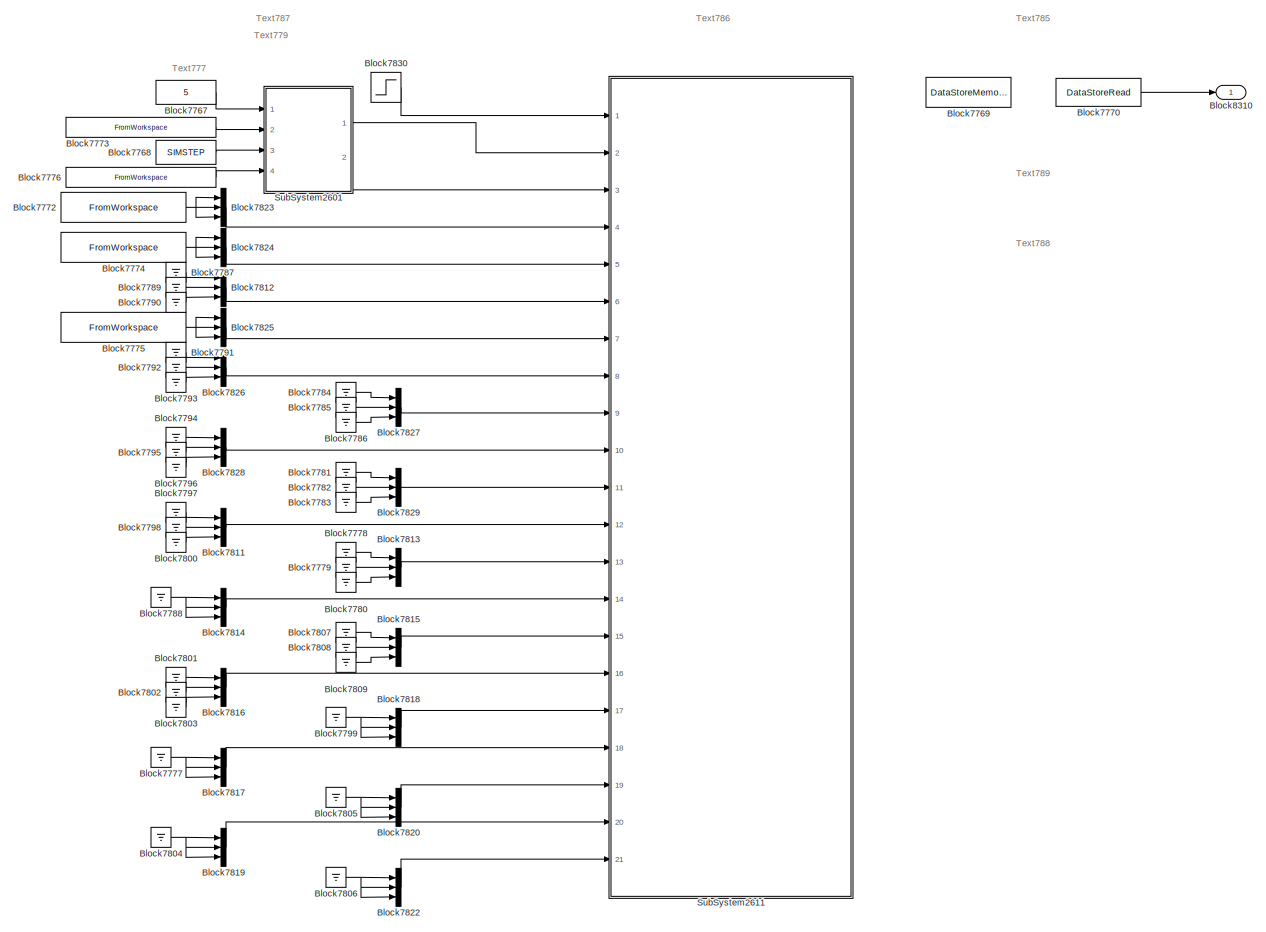
[diagram: root canvas - part 1/1, most of the canvas]
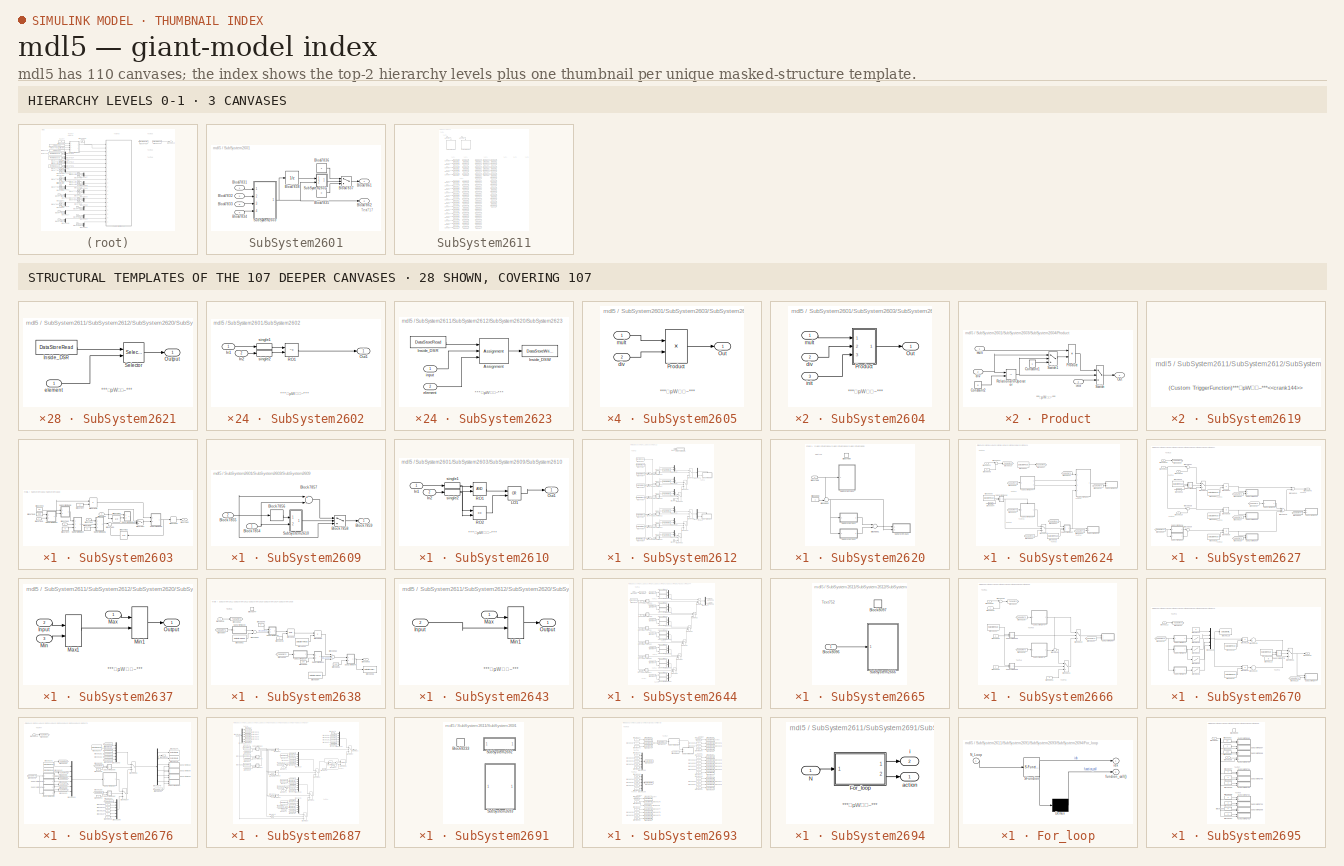
[diagram: thumbnail index - top-2 hierarchy levels (3 canvases) + 28 structural-template representatives of the remaining 107 canvases]
MODEL mdl5
KIND model
BLOCK [Constant] Block7767
  OutDataTypeStr = double
  SID = 22
  SampleTime = -1
  UserData = DataTag1
  UserDataPersistent = on
  Value = 5
BLOCK [Constant] Block7768
  OutDataTypeStr = double
  SID = 23
  SampleTime = -1
  UserData = DataTag2
  UserDataPersistent = on
  Value = SIMSTEP
BLOCK [DataStoreMemory] Block7769
  DataStoreName = DSM304
  InitialValue = [0 0 0]
  OutDataTypeStr = double
  SID = 24
BLOCK [DataStoreRead] Block7770
  DataStoreName = DSM304
  Ports = [0, 1]
  SID = 25
BLOCK [FromWorkspace] Block7772
  Interpolate = off
  OutputAfterFinalValue = Holding final value
  SID = 27
  SampleTime = SIMSTEP
  UserData = DataTag3
  UserDataPersistent = on
  VariableName = [ TIME , SimData14 ]
BLOCK [FromWorkspace] Block7773
  Interpolate = off
  OutputAfterFinalValue = Holding final value
  SID = 28
  SampleTime = SIMSTEP
  UserData = DataTag4
  UserDataPersistent = on
  VariableName = [ TIME , SimData15 ]
BLOCK [FromWorkspace] Block7774
  Interpolate = off
  OutputAfterFinalValue = Holding final value
  SID = 29
  SampleTime = SIMSTEP
  UserData = DataTag5
  UserDataPersistent = on
  VariableName = [ TIME , SimData16 ]
BLOCK [FromWorkspace] Block7775
  Interpolate = off
  OutputAfterFinalValue = Holding final value
  SID = 30
  SampleTime = SIMSTEP
  UserData = DataTag6
  UserDataPersistent = on
  VariableName = [ TIME , SimData17 ]
BLOCK [FromWorkspace] Block7776
  Interpolate = off
  OutputAfterFinalValue = Holding final value
  SID = 31
  SampleTime = SIMSTEP
  UserData = DataTag7
  UserDataPersistent = on
  VariableName = [ TIME , SimData18 ]
BLOCK [Ground] Block7777
  SID = 32
BLOCK [Ground] Block7778
  SID = 33
BLOCK [Ground] Block7779
  SID = 34
BLOCK [Ground] Block7780
  SID = 35
BLOCK [Ground] Block7781
  SID = 36
BLOCK [Ground] Block7782
  SID = 37
BLOCK [Ground] Block7783
  SID = 38
BLOCK [Ground] Block7784
  SID = 39
BLOCK [Ground] Block7785
  SID = 40
BLOCK [Ground] Block7786
  SID = 41
BLOCK [Ground] Block7787
  SID = 42
BLOCK [Ground] Block7788
  SID = 43
BLOCK [Ground] Block7789
  SID = 44
BLOCK [Ground] Block7790
  SID = 45
BLOCK [Ground] Block7791
  SID = 46
BLOCK [Ground] Block7792
  SID = 47
BLOCK [Ground] Block7793
  SID = 48
BLOCK [Ground] Block7794
  SID = 49
BLOCK [Ground] Block7795
  SID = 50
BLOCK [Ground] Block7796
  SID = 51
BLOCK [Ground] Block7797
  SID = 52
BLOCK [Ground] Block7798
  SID = 53
BLOCK [Ground] Block7799
  SID = 54
BLOCK [Ground] Block7800
  SID = 55
BLOCK [Ground] Block7801
  SID = 56
BLOCK [Ground] Block7802
  SID = 57
BLOCK [Ground] Block7803
  SID = 58
BLOCK [Ground] Block7804
  SID = 59
BLOCK [Ground] Block7805
  SID = 60
BLOCK [Ground] Block7806
  SID = 61
BLOCK [Ground] Block7807
  SID = 62
BLOCK [Ground] Block7808
  SID = 63
BLOCK [Ground] Block7809
  SID = 64
BLOCK [Mux] Block7811
  DisplayOption = bar
  Inputs = 3
  Ports = [3, 1]
  SID = 66
BLOCK [Mux] Block7812
  DisplayOption = bar
  Inputs = 3
  Ports = [3, 1]
  SID = 67
BLOCK [Mux] Block7813
  DisplayOption = bar
  Inputs = 3
  Ports = [3, 1]
  SID = 68
BLOCK [Mux] Block7814
  DisplayOption = bar
  Inputs = 3
  Ports = [3, 1]
  SID = 69
BLOCK [Mux] Block7815
  DisplayOption = bar
  Inputs = 3
  Ports = [3, 1]
  SID = 70
BLOCK [Mux] Block7816
  DisplayOption = bar
  Inputs = 3
  Ports = [3, 1]
  SID = 71
BLOCK [Mux] Block7817
  DisplayOption = bar
  Inputs = 3
  Ports = [3, 1]
  SID = 72
BLOCK [Mux] Block7818
  DisplayOption = bar
  Inputs = 3
  Ports = [3, 1]
  SID = 73
BLOCK [Mux] Block7819
  DisplayOption = bar
  Inputs = 3
  Ports = [3, 1]
  SID = 74
BLOCK [Mux] Block7820
  DisplayOption = bar
  Inputs = 3
  Ports = [3, 1]
  SID = 75
BLOCK [Mux] Block7822
  DisplayOption = bar
  Inputs = 3
  Ports = [3, 1]
  SID = 77
BLOCK [Mux] Block7823
  DisplayOption = bar
  Inputs = 3
  Ports = [3, 1]
  SID = 78
BLOCK [Mux] Block7824
  DisplayOption = bar
  Inputs = 3
  Ports = [3, 1]
  SID = 79
BLOCK [Mux] Block7825
  DisplayOption = bar
  Inputs = 3
  Ports = [3, 1]
  SID = 80
BLOCK [Mux] Block7826
  DisplayOption = bar
  Inputs = 3
  Ports = [3, 1]
  SID = 81
BLOCK [Mux] Block7827
  DisplayOption = bar
  Inputs = 3
  Ports = [3, 1]
  SID = 82
BLOCK [Mux] Block7828
  DisplayOption = bar
  Inputs = 3
  Ports = [3, 1]
  SID = 83
BLOCK [Mux] Block7829
  DisplayOption = bar
  Inputs = 3
  Ports = [3, 1]
  SID = 84
BLOCK [Step] Block7830
  SID = 85
  SampleTime = SIMSTEP
  Time = SIMSTEP
BLOCK [Outport] Block8310
  IconDisplay = Port number
  SID = 1122
  SamplingMode = Sample based
  SignalType = real
BLOCK [SubSystem] SubSystem2601
  Ports = [4, 2]
  RequestExecContextInheritance = off
  SID = 86
BLOCK [Inport] SubSystem2601/Block7831
  IconDisplay = Port number
  SID = 87
BLOCK [Inport] SubSystem2601/Block7832
  IconDisplay = Port number
  Port = 2
  SID = 88
BLOCK [Inport] SubSystem2601/Block7833
  IconDisplay = Port number
  Port = 3
  SID = 89
BLOCK [Inport] SubSystem2601/Block7834
  IconDisplay = Port number
  Port = 4
  SID = 90
BLOCK [Constant] SubSystem2601/Block7835
  OutDataTypeStr = double
  SID = 91
  SampleTime = -1
  UserData = DataTag8
  UserDataPersistent = on
  Value = 0
BLOCK [Constant] SubSystem2601/Block7836
  OutDataTypeStr = double
  SID = 92
  SampleTime = -1
  UserData = DataTag9
  UserDataPersistent = on
BLOCK [Switch] SubSystem2601/Block7837
  RndMeth = Zero
  SID = 93
  Threshold = 0.5
BLOCK [UnitDelay] SubSystem2601/Block7838
  SID = 94
  SampleTime = -1
  UserData = DataTag10
  UserDataPersistent = on
BLOCK [Outport] SubSystem2601/Block7861
  IconDisplay = Port number
  SID = 184
BLOCK [Outport] SubSystem2601/Block7862
  IconDisplay = Port number
  Port = 2
  SID = 185
BLOCK [SubSystem] SubSystem2601/SubSystem2602
  Ports = [2, 1]
  RequestExecContextInheritance = off
  SID = 95
BLOCK [Inport] SubSystem2601/SubSystem2602/In1
  IconDisplay = Port number
  SID = 96
  SamplingMode = Sample based
  SignalType = real
BLOCK [Inport] SubSystem2601/SubSystem2602/In2
  IconDisplay = Port number
  Port = 2
  SID = 97
  SamplingMode = Sample based
  SignalType = real
BLOCK [Outport] SubSystem2601/SubSystem2602/Out1
  IconDisplay = Port number
  SID = 101
  SamplingMode = Sample based
  SignalType = real
BLOCK [RelationalOperator] SubSystem2601/SubSystem2602/RO1
  Operator = ~=
  Ports = [2, 1]
  SID = 98
BLOCK [DataTypeConversion] SubSystem2601/SubSystem2602/single1
  OutDataTypeStr = single
  SID = 99
BLOCK [DataTypeConversion] SubSystem2601/SubSystem2602/single2
  OutDataTypeStr = single
  SID = 100
BLOCK [SubSystem] SubSystem2601/SubSystem2603
  Ports = [4, 1]
  RequestExecContextInheritance = off
  SID = 102
BLOCK [Inport] SubSystem2601/SubSystem2603/Block7839
  IconDisplay = Port number
  SID = 103
BLOCK [Inport] SubSystem2601/SubSystem2603/Block7840
  IconDisplay = Port number
  Port = 2
  SID = 104
  SamplingMode = Sample based
  SignalType = real
BLOCK [Inport] SubSystem2601/SubSystem2603/Block7841
  IconDisplay = Port number
  Port = 3
  SID = 105
  SamplingMode = Sample based
  SignalType = real
BLOCK [Inport] SubSystem2601/SubSystem2603/Block7842
  IconDisplay = Port number
  Port = 4
  SID = 106
  SamplingMode = Sample based
  SignalType = real
BLOCK [Constant] SubSystem2601/SubSystem2603/Block7843
  OutDataTypeStr = double
  SID = 107
  SampleTime = -1
  UserData = DataTag11
  UserDataPersistent = on
  Value = 60
BLOCK [Constant] SubSystem2601/SubSystem2603/Block7844
  OutDataTypeStr = double
  SID = 108
  SampleTime = -1
  UserData = DataTag12
  UserDataPersistent = on
  Value = 0
BLOCK [Constant] SubSystem2601/SubSystem2603/Block7845
  OutDataTypeStr = double
  SID = 109
  SampleTime = -1
  UserData = DataTag13
  UserDataPersistent = on
  Value = 360
BLOCK [Constant] SubSystem2601/SubSystem2603/Block7846
  OutDataTypeStr = double
  SID = 110
  SampleTime = -1
  UserData = DataTag14
  UserDataPersistent = on
  Value = 0
BLOCK [Constant] SubSystem2601/SubSystem2603/Block7847
  OutDataTypeStr = double
  SID = 111
  SampleTime = -1
  UserData = DataTag15
  UserDataPersistent = on
  Value = 2
BLOCK [Product] SubSystem2601/SubSystem2603/Block7848
  Inputs = **
  Ports = [2, 1]
  SID = 112
BLOCK [Rounding] SubSystem2601/SubSystem2603/Block7849
  Operator = round
  SID = 113
BLOCK [Sum] SubSystem2601/SubSystem2603/Block7850
  IconShape = round
  Inputs = |++
  OutDataTypeStr = double
  Ports = [2, 1]
  RndMeth = Zero
  SID = 114
BLOCK [Switch] SubSystem2601/SubSystem2603/Block7851
  RndMeth = Zero
  SID = 115
  Threshold = 0.5
BLOCK [UnitDelay] SubSystem2601/SubSystem2603/Block7852
  SID = 116
  SampleTime = -1
  UserData = DataTag16
  UserDataPersistent = on
BLOCK [UnitDelay] SubSystem2601/SubSystem2603/Block7853
  SID = 117
  SampleTime = -1
  UserData = DataTag17
  UserDataPersistent = on
BLOCK [Outport] SubSystem2601/SubSystem2603/Block7860
  IconDisplay = Port number
  SID = 183
  SamplingMode = Sample based
  SignalType = real
BLOCK [SubSystem] SubSystem2601/SubSystem2603/SubSystem2604
  OpenFcn = warndlg('ÏXÖ~!');
  Ports = [3, 1]
  RequestExecContextInheritance = off
  SID = 118
  TreatAsAtomicUnit = on
  UserData = DataTag18
  UserDataPersistent = on
BLOCK [Outport] SubSystem2601/SubSystem2603/SubSystem2604/Out
  IconDisplay = Port number
  SID = 133
BLOCK [SubSystem] SubSystem2601/SubSystem2603/SubSystem2604/Product
  Ports = [3, 1]
  RTWSystemCode = Inline
  RequestExecContextInheritance = off
  SID = 122
  TreatAsAtomicUnit = on
BLOCK [Constant] SubSystem2601/SubSystem2603/SubSystem2604/Product/Constant1
  OutDataTypeStr = Inherit: Inherit via back propagation
  SID = 126
BLOCK [Constant] SubSystem2601/SubSystem2603/SubSystem2604/Product/Constant2
  OutDataTypeStr = Inherit: Inherit via back propagation
  SID = 127
  Value = 0
BLOCK [Outport] SubSystem2601/SubSystem2603/SubSystem2604/Product/Out
  IconDisplay = Port number
  SID = 132
BLOCK [Product] SubSystem2601/SubSystem2603/SubSystem2604/Product/Product
  Inputs = */
  Ports = [2, 1]
  SID = 128
BLOCK [RelationalOperator] SubSystem2601/SubSystem2603/SubSystem2604/Product/Relational\nOperator
  Operator = ~=
  Ports = [2, 1]
  SID = 129
BLOCK [Switch] SubSystem2601/SubSystem2603/SubSystem2604/Product/Switch
  SID = 130
  Threshold = 0.5
BLOCK [Switch] SubSystem2601/SubSystem2603/SubSystem2604/Product/Switch1
  SID = 131
  Threshold = 0.5
BLOCK [Inport] SubSystem2601/SubSystem2603/SubSystem2604/Product/div
  IconDisplay = Port number
  Port = 2
  SID = 124
BLOCK [Inport] SubSystem2601/SubSystem2603/SubSystem2604/Product/init
  IconDisplay = Port number
  Port = 3
  SID = 125
BLOCK [Inport] SubSystem2601/SubSystem2603/SubSystem2604/Product/mult
  IconDisplay = Port number
  SID = 123
BLOCK [Inport] SubSystem2601/SubSystem2603/SubSystem2604/div
  IconDisplay = Port number
  Port = 2
  SID = 120
BLOCK [Inport] SubSystem2601/SubSystem2603/SubSystem2604/init
  IconDisplay = Port number
  Port = 3
  SID = 121
BLOCK [Inport] SubSystem2601/SubSystem2603/SubSystem2604/mult
  IconDisplay = Port number
  SID = 119
BLOCK [SubSystem] SubSystem2601/SubSystem2603/SubSystem2605
  OpenFcn = warndlg('ÏXÖ~!');
  Ports = [2, 1]
  RequestExecContextInheritance = off
  SID = 134
  TreatAsAtomicUnit = on
  UserData = DataTag19
  UserDataPersistent = on
BLOCK [Outport] SubSystem2601/SubSystem2603/SubSystem2605/Out
  IconDisplay = Port number
  SID = 138
BLOCK [Product] SubSystem2601/SubSystem2603/SubSystem2605/Product
  Inputs = */
  Ports = [2, 1]
  SID = 137
BLOCK [Inport] SubSystem2601/SubSystem2603/SubSystem2605/div
  IconDisplay = Port number
  Port = 2
  SID = 136
BLOCK [Inport] SubSystem2601/SubSystem2603/SubSystem2605/mult
  IconDisplay = Port number
  SID = 135
BLOCK [SubSystem] SubSystem2601/SubSystem2603/SubSystem2606
  OpenFcn = warndlg('ÏXÖ~!');
  Ports = [3, 1]
  RequestExecContextInheritance = off
  SID = 139
  TreatAsAtomicUnit = on
  UserData = DataTag20
  UserDataPersistent = on
BLOCK [Outport] SubSystem2601/SubSystem2603/SubSystem2606/Out
  IconDisplay = Port number
  SID = 154
BLOCK [SubSystem] SubSystem2601/SubSystem2603/SubSystem2606/Product
  Ports = [3, 1]
  RTWSystemCode = Inline
  RequestExecContextInheritance = off
  SID = 143
  TreatAsAtomicUnit = on
BLOCK [Constant] SubSystem2601/SubSystem2603/SubSystem2606/Product/Constant1
  OutDataTypeStr = Inherit: Inherit via back propagation
  SID = 147
BLOCK [Constant] SubSystem2601/SubSystem2603/SubSystem2606/Product/Constant2
  OutDataTypeStr = Inherit: Inherit via back propagation
  SID = 148
  Value = 0
BLOCK [Outport] SubSystem2601/SubSystem2603/SubSystem2606/Product/Out
  IconDisplay = Port number
  SID = 153
BLOCK [Product] SubSystem2601/SubSystem2603/SubSystem2606/Product/Product
  Inputs = */
  Ports = [2, 1]
  SID = 149
BLOCK [RelationalOperator] SubSystem2601/SubSystem2603/SubSystem2606/Product/Relational\nOperator
  Operator = ~=
  Ports = [2, 1]
  SID = 150
BLOCK [Switch] SubSystem2601/SubSystem2603/SubSystem2606/Product/Switch
  SID = 151
  Threshold = 0.5
BLOCK [Switch] SubSystem2601/SubSystem2603/SubSystem2606/Product/Switch1
  SID = 152
  Threshold = 0.5
BLOCK [Inport] SubSystem2601/SubSystem2603/SubSystem2606/Product/div
  IconDisplay = Port number
  Port = 2
  SID = 145
BLOCK [Inport] SubSystem2601/SubSystem2603/SubSystem2606/Product/init
  IconDisplay = Port number
  Port = 3
  SID = 146
BLOCK [Inport] SubSystem2601/SubSystem2603/SubSystem2606/Product/mult
  IconDisplay = Port number
  SID = 144
BLOCK [Inport] SubSystem2601/SubSystem2603/SubSystem2606/div
  IconDisplay = Port number
  Port = 2
  SID = 141
BLOCK [Inport] SubSystem2601/SubSystem2603/SubSystem2606/init
  IconDisplay = Port number
  Port = 3
  SID = 142
BLOCK [Inport] SubSystem2601/SubSystem2603/SubSystem2606/mult
  IconDisplay = Port number
  SID = 140
BLOCK [SubSystem] SubSystem2601/SubSystem2603/SubSystem2607
  OpenFcn = warndlg('ÏXÖ~!');
  Ports = [2, 1]
  RequestExecContextInheritance = off
  SID = 155
  TreatAsAtomicUnit = on
  UserData = DataTag21
  UserDataPersistent = on
BLOCK [Outport] SubSystem2601/SubSystem2603/SubSystem2607/Out
  IconDisplay = Port number
  SID = 159
BLOCK [Product] SubSystem2601/SubSystem2603/SubSystem2607/Product
  Inputs = */
  Ports = [2, 1]
  SID = 158
BLOCK [Inport] SubSystem2601/SubSystem2603/SubSystem2607/div
  IconDisplay = Port number
  Port = 2
  SID = 157
BLOCK [Inport] SubSystem2601/SubSystem2603/SubSystem2607/mult
  IconDisplay = Port number
  SID = 156
BLOCK [SubSystem] SubSystem2601/SubSystem2603/SubSystem2608
  Ports = [2, 1]
  RequestExecContextInheritance = off
  SID = 160
BLOCK [Inport] SubSystem2601/SubSystem2603/SubSystem2608/In1
  IconDisplay = Port number
  SID = 161
  SamplingMode = Sample based
  SignalType = real
BLOCK [Inport] SubSystem2601/SubSystem2603/SubSystem2608/In2
  IconDisplay = Port number
  Port = 2
  SID = 162
  SamplingMode = Sample based
  SignalType = real
BLOCK [Outport] SubSystem2601/SubSystem2603/SubSystem2608/Out1
  IconDisplay = Port number
  SID = 166
  SamplingMode = Sample based
  SignalType = real
BLOCK [RelationalOperator] SubSystem2601/SubSystem2603/SubSystem2608/RO1
  Operator = ~=
  Ports = [2, 1]
  SID = 163
BLOCK [DataTypeConversion] SubSystem2601/SubSystem2603/SubSystem2608/single1
  OutDataTypeStr = single
  SID = 164
BLOCK [DataTypeConversion] SubSystem2601/SubSystem2603/SubSystem2608/single2
  OutDataTypeStr = single
  SID = 165
BLOCK [SubSystem] SubSystem2601/SubSystem2603/SubSystem2609
  Ports = [2, 1]
  RTWSystemCode = Inline
  RequestExecContextInheritance = off
  SID = 167
BLOCK [Inport] SubSystem2601/SubSystem2603/SubSystem2609/Block7854
  IconDisplay = Port number
  SID = 168
  SamplingMode = Sample based
  SignalType = real
BLOCK [Inport] SubSystem2601/SubSystem2603/SubSystem2609/Block7855
  IconDisplay = Port number
  Port = 2
  SID = 169
  SamplingMode = Sample based
  SignalType = real
BLOCK [Rounding] SubSystem2601/SubSystem2603/SubSystem2609/Block7856
  Operator = round
  SID = 170
BLOCK [Sum] SubSystem2601/SubSystem2603/SubSystem2609/Block7857
  Inputs = +-
  OutDataTypeStr = double
  Ports = [2, 1]
  RndMeth = Zero
  SID = 171
BLOCK [Switch] SubSystem2601/SubSystem2603/SubSystem2609/Block7858
  RndMeth = Zero
  SID = 172
  Threshold = 0.5
BLOCK [Outport] SubSystem2601/SubSystem2603/SubSystem2609/Block7859
  IconDisplay = Port number
  SID = 182
  SamplingMode = Sample based
  SignalType = real
BLOCK [SubSystem] SubSystem2601/SubSystem2603/SubSystem2609/SubSystem2610
  Ports = [2, 1]
  RequestExecContextInheritance = off
  SID = 173
BLOCK [Inport] SubSystem2601/SubSystem2603/SubSystem2609/SubSystem2610/In1
  IconDisplay = Port number
  SID = 174
  SamplingMode = Sample based
  SignalType = real
BLOCK [Inport] SubSystem2601/SubSystem2603/SubSystem2609/SubSystem2610/In2
  IconDisplay = Port number
  Port = 2
  SID = 175
  SamplingMode = Sample based
  SignalType = real
BLOCK [Logic] SubSystem2601/SubSystem2603/SubSystem2609/SubSystem2610/LO1
  Operator = OR
  Ports = [2, 1]
  SID = 176
BLOCK [Outport] SubSystem2601/SubSystem2603/SubSystem2609/SubSystem2610/Out1
  IconDisplay = Port number
  SID = 181
  SamplingMode = Sample based
  SignalType = real
BLOCK [RelationalOperator] SubSystem2601/SubSystem2603/SubSystem2609/SubSystem2610/RO1
  Ports = [2, 1]
  SID = 177
BLOCK [RelationalOperator] SubSystem2601/SubSystem2603/SubSystem2609/SubSystem2610/RO2
  Operator = ==
  Ports = [2, 1]
  SID = 178
BLOCK [DataTypeConversion] SubSystem2601/SubSystem2603/SubSystem2609/SubSystem2610/single1
  OutDataTypeStr = single
  SID = 179
BLOCK [DataTypeConversion] SubSystem2601/SubSystem2603/SubSystem2609/SubSystem2610/single2
  OutDataTypeStr = single
  SID = 180
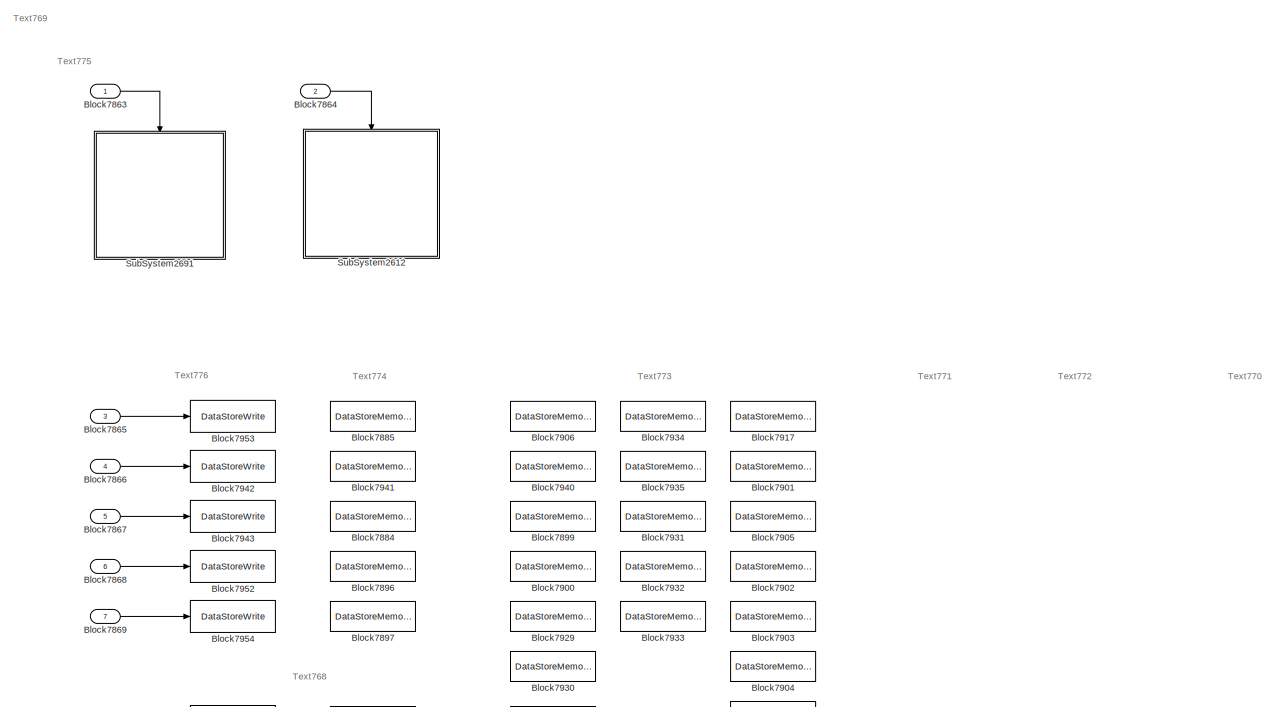
[diagram: SubSystem2611 - part 1/2, full width, top band]
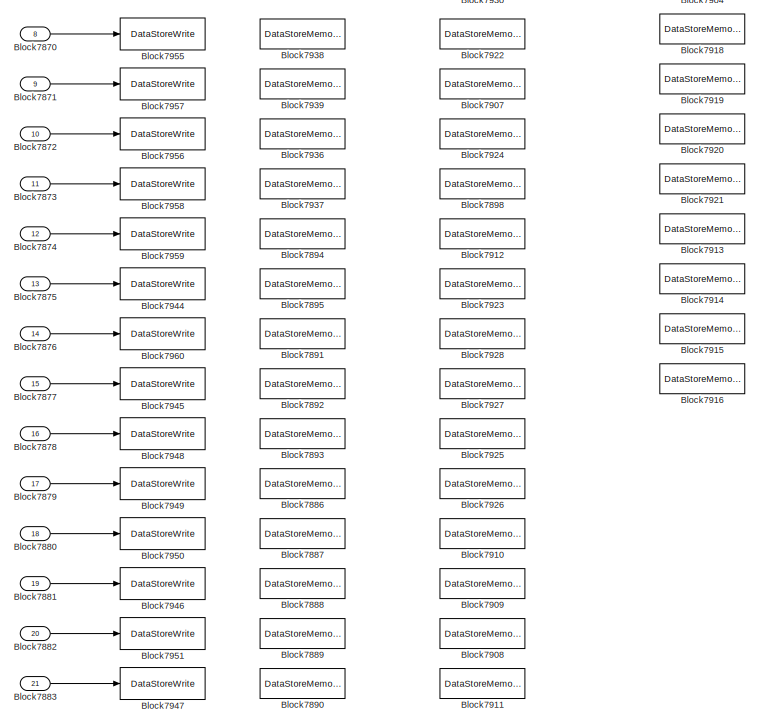
[diagram: SubSystem2611 - part 2/2, bottom center region]
BLOCK [SubSystem] SubSystem2611
  Ports = [21]
  RequestExecContextInheritance = off
  SID = 186
BLOCK [Inport] SubSystem2611/Block7863
  IconDisplay = Port number
  SID = 187
  SamplingMode = Sample based
  SignalType = real
BLOCK [Inport] SubSystem2611/Block7864
  IconDisplay = Port number
  Port = 2
  SID = 188
  SamplingMode = Sample based
  SignalType = real
BLOCK [Inport] SubSystem2611/Block7865
  IconDisplay = Port number
  Port = 3
  SID = 189
  SamplingMode = Sample based
  SignalType = real
BLOCK [Inport] SubSystem2611/Block7866
  IconDisplay = Port number
  Port = 4
  SID = 190
  SamplingMode = Sample based
  SignalType = real
BLOCK [Inport] SubSystem2611/Block7867
  IconDisplay = Port number
  Port = 5
  SID = 191
  SamplingMode = Sample based
  SignalType = real
BLOCK [Inport] SubSystem2611/Block7868
  IconDisplay = Port number
  Port = 6
  SID = 192
  SamplingMode = Sample based
  SignalType = real
BLOCK [Inport] SubSystem2611/Block7869
  IconDisplay = Port number
  Port = 7
  SID = 193
  SamplingMode = Sample based
  SignalType = real
BLOCK [Inport] SubSystem2611/Block7870
  IconDisplay = Port number
  Port = 8
  SID = 194
  SamplingMode = Sample based
  SignalType = real
BLOCK [Inport] SubSystem2611/Block7871
  IconDisplay = Port number
  Port = 9
  SID = 195
  SamplingMode = Sample based
  SignalType = real
BLOCK [Inport] SubSystem2611/Block7872
  IconDisplay = Port number
  Port = 10
  SID = 196
  SamplingMode = Sample based
  SignalType = real
BLOCK [Inport] SubSystem2611/Block7873
  IconDisplay = Port number
  Port = 11
  SID = 197
  SamplingMode = Sample based
  SignalType = real
BLOCK [Inport] SubSystem2611/Block7874
  IconDisplay = Port number
  Port = 12
  SID = 198
  SamplingMode = Sample based
  SignalType = real
BLOCK [Inport] SubSystem2611/Block7875
  IconDisplay = Port number
  Port = 13
  SID = 199
  SamplingMode = Sample based
  SignalType = real
BLOCK [Inport] SubSystem2611/Block7876
  IconDisplay = Port number
  Port = 14
  SID = 200
  SamplingMode = Sample based
  SignalType = real
BLOCK [Inport] SubSystem2611/Block7877
  IconDisplay = Port number
  Port = 15
  SID = 201
  SamplingMode = Sample based
  SignalType = real
BLOCK [Inport] SubSystem2611/Block7878
  IconDisplay = Port number
  Port = 16
  SID = 202
  SamplingMode = Sample based
  SignalType = real
BLOCK [Inport] SubSystem2611/Block7879
  IconDisplay = Port number
  Port = 17
  SID = 203
  SamplingMode = Sample based
  SignalType = real
BLOCK [Inport] SubSystem2611/Block7880
  IconDisplay = Port number
  Port = 18
  SID = 204
  SamplingMode = Sample based
  SignalType = real
BLOCK [Inport] SubSystem2611/Block7881
  IconDisplay = Port number
  Port = 19
  SID = 205
  SamplingMode = Sample based
  SignalType = real
BLOCK [Inport] SubSystem2611/Block7882
  IconDisplay = Port number
  Port = 20
  SID = 206
  SamplingMode = Sample based
  SignalType = real
BLOCK [Inport] SubSystem2611/Block7883
  IconDisplay = Port number
  Port = 21
  SID = 207
  SamplingMode = Sample based
  SignalType = real
BLOCK [DataStoreMemory] SubSystem2611/Block7884
  DataStoreName = DSM36
  InitialValue = [0 0 0]
  OutDataTypeStr = double
  SID = 208
BLOCK [DataStoreMemory] SubSystem2611/Block7885
  DataStoreName = DSM43
  OutDataTypeStr = double
  SID = 209
BLOCK [DataStoreMemory] SubSystem2611/Block7886
  DataStoreName = DSM102
  InitialValue = [0 0 0]
  OutDataTypeStr = double
  SID = 210
BLOCK [DataStoreMemory] SubSystem2611/Block7887
  DataStoreName = DSM104
  InitialValue = [0 0 0]
  OutDataTypeStr = double
  SID = 211
BLOCK [DataStoreMemory] SubSystem2611/Block7888
  DataStoreName = DSM106
  InitialValue = [0 0 0]
  OutDataTypeStr = double
  SID = 212
BLOCK [DataStoreMemory] SubSystem2611/Block7889
  DataStoreName = DSM108
  InitialValue = [0 0 0]
  OutDataTypeStr = double
  SID = 213
BLOCK [DataStoreMemory] SubSystem2611/Block7890
  DataStoreName = DSM110
  InitialValue = [0 0 0]
  OutDataTypeStr = double
  SID = 214
BLOCK [DataStoreMemory] SubSystem2611/Block7891
  DataStoreName = DSM112
  InitialValue = [0 0 0]
  OutDataTypeStr = double
  SID = 215
BLOCK [DataStoreMemory] SubSystem2611/Block7892
  DataStoreName = DSM115
  InitialValue = [0 0 0]
  OutDataTypeStr = double
  SID = 216
BLOCK [DataStoreMemory] SubSystem2611/Block7893
  DataStoreName = DSM116
  InitialValue = [0 0 0]
  OutDataTypeStr = double
  SID = 217
BLOCK [DataStoreMemory] SubSystem2611/Block7894
  DataStoreName = DSM119
  InitialValue = [0 0 0]
  OutDataTypeStr = double
  SID = 218
BLOCK [DataStoreMemory] SubSystem2611/Block7895
  DataStoreName = DSM120
  InitialValue = [0 0 0]
  OutDataTypeStr = double
  SID = 219
BLOCK [DataStoreMemory] SubSystem2611/Block7896
  DataStoreName = DSM147
  InitialValue = [0 0 0]
  OutDataTypeStr = double
  SID = 220
BLOCK [DataStoreMemory] SubSystem2611/Block7897
  DataStoreName = DSM318
  InitialValue = [0 0 0]
  OutDataTypeStr = double
  SID = 221
BLOCK [DataStoreMemory] SubSystem2611/Block7898
  DataStoreName = DSM319
  InitialValue = [0 0 0]
  OutDataTypeStr = double
  SID = 222
BLOCK [DataStoreMemory] SubSystem2611/Block7899
  DataStoreName = DSM320
  InitialValue = [0 0 0]
  OutDataTypeStr = double
  SID = 223
BLOCK [DataStoreMemory] SubSystem2611/Block7900
  DataStoreName = DSM321
  InitialValue = [0 0 0]
  OutDataTypeStr = double
  SID = 224
BLOCK [DataStoreMemory] SubSystem2611/Block7901
  DataStoreName = DSM322
  OutDataTypeStr = double
  SID = 225
BLOCK [DataStoreMemory] SubSystem2611/Block7902
  DataStoreName = DSM323
  OutDataTypeStr = double
  SID = 226
BLOCK [DataStoreMemory] SubSystem2611/Block7903
  DataStoreName = DSM324
  OutDataTypeStr = double
  SID = 227
BLOCK [DataStoreMemory] SubSystem2611/Block7904
  DataStoreName = DSM325
  OutDataTypeStr = double
  SID = 228
BLOCK [DataStoreMemory] SubSystem2611/Block7905
  DataStoreName = DSM326
  OutDataTypeStr = double
  SID = 229
BLOCK [DataStoreMemory] SubSystem2611/Block7906
  DataStoreName = DSM327
  OutDataTypeStr = double
  SID = 230
BLOCK [DataStoreMemory] SubSystem2611/Block7907
  DataStoreName = DSM328
  OutDataTypeStr = double
  SID = 231
BLOCK [DataStoreMemory] SubSystem2611/Block7908
  DataStoreName = DSM329
  OutDataTypeStr = double
  SID = 232
BLOCK [DataStoreMemory] SubSystem2611/Block7909
  DataStoreName = DSM330
  OutDataTypeStr = double
  SID = 233
BLOCK [DataStoreMemory] SubSystem2611/Block7910
  DataStoreName = DSM331
  OutDataTypeStr = double
  SID = 234
BLOCK [DataStoreMemory] SubSystem2611/Block7911
  DataStoreName = DSM332
  OutDataTypeStr = double
  SID = 235
BLOCK [DataStoreMemory] SubSystem2611/Block7912
  DataStoreName = DSM333
  InitialValue = [0 0 0]
  OutDataTypeStr = double
  SID = 236
BLOCK [DataStoreMemory] SubSystem2611/Block7913
  DataStoreName = DSM334
  InitialValue = [0 0 0]
  OutDataTypeStr = double
  SID = 237
BLOCK [DataStoreMemory] SubSystem2611/Block7914
  DataStoreName = DSM335
  InitialValue = [0 0 0]
  OutDataTypeStr = double
  SID = 238
BLOCK [DataStoreMemory] SubSystem2611/Block7915
  DataStoreName = DSM336
  InitialValue = [0 0 0]
  OutDataTypeStr = double
  SID = 239
BLOCK [DataStoreMemory] SubSystem2611/Block7916
  DataStoreName = DSM337
  InitialValue = [0 0 0]
  OutDataTypeStr = double
  SID = 240
BLOCK [DataStoreMemory] SubSystem2611/Block7917
  DataStoreName = DSM338
  OutDataTypeStr = double
  SID = 241
BLOCK [DataStoreMemory] SubSystem2611/Block7918
  DataStoreName = DSM339
  OutDataTypeStr = double
  SID = 242
BLOCK [DataStoreMemory] SubSystem2611/Block7919
  DataStoreName = DSM340
  OutDataTypeStr = double
  SID = 243
BLOCK [DataStoreMemory] SubSystem2611/Block7920
  DataStoreName = DSM341
  OutDataTypeStr = double
  SID = 244
BLOCK [DataStoreMemory] SubSystem2611/Block7921
  DataStoreName = DSM342
  OutDataTypeStr = double
  SID = 245
BLOCK [DataStoreMemory] SubSystem2611/Block7922
  DataStoreName = DSM343
  InitialValue = [ 0 0 0 0 0]
  OutDataTypeStr = double
  SID = 246
BLOCK [DataStoreMemory] SubSystem2611/Block7923
  DataStoreName = DSM344
  OutDataTypeStr = double
  SID = 247
BLOCK [DataStoreMemory] SubSystem2611/Block7924
  DataStoreName = DSM345
  OutDataTypeStr = double
  SID = 248
BLOCK [DataStoreMemory] SubSystem2611/Block7925
  DataStoreName = DSM346
  InitialValue = [0 0 0]
  OutDataTypeStr = double
  SID = 249
BLOCK [DataStoreMemory] SubSystem2611/Block7926
  DataStoreName = DSM347
  InitialValue = [0 0 0]
  OutDataTypeStr = double
  SID = 250
BLOCK [DataStoreMemory] SubSystem2611/Block7927
  DataStoreName = DSM348
  InitialValue = [0 0 0]
  OutDataTypeStr = double
  SID = 251
BLOCK [DataStoreMemory] SubSystem2611/Block7928
  DataStoreName = DSM349
  InitialValue = [0 0 0]
  OutDataTypeStr = double
  SID = 252
BLOCK [DataStoreMemory] SubSystem2611/Block7929
  DataStoreName = DSM350
  InitialValue = [ 0 0 0 0 0]
  OutDataTypeStr = double
  SID = 253
BLOCK [DataStoreMemory] SubSystem2611/Block7930
  DataStoreName = DSM351
  InitialValue = [ 0 0 0 0 0]
  OutDataTypeStr = double
  SID = 254
BLOCK [DataStoreMemory] SubSystem2611/Block7931
  DataStoreName = DSM352
  OutDataTypeStr = double
  SID = 255
BLOCK [DataStoreMemory] SubSystem2611/Block7932
  DataStoreName = DSM353
  OutDataTypeStr = double
  SID = 256
BLOCK [DataStoreMemory] SubSystem2611/Block7933
  DataStoreName = DSM354
  OutDataTypeStr = double
  SID = 257
BLOCK [DataStoreMemory] SubSystem2611/Block7934
  DataStoreName = DSM355
  OutDataTypeStr = double
  SID = 258
BLOCK [DataStoreMemory] SubSystem2611/Block7935
  DataStoreName = DSM356
  OutDataTypeStr = double
  SID = 259
BLOCK [DataStoreMemory] SubSystem2611/Block7936
  DataStoreName = DSM122
  InitialValue = [0 0 0]
  OutDataTypeStr = double
  SID = 260
BLOCK [DataStoreMemory] SubSystem2611/Block7937
  DataStoreName = DSM123
  InitialValue = [0 0 0]
  OutDataTypeStr = double
  SID = 261
BLOCK [DataStoreMemory] SubSystem2611/Block7938
  DataStoreName = DSM125
  InitialValue = [0 0 0]
  OutDataTypeStr = double
  SID = 262
BLOCK [DataStoreMemory] SubSystem2611/Block7939
  DataStoreName = DSM126
  InitialValue = [0 0 0]
  OutDataTypeStr = double
  SID = 263
BLOCK [DataStoreMemory] SubSystem2611/Block7940
  DataStoreName = DSM361
  OutDataTypeStr = double
  SID = 264
BLOCK [DataStoreMemory] SubSystem2611/Block7941
  DataStoreName = DSM97
  InitialValue = [0 0 0]
  OutDataTypeStr = double
  SID = 265
BLOCK [DataStoreWrite] SubSystem2611/Block7942
  DataStoreName = DSM97
  Ports = [1]
  Priority = 1
  SID = 266
BLOCK [DataStoreWrite] SubSystem2611/Block7943
  DataStoreName = DSM36
  Ports = [1]
  Priority = 1
  SID = 267
BLOCK [DataStoreWrite] SubSystem2611/Block7944
  DataStoreName = DSM120
  Ports = [1]
  Priority = 1
  SID = 268
BLOCK [DataStoreWrite] SubSystem2611/Block7945
  DataStoreName = DSM115
  Ports = [1]
  Priority = 1
  SID = 269
BLOCK [DataStoreWrite] SubSystem2611/Block7946
  DataStoreName = DSM106
  Ports = [1]
  Priority = 1
  SID = 270
BLOCK [DataStoreWrite] SubSystem2611/Block7947
  DataStoreName = DSM110
  Ports = [1]
  Priority = 1
  SID = 271
BLOCK [DataStoreWrite] SubSystem2611/Block7948
  DataStoreName = DSM116
  Ports = [1]
  Priority = 1
  SID = 272
BLOCK [DataStoreWrite] SubSystem2611/Block7949
  DataStoreName = DSM102
  Ports = [1]
  Priority = 1
  SID = 273
BLOCK [DataStoreWrite] SubSystem2611/Block7950
  DataStoreName = DSM104
  Ports = [1]
  Priority = 1
  SID = 274
BLOCK [DataStoreWrite] SubSystem2611/Block7951
  DataStoreName = DSM108
  Ports = [1]
  Priority = 1
  SID = 275
BLOCK [DataStoreWrite] SubSystem2611/Block7952
  DataStoreName = DSM147
  Ports = [1]
  Priority = 1
  SID = 276
BLOCK [DataStoreWrite] SubSystem2611/Block7953
  DataStoreName = DSM43
  Ports = [1]
  Priority = 1
  SID = 277
BLOCK [DataStoreWrite] SubSystem2611/Block7954
  DataStoreName = DSM318
  Ports = [1]
  Priority = 1
  SID = 278
BLOCK [DataStoreWrite] SubSystem2611/Block7955
  DataStoreName = DSM125
  Ports = [1]
  Priority = 1
  SID = 279
BLOCK [DataStoreWrite] SubSystem2611/Block7956
  DataStoreName = DSM122
  Ports = [1]
  Priority = 1
  SID = 280
BLOCK [DataStoreWrite] SubSystem2611/Block7957
  DataStoreName = DSM126
  Ports = [1]
  Priority = 1
  SID = 281
BLOCK [DataStoreWrite] SubSystem2611/Block7958
  DataStoreName = DSM123
  Ports = [1]
  Priority = 1
  SID = 282
BLOCK [DataStoreWrite] SubSystem2611/Block7959
  DataStoreName = DSM119
  Ports = [1]
  Priority = 1
  SID = 283
BLOCK [DataStoreWrite] SubSystem2611/Block7960
  DataStoreName = DSM112
  Ports = [1]
  Priority = 1
  SID = 284
BLOCK [SubSystem] SubSystem2611/SubSystem2612
  AttributesFormatString = Attribute2068
  Ports = [0, 0, 0, 1]
  Priority = 3
  RTWFcnNameOpts = Use subsystem name
  RTWSystemCode = Nonreusable function
  RequestExecContextInheritance = off
  SID = 285
  TreatAsAtomicUnit = on
BLOCK [TriggerPort] SubSystem2611/SubSystem2612/Block7961
  Ports = []
  SID = 286
  StatesWhenEnabling = held
BLOCK [Constant] SubSystem2611/SubSystem2612/Block7962
  OutDataTypeStr = double
  SID = 287
  SampleTime = -1
  UserData = DataTag22
  UserDataPersistent = on
  Value = Parameter144
BLOCK [Constant] SubSystem2611/SubSystem2612/Block7963
  OutDataTypeStr = double
  SID = 288
  SampleTime = -1
  UserData = DataTag23
  UserDataPersistent = on
  Value = Parameter53
BLOCK [Constant] SubSystem2611/SubSystem2612/Block7964
  OutDataTypeStr = double
  SID = 289
  SampleTime = -1
  UserData = DataTag24
  UserDataPersistent = on
  Value = Parameter71
BLOCK [Constant] SubSystem2611/SubSystem2612/Block7965
  OutDataTypeStr = double
  SID = 290
  SampleTime = -1
  UserData = DataTag25
  UserDataPersistent = on
  Value = Parameter93
BLOCK [Constant] SubSystem2611/SubSystem2612/Block7966
  OutDataTypeStr = double
  SID = 291
  SampleTime = -1
  UserData = DataTag26
  UserDataPersistent = on
  Value = Parameter115
BLOCK [Constant] SubSystem2611/SubSystem2612/Block7967
  OutDataTypeStr = double
  SID = 292
  SampleTime = -1
  UserData = DataTag27
  UserDataPersistent = on
  Value = Parameter70
BLOCK [Constant] SubSystem2611/SubSystem2612/Block7968
  OutDataTypeStr = double
  SID = 293
  SampleTime = -1
  UserData = DataTag28
  UserDataPersistent = on
  Value = Parameter92
BLOCK [Constant] SubSystem2611/SubSystem2612/Block7969
  OutDataTypeStr = double
  SID = 294
  SampleTime = -1
  UserData = DataTag29
  UserDataPersistent = on
  Value = Parameter114
BLOCK [Constant] SubSystem2611/SubSystem2612/Block7970
  OutDataTypeStr = double
  SID = 295
  SampleTime = -1
  UserData = DataTag30
  UserDataPersistent = on
  Value = Parameter51
BLOCK [Constant] SubSystem2611/SubSystem2612/Block7971
  OutDataTypeStr = double
  SID = 296
  SampleTime = -1
  UserData = DataTag31
  UserDataPersistent = on
  Value = Parameter52
BLOCK [Constant] SubSystem2611/SubSystem2612/Block7972
  OutDataTypeStr = double
  SID = 297
  SampleTime = -1
  UserData = DataTag32
  UserDataPersistent = on
  Value = Parameter53
BLOCK [Constant] SubSystem2611/SubSystem2612/Block7973
  OutDataTypeStr = double
  SID = 298
  SampleTime = -1
  UserData = DataTag33
  UserDataPersistent = on
  Value = Parameter51
BLOCK [Constant] SubSystem2611/SubSystem2612/Block7974
  OutDataTypeStr = double
  SID = 299
  SampleTime = -1
  UserData = DataTag34
  UserDataPersistent = on
  Value = Parameter52
BLOCK [DataStoreRead] SubSystem2611/SubSystem2612/Block7975
  DataStoreName = DSM43
  Ports = [0, 1]
  SID = 300
BLOCK [Demux] SubSystem2611/SubSystem2612/Block7976
  Outputs = 2
  Ports = [1, 2]
  SID = 301
BLOCK [Demux] SubSystem2611/SubSystem2612/Block7977
  Outputs = 2
  Ports = [1, 2]
  SID = 302
BLOCK [Ground] SubSystem2611/SubSystem2612/Block7978
  SID = 303
BLOCK [Ground] SubSystem2611/SubSystem2612/Block7979
  SID = 304
BLOCK [Mux] SubSystem2611/SubSystem2612/Block7980
  DisplayOption = bar
  Inputs = 2
  Ports = [2, 1]
  SID = 305
BLOCK [Mux] SubSystem2611/SubSystem2612/Block7981
  DisplayOption = bar
  Inputs = 2
  Ports = [2, 1]
  SID = 306
BLOCK [Mux] SubSystem2611/SubSystem2612/Block7982
  DisplayOption = bar
  Inputs = 2
  Ports = [2, 1]
  SID = 307
BLOCK [Mux] SubSystem2611/SubSystem2612/Block7983
  DisplayOption = bar
  Inputs = 2
  Ports = [2, 1]
  SID = 308
BLOCK [Mux] SubSystem2611/SubSystem2612/Block7984
  DisplayOption = bar
  Inputs = 2
  Ports = [2, 1]
  SID = 309
BLOCK [Mux] SubSystem2611/SubSystem2612/Block7985
  DisplayOption = bar
  Inputs = 2
  Ports = [2, 1]
  SID = 310
BLOCK [Sum] SubSystem2611/SubSystem2612/Block7986
  OutDataTypeStr = double
  Ports = [2, 1]
  RndMeth = Zero
  SID = 311
BLOCK [Sum] SubSystem2611/SubSystem2612/Block7987
  OutDataTypeStr = double
  Ports = [2, 1]
  RndMeth = Zero
  SID = 312
BLOCK [Sum] SubSystem2611/SubSystem2612/Block7988
  OutDataTypeStr = double
  Ports = [2, 1]
  RndMeth = Zero
  SID = 313
BLOCK [Sum] SubSystem2611/SubSystem2612/Block7989
  OutDataTypeStr = double
  Ports = [2, 1]
  RndMeth = Zero
  SID = 314
BLOCK [Sum] SubSystem2611/SubSystem2612/Block7990
  OutDataTypeStr = double
  Ports = [2, 1]
  RndMeth = Zero
  SID = 315
BLOCK [Sum] SubSystem2611/SubSystem2612/Block7991
  OutDataTypeStr = double
  Ports = [2, 1]
  RndMeth = Zero
  SID = 316
BLOCK [Switch] SubSystem2611/SubSystem2612/Block7992
  RndMeth = Zero
  SID = 317
  Threshold = 0.5
BLOCK [Switch] SubSystem2611/SubSystem2612/Block7993
  RndMeth = Zero
  SID = 318
  Threshold = 0.5
BLOCK [Switch] SubSystem2611/SubSystem2612/Block7994
  RndMeth = Zero
  SID = 319
  Threshold = 0.5
BLOCK [Switch] SubSystem2611/SubSystem2612/Block7995
  RndMeth = Zero
  SID = 320
  Threshold = 0.5
BLOCK [Switch] SubSystem2611/SubSystem2612/Block7996
  RndMeth = Zero
  SID = 321
  Threshold = 0.5
BLOCK [Switch] SubSystem2611/SubSystem2612/Block7997
  RndMeth = Zero
  SID = 322
  Threshold = 0.5
BLOCK [SubSystem] SubSystem2611/SubSystem2612/SubSystem2613
  Ports = [2, 1]
  RequestExecContextInheritance = off
  SID = 323
BLOCK [Inport] SubSystem2611/SubSystem2612/SubSystem2613/In1
  IconDisplay = Port number
  SID = 324
  SamplingMode = Sample based
  SignalType = real
BLOCK [Inport] SubSystem2611/SubSystem2612/SubSystem2613/In2
  IconDisplay = Port number
  Port = 2
  SID = 325
  SamplingMode = Sample based
  SignalType = real
BLOCK [Outport] SubSystem2611/SubSystem2612/SubSystem2613/Out1
  IconDisplay = Port number
  SID = 329
  SamplingMode = Sample based
  SignalType = real
BLOCK [RelationalOperator] SubSystem2611/SubSystem2612/SubSystem2613/RO1
  Operator = ==
  Ports = [2, 1]
  SID = 326
BLOCK [DataTypeConversion] SubSystem2611/SubSystem2612/SubSystem2613/single1
  OutDataTypeStr = single
  SID = 327
BLOCK [DataTypeConversion] SubSystem2611/SubSystem2612/SubSystem2613/single2
  OutDataTypeStr = single
  SID = 328
BLOCK [SubSystem] SubSystem2611/SubSystem2612/SubSystem2614
  Ports = [2, 1]
  RequestExecContextInheritance = off
  SID = 330
BLOCK [Inport] SubSystem2611/SubSystem2612/SubSystem2614/In1
  IconDisplay = Port number
  SID = 331
  SamplingMode = Sample based
  SignalType = real
BLOCK [Inport] SubSystem2611/SubSystem2612/SubSystem2614/In2
  IconDisplay = Port number
  Port = 2
  SID = 332
  SamplingMode = Sample based
  SignalType = real
BLOCK [Outport] SubSystem2611/SubSystem2612/SubSystem2614/Out1
  IconDisplay = Port number
  SID = 336
  SamplingMode = Sample based
  SignalType = real
BLOCK [RelationalOperator] SubSystem2611/SubSystem2612/SubSystem2614/RO1
  Operator = ==
  Ports = [2, 1]
  SID = 333
BLOCK [DataTypeConversion] SubSystem2611/SubSystem2612/SubSystem2614/single1
  OutDataTypeStr = single
  SID = 334
BLOCK [DataTypeConversion] SubSystem2611/SubSystem2612/SubSystem2614/single2
  OutDataTypeStr = single
  SID = 335
BLOCK [SubSystem] SubSystem2611/SubSystem2612/SubSystem2615
  Ports = [2, 1]
  RequestExecContextInheritance = off
  SID = 337
BLOCK [Inport] SubSystem2611/SubSystem2612/SubSystem2615/In1
  IconDisplay = Port number
  SID = 338
  SamplingMode = Sample based
  SignalType = real
BLOCK [Inport] SubSystem2611/SubSystem2612/SubSystem2615/In2
  IconDisplay = Port number
  Port = 2
  SID = 339
  SamplingMode = Sample based
  SignalType = real
BLOCK [Outport] SubSystem2611/SubSystem2612/SubSystem2615/Out1
  IconDisplay = Port number
  SID = 343
  SamplingMode = Sample based
  SignalType = real
BLOCK [RelationalOperator] SubSystem2611/SubSystem2612/SubSystem2615/RO1
  Operator = ==
  Ports = [2, 1]
  SID = 340
BLOCK [DataTypeConversion] SubSystem2611/SubSystem2612/SubSystem2615/single1
  OutDataTypeStr = single
  SID = 341
BLOCK [DataTypeConversion] SubSystem2611/SubSystem2612/SubSystem2615/single2
  OutDataTypeStr = single
  SID = 342
BLOCK [SubSystem] SubSystem2611/SubSystem2612/SubSystem2616
  Ports = [2, 1]
  RequestExecContextInheritance = off
  SID = 344
BLOCK [Inport] SubSystem2611/SubSystem2612/SubSystem2616/In1
  IconDisplay = Port number
  SID = 345
  SamplingMode = Sample based
  SignalType = real
BLOCK [Inport] SubSystem2611/SubSystem2612/SubSystem2616/In2
  IconDisplay = Port number
  Port = 2
  SID = 346
  SamplingMode = Sample based
  SignalType = real
BLOCK [Outport] SubSystem2611/SubSystem2612/SubSystem2616/Out1
  IconDisplay = Port number
  SID = 350
  SamplingMode = Sample based
  SignalType = real
BLOCK [RelationalOperator] SubSystem2611/SubSystem2612/SubSystem2616/RO1
  Operator = ==
  Ports = [2, 1]
  SID = 347
BLOCK [DataTypeConversion] SubSystem2611/SubSystem2612/SubSystem2616/single1
  OutDataTypeStr = single
  SID = 348
BLOCK [DataTypeConversion] SubSystem2611/SubSystem2612/SubSystem2616/single2
  OutDataTypeStr = single
  SID = 349
BLOCK [SubSystem] SubSystem2611/SubSystem2612/SubSystem2617
  Ports = [2, 1]
  RequestExecContextInheritance = off
  SID = 351
BLOCK [Inport] SubSystem2611/SubSystem2612/SubSystem2617/In1
  IconDisplay = Port number
  SID = 352
  SamplingMode = Sample based
  SignalType = real
BLOCK [Inport] SubSystem2611/SubSystem2612/SubSystem2617/In2
  IconDisplay = Port number
  Port = 2
  SID = 353
  SamplingMode = Sample based
  SignalType = real
BLOCK [Outport] SubSystem2611/SubSystem2612/SubSystem2617/Out1
  IconDisplay = Port number
  SID = 357
  SamplingMode = Sample based
  SignalType = real
BLOCK [RelationalOperator] SubSystem2611/SubSystem2612/SubSystem2617/RO1
  Operator = ==
  Ports = [2, 1]
  SID = 354
BLOCK [DataTypeConversion] SubSystem2611/SubSystem2612/SubSystem2617/single1
  OutDataTypeStr = single
  SID = 355
BLOCK [DataTypeConversion] SubSystem2611/SubSystem2612/SubSystem2617/single2
  OutDataTypeStr = single
  SID = 356
BLOCK [SubSystem] SubSystem2611/SubSystem2612/SubSystem2618
  Ports = [2, 1]
  RequestExecContextInheritance = off
  SID = 358
BLOCK [Inport] SubSystem2611/SubSystem2612/SubSystem2618/In1
  IconDisplay = Port number
  SID = 359
  SamplingMode = Sample based
  SignalType = real
BLOCK [Inport] SubSystem2611/SubSystem2612/SubSystem2618/In2
  IconDisplay = Port number
  Port = 2
  SID = 360
  SamplingMode = Sample based
  SignalType = real
BLOCK [Outport] SubSystem2611/SubSystem2612/SubSystem2618/Out1
  IconDisplay = Port number
  SID = 364
  SamplingMode = Sample based
  SignalType = real
BLOCK [RelationalOperator] SubSystem2611/SubSystem2612/SubSystem2618/RO1
  Operator = ==
  Ports = [2, 1]
  SID = 361
BLOCK [DataTypeConversion] SubSystem2611/SubSystem2612/SubSystem2618/single1
  OutDataTypeStr = single
  SID = 362
BLOCK [DataTypeConversion] SubSystem2611/SubSystem2612/SubSystem2618/single2
  OutDataTypeStr = single
  SID = 363
BLOCK [SubSystem] SubSystem2611/SubSystem2612/SubSystem2619
  AttributesFormatString = Attribute2082
  OpenFcn = warndlg('ÏXÖ~!');
  Ports = []
  RequestExecContextInheritance = off
  SID = 365
BLOCK [SubSystem] SubSystem2611/SubSystem2612/SubSystem2620
  Ports = [1, 0, 1]
  RequestExecContextInheritance = off
  SID = 366
  TreatAsAtomicUnit = on
BLOCK [Inport] SubSystem2611/SubSystem2612/SubSystem2620/Block7998
  IconDisplay = Port number
  SID = 367
  SamplingMode = Sample based
  SignalType = real
BLOCK [EnablePort] SubSystem2611/SubSystem2612/SubSystem2620/Block7999
  Ports = []
  SID = 368
BLOCK [Constant] SubSystem2611/SubSystem2612/SubSystem2620/Block8000
  OutDataTypeStr = double
  SID = 369
  SampleTime = -1
  UserData = DataTag35
  UserDataPersistent = on
BLOCK [Sum] SubSystem2611/SubSystem2612/SubSystem2620/Block8001
  OutDataTypeStr = double
  Ports = [2, 1]
  RndMeth = Zero
  SID = 370
BLOCK [Sum] SubSystem2611/SubSystem2612/SubSystem2620/Block8002
  IconShape = round
  Inputs = ++|
  OutDataTypeStr = double
  Ports = [2, 1]
  RndMeth = Zero
  SID = 371
BLOCK [SubSystem] SubSystem2611/SubSystem2612/SubSystem2620/SubSystem2621
  AttributesFormatString = Attribute2084
  OpenFcn = warndlg('ÏXÖ~!');
  Ports = [1, 1]
  Priority = 10
  RequestExecContextInheritance = off
  SID = 372
  TreatAsAtomicUnit = on
  UserData = DataTag36
  UserDataPersistent = on
BLOCK [DataStoreRead] SubSystem2611/SubSystem2612/SubSystem2620/SubSystem2621/Inside_DSR
  DataStoreName = DSM320
  Ports = [0, 1]
  SID = 374
BLOCK [Outport] SubSystem2611/SubSystem2612/SubSystem2620/SubSystem2621/Output
  IconDisplay = Port number
  SID = 376
BLOCK [Selector] SubSystem2611/SubSystem2612/SubSystem2620/SubSystem2621/Selector
  IndexOptions = Index vector (port)
  Indices = [1 3]
  Ports = [2, 1]
  SID = 375
BLOCK [Inport] SubSystem2611/SubSystem2612/SubSystem2620/SubSystem2621/element
  IconDisplay = Port number
  SID = 373
BLOCK [SubSystem] SubSystem2611/SubSystem2612/SubSystem2620/SubSystem2622
  AttributesFormatString = Attribute2085
  OpenFcn = warndlg('ÏXÖ~!');
  Ports = [1, 1]
  Priority = 10
  RequestExecContextInheritance = off
  SID = 377
  TreatAsAtomicUnit = on
  UserData = DataTag37
  UserDataPersistent = on
BLOCK [DataStoreRead] SubSystem2611/SubSystem2612/SubSystem2620/SubSystem2622/Inside_DSR
  DataStoreName = DSM319
  Ports = [0, 1]
  SID = 379
BLOCK [Outport] SubSystem2611/SubSystem2612/SubSystem2620/SubSystem2622/Output
  IconDisplay = Port number
  SID = 381
BLOCK [Selector] SubSystem2611/SubSystem2612/SubSystem2620/SubSystem2622/Selector
  IndexOptions = Index vector (port)
  Indices = [1 3]
  Ports = [2, 1]
  SID = 380
BLOCK [Inport] SubSystem2611/SubSystem2612/SubSystem2620/SubSystem2622/element
  IconDisplay = Port number
  SID = 378
BLOCK [SubSystem] SubSystem2611/SubSystem2612/SubSystem2620/SubSystem2623
  AttributesFormatString = Attribute2086
  OpenFcn = warndlg('ÏXÖ~!');
  Ports = [2]
  Priority = 20
  RequestExecContextInheritance = off
  SID = 382
  TreatAsAtomicUnit = on
  UserData = DataTag38
  UserDataPersistent = on
BLOCK [Assignment] SubSystem2611/SubSystem2612/SubSystem2620/SubSystem2623/Assignment
  IndexOptions = Index vector (port)
  OutputSizes = [1 1]
  Ports = [3, 1]
  SID = 385
BLOCK [DataStoreRead] SubSystem2611/SubSystem2612/SubSystem2620/SubSystem2623/Inside_DSR
  DataStoreName = DSM304
  Ports = [0, 1]
  SID = 386
BLOCK [DataStoreWrite] SubSystem2611/SubSystem2612/SubSystem2620/SubSystem2623/Inside_DSW
  DataStoreName = DSM304
  Ports = [1]
  SID = 387
BLOCK [Inport] SubSystem2611/SubSystem2612/SubSystem2620/SubSystem2623/element
  IconDisplay = Port number
  Port = 2
  SID = 384
BLOCK [Inport] SubSystem2611/SubSystem2612/SubSystem2620/SubSystem2623/input
  IconDisplay = Port number
  SID = 383
BLOCK [SubSystem] SubSystem2611/SubSystem2612/SubSystem2620/SubSystem2624
  AttributesFormatString = Attribute2087
  Ports = [1]
  Priority = 1
  RTWFcnNameOpts = Use subsystem name
  RequestExecContextInheritance = off
  SID = 388
  TreatAsAtomicUnit = on
BLOCK [Inport] SubSystem2611/SubSystem2612/SubSystem2620/SubSystem2624/Block8003
  IconDisplay = Port number
  SID = 389
  SamplingMode = Sample based
  SignalType = real
BLOCK [Constant] SubSystem2611/SubSystem2612/SubSystem2620/SubSystem2624/Block8004
  OutDataTypeStr = double
  SID = 390
  SampleTime = -1
  UserData = DataTag39
  UserDataPersistent = on
  Value = Parameter143
BLOCK [Constant] SubSystem2611/SubSystem2612/SubSystem2620/SubSystem2624/Block8005
  OutDataTypeStr = double
  SID = 391
  SampleTime = -1
  UserData = DataTag40
  UserDataPersistent = on
BLOCK [DataStoreRead] SubSystem2611/SubSystem2612/SubSystem2620/SubSystem2624/Block8006
  DataStoreName = DSM355
  Ports = [0, 1]
  SID = 392
BLOCK [DataStoreRead] SubSystem2611/SubSystem2612/SubSystem2620/SubSystem2624/Block8007
  DataStoreName = DSM344
  Ports = [0, 1]
  SID = 393
BLOCK [DataStoreRead] SubSystem2611/SubSystem2612/SubSystem2620/SubSystem2624/Block8008
  DataStoreName = DSM332
  Ports = [0, 1]
  SID = 394
BLOCK [From] SubSystem2611/SubSystem2612/SubSystem2620/SubSystem2624/Block8009
  CloseFcn = tagdialog Close
  GotoTag = TagName76
  SID = 395
BLOCK [From] SubSystem2611/SubSystem2612/SubSystem2620/SubSystem2624/Block8010
  CloseFcn = tagdialog Close
  GotoTag = TagName76
  SID = 396
BLOCK [From] SubSystem2611/SubSystem2612/SubSystem2620/SubSystem2624/Block8011
  CloseFcn = tagdialog Close
  GotoTag = TagName76
  SID = 397
BLOCK [From] SubSystem2611/SubSystem2612/SubSystem2620/SubSystem2624/Block8012
  CloseFcn = tagdialog Close
  GotoTag = TagName96
  SID = 398
BLOCK [From] SubSystem2611/SubSystem2612/SubSystem2620/SubSystem2624/Block8013
  CloseFcn = tagdialog Close
  GotoTag = TagName76
  SID = 399
BLOCK [From] SubSystem2611/SubSystem2612/SubSystem2620/SubSystem2624/Block8014
  CloseFcn = tagdialog Close
  GotoTag = TagName96
  SID = 400
BLOCK [From] SubSystem2611/SubSystem2612/SubSystem2620/SubSystem2624/Block8015
  CloseFcn = tagdialog Close
  GotoTag = TagName76
  SID = 401
BLOCK [Goto] SubSystem2611/SubSystem2612/SubSystem2620/SubSystem2624/Block8016
  GotoTag = TagName76
  SID = 402
BLOCK [Goto] SubSystem2611/SubSystem2612/SubSystem2620/SubSystem2624/Block8017
  GotoTag = TagName96
  SID = 403
BLOCK [Sum] SubSystem2611/SubSystem2612/SubSystem2620/SubSystem2624/Block8044
  IconShape = round
  Inputs = |++
  OutDataTypeStr = double
  Ports = [2, 1]
  RndMeth = Zero
  SID = 404
BLOCK [Switch] SubSystem2611/SubSystem2612/SubSystem2620/SubSystem2624/Block8045
  RndMeth = Zero
  SID = 405
  Threshold = 0.5
BLOCK [SubSystem] SubSystem2611/SubSystem2612/SubSystem2620/SubSystem2624/SubSystem2625
  OpenFcn = warndlg('ÏXÖ~!');
  Ports = [2]
  RequestExecContextInheritance = off
  SID = 406
  TreatAsAtomicUnit = on
  UserData = DataTag41
  UserDataPersistent = on
BLOCK [Assignment] SubSystem2611/SubSystem2612/SubSystem2620/SubSystem2624/SubSystem2625/Assignment
  IndexOptions = Index vector (port)
  OutputSizes = [1 1]
  Ports = [3, 1]
  SID = 409
BLOCK [DataStoreRead] SubSystem2611/SubSystem2612/SubSystem2620/SubSystem2624/SubSystem2625/Inside_DSR
  DataStoreName = DSM319
  Ports = [0, 1]
  SID = 410
BLOCK [DataStoreWrite] SubSystem2611/SubSystem2612/SubSystem2620/SubSystem2624/SubSystem2625/Inside_DSW
  DataStoreName = DSM319
  Ports = [1]
  SID = 411
BLOCK [Inport] SubSystem2611/SubSystem2612/SubSystem2620/SubSystem2624/SubSystem2625/element
  IconDisplay = Port number
  Port = 2
  SID = 408
BLOCK [Inport] SubSystem2611/SubSystem2612/SubSystem2620/SubSystem2624/SubSystem2625/input
  IconDisplay = Port number
  SID = 407
BLOCK [SubSystem] SubSystem2611/SubSystem2612/SubSystem2620/SubSystem2624/SubSystem2626
  OpenFcn = warndlg('ÏXÖ~!');
  Ports = [2]
  RequestExecContextInheritance = off
  SID = 412
  TreatAsAtomicUnit = on
  UserData = DataTag42
  UserDataPersistent = on
BLOCK [Assignment] SubSystem2611/SubSystem2612/SubSystem2620/SubSystem2624/SubSystem2626/Assignment
  IndexOptions = Index vector (port)
  OutputSizes = [1 1]
  Ports = [3, 1]
  SID = 415
BLOCK [DataStoreRead] SubSystem2611/SubSystem2612/SubSystem2620/SubSystem2624/SubSystem2626/Inside_DSR
  DataStoreName = DSM333
  Ports = [0, 1]
  SID = 416
BLOCK [DataStoreWrite] SubSystem2611/SubSystem2612/SubSystem2620/SubSystem2624/SubSystem2626/Inside_DSW
  DataStoreName = DSM333
  Ports = [1]
  SID = 417
BLOCK [Inport] SubSystem2611/SubSystem2612/SubSystem2620/SubSystem2624/SubSystem2626/element
  IconDisplay = Port number
  Port = 2
  SID = 414
BLOCK [Inport] SubSystem2611/SubSystem2612/SubSystem2620/SubSystem2624/SubSystem2626/input
  IconDisplay = Port number
  SID = 413
BLOCK [SubSystem] SubSystem2611/SubSystem2612/SubSystem2620/SubSystem2624/SubSystem2627
  Ports = [4, 1]
  RequestExecContextInheritance = off
  SID = 418
  TreatAsAtomicUnit = on
BLOCK [Inport] SubSystem2611/SubSystem2612/SubSystem2620/SubSystem2624/SubSystem2627/Block8018
  IconDisplay = Port number
  SID = 419
  SamplingMode = Sample based
  SignalType = real
BLOCK [Inport] SubSystem2611/SubSystem2612/SubSystem2620/SubSystem2624/SubSystem2627/Block8019
  IconDisplay = Port number
  Port = 2
  SID = 420
  SamplingMode = Sample based
  SignalType = real
BLOCK [Inport] SubSystem2611/SubSystem2612/SubSystem2620/SubSystem2624/SubSystem2627/Block8020
  IconDisplay = Port number
  Port = 3
  SID = 421
  SamplingMode = Sample based
  SignalType = real
BLOCK [Inport] SubSystem2611/SubSystem2612/SubSystem2620/SubSystem2624/SubSystem2627/Block8021
  IconDisplay = Port number
  Port = 4
  SID = 422
  SamplingMode = Sample based
  SignalType = real
BLOCK [Constant] SubSystem2611/SubSystem2612/SubSystem2620/SubSystem2624/SubSystem2627/Block8022
  OutDataTypeStr = double
  SID = 423
  SampleTime = -1
  UserData = DataTag43
  UserDataPersistent = on
  Value = Parameter143
BLOCK [DataStoreRead] SubSystem2611/SubSystem2612/SubSystem2620/SubSystem2624/SubSystem2627/Block8023
  DataStoreName = DSM345
  Ports = [0, 1]
  SID = 424
BLOCK [DataStoreRead] SubSystem2611/SubSystem2612/SubSystem2620/SubSystem2624/SubSystem2627/Block8024
  DataStoreName = DSM331
  Ports = [0, 1]
  SID = 425
BLOCK [DataStoreRead] SubSystem2611/SubSystem2612/SubSystem2620/SubSystem2624/SubSystem2627/Block8025
  DataStoreName = DSM330
  Ports = [0, 1]
  SID = 426
BLOCK [DataStoreRead] SubSystem2611/SubSystem2612/SubSystem2620/SubSystem2624/SubSystem2627/Block8026
  DataStoreName = DSM329
  Ports = [0, 1]
  SID = 427
BLOCK [From] SubSystem2611/SubSystem2612/SubSystem2620/SubSystem2624/SubSystem2627/Block8027
  CloseFcn = tagdialog Close
  GotoTag = TagName76
  SID = 428
BLOCK [From] SubSystem2611/SubSystem2612/SubSystem2620/SubSystem2624/SubSystem2627/Block8028
  CloseFcn = tagdialog Close
  GotoTag = TagName76
  SID = 429
BLOCK [From] SubSystem2611/SubSystem2612/SubSystem2620/SubSystem2624/SubSystem2627/Block8029
  CloseFcn = tagdialog Close
  GotoTag = TagName76
  SID = 430
BLOCK [From] SubSystem2611/SubSystem2612/SubSystem2620/SubSystem2624/SubSystem2627/Block8030
  CloseFcn = tagdialog Close
  GotoTag = TagName76
  SID = 431
BLOCK [From] SubSystem2611/SubSystem2612/SubSystem2620/SubSystem2624/SubSystem2627/Block8031
  CloseFcn = tagdialog Close
  GotoTag = TagName76
  SID = 432
BLOCK [From] SubSystem2611/SubSystem2612/SubSystem2620/SubSystem2624/SubSystem2627/Block8032
  CloseFcn = tagdialog Close
  GotoTag = TagName76
  SID = 433
BLOCK [Goto] SubSystem2611/SubSystem2612/SubSystem2620/SubSystem2624/SubSystem2627/Block8033
  GotoTag = TagName76
  SID = 434
BLOCK [Product] SubSystem2611/SubSystem2612/SubSystem2620/SubSystem2624/SubSystem2627/Block8034
  OutDataTypeStr = double
  Ports = [2, 1]
  SID = 435
BLOCK [Product] SubSystem2611/SubSystem2612/SubSystem2620/SubSystem2624/SubSystem2627/Block8035
  OutDataTypeStr = double
  Ports = [2, 1]
  SID = 436
BLOCK [Product] SubSystem2611/SubSystem2612/SubSystem2620/SubSystem2624/SubSystem2627/Block8036
  OutDataTypeStr = double
  Ports = [2, 1]
  SID = 437
BLOCK [Sum] SubSystem2611/SubSystem2612/SubSystem2620/SubSystem2624/SubSystem2627/Block8037
  IconShape = round
  Inputs = |+-
  OutDataTypeStr = double
  Ports = [2, 1]
  RndMeth = Zero
  SID = 438
BLOCK [Sum] SubSystem2611/SubSystem2612/SubSystem2620/SubSystem2624/SubSystem2627/Block8038
  IconShape = round
  Inputs = |+-
  OutDataTypeStr = double
  Ports = [2, 1]
  RndMeth = Zero
  SID = 439
BLOCK [Sum] SubSystem2611/SubSystem2612/SubSystem2620/SubSystem2624/SubSystem2627/Block8039
  IconShape = round
  Inputs = |+-
  OutDataTypeStr = double
  Ports = [2, 1]
  RndMeth = Zero
  SID = 440
BLOCK [Sum] SubSystem2611/SubSystem2612/SubSystem2620/SubSystem2624/SubSystem2627/Block8040
  Inputs = +++
  OutDataTypeStr = double
  Ports = [3, 1]
  RndMeth = Zero
  SID = 441
BLOCK [Sum] SubSystem2611/SubSystem2612/SubSystem2620/SubSystem2624/SubSystem2627/Block8041
  OutDataTypeStr = double
  Ports = [2, 1]
  RndMeth = Zero
  SID = 442
BLOCK [Switch] SubSystem2611/SubSystem2612/SubSystem2620/SubSystem2624/SubSystem2627/Block8042
  RndMeth = Zero
  SID = 443
  Threshold = 0.5
BLOCK [Outport] SubSystem2611/SubSystem2612/SubSystem2620/SubSystem2624/SubSystem2627/Block8043
  IconDisplay = Port number
  SID = 490
  SamplingMode = Sample based
  SignalType = real
BLOCK [SubSystem] SubSystem2611/SubSystem2612/SubSystem2620/SubSystem2624/SubSystem2627/SubSystem2628
  OpenFcn = warndlg('ÏXÖ~!');
  Ports = [1, 1]
  RequestExecContextInheritance = off
  SID = 444
  TreatAsAtomicUnit = on
  UserData = DataTag44
  UserDataPersistent = on
BLOCK [DataStoreRead] SubSystem2611/SubSystem2612/SubSystem2620/SubSystem2624/SubSystem2627/SubSystem2628/Inside_DSR
  DataStoreName = DSM147
  Ports = [0, 1]
  SID = 446
BLOCK [Outport] SubSystem2611/SubSystem2612/SubSystem2620/SubSystem2624/SubSystem2627/SubSystem2628/Output
  IconDisplay = Port number
  SID = 448
BLOCK [Selector] SubSystem2611/SubSystem2612/SubSystem2620/SubSystem2624/SubSystem2627/SubSystem2628/Selector
  IndexOptions = Index vector (port)
  Indices = [1 3]
  Ports = [2, 1]
  SID = 447
BLOCK [Inport] SubSystem2611/SubSystem2612/SubSystem2620/SubSystem2624/SubSystem2627/SubSystem2628/element
  IconDisplay = Port number
  SID = 445
BLOCK [SubSystem] SubSystem2611/SubSystem2612/SubSystem2620/SubSystem2624/SubSystem2627/SubSystem2629
  OpenFcn = warndlg('ÏXÖ~!');
  Ports = [1, 1]
  RequestExecContextInheritance = off
  SID = 449
  TreatAsAtomicUnit = on
  UserData = DataTag45
  UserDataPersistent = on
BLOCK [DataStoreRead] SubSystem2611/SubSystem2612/SubSystem2620/SubSystem2624/SubSystem2627/SubSystem2629/Inside_DSR
  DataStoreName = DSM304
  Ports = [0, 1]
  SID = 451
BLOCK [Outport] SubSystem2611/SubSystem2612/SubSystem2620/SubSystem2624/SubSystem2627/SubSystem2629/Output
  IconDisplay = Port number
  SID = 453
BLOCK [Selector] SubSystem2611/SubSystem2612/SubSystem2620/SubSystem2624/SubSystem2627/SubSystem2629/Selector
  IndexOptions = Index vector (port)
  Indices = [1 3]
  Ports = [2, 1]
  SID = 452
BLOCK [Inport] SubSystem2611/SubSystem2612/SubSystem2620/SubSystem2624/SubSystem2627/SubSystem2629/element
  IconDisplay = Port number
  SID = 450
BLOCK [SubSystem] SubSystem2611/SubSystem2612/SubSystem2620/SubSystem2624/SubSystem2627/SubSystem2630
  AttributesFormatString = Attribute2091
  OpenFcn = warndlg('ÏXÖ~!');
  Ports = [1, 1]
  Priority = 1
  RequestExecContextInheritance = off
  SID = 454
  TreatAsAtomicUnit = on
  UserData = DataTag46
  UserDataPersistent = on
BLOCK [DataStoreRead] SubSystem2611/SubSystem2612/SubSystem2620/SubSystem2624/SubSystem2627/SubSystem2630/Inside_DSR
  DataStoreName = DSM346
  Ports = [0, 1]
  SID = 456
BLOCK [Outport] SubSystem2611/SubSystem2612/SubSystem2620/SubSystem2624/SubSystem2627/SubSystem2630/Output
  IconDisplay = Port number
  SID = 458
BLOCK [Selector] SubSystem2611/SubSystem2612/SubSystem2620/SubSystem2624/SubSystem2627/SubSystem2630/Selector
  IndexOptions = Index vector (port)
  Indices = [1 3]
  Ports = [2, 1]
  SID = 457
BLOCK [Inport] SubSystem2611/SubSystem2612/SubSystem2620/SubSystem2624/SubSystem2627/SubSystem2630/element
  IconDisplay = Port number
  SID = 455
BLOCK [SubSystem] SubSystem2611/SubSystem2612/SubSystem2620/SubSystem2624/SubSystem2627/SubSystem2631
  AttributesFormatString = Attribute2092
  OpenFcn = warndlg('ÏXÖ~!');
  Ports = [2]
  Priority = 10
  RequestExecContextInheritance = off
  SID = 459
  TreatAsAtomicUnit = on
  UserData = DataTag47
  UserDataPersistent = on
BLOCK [Assignment] SubSystem2611/SubSystem2612/SubSystem2620/SubSystem2624/SubSystem2627/SubSystem2631/Assignment
  IndexOptions = Index vector (port)
  OutputSizes = [1 1]
  Ports = [3, 1]
  SID = 462
BLOCK [DataStoreRead] SubSystem2611/SubSystem2612/SubSystem2620/SubSystem2624/SubSystem2627/SubSystem2631/Inside_DSR
  DataStoreName = DSM346
  Ports = [0, 1]
  SID = 463
BLOCK [DataStoreWrite] SubSystem2611/SubSystem2612/SubSystem2620/SubSystem2624/SubSystem2627/SubSystem2631/Inside_DSW
  DataStoreName = DSM346
  Ports = [1]
  SID = 464
BLOCK [Inport] SubSystem2611/SubSystem2612/SubSystem2620/SubSystem2624/SubSystem2627/SubSystem2631/element
  IconDisplay = Port number
  Port = 2
  SID = 461
BLOCK [Inport] SubSystem2611/SubSystem2612/SubSystem2620/SubSystem2624/SubSystem2627/SubSystem2631/input
  IconDisplay = Port number
  SID = 460
BLOCK [SubSystem] SubSystem2611/SubSystem2612/SubSystem2620/SubSystem2624/SubSystem2627/SubSystem2632
  OpenFcn = warndlg('ÏXÖ~!');
  Ports = [2]
  RequestExecContextInheritance = off
  SID = 465
  TreatAsAtomicUnit = on
  UserData = DataTag48
  UserDataPersistent = on
BLOCK [Assignment] SubSystem2611/SubSystem2612/SubSystem2620/SubSystem2624/SubSystem2627/SubSystem2632/Assignment
  IndexOptions = Index vector (port)
  OutputSizes = [1 1]
  Ports = [3, 1]
  SID = 468
BLOCK [DataStoreRead] SubSystem2611/SubSystem2612/SubSystem2620/SubSystem2624/SubSystem2627/SubSystem2632/Inside_DSR
  DataStoreName = DSM349
  Ports = [0, 1]
  SID = 469
BLOCK [DataStoreWrite] SubSystem2611/SubSystem2612/SubSystem2620/SubSystem2624/SubSystem2627/SubSystem2632/Inside_DSW
  DataStoreName = DSM349
  Ports = [1]
  SID = 470
BLOCK [Inport] SubSystem2611/SubSystem2612/SubSystem2620/SubSystem2624/SubSystem2627/SubSystem2632/element
  IconDisplay = Port number
  Port = 2
  SID = 467
BLOCK [Inport] SubSystem2611/SubSystem2612/SubSystem2620/SubSystem2624/SubSystem2627/SubSystem2632/input
  IconDisplay = Port number
  SID = 466
BLOCK [SubSystem] SubSystem2611/SubSystem2612/SubSystem2620/SubSystem2624/SubSystem2627/SubSystem2633
  OpenFcn = warndlg('ÏXÖ~!');
  Ports = [2]
  RequestExecContextInheritance = off
  SID = 471
  TreatAsAtomicUnit = on
  UserData = DataTag49
  UserDataPersistent = on
BLOCK [Assignment] SubSystem2611/SubSystem2612/SubSystem2620/SubSystem2624/SubSystem2627/SubSystem2633/Assignment
  IndexOptions = Index vector (port)
  OutputSizes = [1 1]
  Ports = [3, 1]
  SID = 474
BLOCK [DataStoreRead] SubSystem2611/SubSystem2612/SubSystem2620/SubSystem2624/SubSystem2627/SubSystem2633/Inside_DSR
  DataStoreName = DSM348
  Ports = [0, 1]
  SID = 475
BLOCK [DataStoreWrite] SubSystem2611/SubSystem2612/SubSystem2620/SubSystem2624/SubSystem2627/SubSystem2633/Inside_DSW
  DataStoreName = DSM348
  Ports = [1]
  SID = 476
BLOCK [Inport] SubSystem2611/SubSystem2612/SubSystem2620/SubSystem2624/SubSystem2627/SubSystem2633/element
  IconDisplay = Port number
  Port = 2
  SID = 473
BLOCK [Inport] SubSystem2611/SubSystem2612/SubSystem2620/SubSystem2624/SubSystem2627/SubSystem2633/input
  IconDisplay = Port number
  SID = 472
BLOCK [SubSystem] SubSystem2611/SubSystem2612/SubSystem2620/SubSystem2624/SubSystem2627/SubSystem2634
  OpenFcn = warndlg('ÏXÖ~!');
  Ports = [2]
  RequestExecContextInheritance = off
  SID = 477
  TreatAsAtomicUnit = on
  UserData = DataTag50
  UserDataPersistent = on
BLOCK [Assignment] SubSystem2611/SubSystem2612/SubSystem2620/SubSystem2624/SubSystem2627/SubSystem2634/Assignment
  IndexOptions = Index vector (port)
  OutputSizes = [1 1]
  Ports = [3, 1]
  SID = 480
BLOCK [DataStoreRead] SubSystem2611/SubSystem2612/SubSystem2620/SubSystem2624/SubSystem2627/SubSystem2634/Inside_DSR
  DataStoreName = DSM347
  Ports = [0, 1]
  SID = 481
BLOCK [DataStoreWrite] SubSystem2611/SubSystem2612/SubSystem2620/SubSystem2624/SubSystem2627/SubSystem2634/Inside_DSW
  DataStoreName = DSM347
  Ports = [1]
  SID = 482
BLOCK [Inport] SubSystem2611/SubSystem2612/SubSystem2620/SubSystem2624/SubSystem2627/SubSystem2634/element
  IconDisplay = Port number
  Port = 2
  SID = 479
BLOCK [Inport] SubSystem2611/SubSystem2612/SubSystem2620/SubSystem2624/SubSystem2627/SubSystem2634/input
  IconDisplay = Port number
  SID = 478
BLOCK [SubSystem] SubSystem2611/SubSystem2612/SubSystem2620/SubSystem2624/SubSystem2627/SubSystem2635
  Ports = [2, 1]
  RequestExecContextInheritance = off
  SID = 483
BLOCK [Inport] SubSystem2611/SubSystem2612/SubSystem2620/SubSystem2624/SubSystem2627/SubSystem2635/In1
  IconDisplay = Port number
  SID = 484
  SamplingMode = Sample based
  SignalType = real
BLOCK [Inport] SubSystem2611/SubSystem2612/SubSystem2620/SubSystem2624/SubSystem2627/SubSystem2635/In2
  IconDisplay = Port number
  Port = 2
  SID = 485
  SamplingMode = Sample based
  SignalType = real
BLOCK [Outport] SubSystem2611/SubSystem2612/SubSystem2620/SubSystem2624/SubSystem2627/SubSystem2635/Out1
  IconDisplay = Port number
  SID = 489
  SamplingMode = Sample based
  SignalType = real
BLOCK [RelationalOperator] SubSystem2611/SubSystem2612/SubSystem2620/SubSystem2624/SubSystem2627/SubSystem2635/RO1
  Operator = ==
  Ports = [2, 1]
  SID = 486
BLOCK [DataTypeConversion] SubSystem2611/SubSystem2612/SubSystem2620/SubSystem2624/SubSystem2627/SubSystem2635/single1
  OutDataTypeStr = single
  SID = 487
BLOCK [DataTypeConversion] SubSystem2611/SubSystem2612/SubSystem2620/SubSystem2624/SubSystem2627/SubSystem2635/single2
  OutDataTypeStr = single
  SID = 488
BLOCK [SubSystem] SubSystem2611/SubSystem2612/SubSystem2620/SubSystem2624/SubSystem2636
  Ports = [2, 1]
  RequestExecContextInheritance = off
  SID = 491
BLOCK [Inport] SubSystem2611/SubSystem2612/SubSystem2620/SubSystem2624/SubSystem2636/In1
  IconDisplay = Port number
  SID = 492
  SamplingMode = Sample based
  SignalType = real
BLOCK [Inport] SubSystem2611/SubSystem2612/SubSystem2620/SubSystem2624/SubSystem2636/In2
  IconDisplay = Port number
  Port = 2
  SID = 493
  SamplingMode = Sample based
  SignalType = real
BLOCK [Outport] SubSystem2611/SubSystem2612/SubSystem2620/SubSystem2624/SubSystem2636/Out1
  IconDisplay = Port number
  SID = 497
  SamplingMode = Sample based
  SignalType = real
BLOCK [RelationalOperator] SubSystem2611/SubSystem2612/SubSystem2620/SubSystem2624/SubSystem2636/RO1
  Operator = ==
  Ports = [2, 1]
  SID = 494
BLOCK [DataTypeConversion] SubSystem2611/SubSystem2612/SubSystem2620/SubSystem2624/SubSystem2636/single1
  OutDataTypeStr = single
  SID = 495
BLOCK [DataTypeConversion] SubSystem2611/SubSystem2612/SubSystem2620/SubSystem2624/SubSystem2636/single2
  OutDataTypeStr = single
  SID = 496
BLOCK [SubSystem] SubSystem2611/SubSystem2612/SubSystem2620/SubSystem2624/SubSystem2637
  OpenFcn = warndlg('ÏXÖ~!');
  Ports = [3, 1]
  RTWSystemCode = Inline
  RequestExecContextInheritance = off
  SID = 498
  TreatAsAtomicUnit = on
  UserData = DataTag51
  UserDataPersistent = on
BLOCK [Inport] SubSystem2611/SubSystem2612/SubSystem2620/SubSystem2624/SubSystem2637/Input
  IconDisplay = Port number
  Port = 2
  SID = 500
BLOCK [Inport] SubSystem2611/SubSystem2612/SubSystem2620/SubSystem2624/SubSystem2637/Max
  IconDisplay = Port number
  SID = 499
BLOCK [MinMax] SubSystem2611/SubSystem2612/SubSystem2620/SubSystem2624/SubSystem2637/Max1
  Function = max
  Inputs = 2
  Ports = [2, 1]
  SID = 502
BLOCK [Inport] SubSystem2611/SubSystem2612/SubSystem2620/SubSystem2624/SubSystem2637/Min
  IconDisplay = Port number
  Port = 3
  SID = 501
BLOCK [MinMax] SubSystem2611/SubSystem2612/SubSystem2620/SubSystem2624/SubSystem2637/Min1
  Inputs = 2
  Ports = [2, 1]
  SID = 503
BLOCK [Outport] SubSystem2611/SubSystem2612/SubSystem2620/SubSystem2624/SubSystem2637/Output
  IconDisplay = Port number
  SID = 504
BLOCK [SubSystem] SubSystem2611/SubSystem2612/SubSystem2620/SubSystem2624/SubSystem2638
  Ports = [1, 1, 1]
  RequestExecContextInheritance = off
  SID = 505
  TreatAsAtomicUnit = on
BLOCK [Inport] SubSystem2611/SubSystem2612/SubSystem2620/SubSystem2624/SubSystem2638/Block8046
  IconDisplay = Port number
  SID = 506
  SamplingMode = Sample based
  SignalType = real
BLOCK [EnablePort] SubSystem2611/SubSystem2612/SubSystem2620/SubSystem2624/SubSystem2638/Block8047
  Ports = []
  SID = 507
BLOCK [Constant] SubSystem2611/SubSystem2612/SubSystem2620/SubSystem2624/SubSystem2638/Block8048
  OutDataTypeStr = double
  SID = 508
  SampleTime = -1
  UserData = DataTag52
  UserDataPersistent = on
  Value = 2
BLOCK [Constant] SubSystem2611/SubSystem2612/SubSystem2620/SubSystem2624/SubSystem2638/Block8049
  OutDataTypeStr = double
  SID = 509
  SampleTime = -1
  UserData = DataTag53
  UserDataPersistent = on
  Value = 0
BLOCK [Constant] SubSystem2611/SubSystem2612/SubSystem2620/SubSystem2624/SubSystem2638/Block8050
  OutDataTypeStr = double
  SID = 510
  SampleTime = -1
  UserData = DataTag54
  UserDataPersistent = on
  Value = 100
BLOCK [Constant] SubSystem2611/SubSystem2612/SubSystem2620/SubSystem2624/SubSystem2638/Block8051
  OutDataTypeStr = double
  SID = 511
  SampleTime = -1
  UserData = DataTag55
  UserDataPersistent = on
  Value = 100
BLOCK [DataStoreRead] SubSystem2611/SubSystem2612/SubSystem2620/SubSystem2624/SubSystem2638/Block8052
  DataStoreName = DSM352
  Ports = [0, 1]
  SID = 512
BLOCK [DataStoreRead] SubSystem2611/SubSystem2612/SubSystem2620/SubSystem2624/SubSystem2638/Block8053
  DataStoreName = DSM354
  Ports = [0, 1]
  SID = 513
BLOCK [DataStoreRead] SubSystem2611/SubSystem2612/SubSystem2620/SubSystem2624/SubSystem2638/Block8054
  DataStoreName = DSM353
  Ports = [0, 1]
  SID = 514
BLOCK [DataStoreWrite] SubSystem2611/SubSystem2612/SubSystem2620/SubSystem2624/SubSystem2638/Block8055
  DataStoreName = DSM356
  Ports = [1]
  SID = 515
BLOCK [From] SubSystem2611/SubSystem2612/SubSystem2620/SubSystem2624/SubSystem2638/Block8056
  CloseFcn = tagdialog Close
  GotoTag = TagName76
  SID = 516
BLOCK [From] SubSystem2611/SubSystem2612/SubSystem2620/SubSystem2624/SubSystem2638/Block8057
  CloseFcn = tagdialog Close
  GotoTag = TagName76
  SID = 517
BLOCK [Goto] SubSystem2611/SubSystem2612/SubSystem2620/SubSystem2624/SubSystem2638/Block8058
  GotoTag = TagName76
  SID = 518
BLOCK [Math] SubSystem2611/SubSystem2612/SubSystem2620/SubSystem2624/SubSystem2638/Block8059
  Operator = pow
  Ports = [2, 1]
  SID = 519
BLOCK [Product] SubSystem2611/SubSystem2612/SubSystem2620/SubSystem2624/SubSystem2638/Block8060
  OutDataTypeStr = double
  Ports = [2, 1]
  SID = 520
BLOCK [Sum] SubSystem2611/SubSystem2612/SubSystem2620/SubSystem2624/SubSystem2638/Block8061
  Inputs = +-
  OutDataTypeStr = double
  Ports = [2, 1]
  RndMeth = Zero
  SID = 521
BLOCK [Sum] SubSystem2611/SubSystem2612/SubSystem2620/SubSystem2624/SubSystem2638/Block8062
  Inputs = +++
  OutDataTypeStr = double
  Ports = [3, 1]
  RndMeth = Zero
  SID = 522
BLOCK [Outport] SubSystem2611/SubSystem2612/SubSystem2620/SubSystem2624/SubSystem2638/Block8063
  IconDisplay = Port number
  SID = 548
  SamplingMode = Sample based
  SignalType = real
BLOCK [SubSystem] SubSystem2611/SubSystem2612/SubSystem2620/SubSystem2624/SubSystem2638/SubSystem2639
  OpenFcn = warndlg('ÏXÖ~!');
  Ports = [1, 1]
  RequestExecContextInheritance = off
  SID = 523
  TreatAsAtomicUnit = on
  UserData = DataTag56
  UserDataPersistent = on
BLOCK [DataStoreRead] SubSystem2611/SubSystem2612/SubSystem2620/SubSystem2624/SubSystem2638/SubSystem2639/Inside_DSR
  DataStoreName = DSM97
  Ports = [0, 1]
  SID = 525
BLOCK [Outport] SubSystem2611/SubSystem2612/SubSystem2620/SubSystem2624/SubSystem2638/SubSystem2639/Output
  IconDisplay = Port number
  SID = 527
BLOCK [Selector] SubSystem2611/SubSystem2612/SubSystem2620/SubSystem2624/SubSystem2638/SubSystem2639/Selector
  IndexOptions = Index vector (port)
  Indices = [1 3]
  Ports = [2, 1]
  SID = 526
BLOCK [Inport] SubSystem2611/SubSystem2612/SubSystem2620/SubSystem2624/SubSystem2638/SubSystem2639/element
  IconDisplay = Port number
  SID = 524
BLOCK [SubSystem] SubSystem2611/SubSystem2612/SubSystem2620/SubSystem2624/SubSystem2638/SubSystem2640
  OpenFcn = warndlg('ÏXÖ~!');
  Ports = [1, 1]
  RequestExecContextInheritance = off
  SID = 528
  TreatAsAtomicUnit = on
  UserData = DataTag57
  UserDataPersistent = on
BLOCK [DataStoreRead] SubSystem2611/SubSystem2612/SubSystem2620/SubSystem2624/SubSystem2638/SubSystem2640/Inside_DSR
  DataStoreName = DSM318
  Ports = [0, 1]
  SID = 530
BLOCK [Outport] SubSystem2611/SubSystem2612/SubSystem2620/SubSystem2624/SubSystem2638/SubSystem2640/Output
  IconDisplay = Port number
  SID = 532
BLOCK [Selector] SubSystem2611/SubSystem2612/SubSystem2620/SubSystem2624/SubSystem2638/SubSystem2640/Selector
  IndexOptions = Index vector (port)
  Indices = [1 3]
  Ports = [2, 1]
  SID = 531
BLOCK [Inport] SubSystem2611/SubSystem2612/SubSystem2620/SubSystem2624/SubSystem2638/SubSystem2640/element
  IconDisplay = Port number
  SID = 529
BLOCK [SubSystem] SubSystem2611/SubSystem2612/SubSystem2620/SubSystem2624/SubSystem2638/SubSystem2641
  OpenFcn = warndlg('ÏXÖ~!');
  Ports = [2, 1]
  RequestExecContextInheritance = off
  SID = 533
  TreatAsAtomicUnit = on
  UserData = DataTag58
  UserDataPersistent = on
BLOCK [Outport] SubSystem2611/SubSystem2612/SubSystem2620/SubSystem2624/SubSystem2638/SubSystem2641/Out
  IconDisplay = Port number
  SID = 537
BLOCK [Product] SubSystem2611/SubSystem2612/SubSystem2620/SubSystem2624/SubSystem2638/SubSystem2641/Product
  Inputs = */
  Ports = [2, 1]
  SID = 536
BLOCK [Inport] SubSystem2611/SubSystem2612/SubSystem2620/SubSystem2624/SubSystem2638/SubSystem2641/div
  IconDisplay = Port number
  Port = 2
  SID = 535
BLOCK [Inport] SubSystem2611/SubSystem2612/SubSystem2620/SubSystem2624/SubSystem2638/SubSystem2641/mult
  IconDisplay = Port number
  SID = 534
BLOCK [SubSystem] SubSystem2611/SubSystem2612/SubSystem2620/SubSystem2624/SubSystem2638/SubSystem2642
  OpenFcn = warndlg('ÏXÖ~!');
  Ports = [2, 1]
  RequestExecContextInheritance = off
  SID = 538
  TreatAsAtomicUnit = on
  UserData = DataTag59
  UserDataPersistent = on
BLOCK [Outport] SubSystem2611/SubSystem2612/SubSystem2620/SubSystem2624/SubSystem2638/SubSystem2642/Out
  IconDisplay = Port number
  SID = 542
BLOCK [Product] SubSystem2611/SubSystem2612/SubSystem2620/SubSystem2624/SubSystem2638/SubSystem2642/Product
  Inputs = */
  Ports = [2, 1]
  SID = 541
BLOCK [Inport] SubSystem2611/SubSystem2612/SubSystem2620/SubSystem2624/SubSystem2638/SubSystem2642/div
  IconDisplay = Port number
  Port = 2
  SID = 540
BLOCK [Inport] SubSystem2611/SubSystem2612/SubSystem2620/SubSystem2624/SubSystem2638/SubSystem2642/mult
  IconDisplay = Port number
  SID = 539
BLOCK [SubSystem] SubSystem2611/SubSystem2612/SubSystem2620/SubSystem2624/SubSystem2638/SubSystem2643
  OpenFcn = warndlg('ÏXÖ~!');
  Ports = [2, 1]
  RTWSystemCode = Inline
  RequestExecContextInheritance = off
  SID = 543
  TreatAsAtomicUnit = on
  UserData = DataTag60
  UserDataPersistent = on
BLOCK [Inport] SubSystem2611/SubSystem2612/SubSystem2620/SubSystem2624/SubSystem2638/SubSystem2643/Input
  IconDisplay = Port number
  Port = 2
  SID = 545
BLOCK [Inport] SubSystem2611/SubSystem2612/SubSystem2620/SubSystem2624/SubSystem2638/SubSystem2643/Max
  IconDisplay = Port number
  SID = 544
BLOCK [MinMax] SubSystem2611/SubSystem2612/SubSystem2620/SubSystem2624/SubSystem2638/SubSystem2643/Min1
  Inputs = 2
  Ports = [2, 1]
  SID = 546
BLOCK [Outport] SubSystem2611/SubSystem2612/SubSystem2620/SubSystem2624/SubSystem2638/SubSystem2643/Output
  IconDisplay = Port number
  SID = 547
BLOCK [SubSystem] SubSystem2611/SubSystem2612/SubSystem2620/SubSystem2624/SubSystem2644
  Ports = [1, 2]
  RequestExecContextInheritance = off
  SID = 549
  TreatAsAtomicUnit = on
BLOCK [Inport] SubSystem2611/SubSystem2612/SubSystem2620/SubSystem2624/SubSystem2644/Block8064
  IconDisplay = Port number
  SID = 550
  SamplingMode = Sample based
  SignalType = real
BLOCK [Constant] SubSystem2611/SubSystem2612/SubSystem2620/SubSystem2624/SubSystem2644/Block8065
  OutDataTypeStr = double
  SID = 551
  SampleTime = -1
  UserData = DataTag61
  UserDataPersistent = on
  Value = 0
BLOCK [Constant] SubSystem2611/SubSystem2612/SubSystem2620/SubSystem2624/SubSystem2644/Block8066
  OutDataTypeStr = double
  SID = 552
  SampleTime = -1
  UserData = DataTag62
  UserDataPersistent = on
BLOCK [Constant] SubSystem2611/SubSystem2612/SubSystem2620/SubSystem2624/SubSystem2644/Block8067
  OutDataTypeStr = double
  SID = 553
  SampleTime = -1
  UserData = DataTag63
  UserDataPersistent = on
  Value = 2
BLOCK [Constant] SubSystem2611/SubSystem2612/SubSystem2620/SubSystem2624/SubSystem2644/Block8068
  OutDataTypeStr = double
  SID = 554
  SampleTime = -1
  UserData = DataTag64
  UserDataPersistent = on
  Value = 3
BLOCK [Constant] SubSystem2611/SubSystem2612/SubSystem2620/SubSystem2624/SubSystem2644/Block8069
  OutDataTypeStr = double
  SID = 555
  SampleTime = -1
  UserData = DataTag65
  UserDataPersistent = on
  Value = 4
BLOCK [Constant] SubSystem2611/SubSystem2612/SubSystem2620/SubSystem2624/SubSystem2644/Block8070
  OutDataTypeStr = double
  SID = 556
  SampleTime = -1
  UserData = DataTag66
  UserDataPersistent = on
  Value = 5
BLOCK [DataStoreRead] SubSystem2611/SubSystem2612/SubSystem2620/SubSystem2624/SubSystem2644/Block8071
  DataStoreName = DSM361
  Ports = [0, 1]
  SID = 557
BLOCK [Demux] SubSystem2611/SubSystem2612/SubSystem2620/SubSystem2624/SubSystem2644/Block8072
  Outputs = 2
  Ports = [1, 2]
  SID = 558
BLOCK [From] SubSystem2611/SubSystem2612/SubSystem2620/SubSystem2624/SubSystem2644/Block8073
  CloseFcn = tagdialog Close
  GotoTag = TagName76
  SID = 559
BLOCK [From] SubSystem2611/SubSystem2612/SubSystem2620/SubSystem2624/SubSystem2644/Block8074
  CloseFcn = tagdialog Close
  GotoTag = TagName76
  SID = 560
BLOCK [From] SubSystem2611/SubSystem2612/SubSystem2620/SubSystem2624/SubSystem2644/Block8075
  CloseFcn = tagdialog Close
  GotoTag = TagName76
  SID = 561
BLOCK [From] SubSystem2611/SubSystem2612/SubSystem2620/SubSystem2624/SubSystem2644/Block8076
  CloseFcn = tagdialog Close
  GotoTag = TagName76
  SID = 562
BLOCK [From] SubSystem2611/SubSystem2612/SubSystem2620/SubSystem2624/SubSystem2644/Block8077
  CloseFcn = tagdialog Close
  GotoTag = TagName76
  SID = 563
BLOCK [From] SubSystem2611/SubSystem2612/SubSystem2620/SubSystem2624/SubSystem2644/Block8078
  CloseFcn = tagdialog Close
  GotoTag = TagName76
  SID = 564
BLOCK [From] SubSystem2611/SubSystem2612/SubSystem2620/SubSystem2624/SubSystem2644/Block8079
  CloseFcn = tagdialog Close
  GotoTag = TagName76
  SID = 565
BLOCK [Goto] SubSystem2611/SubSystem2612/SubSystem2620/SubSystem2624/SubSystem2644/Block8080
  GotoTag = TagName76
  SID = 566
BLOCK [Mux] SubSystem2611/SubSystem2612/SubSystem2620/SubSystem2624/SubSystem2644/Block8081
  DisplayOption = bar
  Inputs = 2
  Ports = [2, 1]
  SID = 567
BLOCK [Mux] SubSystem2611/SubSystem2612/SubSystem2620/SubSystem2624/SubSystem2644/Block8082
  DisplayOption = bar
  Inputs = 2
  Ports = [2, 1]
  SID = 568
BLOCK [Mux] SubSystem2611/SubSystem2612/SubSystem2620/SubSystem2624/SubSystem2644/Block8083
  DisplayOption = bar
  Inputs = 2
  Ports = [2, 1]
  SID = 569
BLOCK [Mux] SubSystem2611/SubSystem2612/SubSystem2620/SubSystem2624/SubSystem2644/Block8084
  DisplayOption = bar
  Inputs = 2
  Ports = [2, 1]
  SID = 570
BLOCK [Mux] SubSystem2611/SubSystem2612/SubSystem2620/SubSystem2624/SubSystem2644/Block8085
  DisplayOption = bar
  Inputs = 2
  Ports = [2, 1]
  SID = 571
BLOCK [Mux] SubSystem2611/SubSystem2612/SubSystem2620/SubSystem2624/SubSystem2644/Block8086
  DisplayOption = bar
  Inputs = 2
  Ports = [2, 1]
  SID = 572
BLOCK [Mux] SubSystem2611/SubSystem2612/SubSystem2620/SubSystem2624/SubSystem2644/Block8087
  DisplayOption = bar
  Inputs = 2
  Ports = [2, 1]
  SID = 573
BLOCK [Switch] SubSystem2611/SubSystem2612/SubSystem2620/SubSystem2624/SubSystem2644/Block8088
  RndMeth = Zero
  SID = 574
  Threshold = 0.5
BLOCK [Switch] SubSystem2611/SubSystem2612/SubSystem2620/SubSystem2624/SubSystem2644/Block8089
  RndMeth = Zero
  SID = 575
  Threshold = 0.5
BLOCK [Switch] SubSystem2611/SubSystem2612/SubSystem2620/SubSystem2624/SubSystem2644/Block8090
  RndMeth = Zero
  SID = 576
  Threshold = 0.5
BLOCK [Switch] SubSystem2611/SubSystem2612/SubSystem2620/SubSystem2624/SubSystem2644/Block8091
  RndMeth = Zero
  SID = 577
  Threshold = 0.5
BLOCK [Switch] SubSystem2611/SubSystem2612/SubSystem2620/SubSystem2624/SubSystem2644/Block8092
  RndMeth = Zero
  SID = 578
  Threshold = 0.5
BLOCK [Switch] SubSystem2611/SubSystem2612/SubSystem2620/SubSystem2624/SubSystem2644/Block8093
  RndMeth = Zero
  SID = 579
  Threshold = 0.5
BLOCK [Outport] SubSystem2611/SubSystem2612/SubSystem2620/SubSystem2624/SubSystem2644/Block8094
  IconDisplay = Port number
  SID = 692
  SamplingMode = Sample based
  SignalType = real
BLOCK [Outport] SubSystem2611/SubSystem2612/SubSystem2620/SubSystem2624/SubSystem2644/Block8095
  IconDisplay = Port number
  Port = 2
  SID = 693
  SamplingMode = Sample based
  SignalType = real
BLOCK [SubSystem] SubSystem2611/SubSystem2612/SubSystem2620/SubSystem2624/SubSystem2644/SubSystem2645
  OpenFcn = warndlg('ÏXÖ~!');
  Ports = [1, 1]
  RequestExecContextInheritance = off
  SID = 580
  TreatAsAtomicUnit = on
  UserData = DataTag67
  UserDataPersistent = on
BLOCK [DataStoreRead] SubSystem2611/SubSystem2612/SubSystem2620/SubSystem2624/SubSystem2644/SubSystem2645/Inside_DSR
  DataStoreName = DSM115
  Ports = [0, 1]
  SID = 582
BLOCK [Outport] SubSystem2611/SubSystem2612/SubSystem2620/SubSystem2624/SubSystem2644/SubSystem2645/Output
  IconDisplay = Port number
  SID = 584
BLOCK [Selector] SubSystem2611/SubSystem2612/SubSystem2620/SubSystem2624/SubSystem2644/SubSystem2645/Selector
  IndexOptions = Index vector (port)
  Indices = [1 3]
  Ports = [2, 1]
  SID = 583
BLOCK [Inport] SubSystem2611/SubSystem2612/SubSystem2620/SubSystem2624/SubSystem2644/SubSystem2645/element
  IconDisplay = Port number
  SID = 581
BLOCK [SubSystem] SubSystem2611/SubSystem2612/SubSystem2620/SubSystem2624/SubSystem2644/SubSystem2646
  OpenFcn = warndlg('ÏXÖ~!');
  Ports = [1, 1]
  RequestExecContextInheritance = off
  SID = 585
  TreatAsAtomicUnit = on
  UserData = DataTag68
  UserDataPersistent = on
BLOCK [DataStoreRead] SubSystem2611/SubSystem2612/SubSystem2620/SubSystem2624/SubSystem2644/SubSystem2646/Inside_DSR
  DataStoreName = DSM119
  Ports = [0, 1]
  SID = 587
BLOCK [Outport] SubSystem2611/SubSystem2612/SubSystem2620/SubSystem2624/SubSystem2644/SubSystem2646/Output
  IconDisplay = Port number
  SID = 589
BLOCK [Selector] SubSystem2611/SubSystem2612/SubSystem2620/SubSystem2624/SubSystem2644/SubSystem2646/Selector
  IndexOptions = Index vector (port)
  Indices = [1 3]
  Ports = [2, 1]
  SID = 588
BLOCK [Inport] SubSystem2611/SubSystem2612/SubSystem2620/SubSystem2624/SubSystem2644/SubSystem2646/element
  IconDisplay = Port number
  SID = 586
BLOCK [SubSystem] SubSystem2611/SubSystem2612/SubSystem2620/SubSystem2624/SubSystem2644/SubSystem2647
  OpenFcn = warndlg('ÏXÖ~!');
  Ports = [1, 1]
  RequestExecContextInheritance = off
  SID = 590
  TreatAsAtomicUnit = on
  UserData = DataTag69
  UserDataPersistent = on
BLOCK [DataStoreRead] SubSystem2611/SubSystem2612/SubSystem2620/SubSystem2624/SubSystem2644/SubSystem2647/Inside_DSR
  DataStoreName = DSM102
  Ports = [0, 1]
  SID = 592
BLOCK [Outport] SubSystem2611/SubSystem2612/SubSystem2620/SubSystem2624/SubSystem2644/SubSystem2647/Output
  IconDisplay = Port number
  SID = 594
BLOCK [Selector] SubSystem2611/SubSystem2612/SubSystem2620/SubSystem2624/SubSystem2644/SubSystem2647/Selector
  IndexOptions = Index vector (port)
  Indices = [1 3]
  Ports = [2, 1]
  SID = 593
BLOCK [Inport] SubSystem2611/SubSystem2612/SubSystem2620/SubSystem2624/SubSystem2644/SubSystem2647/element
  IconDisplay = Port number
  SID = 591
BLOCK [SubSystem] SubSystem2611/SubSystem2612/SubSystem2620/SubSystem2624/SubSystem2644/SubSystem2648
  OpenFcn = warndlg('ÏXÖ~!');
  Ports = [1, 1]
  RequestExecContextInheritance = off
  SID = 595
  TreatAsAtomicUnit = on
  UserData = DataTag70
  UserDataPersistent = on
BLOCK [DataStoreRead] SubSystem2611/SubSystem2612/SubSystem2620/SubSystem2624/SubSystem2644/SubSystem2648/Inside_DSR
  DataStoreName = DSM104
  Ports = [0, 1]
  SID = 597
BLOCK [Outport] SubSystem2611/SubSystem2612/SubSystem2620/SubSystem2624/SubSystem2644/SubSystem2648/Output
  IconDisplay = Port number
  SID = 599
BLOCK [Selector] SubSystem2611/SubSystem2612/SubSystem2620/SubSystem2624/SubSystem2644/SubSystem2648/Selector
  IndexOptions = Index vector (port)
  Indices = [1 3]
  Ports = [2, 1]
  SID = 598
BLOCK [Inport] SubSystem2611/SubSystem2612/SubSystem2620/SubSystem2624/SubSystem2644/SubSystem2648/element
  IconDisplay = Port number
  SID = 596
BLOCK [SubSystem] SubSystem2611/SubSystem2612/SubSystem2620/SubSystem2624/SubSystem2644/SubSystem2649
  OpenFcn = warndlg('ÏXÖ~!');
  Ports = [1, 1]
  RequestExecContextInheritance = off
  SID = 600
  TreatAsAtomicUnit = on
  UserData = DataTag71
  UserDataPersistent = on
BLOCK [DataStoreRead] SubSystem2611/SubSystem2612/SubSystem2620/SubSystem2624/SubSystem2644/SubSystem2649/Inside_DSR
  DataStoreName = DSM110
  Ports = [0, 1]
  SID = 602
BLOCK [Outport] SubSystem2611/SubSystem2612/SubSystem2620/SubSystem2624/SubSystem2644/SubSystem2649/Output
  IconDisplay = Port number
  SID = 604
BLOCK [Selector] SubSystem2611/SubSystem2612/SubSystem2620/SubSystem2624/SubSystem2644/SubSystem2649/Selector
  IndexOptions = Index vector (port)
  Indices = [1 3]
  Ports = [2, 1]
  SID = 603
BLOCK [Inport] SubSystem2611/SubSystem2612/SubSystem2620/SubSystem2624/SubSystem2644/SubSystem2649/element
  IconDisplay = Port number
  SID = 601
BLOCK [SubSystem] SubSystem2611/SubSystem2612/SubSystem2620/SubSystem2624/SubSystem2644/SubSystem2650
  OpenFcn = warndlg('ÏXÖ~!');
  Ports = [1, 1]
  RequestExecContextInheritance = off
  SID = 605
  TreatAsAtomicUnit = on
  UserData = DataTag72
  UserDataPersistent = on
BLOCK [DataStoreRead] SubSystem2611/SubSystem2612/SubSystem2620/SubSystem2624/SubSystem2644/SubSystem2650/Inside_DSR
  DataStoreName = DSM112
  Ports = [0, 1]
  SID = 607
BLOCK [Outport] SubSystem2611/SubSystem2612/SubSystem2620/SubSystem2624/SubSystem2644/SubSystem2650/Output
  IconDisplay = Port number
  SID = 609
BLOCK [Selector] SubSystem2611/SubSystem2612/SubSystem2620/SubSystem2624/SubSystem2644/SubSystem2650/Selector
  IndexOptions = Index vector (port)
  Indices = [1 3]
  Ports = [2, 1]
  SID = 608
BLOCK [Inport] SubSystem2611/SubSystem2612/SubSystem2620/SubSystem2624/SubSystem2644/SubSystem2650/element
  IconDisplay = Port number
  SID = 606
BLOCK [SubSystem] SubSystem2611/SubSystem2612/SubSystem2620/SubSystem2624/SubSystem2644/SubSystem2651
  OpenFcn = warndlg('ÏXÖ~!');
  Ports = [1, 1]
  RequestExecContextInheritance = off
  SID = 610
  TreatAsAtomicUnit = on
  UserData = DataTag73
  UserDataPersistent = on
BLOCK [DataStoreRead] SubSystem2611/SubSystem2612/SubSystem2620/SubSystem2624/SubSystem2644/SubSystem2651/Inside_DSR
  DataStoreName = DSM116
  Ports = [0, 1]
  SID = 612
BLOCK [Outport] SubSystem2611/SubSystem2612/SubSystem2620/SubSystem2624/SubSystem2644/SubSystem2651/Output
  IconDisplay = Port number
  SID = 614
BLOCK [Selector] SubSystem2611/SubSystem2612/SubSystem2620/SubSystem2624/SubSystem2644/SubSystem2651/Selector
  IndexOptions = Index vector (port)
  Indices = [1 3]
  Ports = [2, 1]
  SID = 613
BLOCK [Inport] SubSystem2611/SubSystem2612/SubSystem2620/SubSystem2624/SubSystem2644/SubSystem2651/element
  IconDisplay = Port number
  SID = 611
BLOCK [SubSystem] SubSystem2611/SubSystem2612/SubSystem2620/SubSystem2624/SubSystem2644/SubSystem2652
  OpenFcn = warndlg('ÏXÖ~!');
  Ports = [1, 1]
  RequestExecContextInheritance = off
  SID = 615
  TreatAsAtomicUnit = on
  UserData = DataTag74
  UserDataPersistent = on
BLOCK [DataStoreRead] SubSystem2611/SubSystem2612/SubSystem2620/SubSystem2624/SubSystem2644/SubSystem2652/Inside_DSR
  DataStoreName = DSM120
  Ports = [0, 1]
  SID = 617
BLOCK [Outport] SubSystem2611/SubSystem2612/SubSystem2620/SubSystem2624/SubSystem2644/SubSystem2652/Output
  IconDisplay = Port number
  SID = 619
BLOCK [Selector] SubSystem2611/SubSystem2612/SubSystem2620/SubSystem2624/SubSystem2644/SubSystem2652/Selector
  IndexOptions = Index vector (port)
  Indices = [1 3]
  Ports = [2, 1]
  SID = 618
BLOCK [Inport] SubSystem2611/SubSystem2612/SubSystem2620/SubSystem2624/SubSystem2644/SubSystem2652/element
  IconDisplay = Port number
  SID = 616
BLOCK [SubSystem] SubSystem2611/SubSystem2612/SubSystem2620/SubSystem2624/SubSystem2644/SubSystem2653
  OpenFcn = warndlg('ÏXÖ~!');
  Ports = [1, 1]
  RequestExecContextInheritance = off
  SID = 620
  TreatAsAtomicUnit = on
  UserData = DataTag75
  UserDataPersistent = on
BLOCK [DataStoreRead] SubSystem2611/SubSystem2612/SubSystem2620/SubSystem2624/SubSystem2644/SubSystem2653/Inside_DSR
  DataStoreName = DSM122
  Ports = [0, 1]
  SID = 622
BLOCK [Outport] SubSystem2611/SubSystem2612/SubSystem2620/SubSystem2624/SubSystem2644/SubSystem2653/Output
  IconDisplay = Port number
  SID = 624
BLOCK [Selector] SubSystem2611/SubSystem2612/SubSystem2620/SubSystem2624/SubSystem2644/SubSystem2653/Selector
  IndexOptions = Index vector (port)
  Indices = [1 3]
  Ports = [2, 1]
  SID = 623
BLOCK [Inport] SubSystem2611/SubSystem2612/SubSystem2620/SubSystem2624/SubSystem2644/SubSystem2653/element
  IconDisplay = Port number
  SID = 621
BLOCK [SubSystem] SubSystem2611/SubSystem2612/SubSystem2620/SubSystem2624/SubSystem2644/SubSystem2654
  OpenFcn = warndlg('ÏXÖ~!');
  Ports = [1, 1]
  RequestExecContextInheritance = off
  SID = 625
  TreatAsAtomicUnit = on
  UserData = DataTag76
  UserDataPersistent = on
BLOCK [DataStoreRead] SubSystem2611/SubSystem2612/SubSystem2620/SubSystem2624/SubSystem2644/SubSystem2654/Inside_DSR
  DataStoreName = DSM125
  Ports = [0, 1]
  SID = 627
BLOCK [Outport] SubSystem2611/SubSystem2612/SubSystem2620/SubSystem2624/SubSystem2644/SubSystem2654/Output
  IconDisplay = Port number
  SID = 629
BLOCK [Selector] SubSystem2611/SubSystem2612/SubSystem2620/SubSystem2624/SubSystem2644/SubSystem2654/Selector
  IndexOptions = Index vector (port)
  Indices = [1 3]
  Ports = [2, 1]
  SID = 628
BLOCK [Inport] SubSystem2611/SubSystem2612/SubSystem2620/SubSystem2624/SubSystem2644/SubSystem2654/element
  IconDisplay = Port number
  SID = 626
BLOCK [SubSystem] SubSystem2611/SubSystem2612/SubSystem2620/SubSystem2624/SubSystem2644/SubSystem2655
  OpenFcn = warndlg('ÏXÖ~!');
  Ports = [1, 1]
  RequestExecContextInheritance = off
  SID = 630
  TreatAsAtomicUnit = on
  UserData = DataTag77
  UserDataPersistent = on
BLOCK [DataStoreRead] SubSystem2611/SubSystem2612/SubSystem2620/SubSystem2624/SubSystem2644/SubSystem2655/Inside_DSR
  DataStoreName = DSM123
  Ports = [0, 1]
  SID = 632
BLOCK [Outport] SubSystem2611/SubSystem2612/SubSystem2620/SubSystem2624/SubSystem2644/SubSystem2655/Output
  IconDisplay = Port number
  SID = 634
BLOCK [Selector] SubSystem2611/SubSystem2612/SubSystem2620/SubSystem2624/SubSystem2644/SubSystem2655/Selector
  IndexOptions = Index vector (port)
  Indices = [1 3]
  Ports = [2, 1]
  SID = 633
BLOCK [Inport] SubSystem2611/SubSystem2612/SubSystem2620/SubSystem2624/SubSystem2644/SubSystem2655/element
  IconDisplay = Port number
  SID = 631
BLOCK [SubSystem] SubSystem2611/SubSystem2612/SubSystem2620/SubSystem2624/SubSystem2644/SubSystem2656
  OpenFcn = warndlg('ÏXÖ~!');
  Ports = [1, 1]
  RequestExecContextInheritance = off
  SID = 635
  TreatAsAtomicUnit = on
  UserData = DataTag78
  UserDataPersistent = on
BLOCK [DataStoreRead] SubSystem2611/SubSystem2612/SubSystem2620/SubSystem2624/SubSystem2644/SubSystem2656/Inside_DSR
  DataStoreName = DSM126
  Ports = [0, 1]
  SID = 637
BLOCK [Outport] SubSystem2611/SubSystem2612/SubSystem2620/SubSystem2624/SubSystem2644/SubSystem2656/Output
  IconDisplay = Port number
  SID = 639
BLOCK [Selector] SubSystem2611/SubSystem2612/SubSystem2620/SubSystem2624/SubSystem2644/SubSystem2656/Selector
  IndexOptions = Index vector (port)
  Indices = [1 3]
  Ports = [2, 1]
  SID = 638
BLOCK [Inport] SubSystem2611/SubSystem2612/SubSystem2620/SubSystem2624/SubSystem2644/SubSystem2656/element
  IconDisplay = Port number
  SID = 636
BLOCK [SubSystem] SubSystem2611/SubSystem2612/SubSystem2620/SubSystem2624/SubSystem2644/SubSystem2657
  OpenFcn = warndlg('ÏXÖ~!');
  Ports = [1, 1]
  RequestExecContextInheritance = off
  SID = 640
  TreatAsAtomicUnit = on
  UserData = DataTag79
  UserDataPersistent = on
BLOCK [DataStoreRead] SubSystem2611/SubSystem2612/SubSystem2620/SubSystem2624/SubSystem2644/SubSystem2657/Inside_DSR
  DataStoreName = DSM106
  Ports = [0, 1]
  SID = 642
BLOCK [Outport] SubSystem2611/SubSystem2612/SubSystem2620/SubSystem2624/SubSystem2644/SubSystem2657/Output
  IconDisplay = Port number
  SID = 644
BLOCK [Selector] SubSystem2611/SubSystem2612/SubSystem2620/SubSystem2624/SubSystem2644/SubSystem2657/Selector
  IndexOptions = Index vector (port)
  Indices = [1 3]
  Ports = [2, 1]
  SID = 643
BLOCK [Inport] SubSystem2611/SubSystem2612/SubSystem2620/SubSystem2624/SubSystem2644/SubSystem2657/element
  IconDisplay = Port number
  SID = 641
BLOCK [SubSystem] SubSystem2611/SubSystem2612/SubSystem2620/SubSystem2624/SubSystem2644/SubSystem2658
  OpenFcn = warndlg('ÏXÖ~!');
  Ports = [1, 1]
  RequestExecContextInheritance = off
  SID = 645
  TreatAsAtomicUnit = on
  UserData = DataTag80
  UserDataPersistent = on
BLOCK [DataStoreRead] SubSystem2611/SubSystem2612/SubSystem2620/SubSystem2624/SubSystem2644/SubSystem2658/Inside_DSR
  DataStoreName = DSM108
  Ports = [0, 1]
  SID = 647
BLOCK [Outport] SubSystem2611/SubSystem2612/SubSystem2620/SubSystem2624/SubSystem2644/SubSystem2658/Output
  IconDisplay = Port number
  SID = 649
BLOCK [Selector] SubSystem2611/SubSystem2612/SubSystem2620/SubSystem2624/SubSystem2644/SubSystem2658/Selector
  IndexOptions = Index vector (port)
  Indices = [1 3]
  Ports = [2, 1]
  SID = 648
BLOCK [Inport] SubSystem2611/SubSystem2612/SubSystem2620/SubSystem2624/SubSystem2644/SubSystem2658/element
  IconDisplay = Port number
  SID = 646
BLOCK [SubSystem] SubSystem2611/SubSystem2612/SubSystem2620/SubSystem2624/SubSystem2644/SubSystem2659
  Ports = [2, 1]
  RequestExecContextInheritance = off
  SID = 650
BLOCK [Inport] SubSystem2611/SubSystem2612/SubSystem2620/SubSystem2624/SubSystem2644/SubSystem2659/In1
  IconDisplay = Port number
  SID = 651
  SamplingMode = Sample based
  SignalType = real
BLOCK [Inport] SubSystem2611/SubSystem2612/SubSystem2620/SubSystem2624/SubSystem2644/SubSystem2659/In2
  IconDisplay = Port number
  Port = 2
  SID = 652
  SamplingMode = Sample based
  SignalType = real
BLOCK [Outport] SubSystem2611/SubSystem2612/SubSystem2620/SubSystem2624/SubSystem2644/SubSystem2659/Out1
  IconDisplay = Port number
  SID = 656
  SamplingMode = Sample based
  SignalType = real
BLOCK [RelationalOperator] SubSystem2611/SubSystem2612/SubSystem2620/SubSystem2624/SubSystem2644/SubSystem2659/RO1
  Operator = ==
  Ports = [2, 1]
  SID = 653
BLOCK [DataTypeConversion] SubSystem2611/SubSystem2612/SubSystem2620/SubSystem2624/SubSystem2644/SubSystem2659/single1
  OutDataTypeStr = single
  SID = 654
BLOCK [DataTypeConversion] SubSystem2611/SubSystem2612/SubSystem2620/SubSystem2624/SubSystem2644/SubSystem2659/single2
  OutDataTypeStr = single
  SID = 655
BLOCK [SubSystem] SubSystem2611/SubSystem2612/SubSystem2620/SubSystem2624/SubSystem2644/SubSystem2660
  Ports = [2, 1]
  RequestExecContextInheritance = off
  SID = 657
BLOCK [Inport] SubSystem2611/SubSystem2612/SubSystem2620/SubSystem2624/SubSystem2644/SubSystem2660/In1
  IconDisplay = Port number
  SID = 658
  SamplingMode = Sample based
  SignalType = real
BLOCK [Inport] SubSystem2611/SubSystem2612/SubSystem2620/SubSystem2624/SubSystem2644/SubSystem2660/In2
  IconDisplay = Port number
  Port = 2
  SID = 659
  SamplingMode = Sample based
  SignalType = real
BLOCK [Outport] SubSystem2611/SubSystem2612/SubSystem2620/SubSystem2624/SubSystem2644/SubSystem2660/Out1
  IconDisplay = Port number
  SID = 663
  SamplingMode = Sample based
  SignalType = real
BLOCK [RelationalOperator] SubSystem2611/SubSystem2612/SubSystem2620/SubSystem2624/SubSystem2644/SubSystem2660/RO1
  Operator = ==
  Ports = [2, 1]
  SID = 660
BLOCK [DataTypeConversion] SubSystem2611/SubSystem2612/SubSystem2620/SubSystem2624/SubSystem2644/SubSystem2660/single1
  OutDataTypeStr = single
  SID = 661
BLOCK [DataTypeConversion] SubSystem2611/SubSystem2612/SubSystem2620/SubSystem2624/SubSystem2644/SubSystem2660/single2
  OutDataTypeStr = single
  SID = 662
BLOCK [SubSystem] SubSystem2611/SubSystem2612/SubSystem2620/SubSystem2624/SubSystem2644/SubSystem2661
  Ports = [2, 1]
  RequestExecContextInheritance = off
  SID = 664
BLOCK [Inport] SubSystem2611/SubSystem2612/SubSystem2620/SubSystem2624/SubSystem2644/SubSystem2661/In1
  IconDisplay = Port number
  SID = 665
  SamplingMode = Sample based
  SignalType = real
BLOCK [Inport] SubSystem2611/SubSystem2612/SubSystem2620/SubSystem2624/SubSystem2644/SubSystem2661/In2
  IconDisplay = Port number
  Port = 2
  SID = 666
  SamplingMode = Sample based
  SignalType = real
BLOCK [Outport] SubSystem2611/SubSystem2612/SubSystem2620/SubSystem2624/SubSystem2644/SubSystem2661/Out1
  IconDisplay = Port number
  SID = 670
  SamplingMode = Sample based
  SignalType = real
BLOCK [RelationalOperator] SubSystem2611/SubSystem2612/SubSystem2620/SubSystem2624/SubSystem2644/SubSystem2661/RO1
  Operator = ==
  Ports = [2, 1]
  SID = 667
BLOCK [DataTypeConversion] SubSystem2611/SubSystem2612/SubSystem2620/SubSystem2624/SubSystem2644/SubSystem2661/single1
  OutDataTypeStr = single
  SID = 668
BLOCK [DataTypeConversion] SubSystem2611/SubSystem2612/SubSystem2620/SubSystem2624/SubSystem2644/SubSystem2661/single2
  OutDataTypeStr = single
  SID = 669
BLOCK [SubSystem] SubSystem2611/SubSystem2612/SubSystem2620/SubSystem2624/SubSystem2644/SubSystem2662
  Ports = [2, 1]
  RequestExecContextInheritance = off
  SID = 671
BLOCK [Inport] SubSystem2611/SubSystem2612/SubSystem2620/SubSystem2624/SubSystem2644/SubSystem2662/In1
  IconDisplay = Port number
  SID = 672
  SamplingMode = Sample based
  SignalType = real
BLOCK [Inport] SubSystem2611/SubSystem2612/SubSystem2620/SubSystem2624/SubSystem2644/SubSystem2662/In2
  IconDisplay = Port number
  Port = 2
  SID = 673
  SamplingMode = Sample based
  SignalType = real
BLOCK [Outport] SubSystem2611/SubSystem2612/SubSystem2620/SubSystem2624/SubSystem2644/SubSystem2662/Out1
  IconDisplay = Port number
  SID = 677
  SamplingMode = Sample based
  SignalType = real
BLOCK [RelationalOperator] SubSystem2611/SubSystem2612/SubSystem2620/SubSystem2624/SubSystem2644/SubSystem2662/RO1
  Operator = ==
  Ports = [2, 1]
  SID = 674
BLOCK [DataTypeConversion] SubSystem2611/SubSystem2612/SubSystem2620/SubSystem2624/SubSystem2644/SubSystem2662/single1
  OutDataTypeStr = single
  SID = 675
BLOCK [DataTypeConversion] SubSystem2611/SubSystem2612/SubSystem2620/SubSystem2624/SubSystem2644/SubSystem2662/single2
  OutDataTypeStr = single
  SID = 676
BLOCK [SubSystem] SubSystem2611/SubSystem2612/SubSystem2620/SubSystem2624/SubSystem2644/SubSystem2663
  Ports = [2, 1]
  RequestExecContextInheritance = off
  SID = 678
BLOCK [Inport] SubSystem2611/SubSystem2612/SubSystem2620/SubSystem2624/SubSystem2644/SubSystem2663/In1
  IconDisplay = Port number
  SID = 679
  SamplingMode = Sample based
  SignalType = real
BLOCK [Inport] SubSystem2611/SubSystem2612/SubSystem2620/SubSystem2624/SubSystem2644/SubSystem2663/In2
  IconDisplay = Port number
  Port = 2
  SID = 680
  SamplingMode = Sample based
  SignalType = real
BLOCK [Outport] SubSystem2611/SubSystem2612/SubSystem2620/SubSystem2624/SubSystem2644/SubSystem2663/Out1
  IconDisplay = Port number
  SID = 684
  SamplingMode = Sample based
  SignalType = real
BLOCK [RelationalOperator] SubSystem2611/SubSystem2612/SubSystem2620/SubSystem2624/SubSystem2644/SubSystem2663/RO1
  Operator = ==
  Ports = [2, 1]
  SID = 681
BLOCK [DataTypeConversion] SubSystem2611/SubSystem2612/SubSystem2620/SubSystem2624/SubSystem2644/SubSystem2663/single1
  OutDataTypeStr = single
  SID = 682
BLOCK [DataTypeConversion] SubSystem2611/SubSystem2612/SubSystem2620/SubSystem2624/SubSystem2644/SubSystem2663/single2
  OutDataTypeStr = single
  SID = 683
BLOCK [SubSystem] SubSystem2611/SubSystem2612/SubSystem2620/SubSystem2624/SubSystem2644/SubSystem2664
  Ports = [2, 1]
  RequestExecContextInheritance = off
  SID = 685
BLOCK [Inport] SubSystem2611/SubSystem2612/SubSystem2620/SubSystem2624/SubSystem2644/SubSystem2664/In1
  IconDisplay = Port number
  SID = 686
  SamplingMode = Sample based
  SignalType = real
BLOCK [Inport] SubSystem2611/SubSystem2612/SubSystem2620/SubSystem2624/SubSystem2644/SubSystem2664/In2
  IconDisplay = Port number
  Port = 2
  SID = 687
  SamplingMode = Sample based
  SignalType = real
BLOCK [Outport] SubSystem2611/SubSystem2612/SubSystem2620/SubSystem2624/SubSystem2644/SubSystem2664/Out1
  IconDisplay = Port number
  SID = 691
  SamplingMode = Sample based
  SignalType = real
BLOCK [RelationalOperator] SubSystem2611/SubSystem2612/SubSystem2620/SubSystem2624/SubSystem2644/SubSystem2664/RO1
  Operator = ==
  Ports = [2, 1]
  SID = 688
BLOCK [DataTypeConversion] SubSystem2611/SubSystem2612/SubSystem2620/SubSystem2624/SubSystem2644/SubSystem2664/single1
  OutDataTypeStr = single
  SID = 689
BLOCK [DataTypeConversion] SubSystem2611/SubSystem2612/SubSystem2620/SubSystem2624/SubSystem2644/SubSystem2664/single2
  OutDataTypeStr = single
  SID = 690
BLOCK [SubSystem] SubSystem2611/SubSystem2612/SubSystem2665
  Ports = [1, 0, 1]
  RequestExecContextInheritance = off
  SID = 694
  TreatAsAtomicUnit = on
BLOCK [Inport] SubSystem2611/SubSystem2612/SubSystem2665/Block8096
  IconDisplay = Port number
  SID = 695
  SamplingMode = Sample based
  SignalType = real
BLOCK [EnablePort] SubSystem2611/SubSystem2612/SubSystem2665/Block8097
  Ports = []
  SID = 696
BLOCK [SubSystem] SubSystem2611/SubSystem2612/SubSystem2665/SubSystem2666
  AttributesFormatString = Attribute2103
  Ports = [1]
  RTWFcnNameOpts = Use subsystem name
  RequestExecContextInheritance = off
  SID = 697
  TreatAsAtomicUnit = on
BLOCK [Inport] SubSystem2611/SubSystem2612/SubSystem2665/SubSystem2666/Block8098
  IconDisplay = Port number
  SID = 698
  SamplingMode = Sample based
  SignalType = real
BLOCK [Constant] SubSystem2611/SubSystem2612/SubSystem2665/SubSystem2666/Block8099
  OutDataTypeStr = double
  SID = 699
  SampleTime = -1
  UserData = DataTag81
  UserDataPersistent = on
BLOCK [Constant] SubSystem2611/SubSystem2612/SubSystem2665/SubSystem2666/Block8100
  OutDataTypeStr = double
  SID = 700
  SampleTime = -1
  UserData = DataTag82
  UserDataPersistent = on
  Value = 2
BLOCK [Constant] SubSystem2611/SubSystem2612/SubSystem2665/SubSystem2666/Block8101
  OutDataTypeStr = double
  SID = 701
  SampleTime = -1
  UserData = DataTag83
  UserDataPersistent = on
  Value = 0
BLOCK [Constant] SubSystem2611/SubSystem2612/SubSystem2665/SubSystem2666/Block8102
  OutDataTypeStr = double
  SID = 702
  SampleTime = -1
  UserData = DataTag84
  UserDataPersistent = on
BLOCK [DataStoreRead] SubSystem2611/SubSystem2612/SubSystem2665/SubSystem2666/Block8103
  DataStoreName = DSM327
  Ports = [0, 1]
  SID = 703
BLOCK [From] SubSystem2611/SubSystem2612/SubSystem2665/SubSystem2666/Block8104
  CloseFcn = tagdialog Close
  GotoTag = TagName76
  SID = 704
BLOCK [From] SubSystem2611/SubSystem2612/SubSystem2665/SubSystem2666/Block8105
  CloseFcn = tagdialog Close
  GotoTag = TagName76
  SID = 705
BLOCK [From] SubSystem2611/SubSystem2612/SubSystem2665/SubSystem2666/Block8106
  CloseFcn = tagdialog Close
  GotoTag = TagName76
  SID = 706
BLOCK [Goto] SubSystem2611/SubSystem2612/SubSystem2665/SubSystem2666/Block8107
  GotoTag = TagName76
  SID = 707
BLOCK [Sum] SubSystem2611/SubSystem2612/SubSystem2665/SubSystem2666/Block8108
  IconShape = round
  Inputs = ++|
  OutDataTypeStr = double
  Ports = [2, 1]
  RndMeth = Zero
  SID = 708
BLOCK [Sum] SubSystem2611/SubSystem2612/SubSystem2665/SubSystem2666/Block8109
  IconShape = round
  Inputs = |++
  OutDataTypeStr = double
  Ports = [2, 1]
  RndMeth = Zero
  SID = 709
BLOCK [Switch] SubSystem2611/SubSystem2612/SubSystem2665/SubSystem2666/Block8110
  RndMeth = Zero
  SID = 710
  Threshold = 0.5
BLOCK [Switch] SubSystem2611/SubSystem2612/SubSystem2665/SubSystem2666/Block8111
  RndMeth = Zero
  SID = 711
  Threshold = 0.5
BLOCK [SubSystem] SubSystem2611/SubSystem2612/SubSystem2665/SubSystem2666/SubSystem2667
  OpenFcn = warndlg('ÏXÖ~!');
  Ports = [2]
  RequestExecContextInheritance = off
  SID = 712
  TreatAsAtomicUnit = on
  UserData = DataTag85
  UserDataPersistent = on
BLOCK [Assignment] SubSystem2611/SubSystem2612/SubSystem2665/SubSystem2666/SubSystem2667/Assignment
  IndexOptions = Index vector (port)
  OutputSizes = [1 1]
  Ports = [3, 1]
  SID = 715
BLOCK [DataStoreRead] SubSystem2611/SubSystem2612/SubSystem2665/SubSystem2666/SubSystem2667/Inside_DSR
  DataStoreName = DSM320
  Ports = [0, 1]
  SID = 716
BLOCK [DataStoreWrite] SubSystem2611/SubSystem2612/SubSystem2665/SubSystem2666/SubSystem2667/Inside_DSW
  DataStoreName = DSM320
  Ports = [1]
  SID = 717
BLOCK [Inport] SubSystem2611/SubSystem2612/SubSystem2665/SubSystem2666/SubSystem2667/element
  IconDisplay = Port number
  Port = 2
  SID = 714
BLOCK [Inport] SubSystem2611/SubSystem2612/SubSystem2665/SubSystem2666/SubSystem2667/input
  IconDisplay = Port number
  SID = 713
BLOCK [SubSystem] SubSystem2611/SubSystem2612/SubSystem2665/SubSystem2666/SubSystem2668
  Ports = [2, 1]
  RequestExecContextInheritance = off
  SID = 718
BLOCK [Inport] SubSystem2611/SubSystem2612/SubSystem2665/SubSystem2666/SubSystem2668/In1
  IconDisplay = Port number
  SID = 719
  SamplingMode = Sample based
  SignalType = real
BLOCK [Inport] SubSystem2611/SubSystem2612/SubSystem2665/SubSystem2666/SubSystem2668/In2
  IconDisplay = Port number
  Port = 2
  SID = 720
  SamplingMode = Sample based
  SignalType = real
BLOCK [Outport] SubSystem2611/SubSystem2612/SubSystem2665/SubSystem2666/SubSystem2668/Out1
  IconDisplay = Port number
  SID = 724
  SamplingMode = Sample based
  SignalType = real
BLOCK [RelationalOperator] SubSystem2611/SubSystem2612/SubSystem2665/SubSystem2666/SubSystem2668/RO1
  Operator = ==
  Ports = [2, 1]
  SID = 721
BLOCK [DataTypeConversion] SubSystem2611/SubSystem2612/SubSystem2665/SubSystem2666/SubSystem2668/single1
  OutDataTypeStr = single
  SID = 722
BLOCK [DataTypeConversion] SubSystem2611/SubSystem2612/SubSystem2665/SubSystem2666/SubSystem2668/single2
  OutDataTypeStr = single
  SID = 723
BLOCK [SubSystem] SubSystem2611/SubSystem2612/SubSystem2665/SubSystem2666/SubSystem2669
  Ports = [2, 1]
  RequestExecContextInheritance = off
  SID = 725
BLOCK [Inport] SubSystem2611/SubSystem2612/SubSystem2665/SubSystem2666/SubSystem2669/In1
  IconDisplay = Port number
  SID = 726
  SamplingMode = Sample based
  SignalType = real
BLOCK [Inport] SubSystem2611/SubSystem2612/SubSystem2665/SubSystem2666/SubSystem2669/In2
  IconDisplay = Port number
  Port = 2
  SID = 727
  SamplingMode = Sample based
  SignalType = real
BLOCK [Outport] SubSystem2611/SubSystem2612/SubSystem2665/SubSystem2666/SubSystem2669/Out1
  IconDisplay = Port number
  SID = 731
  SamplingMode = Sample based
  SignalType = real
BLOCK [RelationalOperator] SubSystem2611/SubSystem2612/SubSystem2665/SubSystem2666/SubSystem2669/RO1
  Operator = ==
  Ports = [2, 1]
  SID = 728
BLOCK [DataTypeConversion] SubSystem2611/SubSystem2612/SubSystem2665/SubSystem2666/SubSystem2669/single1
  OutDataTypeStr = single
  SID = 729
BLOCK [DataTypeConversion] SubSystem2611/SubSystem2612/SubSystem2665/SubSystem2666/SubSystem2669/single2
  OutDataTypeStr = single
  SID = 730
BLOCK [SubSystem] SubSystem2611/SubSystem2612/SubSystem2665/SubSystem2666/SubSystem2670
  AttributesFormatString = Attribute2108
  Ports = [1, 1]
  Priority = 1
  RequestExecContextInheritance = off
  SID = 732
  TreatAsAtomicUnit = on
BLOCK [Inport] SubSystem2611/SubSystem2612/SubSystem2665/SubSystem2666/SubSystem2670/Block8112
  IconDisplay = Port number
  SID = 733
  SamplingMode = Sample based
  SignalType = real
BLOCK [Constant] SubSystem2611/SubSystem2612/SubSystem2665/SubSystem2666/SubSystem2670/Block8113
  OutDataTypeStr = double
  SID = 734
  SampleTime = -1
  UserData = DataTag86
  UserDataPersistent = on
  Value = 0
BLOCK [Constant] SubSystem2611/SubSystem2612/SubSystem2665/SubSystem2666/SubSystem2670/Block8114
  OutDataTypeStr = double
  SID = 735
  SampleTime = -1
  UserData = DataTag87
  UserDataPersistent = on
BLOCK [DataStoreRead] SubSystem2611/SubSystem2612/SubSystem2665/SubSystem2666/SubSystem2670/Block8115
  DataStoreName = DSM350
  Ports = [0, 1]
  SID = 736
BLOCK [DataStoreRead] SubSystem2611/SubSystem2612/SubSystem2665/SubSystem2666/SubSystem2670/Block8116
  DataStoreName = DSM351
  Ports = [0, 1]
  SID = 737
BLOCK [DataStoreRead] SubSystem2611/SubSystem2612/SubSystem2665/SubSystem2666/SubSystem2670/Block8117
  DataStoreName = DSM328
  Ports = [0, 1]
  SID = 738
BLOCK [DataStoreWrite] SubSystem2611/SubSystem2612/SubSystem2665/SubSystem2666/SubSystem2670/Block8118
  DataStoreName = DSM343
  Ports = [1]
  SID = 739
BLOCK [From] SubSystem2611/SubSystem2612/SubSystem2665/SubSystem2666/SubSystem2670/Block8119
  CloseFcn = tagdialog Close
  GotoTag = TagName76
  SID = 740
BLOCK [From] SubSystem2611/SubSystem2612/SubSystem2665/SubSystem2666/SubSystem2670/Block8120
  CloseFcn = tagdialog Close
  GotoTag = TagName76
  SID = 741
BLOCK [Goto] SubSystem2611/SubSystem2612/SubSystem2665/SubSystem2666/SubSystem2670/Block8121
  GotoTag = TagName76
  SID = 742
BLOCK [Lookup] SubSystem2611/SubSystem2612/SubSystem2665/SubSystem2666/SubSystem2670/Block8122
  AttributesFormatString = <%<OutputValues>>\\nAttribute2111
  InputValues = map_mr4_01
  SID = 743
  Table = map_mr4_02
  UserData = DataTag88
  UserDataPersistent = on
BLOCK [Lookup] SubSystem2611/SubSystem2612/SubSystem2665/SubSystem2666/SubSystem2670/Block8123
  AttributesFormatString = <%<OutputValues>>\\nAttribute2112
  InputValues = map_mr4_03
  SID = 744
  Table = map_mr4_04
  UserData = DataTag89
  UserDataPersistent = on
BLOCK [Lookup] SubSystem2611/SubSystem2612/SubSystem2665/SubSystem2666/SubSystem2670/Block8124
  AttributesFormatString = <%<OutputValues>>\\nAttribute2113
  InputValues = map_mr4_05
  SID = 745
  Table = map_mr4_06
  UserData = DataTag90
  UserDataPersistent = on
BLOCK [Lookup] SubSystem2611/SubSystem2612/SubSystem2665/SubSystem2666/SubSystem2670/Block8125
  AttributesFormatString = <%<OutputValues>>\\nAttribute2114
  InputValues = map_mr4_07
  SID = 746
  Table = map_mr4_08
  UserData = DataTag91
  UserDataPersistent = on
BLOCK [Mux] SubSystem2611/SubSystem2612/SubSystem2665/SubSystem2666/SubSystem2670/Block8126
  DisplayOption = bar
  Inputs = 5
  Ports = [5, 1]
  SID = 747
BLOCK [Product] SubSystem2611/SubSystem2612/SubSystem2665/SubSystem2666/SubSystem2670/Block8127
  OutDataTypeStr = double
  Ports = [2, 1]
  SID = 748
BLOCK [Product] SubSystem2611/SubSystem2612/SubSystem2665/SubSystem2666/SubSystem2670/Block8128
  OutDataTypeStr = double
  Ports = [2, 1]
  SID = 749
BLOCK [Sum] SubSystem2611/SubSystem2612/SubSystem2665/SubSystem2666/SubSystem2670/Block8129
  IconShape = round
  Inputs = +
  OutDataTypeStr = double
  Ports = [1, 1]
  RndMeth = Zero
  SID = 750
BLOCK [Sum] SubSystem2611/SubSystem2612/SubSystem2665/SubSystem2666/SubSystem2670/Block8130
  IconShape = round
  Inputs = +
  OutDataTypeStr = double
  Ports = [1, 1]
  RndMeth = Zero
  SID = 751
BLOCK [Switch] SubSystem2611/SubSystem2612/SubSystem2665/SubSystem2666/SubSystem2670/Block8131
  RndMeth = Zero
  SID = 752
  Threshold = 0.5
BLOCK [Outport] SubSystem2611/SubSystem2612/SubSystem2665/SubSystem2666/SubSystem2670/Block8132
  IconDisplay = Port number
  SID = 781
  SamplingMode = Sample based
  SignalType = real
BLOCK [SubSystem] SubSystem2611/SubSystem2612/SubSystem2665/SubSystem2666/SubSystem2670/SubSystem2671
  OpenFcn = warndlg('ÏXÖ~!');
  Ports = [1, 1]
  RequestExecContextInheritance = off
  SID = 753
  TreatAsAtomicUnit = on
  UserData = DataTag92
  UserDataPersistent = on
BLOCK [DataStoreRead] SubSystem2611/SubSystem2612/SubSystem2665/SubSystem2666/SubSystem2670/SubSystem2671/Inside_DSR
  DataStoreName = DSM97
  Ports = [0, 1]
  SID = 755
BLOCK [Outport] SubSystem2611/SubSystem2612/SubSystem2665/SubSystem2666/SubSystem2670/SubSystem2671/Output
  IconDisplay = Port number
  SID = 757
BLOCK [Selector] SubSystem2611/SubSystem2612/SubSystem2665/SubSystem2666/SubSystem2670/SubSystem2671/Selector
  IndexOptions = Index vector (port)
  Indices = [1 3]
  Ports = [2, 1]
  SID = 756
BLOCK [Inport] SubSystem2611/SubSystem2612/SubSystem2665/SubSystem2666/SubSystem2670/SubSystem2671/element
  IconDisplay = Port number
  SID = 754
BLOCK [SubSystem] SubSystem2611/SubSystem2612/SubSystem2665/SubSystem2666/SubSystem2670/SubSystem2672
  OpenFcn = warndlg('ÏXÖ~!');
  Ports = [1, 1]
  RequestExecContextInheritance = off
  SID = 758
  TreatAsAtomicUnit = on
  UserData = DataTag93
  UserDataPersistent = on
BLOCK [DataStoreRead] SubSystem2611/SubSystem2612/SubSystem2665/SubSystem2666/SubSystem2670/SubSystem2672/Inside_DSR
  DataStoreName = DSM318
  Ports = [0, 1]
  SID = 760
BLOCK [Outport] SubSystem2611/SubSystem2612/SubSystem2665/SubSystem2666/SubSystem2670/SubSystem2672/Output
  IconDisplay = Port number
  SID = 762
BLOCK [Selector] SubSystem2611/SubSystem2612/SubSystem2665/SubSystem2666/SubSystem2670/SubSystem2672/Selector
  IndexOptions = Index vector (port)
  Indices = [1 3]
  Ports = [2, 1]
  SID = 761
BLOCK [Inport] SubSystem2611/SubSystem2612/SubSystem2665/SubSystem2666/SubSystem2670/SubSystem2672/element
  IconDisplay = Port number
  SID = 759
BLOCK [SubSystem] SubSystem2611/SubSystem2612/SubSystem2665/SubSystem2666/SubSystem2670/SubSystem2673
  OpenFcn = warndlg('ÏXÖ~!');
  Ports = [1, 1]
  RequestExecContextInheritance = off
  SID = 763
  TreatAsAtomicUnit = on
  UserData = DataTag94
  UserDataPersistent = on
BLOCK [DataStoreRead] SubSystem2611/SubSystem2612/SubSystem2665/SubSystem2666/SubSystem2670/SubSystem2673/Inside_DSR
  DataStoreName = DSM36
  Ports = [0, 1]
  SID = 765
BLOCK [Outport] SubSystem2611/SubSystem2612/SubSystem2665/SubSystem2666/SubSystem2670/SubSystem2673/Output
  IconDisplay = Port number
  SID = 767
BLOCK [Selector] SubSystem2611/SubSystem2612/SubSystem2665/SubSystem2666/SubSystem2670/SubSystem2673/Selector
  IndexOptions = Index vector (port)
  Indices = [1 3]
  Ports = [2, 1]
  SID = 766
BLOCK [Inport] SubSystem2611/SubSystem2612/SubSystem2665/SubSystem2666/SubSystem2670/SubSystem2673/element
  IconDisplay = Port number
  SID = 764
BLOCK [SubSystem] SubSystem2611/SubSystem2612/SubSystem2665/SubSystem2666/SubSystem2670/SubSystem2674
  OpenFcn = warndlg('ÏXÖ~!');
  Ports = [2]
  RequestExecContextInheritance = off
  SID = 768
  TreatAsAtomicUnit = on
  UserData = DataTag95
  UserDataPersistent = on
BLOCK [Assignment] SubSystem2611/SubSystem2612/SubSystem2665/SubSystem2666/SubSystem2670/SubSystem2674/Assignment
  IndexOptions = Index vector (port)
  OutputSizes = [1 1]
  Ports = [3, 1]
  SID = 771
BLOCK [DataStoreRead] SubSystem2611/SubSystem2612/SubSystem2665/SubSystem2666/SubSystem2670/SubSystem2674/Inside_DSR
  DataStoreName = DSM321
  Ports = [0, 1]
  SID = 772
BLOCK [DataStoreWrite] SubSystem2611/SubSystem2612/SubSystem2665/SubSystem2666/SubSystem2670/SubSystem2674/Inside_DSW
  DataStoreName = DSM321
  Ports = [1]
  SID = 773
BLOCK [Inport] SubSystem2611/SubSystem2612/SubSystem2665/SubSystem2666/SubSystem2670/SubSystem2674/element
  IconDisplay = Port number
  Port = 2
  SID = 770
BLOCK [Inport] SubSystem2611/SubSystem2612/SubSystem2665/SubSystem2666/SubSystem2670/SubSystem2674/input
  IconDisplay = Port number
  SID = 769
BLOCK [SubSystem] SubSystem2611/SubSystem2612/SubSystem2665/SubSystem2666/SubSystem2670/SubSystem2675
  Ports = [2, 1]
  RequestExecContextInheritance = off
  SID = 774
BLOCK [Inport] SubSystem2611/SubSystem2612/SubSystem2665/SubSystem2666/SubSystem2670/SubSystem2675/In1
  IconDisplay = Port number
  SID = 775
  SamplingMode = Sample based
  SignalType = real
BLOCK [Inport] SubSystem2611/SubSystem2612/SubSystem2665/SubSystem2666/SubSystem2670/SubSystem2675/In2
  IconDisplay = Port number
  Port = 2
  SID = 776
  SamplingMode = Sample based
  SignalType = real
BLOCK [Outport] SubSystem2611/SubSystem2612/SubSystem2665/SubSystem2666/SubSystem2670/SubSystem2675/Out1
  IconDisplay = Port number
  SID = 780
  SamplingMode = Sample based
  SignalType = real
BLOCK [RelationalOperator] SubSystem2611/SubSystem2612/SubSystem2665/SubSystem2666/SubSystem2670/SubSystem2675/RO1
  Operator = ==
  Ports = [2, 1]
  SID = 777
BLOCK [DataTypeConversion] SubSystem2611/SubSystem2612/SubSystem2665/SubSystem2666/SubSystem2670/SubSystem2675/single1
  OutDataTypeStr = single
  SID = 778
BLOCK [DataTypeConversion] SubSystem2611/SubSystem2612/SubSystem2665/SubSystem2666/SubSystem2670/SubSystem2675/single2
  OutDataTypeStr = single
  SID = 779
BLOCK [SubSystem] SubSystem2611/SubSystem2612/SubSystem2665/SubSystem2666/SubSystem2676
  AttributesFormatString = Attribute2115
  Ports = [1, 1]
  Priority = 10
  RequestExecContextInheritance = off
  SID = 782
  TreatAsAtomicUnit = on
BLOCK [Inport] SubSystem2611/SubSystem2612/SubSystem2665/SubSystem2666/SubSystem2676/Block8133
  IconDisplay = Port number
  SID = 783
  SamplingMode = Sample based
  SignalType = real
BLOCK [Constant] SubSystem2611/SubSystem2612/SubSystem2665/SubSystem2666/SubSystem2676/Block8134
  OutDataTypeStr = double
  SID = 784
  SampleTime = -1
  UserData = DataTag96
  UserDataPersistent = on
  Value = 0
BLOCK [Constant] SubSystem2611/SubSystem2612/SubSystem2665/SubSystem2666/SubSystem2676/Block8135
  OutDataTypeStr = double
  SID = 785
  SampleTime = -1
  UserData = DataTag97
  UserDataPersistent = on
BLOCK [Constant] SubSystem2611/SubSystem2612/SubSystem2665/SubSystem2666/SubSystem2676/Block8136
  OutDataTypeStr = double
  SID = 786
  SampleTime = -1
  UserData = DataTag98
  UserDataPersistent = on
  Value = 0
BLOCK [Constant] SubSystem2611/SubSystem2612/SubSystem2665/SubSystem2666/SubSystem2676/Block8137
  OutDataTypeStr = double
  SID = 787
  SampleTime = -1
  UserData = DataTag99
  UserDataPersistent = on
  Value = 0
BLOCK [Constant] SubSystem2611/SubSystem2612/SubSystem2665/SubSystem2666/SubSystem2676/Block8138
  OutDataTypeStr = double
  SID = 788
  SampleTime = -1
  UserData = DataTag100
  UserDataPersistent = on
  Value = 0
BLOCK [Constant] SubSystem2611/SubSystem2612/SubSystem2665/SubSystem2666/SubSystem2676/Block8139
  OutDataTypeStr = double
  SID = 789
  SampleTime = -1
  UserData = DataTag101
  UserDataPersistent = on
  Value = 0
BLOCK [Constant] SubSystem2611/SubSystem2612/SubSystem2665/SubSystem2666/SubSystem2676/Block8140
  OutDataTypeStr = double
  SID = 790
  SampleTime = -1
  UserData = DataTag102
  UserDataPersistent = on
  Value = 2
BLOCK [DataStoreRead] SubSystem2611/SubSystem2612/SubSystem2665/SubSystem2666/SubSystem2676/Block8141
  DataStoreName = DSM338
  Ports = [0, 1]
  SID = 791
BLOCK [DataStoreRead] SubSystem2611/SubSystem2612/SubSystem2665/SubSystem2666/SubSystem2676/Block8142
  DataStoreName = DSM322
  Ports = [0, 1]
  SID = 792
BLOCK [DataStoreRead] SubSystem2611/SubSystem2612/SubSystem2665/SubSystem2666/SubSystem2676/Block8143
  DataStoreName = DSM326
  Ports = [0, 1]
  SID = 793
BLOCK [DataStoreWrite] SubSystem2611/SubSystem2612/SubSystem2665/SubSystem2666/SubSystem2676/Block8144
  DataStoreName = DSM338
  Ports = [1]
  SID = 794
BLOCK [DataStoreWrite] SubSystem2611/SubSystem2612/SubSystem2665/SubSystem2666/SubSystem2676/Block8145
  DataStoreName = DSM322
  Ports = [1]
  SID = 795
BLOCK [Demux] SubSystem2611/SubSystem2612/SubSystem2665/SubSystem2666/SubSystem2676/Block8146
  Outputs = 6
  Ports = [1, 6]
  SID = 796
BLOCK [From] SubSystem2611/SubSystem2612/SubSystem2665/SubSystem2666/SubSystem2676/Block8147
  CloseFcn = tagdialog Close
  GotoTag = TagName84
  SID = 797
BLOCK [From] SubSystem2611/SubSystem2612/SubSystem2665/SubSystem2666/SubSystem2676/Block8148
  CloseFcn = tagdialog Close
  GotoTag = TagName76
  SID = 798
BLOCK [From] SubSystem2611/SubSystem2612/SubSystem2665/SubSystem2666/SubSystem2676/Block8149
  CloseFcn = tagdialog Close
  GotoTag = TagName84
  SID = 799
BLOCK [From] SubSystem2611/SubSystem2612/SubSystem2665/SubSystem2666/SubSystem2676/Block8150
  CloseFcn = tagdialog Close
  GotoTag = TagName80
  SID = 800
BLOCK [From] SubSystem2611/SubSystem2612/SubSystem2665/SubSystem2666/SubSystem2676/Block8151
  CloseFcn = tagdialog Close
  GotoTag = TagName81
  SID = 801
BLOCK [From] SubSystem2611/SubSystem2612/SubSystem2665/SubSystem2666/SubSystem2676/Block8152
  CloseFcn = tagdialog Close
  GotoTag = TagName82
  SID = 802
BLOCK [From] SubSystem2611/SubSystem2612/SubSystem2665/SubSystem2666/SubSystem2676/Block8153
  CloseFcn = tagdialog Close
  GotoTag = TagName83
  SID = 803
BLOCK [From] SubSystem2611/SubSystem2612/SubSystem2665/SubSystem2666/SubSystem2676/Block8154
  CloseFcn = tagdialog Close
  GotoTag = TagName76
  SID = 804
BLOCK [From] SubSystem2611/SubSystem2612/SubSystem2665/SubSystem2666/SubSystem2676/Block8155
  CloseFcn = tagdialog Close
  GotoTag = TagName84
  SID = 805
BLOCK [From] SubSystem2611/SubSystem2612/SubSystem2665/SubSystem2666/SubSystem2676/Block8156
  CloseFcn = tagdialog Close
  GotoTag = TagName84
  SID = 806
BLOCK [Goto] SubSystem2611/SubSystem2612/SubSystem2665/SubSystem2666/SubSystem2676/Block8157
  GotoTag = TagName76
  SID = 807
BLOCK [Goto] SubSystem2611/SubSystem2612/SubSystem2665/SubSystem2666/SubSystem2676/Block8158
  GotoTag = TagName80
  SID = 808
BLOCK [Goto] SubSystem2611/SubSystem2612/SubSystem2665/SubSystem2666/SubSystem2676/Block8159
  GotoTag = TagName81
  SID = 809
BLOCK [Goto] SubSystem2611/SubSystem2612/SubSystem2665/SubSystem2666/SubSystem2676/Block8160
  GotoTag = TagName82
  SID = 810
BLOCK [Goto] SubSystem2611/SubSystem2612/SubSystem2665/SubSystem2666/SubSystem2676/Block8161
  GotoTag = TagName83
  SID = 811
BLOCK [Goto] SubSystem2611/SubSystem2612/SubSystem2665/SubSystem2666/SubSystem2676/Block8162
  GotoTag = TagName84
  SID = 812
BLOCK [Mux] SubSystem2611/SubSystem2612/SubSystem2665/SubSystem2666/SubSystem2676/Block8163
  DisplayOption = bar
  Inputs = 6
  Ports = [6, 1]
  SID = 813
BLOCK [Mux] SubSystem2611/SubSystem2612/SubSystem2665/SubSystem2666/SubSystem2676/Block8164
  DisplayOption = bar
  Inputs = 6
  Ports = [6, 1]
  SID = 814
BLOCK [Mux] SubSystem2611/SubSystem2612/SubSystem2665/SubSystem2666/SubSystem2676/Block8165
  DisplayOption = bar
  Inputs = 6
  Ports = [6, 1]
  SID = 815
BLOCK [Switch] SubSystem2611/SubSystem2612/SubSystem2665/SubSystem2666/SubSystem2676/Block8166
  RndMeth = Zero
  SID = 816
  Threshold = 0.5
BLOCK [Switch] SubSystem2611/SubSystem2612/SubSystem2665/SubSystem2666/SubSystem2676/Block8167
  RndMeth = Zero
  SID = 817
  Threshold = 0.5
BLOCK [Outport] SubSystem2611/SubSystem2612/SubSystem2665/SubSystem2666/SubSystem2676/Block8232
  IconDisplay = Port number
  SID = 962
  SamplingMode = Sample based
  SignalType = real
BLOCK [SubSystem] SubSystem2611/SubSystem2612/SubSystem2665/SubSystem2666/SubSystem2676/SubSystem2677
  OpenFcn = warndlg('ÏXÖ~!');
  Ports = [1, 1]
  RequestExecContextInheritance = off
  SID = 818
  TreatAsAtomicUnit = on
  UserData = DataTag103
  UserDataPersistent = on
BLOCK [DataStoreRead] SubSystem2611/SubSystem2612/SubSystem2665/SubSystem2666/SubSystem2676/SubSystem2677/Inside_DSR
  DataStoreName = DSM334
  Ports = [0, 1]
  SID = 820
BLOCK [Outport] SubSystem2611/SubSystem2612/SubSystem2665/SubSystem2666/SubSystem2676/SubSystem2677/Output
  IconDisplay = Port number
  SID = 822
BLOCK [Selector] SubSystem2611/SubSystem2612/SubSystem2665/SubSystem2666/SubSystem2676/SubSystem2677/Selector
  IndexOptions = Index vector (port)
  Indices = [1 3]
  Ports = [2, 1]
  SID = 821
BLOCK [Inport] SubSystem2611/SubSystem2612/SubSystem2665/SubSystem2666/SubSystem2676/SubSystem2677/element
  IconDisplay = Port number
  SID = 819
BLOCK [SubSystem] SubSystem2611/SubSystem2612/SubSystem2665/SubSystem2666/SubSystem2676/SubSystem2678
  OpenFcn = warndlg('ÏXÖ~!');
  Ports = [1, 1]
  RequestExecContextInheritance = off
  SID = 823
  TreatAsAtomicUnit = on
  UserData = DataTag104
  UserDataPersistent = on
BLOCK [DataStoreRead] SubSystem2611/SubSystem2612/SubSystem2665/SubSystem2666/SubSystem2676/SubSystem2678/Inside_DSR
  DataStoreName = DSM335
  Ports = [0, 1]
  SID = 825
BLOCK [Outport] SubSystem2611/SubSystem2612/SubSystem2665/SubSystem2666/SubSystem2676/SubSystem2678/Output
  IconDisplay = Port number
  SID = 827
BLOCK [Selector] SubSystem2611/SubSystem2612/SubSystem2665/SubSystem2666/SubSystem2676/SubSystem2678/Selector
  IndexOptions = Index vector (port)
  Indices = [1 3]
  Ports = [2, 1]
  SID = 826
BLOCK [Inport] SubSystem2611/SubSystem2612/SubSystem2665/SubSystem2666/SubSystem2676/SubSystem2678/element
  IconDisplay = Port number
  SID = 824
BLOCK [SubSystem] SubSystem2611/SubSystem2612/SubSystem2665/SubSystem2666/SubSystem2676/SubSystem2679
  OpenFcn = warndlg('ÏXÖ~!');
  Ports = [1, 1]
  RequestExecContextInheritance = off
  SID = 828
  TreatAsAtomicUnit = on
  UserData = DataTag105
  UserDataPersistent = on
BLOCK [DataStoreRead] SubSystem2611/SubSystem2612/SubSystem2665/SubSystem2666/SubSystem2676/SubSystem2679/Inside_DSR
  DataStoreName = DSM336
  Ports = [0, 1]
  SID = 830
BLOCK [Outport] SubSystem2611/SubSystem2612/SubSystem2665/SubSystem2666/SubSystem2676/SubSystem2679/Output
  IconDisplay = Port number
  SID = 832
BLOCK [Selector] SubSystem2611/SubSystem2612/SubSystem2665/SubSystem2666/SubSystem2676/SubSystem2679/Selector
  IndexOptions = Index vector (port)
  Indices = [1 3]
  Ports = [2, 1]
  SID = 831
BLOCK [Inport] SubSystem2611/SubSystem2612/SubSystem2665/SubSystem2666/SubSystem2676/SubSystem2679/element
  IconDisplay = Port number
  SID = 829
BLOCK [SubSystem] SubSystem2611/SubSystem2612/SubSystem2665/SubSystem2666/SubSystem2676/SubSystem2680
  OpenFcn = warndlg('ÏXÖ~!');
  Ports = [1, 1]
  RequestExecContextInheritance = off
  SID = 833
  TreatAsAtomicUnit = on
  UserData = DataTag106
  UserDataPersistent = on
BLOCK [DataStoreRead] SubSystem2611/SubSystem2612/SubSystem2665/SubSystem2666/SubSystem2676/SubSystem2680/Inside_DSR
  DataStoreName = DSM337
  Ports = [0, 1]
  SID = 835
BLOCK [Outport] SubSystem2611/SubSystem2612/SubSystem2665/SubSystem2666/SubSystem2676/SubSystem2680/Output
  IconDisplay = Port number
  SID = 837
BLOCK [Selector] SubSystem2611/SubSystem2612/SubSystem2665/SubSystem2666/SubSystem2676/SubSystem2680/Selector
  IndexOptions = Index vector (port)
  Indices = [1 3]
  Ports = [2, 1]
  SID = 836
BLOCK [Inport] SubSystem2611/SubSystem2612/SubSystem2665/SubSystem2666/SubSystem2676/SubSystem2680/element
  IconDisplay = Port number
  SID = 834
BLOCK [SubSystem] SubSystem2611/SubSystem2612/SubSystem2665/SubSystem2666/SubSystem2676/SubSystem2681
  OpenFcn = warndlg('ÏXÖ~!');
  Ports = [2]
  RequestExecContextInheritance = off
  SID = 838
  TreatAsAtomicUnit = on
  UserData = DataTag107
  UserDataPersistent = on
BLOCK [Assignment] SubSystem2611/SubSystem2612/SubSystem2665/SubSystem2666/SubSystem2676/SubSystem2681/Assignment
  IndexOptions = Index vector (port)
  OutputSizes = [1 1]
  Ports = [3, 1]
  SID = 841
BLOCK [DataStoreRead] SubSystem2611/SubSystem2612/SubSystem2665/SubSystem2666/SubSystem2676/SubSystem2681/Inside_DSR
  DataStoreName = DSM334
  Ports = [0, 1]
  SID = 842
BLOCK [DataStoreWrite] SubSystem2611/SubSystem2612/SubSystem2665/SubSystem2666/SubSystem2676/SubSystem2681/Inside_DSW
  DataStoreName = DSM334
  Ports = [1]
  SID = 843
BLOCK [Inport] SubSystem2611/SubSystem2612/SubSystem2665/SubSystem2666/SubSystem2676/SubSystem2681/element
  IconDisplay = Port number
  Port = 2
  SID = 840
BLOCK [Inport] SubSystem2611/SubSystem2612/SubSystem2665/SubSystem2666/SubSystem2676/SubSystem2681/input
  IconDisplay = Port number
  SID = 839
BLOCK [SubSystem] SubSystem2611/SubSystem2612/SubSystem2665/SubSystem2666/SubSystem2676/SubSystem2682
  OpenFcn = warndlg('ÏXÖ~!');
  Ports = [2]
  RequestExecContextInheritance = off
  SID = 844
  TreatAsAtomicUnit = on
  UserData = DataTag108
  UserDataPersistent = on
BLOCK [Assignment] SubSystem2611/SubSystem2612/SubSystem2665/SubSystem2666/SubSystem2676/SubSystem2682/Assignment
  IndexOptions = Index vector (port)
  OutputSizes = [1 1]
  Ports = [3, 1]
  SID = 847
BLOCK [DataStoreRead] SubSystem2611/SubSystem2612/SubSystem2665/SubSystem2666/SubSystem2676/SubSystem2682/Inside_DSR
  DataStoreName = DSM335
  Ports = [0, 1]
  SID = 848
BLOCK [DataStoreWrite] SubSystem2611/SubSystem2612/SubSystem2665/SubSystem2666/SubSystem2676/SubSystem2682/Inside_DSW
  DataStoreName = DSM335
  Ports = [1]
  SID = 849
BLOCK [Inport] SubSystem2611/SubSystem2612/SubSystem2665/SubSystem2666/SubSystem2676/SubSystem2682/element
  IconDisplay = Port number
  Port = 2
  SID = 846
BLOCK [Inport] SubSystem2611/SubSystem2612/SubSystem2665/SubSystem2666/SubSystem2676/SubSystem2682/input
  IconDisplay = Port number
  SID = 845
BLOCK [SubSystem] SubSystem2611/SubSystem2612/SubSystem2665/SubSystem2666/SubSystem2676/SubSystem2683
  OpenFcn = warndlg('ÏXÖ~!');
  Ports = [2]
  RequestExecContextInheritance = off
  SID = 850
  TreatAsAtomicUnit = on
  UserData = DataTag109
  UserDataPersistent = on
BLOCK [Assignment] SubSystem2611/SubSystem2612/SubSystem2665/SubSystem2666/SubSystem2676/SubSystem2683/Assignment
  IndexOptions = Index vector (port)
  OutputSizes = [1 1]
  Ports = [3, 1]
  SID = 853
BLOCK [DataStoreRead] SubSystem2611/SubSystem2612/SubSystem2665/SubSystem2666/SubSystem2676/SubSystem2683/Inside_DSR
  DataStoreName = DSM336
  Ports = [0, 1]
  SID = 854
BLOCK [DataStoreWrite] SubSystem2611/SubSystem2612/SubSystem2665/SubSystem2666/SubSystem2676/SubSystem2683/Inside_DSW
  DataStoreName = DSM336
  Ports = [1]
  SID = 855
BLOCK [Inport] SubSystem2611/SubSystem2612/SubSystem2665/SubSystem2666/SubSystem2676/SubSystem2683/element
  IconDisplay = Port number
  Port = 2
  SID = 852
BLOCK [Inport] SubSystem2611/SubSystem2612/SubSystem2665/SubSystem2666/SubSystem2676/SubSystem2683/input
  IconDisplay = Port number
  SID = 851
BLOCK [SubSystem] SubSystem2611/SubSystem2612/SubSystem2665/SubSystem2666/SubSystem2676/SubSystem2684
  OpenFcn = warndlg('ÏXÖ~!');
  Ports = [2]
  RequestExecContextInheritance = off
  SID = 856
  TreatAsAtomicUnit = on
  UserData = DataTag110
  UserDataPersistent = on
BLOCK [Assignment] SubSystem2611/SubSystem2612/SubSystem2665/SubSystem2666/SubSystem2676/SubSystem2684/Assignment
  IndexOptions = Index vector (port)
  OutputSizes = [1 1]
  Ports = [3, 1]
  SID = 859
BLOCK [DataStoreRead] SubSystem2611/SubSystem2612/SubSystem2665/SubSystem2666/SubSystem2676/SubSystem2684/Inside_DSR
  DataStoreName = DSM337
  Ports = [0, 1]
  SID = 860
BLOCK [DataStoreWrite] SubSystem2611/SubSystem2612/SubSystem2665/SubSystem2666/SubSystem2676/SubSystem2684/Inside_DSW
  DataStoreName = DSM337
  Ports = [1]
  SID = 861
BLOCK [Inport] SubSystem2611/SubSystem2612/SubSystem2665/SubSystem2666/SubSystem2676/SubSystem2684/element
  IconDisplay = Port number
  Port = 2
  SID = 858
BLOCK [Inport] SubSystem2611/SubSystem2612/SubSystem2665/SubSystem2666/SubSystem2676/SubSystem2684/input
  IconDisplay = Port number
  SID = 857
BLOCK [SubSystem] SubSystem2611/SubSystem2612/SubSystem2665/SubSystem2666/SubSystem2676/SubSystem2685
  Ports = [2, 1]
  RequestExecContextInheritance = off
  SID = 862
BLOCK [Inport] SubSystem2611/SubSystem2612/SubSystem2665/SubSystem2666/SubSystem2676/SubSystem2685/In1
  IconDisplay = Port number
  SID = 863
  SamplingMode = Sample based
  SignalType = real
BLOCK [Inport] SubSystem2611/SubSystem2612/SubSystem2665/SubSystem2666/SubSystem2676/SubSystem2685/In2
  IconDisplay = Port number
  Port = 2
  SID = 864
  SamplingMode = Sample based
  SignalType = real
BLOCK [Outport] SubSystem2611/SubSystem2612/SubSystem2665/SubSystem2666/SubSystem2676/SubSystem2685/Out1
  IconDisplay = Port number
  SID = 868
  SamplingMode = Sample based
  SignalType = real
BLOCK [RelationalOperator] SubSystem2611/SubSystem2612/SubSystem2665/SubSystem2666/SubSystem2676/SubSystem2685/RO1
  Operator = ==
  Ports = [2, 1]
  SID = 865
BLOCK [DataTypeConversion] SubSystem2611/SubSystem2612/SubSystem2665/SubSystem2666/SubSystem2676/SubSystem2685/single1
  OutDataTypeStr = single
  SID = 866
BLOCK [DataTypeConversion] SubSystem2611/SubSystem2612/SubSystem2665/SubSystem2666/SubSystem2676/SubSystem2685/single2
  OutDataTypeStr = single
  SID = 867
BLOCK [SubSystem] SubSystem2611/SubSystem2612/SubSystem2665/SubSystem2666/SubSystem2676/SubSystem2686
  Ports = [2, 1]
  RequestExecContextInheritance = off
  SID = 869
BLOCK [Inport] SubSystem2611/SubSystem2612/SubSystem2665/SubSystem2666/SubSystem2676/SubSystem2686/In1
  IconDisplay = Port number
  SID = 870
  SamplingMode = Sample based
  SignalType = real
BLOCK [Inport] SubSystem2611/SubSystem2612/SubSystem2665/SubSystem2666/SubSystem2676/SubSystem2686/In2
  IconDisplay = Port number
  Port = 2
  SID = 871
  SamplingMode = Sample based
  SignalType = real
BLOCK [Outport] SubSystem2611/SubSystem2612/SubSystem2665/SubSystem2666/SubSystem2676/SubSystem2686/Out1
  IconDisplay = Port number
  SID = 875
  SamplingMode = Sample based
  SignalType = real
BLOCK [RelationalOperator] SubSystem2611/SubSystem2612/SubSystem2665/SubSystem2666/SubSystem2676/SubSystem2686/RO1
  Operator = ==
  Ports = [2, 1]
  SID = 872
BLOCK [DataTypeConversion] SubSystem2611/SubSystem2612/SubSystem2665/SubSystem2666/SubSystem2676/SubSystem2686/single1
  OutDataTypeStr = single
  SID = 873
BLOCK [DataTypeConversion] SubSystem2611/SubSystem2612/SubSystem2665/SubSystem2666/SubSystem2676/SubSystem2686/single2
  OutDataTypeStr = single
  SID = 874
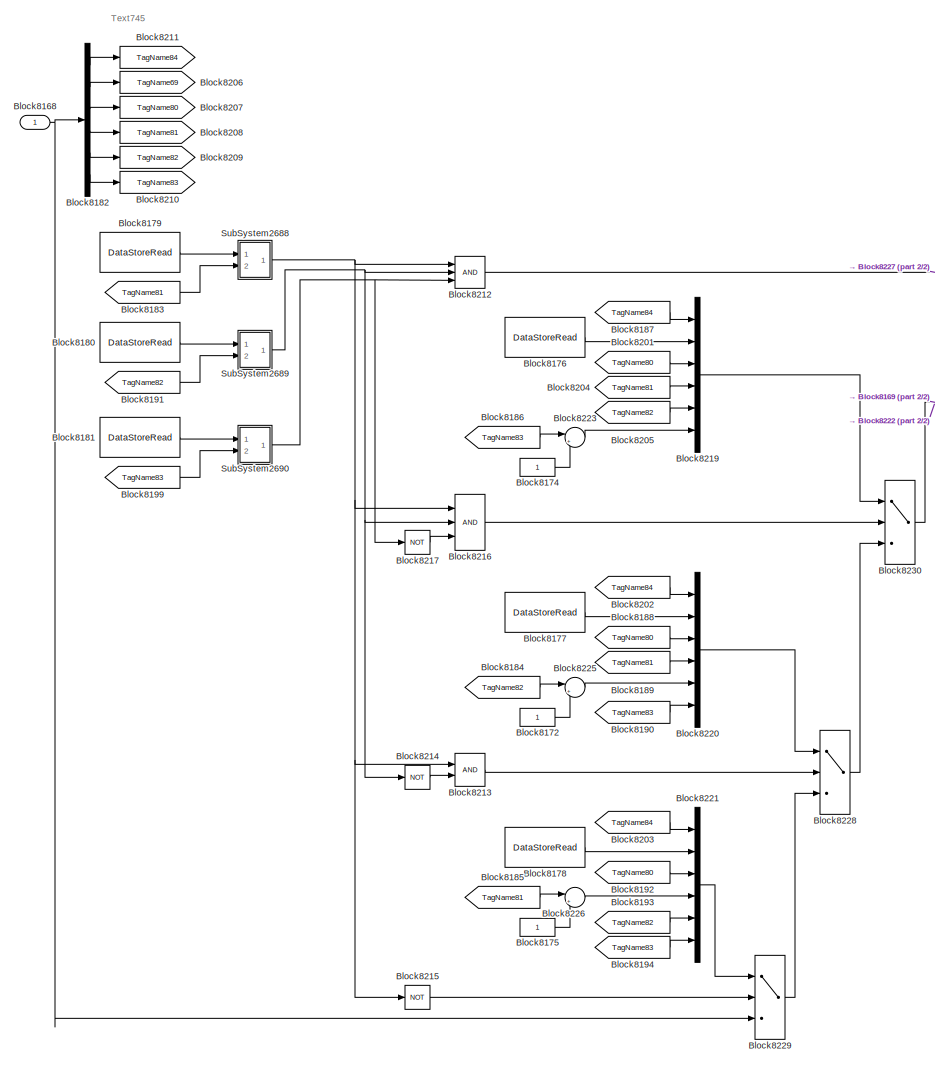
[diagram: SubSystem2611/SubSystem2612/SubSystem2665/SubSystem2666/SubSystem2676/SubSystem2687 - part 1/2, center side, full height]
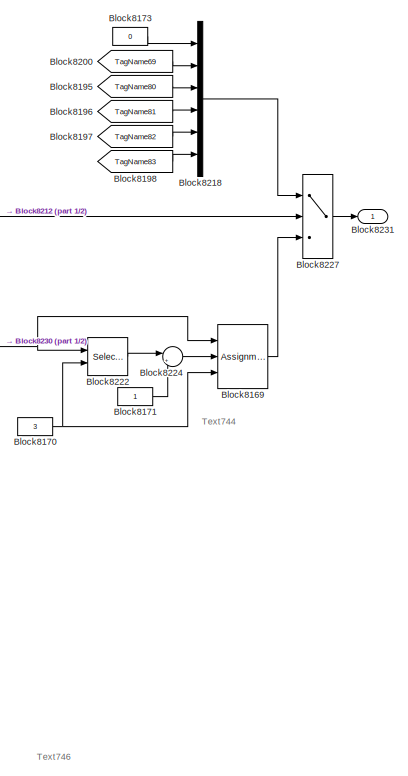
[diagram: SubSystem2611/SubSystem2612/SubSystem2665/SubSystem2666/SubSystem2676/SubSystem2687 - part 2/2, middle right region]
BLOCK [SubSystem] SubSystem2611/SubSystem2612/SubSystem2665/SubSystem2666/SubSystem2676/SubSystem2687
  Ports = [1, 1]
  RequestExecContextInheritance = off
  SID = 876
  TreatAsAtomicUnit = on
BLOCK [Inport] SubSystem2611/SubSystem2612/SubSystem2665/SubSystem2666/SubSystem2676/SubSystem2687/Block8168
  IconDisplay = Port number
  SID = 877
  SamplingMode = Sample based
  SignalType = real
BLOCK [Assignment] SubSystem2611/SubSystem2612/SubSystem2665/SubSystem2666/SubSystem2676/SubSystem2687/Block8169
  IndexOptions = Index vector (port)
  OutputSizes = [1 1]
  Ports = [3, 1]
  SID = 878
BLOCK [Constant] SubSystem2611/SubSystem2612/SubSystem2665/SubSystem2666/SubSystem2676/SubSystem2687/Block8170
  OutDataTypeStr = double
  SID = 879
  SampleTime = -1
  UserData = DataTag111
  UserDataPersistent = on
  Value = 3
BLOCK [Constant] SubSystem2611/SubSystem2612/SubSystem2665/SubSystem2666/SubSystem2676/SubSystem2687/Block8171
  OutDataTypeStr = double
  SID = 880
  SampleTime = -1
  UserData = DataTag112
  UserDataPersistent = on
BLOCK [Constant] SubSystem2611/SubSystem2612/SubSystem2665/SubSystem2666/SubSystem2676/SubSystem2687/Block8172
  OutDataTypeStr = double
  SID = 881
  SampleTime = -1
  UserData = DataTag113
  UserDataPersistent = on
BLOCK [Constant] SubSystem2611/SubSystem2612/SubSystem2665/SubSystem2666/SubSystem2676/SubSystem2687/Block8173
  OutDataTypeStr = double
  SID = 882
  SampleTime = -1
  UserData = DataTag114
  UserDataPersistent = on
  Value = 0
BLOCK [Constant] SubSystem2611/SubSystem2612/SubSystem2665/SubSystem2666/SubSystem2676/SubSystem2687/Block8174
  OutDataTypeStr = double
  SID = 883
  SampleTime = -1
  UserData = DataTag115
  UserDataPersistent = on
BLOCK [Constant] SubSystem2611/SubSystem2612/SubSystem2665/SubSystem2666/SubSystem2676/SubSystem2687/Block8175
  OutDataTypeStr = double
  SID = 884
  SampleTime = -1
  UserData = DataTag116
  UserDataPersistent = on
BLOCK [DataStoreRead] SubSystem2611/SubSystem2612/SubSystem2665/SubSystem2666/SubSystem2676/SubSystem2687/Block8176
  DataStoreName = DSM325
  Ports = [0, 1]
  SID = 885
BLOCK [DataStoreRead] SubSystem2611/SubSystem2612/SubSystem2665/SubSystem2666/SubSystem2676/SubSystem2687/Block8177
  DataStoreName = DSM324
  Ports = [0, 1]
  SID = 886
BLOCK [DataStoreRead] SubSystem2611/SubSystem2612/SubSystem2665/SubSystem2666/SubSystem2676/SubSystem2687/Block8178
  DataStoreName = DSM323
  Ports = [0, 1]
  SID = 887
BLOCK [DataStoreRead] SubSystem2611/SubSystem2612/SubSystem2665/SubSystem2666/SubSystem2676/SubSystem2687/Block8179
  DataStoreName = DSM340
  Ports = [0, 1]
  SID = 888
BLOCK [DataStoreRead] SubSystem2611/SubSystem2612/SubSystem2665/SubSystem2666/SubSystem2676/SubSystem2687/Block8180
  DataStoreName = DSM341
  Ports = [0, 1]
  SID = 889
BLOCK [DataStoreRead] SubSystem2611/SubSystem2612/SubSystem2665/SubSystem2666/SubSystem2676/SubSystem2687/Block8181
  DataStoreName = DSM342
  Ports = [0, 1]
  SID = 890
BLOCK [Demux] SubSystem2611/SubSystem2612/SubSystem2665/SubSystem2666/SubSystem2676/SubSystem2687/Block8182
  Outputs = 6
  Ports = [1, 6]
  SID = 891
BLOCK [From] SubSystem2611/SubSystem2612/SubSystem2665/SubSystem2666/SubSystem2676/SubSystem2687/Block8183
  CloseFcn = tagdialog Close
  GotoTag = TagName81
  SID = 892
BLOCK [From] SubSystem2611/SubSystem2612/SubSystem2665/SubSystem2666/SubSystem2676/SubSystem2687/Block8184
  CloseFcn = tagdialog Close
  GotoTag = TagName82
  SID = 893
BLOCK [From] SubSystem2611/SubSystem2612/SubSystem2665/SubSystem2666/SubSystem2676/SubSystem2687/Block8185
  CloseFcn = tagdialog Close
  GotoTag = TagName81
  SID = 894
BLOCK [From] SubSystem2611/SubSystem2612/SubSystem2665/SubSystem2666/SubSystem2676/SubSystem2687/Block8186
  CloseFcn = tagdialog Close
  GotoTag = TagName83
  SID = 895
BLOCK [From] SubSystem2611/SubSystem2612/SubSystem2665/SubSystem2666/SubSystem2676/SubSystem2687/Block8187
  CloseFcn = tagdialog Close
  GotoTag = TagName84
  SID = 896
BLOCK [From] SubSystem2611/SubSystem2612/SubSystem2665/SubSystem2666/SubSystem2676/SubSystem2687/Block8188
  CloseFcn = tagdialog Close
  GotoTag = TagName80
  SID = 897
BLOCK [From] SubSystem2611/SubSystem2612/SubSystem2665/SubSystem2666/SubSystem2676/SubSystem2687/Block8189
  CloseFcn = tagdialog Close
  GotoTag = TagName81
  SID = 898
BLOCK [From] SubSystem2611/SubSystem2612/SubSystem2665/SubSystem2666/SubSystem2676/SubSystem2687/Block8190
  CloseFcn = tagdialog Close
  GotoTag = TagName83
  SID = 899
BLOCK [From] SubSystem2611/SubSystem2612/SubSystem2665/SubSystem2666/SubSystem2676/SubSystem2687/Block8191
  CloseFcn = tagdialog Close
  GotoTag = TagName82
  SID = 900
BLOCK [From] SubSystem2611/SubSystem2612/SubSystem2665/SubSystem2666/SubSystem2676/SubSystem2687/Block8192
  CloseFcn = tagdialog Close
  GotoTag = TagName80
  SID = 901
BLOCK [From] SubSystem2611/SubSystem2612/SubSystem2665/SubSystem2666/SubSystem2676/SubSystem2687/Block8193
  CloseFcn = tagdialog Close
  GotoTag = TagName82
  SID = 902
BLOCK [From] SubSystem2611/SubSystem2612/SubSystem2665/SubSystem2666/SubSystem2676/SubSystem2687/Block8194
  CloseFcn = tagdialog Close
  GotoTag = TagName83
  SID = 903
BLOCK [From] SubSystem2611/SubSystem2612/SubSystem2665/SubSystem2666/SubSystem2676/SubSystem2687/Block8195
  CloseFcn = tagdialog Close
  GotoTag = TagName80
  SID = 904
BLOCK [From] SubSystem2611/SubSystem2612/SubSystem2665/SubSystem2666/SubSystem2676/SubSystem2687/Block8196
  CloseFcn = tagdialog Close
  GotoTag = TagName81
  SID = 905
BLOCK [From] SubSystem2611/SubSystem2612/SubSystem2665/SubSystem2666/SubSystem2676/SubSystem2687/Block8197
  CloseFcn = tagdialog Close
  GotoTag = TagName82
  SID = 906
BLOCK [From] SubSystem2611/SubSystem2612/SubSystem2665/SubSystem2666/SubSystem2676/SubSystem2687/Block8198
  CloseFcn = tagdialog Close
  GotoTag = TagName83
  SID = 907
BLOCK [From] SubSystem2611/SubSystem2612/SubSystem2665/SubSystem2666/SubSystem2676/SubSystem2687/Block8199
  CloseFcn = tagdialog Close
  GotoTag = TagName83
  SID = 908
BLOCK [From] SubSystem2611/SubSystem2612/SubSystem2665/SubSystem2666/SubSystem2676/SubSystem2687/Block8200
  CloseFcn = tagdialog Close
  GotoTag = TagName69
  SID = 909
BLOCK [From] SubSystem2611/SubSystem2612/SubSystem2665/SubSystem2666/SubSystem2676/SubSystem2687/Block8201
  CloseFcn = tagdialog Close
  GotoTag = TagName80
  SID = 910
BLOCK [From] SubSystem2611/SubSystem2612/SubSystem2665/SubSystem2666/SubSystem2676/SubSystem2687/Block8202
  CloseFcn = tagdialog Close
  GotoTag = TagName84
  SID = 911
BLOCK [From] SubSystem2611/SubSystem2612/SubSystem2665/SubSystem2666/SubSystem2676/SubSystem2687/Block8203
  CloseFcn = tagdialog Close
  GotoTag = TagName84
  SID = 912
BLOCK [From] SubSystem2611/SubSystem2612/SubSystem2665/SubSystem2666/SubSystem2676/SubSystem2687/Block8204
  CloseFcn = tagdialog Close
  GotoTag = TagName81
  SID = 913
BLOCK [From] SubSystem2611/SubSystem2612/SubSystem2665/SubSystem2666/SubSystem2676/SubSystem2687/Block8205
  CloseFcn = tagdialog Close
  GotoTag = TagName82
  SID = 914
BLOCK [Goto] SubSystem2611/SubSystem2612/SubSystem2665/SubSystem2666/SubSystem2676/SubSystem2687/Block8206
  GotoTag = TagName69
  SID = 915
BLOCK [Goto] SubSystem2611/SubSystem2612/SubSystem2665/SubSystem2666/SubSystem2676/SubSystem2687/Block8207
  GotoTag = TagName80
  SID = 916
BLOCK [Goto] SubSystem2611/SubSystem2612/SubSystem2665/SubSystem2666/SubSystem2676/SubSystem2687/Block8208
  GotoTag = TagName81
  SID = 917
BLOCK [Goto] SubSystem2611/SubSystem2612/SubSystem2665/SubSystem2666/SubSystem2676/SubSystem2687/Block8209
  GotoTag = TagName82
  SID = 918
BLOCK [Goto] SubSystem2611/SubSystem2612/SubSystem2665/SubSystem2666/SubSystem2676/SubSystem2687/Block8210
  GotoTag = TagName83
  SID = 919
BLOCK [Goto] SubSystem2611/SubSystem2612/SubSystem2665/SubSystem2666/SubSystem2676/SubSystem2687/Block8211
  GotoTag = TagName84
  SID = 920
BLOCK [Logic] SubSystem2611/SubSystem2612/SubSystem2665/SubSystem2666/SubSystem2676/SubSystem2687/Block8212
  Inputs = 3
  Ports = [3, 1]
  SID = 921
BLOCK [Logic] SubSystem2611/SubSystem2612/SubSystem2665/SubSystem2666/SubSystem2676/SubSystem2687/Block8213
  Ports = [2, 1]
  SID = 922
BLOCK [Logic] SubSystem2611/SubSystem2612/SubSystem2665/SubSystem2666/SubSystem2676/SubSystem2687/Block8214
  Operator = NOT
  Ports = [1, 1]
  SID = 923
BLOCK [Logic] SubSystem2611/SubSystem2612/SubSystem2665/SubSystem2666/SubSystem2676/SubSystem2687/Block8215
  Operator = NOT
  Ports = [1, 1]
  SID = 924
BLOCK [Logic] SubSystem2611/SubSystem2612/SubSystem2665/SubSystem2666/SubSystem2676/SubSystem2687/Block8216
  Inputs = 3
  Ports = [3, 1]
  SID = 925
BLOCK [Logic] SubSystem2611/SubSystem2612/SubSystem2665/SubSystem2666/SubSystem2676/SubSystem2687/Block8217
  Operator = NOT
  Ports = [1, 1]
  SID = 926
BLOCK [Mux] SubSystem2611/SubSystem2612/SubSystem2665/SubSystem2666/SubSystem2676/SubSystem2687/Block8218
  DisplayOption = bar
  Inputs = 6
  Ports = [6, 1]
  SID = 927
BLOCK [Mux] SubSystem2611/SubSystem2612/SubSystem2665/SubSystem2666/SubSystem2676/SubSystem2687/Block8219
  DisplayOption = bar
  Inputs = 6
  Ports = [6, 1]
  SID = 928
BLOCK [Mux] SubSystem2611/SubSystem2612/SubSystem2665/SubSystem2666/SubSystem2676/SubSystem2687/Block8220
  DisplayOption = bar
  Inputs = 6
  Ports = [6, 1]
  SID = 929
BLOCK [Mux] SubSystem2611/SubSystem2612/SubSystem2665/SubSystem2666/SubSystem2676/SubSystem2687/Block8221
  DisplayOption = bar
  Inputs = 6
  Ports = [6, 1]
  SID = 930
BLOCK [Selector] SubSystem2611/SubSystem2612/SubSystem2665/SubSystem2666/SubSystem2676/SubSystem2687/Block8222
  IndexOptions = Index vector (port)
  Indices = [1 3]
  Ports = [2, 1]
  SID = 931
BLOCK [Sum] SubSystem2611/SubSystem2612/SubSystem2665/SubSystem2666/SubSystem2676/SubSystem2687/Block8223
  IconShape = round
  Inputs = |++
  OutDataTypeStr = double
  Ports = [2, 1]
  RndMeth = Zero
  SID = 932
BLOCK [Sum] SubSystem2611/SubSystem2612/SubSystem2665/SubSystem2666/SubSystem2676/SubSystem2687/Block8224
  IconShape = round
  Inputs = |++
  OutDataTypeStr = double
  Ports = [2, 1]
  RndMeth = Zero
  SID = 933
BLOCK [Sum] SubSystem2611/SubSystem2612/SubSystem2665/SubSystem2666/SubSystem2676/SubSystem2687/Block8225
  IconShape = round
  Inputs = |++
  OutDataTypeStr = double
  Ports = [2, 1]
  RndMeth = Zero
  SID = 934
BLOCK [Sum] SubSystem2611/SubSystem2612/SubSystem2665/SubSystem2666/SubSystem2676/SubSystem2687/Block8226
  IconShape = round
  Inputs = |++
  OutDataTypeStr = double
  Ports = [2, 1]
  RndMeth = Zero
  SID = 935
BLOCK [Switch] SubSystem2611/SubSystem2612/SubSystem2665/SubSystem2666/SubSystem2676/SubSystem2687/Block8227
  RndMeth = Zero
  SID = 936
  Threshold = 0.5
BLOCK [Switch] SubSystem2611/SubSystem2612/SubSystem2665/SubSystem2666/SubSystem2676/SubSystem2687/Block8228
  RndMeth = Zero
  SID = 937
  Threshold = 0.5
BLOCK [Switch] SubSystem2611/SubSystem2612/SubSystem2665/SubSystem2666/SubSystem2676/SubSystem2687/Block8229
  RndMeth = Zero
  SID = 938
  Threshold = 0.5
BLOCK [Switch] SubSystem2611/SubSystem2612/SubSystem2665/SubSystem2666/SubSystem2676/SubSystem2687/Block8230
  RndMeth = Zero
  SID = 939
  Threshold = 0.5
BLOCK [Outport] SubSystem2611/SubSystem2612/SubSystem2665/SubSystem2666/SubSystem2676/SubSystem2687/Block8231
  IconDisplay = Port number
  SID = 961
BLOCK [SubSystem] SubSystem2611/SubSystem2612/SubSystem2665/SubSystem2666/SubSystem2676/SubSystem2687/SubSystem2688
  Ports = [2, 1]
  RequestExecContextInheritance = off
  SID = 940
BLOCK [Inport] SubSystem2611/SubSystem2612/SubSystem2665/SubSystem2666/SubSystem2676/SubSystem2687/SubSystem2688/In1
  IconDisplay = Port number
  SID = 941
  SamplingMode = Sample based
  SignalType = real
BLOCK [Inport] SubSystem2611/SubSystem2612/SubSystem2665/SubSystem2666/SubSystem2676/SubSystem2687/SubSystem2688/In2
  IconDisplay = Port number
  Port = 2
  SID = 942
  SamplingMode = Sample based
  SignalType = real
BLOCK [Outport] SubSystem2611/SubSystem2612/SubSystem2665/SubSystem2666/SubSystem2676/SubSystem2687/SubSystem2688/Out1
  IconDisplay = Port number
  SID = 946
  SamplingMode = Sample based
  SignalType = real
BLOCK [RelationalOperator] SubSystem2611/SubSystem2612/SubSystem2665/SubSystem2666/SubSystem2676/SubSystem2687/SubSystem2688/RO1
  Operator = ==
  Ports = [2, 1]
  SID = 943
BLOCK [DataTypeConversion] SubSystem2611/SubSystem2612/SubSystem2665/SubSystem2666/SubSystem2676/SubSystem2687/SubSystem2688/single1
  OutDataTypeStr = single
  SID = 944
BLOCK [DataTypeConversion] SubSystem2611/SubSystem2612/SubSystem2665/SubSystem2666/SubSystem2676/SubSystem2687/SubSystem2688/single2
  OutDataTypeStr = single
  SID = 945
BLOCK [SubSystem] SubSystem2611/SubSystem2612/SubSystem2665/SubSystem2666/SubSystem2676/SubSystem2687/SubSystem2689
  Ports = [2, 1]
  RequestExecContextInheritance = off
  SID = 947
BLOCK [Inport] SubSystem2611/SubSystem2612/SubSystem2665/SubSystem2666/SubSystem2676/SubSystem2687/SubSystem2689/In1
  IconDisplay = Port number
  SID = 948
  SamplingMode = Sample based
  SignalType = real
BLOCK [Inport] SubSystem2611/SubSystem2612/SubSystem2665/SubSystem2666/SubSystem2676/SubSystem2687/SubSystem2689/In2
  IconDisplay = Port number
  Port = 2
  SID = 949
  SamplingMode = Sample based
  SignalType = real
BLOCK [Outport] SubSystem2611/SubSystem2612/SubSystem2665/SubSystem2666/SubSystem2676/SubSystem2687/SubSystem2689/Out1
  IconDisplay = Port number
  SID = 953
  SamplingMode = Sample based
  SignalType = real
BLOCK [RelationalOperator] SubSystem2611/SubSystem2612/SubSystem2665/SubSystem2666/SubSystem2676/SubSystem2687/SubSystem2689/RO1
  Operator = ==
  Ports = [2, 1]
  SID = 950
BLOCK [DataTypeConversion] SubSystem2611/SubSystem2612/SubSystem2665/SubSystem2666/SubSystem2676/SubSystem2687/SubSystem2689/single1
  OutDataTypeStr = single
  SID = 951
BLOCK [DataTypeConversion] SubSystem2611/SubSystem2612/SubSystem2665/SubSystem2666/SubSystem2676/SubSystem2687/SubSystem2689/single2
  OutDataTypeStr = single
  SID = 952
BLOCK [SubSystem] SubSystem2611/SubSystem2612/SubSystem2665/SubSystem2666/SubSystem2676/SubSystem2687/SubSystem2690
  Ports = [2, 1]
  RequestExecContextInheritance = off
  SID = 954
BLOCK [Inport] SubSystem2611/SubSystem2612/SubSystem2665/SubSystem2666/SubSystem2676/SubSystem2687/SubSystem2690/In1
  IconDisplay = Port number
  SID = 955
  SamplingMode = Sample based
  SignalType = real
BLOCK [Inport] SubSystem2611/SubSystem2612/SubSystem2665/SubSystem2666/SubSystem2676/SubSystem2687/SubSystem2690/In2
  IconDisplay = Port number
  Port = 2
  SID = 956
  SamplingMode = Sample based
  SignalType = real
BLOCK [Outport] SubSystem2611/SubSystem2612/SubSystem2665/SubSystem2666/SubSystem2676/SubSystem2687/SubSystem2690/Out1
  IconDisplay = Port number
  SID = 960
  SamplingMode = Sample based
  SignalType = real
BLOCK [RelationalOperator] SubSystem2611/SubSystem2612/SubSystem2665/SubSystem2666/SubSystem2676/SubSystem2687/SubSystem2690/RO1
  Operator = ==
  Ports = [2, 1]
  SID = 957
BLOCK [DataTypeConversion] SubSystem2611/SubSystem2612/SubSystem2665/SubSystem2666/SubSystem2676/SubSystem2687/SubSystem2690/single1
  OutDataTypeStr = single
  SID = 958
BLOCK [DataTypeConversion] SubSystem2611/SubSystem2612/SubSystem2665/SubSystem2666/SubSystem2676/SubSystem2687/SubSystem2690/single2
  OutDataTypeStr = single
  SID = 959
BLOCK [SubSystem] SubSystem2611/SubSystem2691
  AttributesFormatString = Attribute2129
  Ports = [0, 0, 0, 1]
  Priority = 2
  RTWFcnNameOpts = Use subsystem name
  RTWSystemCode = Nonreusable function
  RequestExecContextInheritance = off
  SID = 963
  TreatAsAtomicUnit = on
BLOCK [TriggerPort] SubSystem2611/SubSystem2691/Block8233
  Ports = []
  SID = 964
  StatesWhenEnabling = held
BLOCK [SubSystem] SubSystem2611/SubSystem2691/SubSystem2692
  AttributesFormatString = Attribute2130
  OpenFcn = warndlg('ÏXÖ~!');
  Ports = []
  RequestExecContextInheritance = off
  SID = 965
BLOCK [SubSystem] SubSystem2611/SubSystem2691/SubSystem2693
  AttributesFormatString = Attribute2131
  Ports = []
  RTWFcnNameOpts = Use subsystem name
  RequestExecContextInheritance = off
  SID = 966
  TreatAsAtomicUnit = on
BLOCK [Constant] SubSystem2611/SubSystem2691/SubSystem2693/Block8234
  OutDataTypeStr = double
  SID = 967
  SampleTime = -1
  UserData = DataTag117
  UserDataPersistent = on
  Value = Parameter131
BLOCK [Constant] SubSystem2611/SubSystem2691/SubSystem2693/Block8235
  OutDataTypeStr = double
  SID = 968
  SampleTime = -1
  UserData = DataTag118
  UserDataPersistent = on
  Value = 65
BLOCK [Constant] SubSystem2611/SubSystem2691/SubSystem2693/Block8236
  OutDataTypeStr = double
  SID = 969
  SampleTime = -1
  UserData = DataTag119
  UserDataPersistent = on
  Value = 0
BLOCK [Constant] SubSystem2611/SubSystem2691/SubSystem2693/Block8237
  OutDataTypeStr = double
  SID = 970
  SampleTime = -1
  UserData = DataTag120
  UserDataPersistent = on
  Value = -5
BLOCK [Constant] SubSystem2611/SubSystem2691/SubSystem2693/Block8238
  OutDataTypeStr = double
  SID = 971
  SampleTime = -1
  UserData = DataTag121
  UserDataPersistent = on
  Value = 0
BLOCK [Constant] SubSystem2611/SubSystem2691/SubSystem2693/Block8239
  OutDataTypeStr = double
  SID = 972
  SampleTime = -1
  UserData = DataTag122
  UserDataPersistent = on
  Value = 10
BLOCK [Constant] SubSystem2611/SubSystem2691/SubSystem2693/Block8240
  OutDataTypeStr = double
  SID = 973
  SampleTime = -1
  UserData = DataTag123
  UserDataPersistent = on
  Value = 22.6
BLOCK [Constant] SubSystem2611/SubSystem2691/SubSystem2693/Block8241
  OutDataTypeStr = double
  SID = 974
  SampleTime = -1
  UserData = DataTag124
  UserDataPersistent = on
  Value = 0
BLOCK [Constant] SubSystem2611/SubSystem2691/SubSystem2693/Block8242
  OutDataTypeStr = double
  SID = 975
  SampleTime = -1
  UserData = DataTag125
  UserDataPersistent = on
  Value = 0
BLOCK [Constant] SubSystem2611/SubSystem2691/SubSystem2693/Block8243
  OutDataTypeStr = double
  SID = 976
  SampleTime = -1
  UserData = DataTag126
  UserDataPersistent = on
  Value = -37.5
BLOCK [Constant] SubSystem2611/SubSystem2691/SubSystem2693/Block8244
  OutDataTypeStr = double
  SID = 977
  SampleTime = -1
  UserData = DataTag127
  UserDataPersistent = on
  Value = Parameter141
BLOCK [Constant] SubSystem2611/SubSystem2691/SubSystem2693/Block8245
  OutDataTypeStr = double
  SID = 978
  SampleTime = -1
  UserData = DataTag128
  UserDataPersistent = on
  Value = -177.4
BLOCK [Constant] SubSystem2611/SubSystem2691/SubSystem2693/Block8246
  OutDataTypeStr = double
  SID = 979
  SampleTime = -1
  UserData = DataTag129
  UserDataPersistent = on
  Value = 15.9
BLOCK [Constant] SubSystem2611/SubSystem2691/SubSystem2693/Block8247
  OutDataTypeStr = double
  SID = 980
  SampleTime = -1
  UserData = DataTag130
  UserDataPersistent = on
  Value = 5.0
BLOCK [Constant] SubSystem2611/SubSystem2691/SubSystem2693/Block8248
  OutDataTypeStr = double
  SID = 981
  SampleTime = -1
  UserData = DataTag131
  UserDataPersistent = on
  Value = 28.8
BLOCK [Constant] SubSystem2611/SubSystem2691/SubSystem2693/Block8249
  OutDataTypeStr = double
  SID = 982
  SampleTime = -1
  UserData = DataTag132
  UserDataPersistent = on
  Value = -54.2
BLOCK [Constant] SubSystem2611/SubSystem2691/SubSystem2693/Block8250
  OutDataTypeStr = double
  SID = 983
  SampleTime = -1
  UserData = DataTag133
  UserDataPersistent = on
  Value = 0.05
BLOCK [Constant] SubSystem2611/SubSystem2691/SubSystem2693/Block8251
  OutDataTypeStr = double
  SID = 984
  SampleTime = -1
  UserData = DataTag134
  UserDataPersistent = on
  Value = -163.6
BLOCK [Constant] SubSystem2611/SubSystem2691/SubSystem2693/Block8252
  OutDataTypeStr = double
  SID = 985
  SampleTime = -1
  UserData = DataTag135
  UserDataPersistent = on
  Value = 20.4
BLOCK [Constant] SubSystem2611/SubSystem2691/SubSystem2693/Block8253
  OutDataTypeStr = double
  SID = 986
  SampleTime = -1
  UserData = DataTag136
  UserDataPersistent = on
  Value = 0
BLOCK [Constant] SubSystem2611/SubSystem2691/SubSystem2693/Block8254
  OutDataTypeStr = double
  SID = 987
  SampleTime = -1
  UserData = DataTag137
  UserDataPersistent = on
  Value = 0.6
BLOCK [Constant] SubSystem2611/SubSystem2691/SubSystem2693/Block8255
  OutDataTypeStr = double
  SID = 988
  SampleTime = -1
  UserData = DataTag138
  UserDataPersistent = on
  Value = Parameter143
BLOCK [Constant] SubSystem2611/SubSystem2691/SubSystem2693/Block8256
  OutDataTypeStr = double
  SID = 989
  SampleTime = -1
  UserData = DataTag139
  UserDataPersistent = on
  Value = 1.1
BLOCK [Constant] SubSystem2611/SubSystem2691/SubSystem2693/Block8257
  OutDataTypeStr = double
  SID = 990
  SampleTime = -1
  UserData = DataTag140
  UserDataPersistent = on
  Value = -10
BLOCK [Constant] SubSystem2611/SubSystem2691/SubSystem2693/Block8258
  OutDataTypeStr = double
  SID = 991
  SampleTime = -1
  UserData = DataTag141
  UserDataPersistent = on
  Value = 15
BLOCK [Constant] SubSystem2611/SubSystem2691/SubSystem2693/Block8259
  OutDataTypeStr = double
  SID = 992
  SampleTime = -1
  UserData = DataTag142
  UserDataPersistent = on
  Value = 0.05
BLOCK [Constant] SubSystem2611/SubSystem2691/SubSystem2693/Block8260
  OutDataTypeStr = double
  SID = 993
  SampleTime = -1
  UserData = DataTag143
  UserDataPersistent = on
  Value = 0.15
BLOCK [Constant] SubSystem2611/SubSystem2691/SubSystem2693/Block8261
  OutDataTypeStr = double
  SID = 994
  SampleTime = -1
  UserData = DataTag144
  UserDataPersistent = on
  Value = 10
BLOCK [Constant] SubSystem2611/SubSystem2691/SubSystem2693/Block8262
  OutDataTypeStr = double
  SID = 995
  SampleTime = -1
  UserData = DataTag145
  UserDataPersistent = on
  Value = 10
BLOCK [Constant] SubSystem2611/SubSystem2691/SubSystem2693/Block8263
  OutDataTypeStr = double
  SID = 996
  SampleTime = -1
  UserData = DataTag146
  UserDataPersistent = on
  Value = 0
BLOCK [Constant] SubSystem2611/SubSystem2691/SubSystem2693/Block8264
  OutDataTypeStr = double
  SID = 997
  SampleTime = -1
  UserData = DataTag147
  UserDataPersistent = on
  Value = 0
BLOCK [Constant] SubSystem2611/SubSystem2691/SubSystem2693/Block8265
  OutDataTypeStr = double
  SID = 998
  SampleTime = -1
  UserData = DataTag148
  UserDataPersistent = on
  Value = 0
BLOCK [Constant] SubSystem2611/SubSystem2691/SubSystem2693/Block8266
  OutDataTypeStr = double
  SID = 999
  SampleTime = -1
  UserData = DataTag149
  UserDataPersistent = on
  Value = 5
BLOCK [Constant] SubSystem2611/SubSystem2691/SubSystem2693/Block8267
  OutDataTypeStr = double
  SID = 1000
  SampleTime = -1
  UserData = DataTag150
  UserDataPersistent = on
  Value = 0
BLOCK [DataStoreWrite] SubSystem2611/SubSystem2691/SubSystem2693/Block8268
  DataStoreName = DSM355
  Ports = [1]
  SID = 1001
BLOCK [DataStoreWrite] SubSystem2611/SubSystem2691/SubSystem2693/Block8269
  DataStoreName = DSM352
  Ports = [1]
  SID = 1002
BLOCK [DataStoreWrite] SubSystem2611/SubSystem2691/SubSystem2693/Block8270
  DataStoreName = DSM325
  Ports = [1]
  SID = 1003
BLOCK [DataStoreWrite] SubSystem2611/SubSystem2691/SubSystem2693/Block8271
  DataStoreName = DSM339
  Ports = [1]
  SID = 1004
BLOCK [DataStoreWrite] SubSystem2611/SubSystem2691/SubSystem2693/Block8272
  DataStoreName = DSM340
  Ports = [1]
  SID = 1005
BLOCK [DataStoreWrite] SubSystem2611/SubSystem2691/SubSystem2693/Block8273
  DataStoreName = DSM361
  Ports = [1]
  SID = 1006
BLOCK [DataStoreWrite] SubSystem2611/SubSystem2691/SubSystem2693/Block8274
  DataStoreName = DSM328
  Ports = [1]
  SID = 1007
BLOCK [DataStoreWrite] SubSystem2611/SubSystem2691/SubSystem2693/Block8275
  DataStoreName = DSM345
  Ports = [1]
  SID = 1008
BLOCK [DataStoreWrite] SubSystem2611/SubSystem2691/SubSystem2693/Block8276
  DataStoreName = DSM344
  Ports = [1]
  SID = 1009
BLOCK [DataStoreWrite] SubSystem2611/SubSystem2691/SubSystem2693/Block8277
  DataStoreName = DSM331
  Ports = [1]
  SID = 1010
BLOCK [DataStoreWrite] SubSystem2611/SubSystem2691/SubSystem2693/Block8278
  DataStoreName = DSM330
  Ports = [1]
  SID = 1011
BLOCK [DataStoreWrite] SubSystem2611/SubSystem2691/SubSystem2693/Block8279
  DataStoreName = DSM329
  Ports = [1]
  SID = 1012
BLOCK [DataStoreWrite] SubSystem2611/SubSystem2691/SubSystem2693/Block8280
  DataStoreName = DSM353
  Ports = [1]
  SID = 1013
BLOCK [DataStoreWrite] SubSystem2611/SubSystem2691/SubSystem2693/Block8281
  DataStoreName = DSM332
  Ports = [1]
  SID = 1014
BLOCK [DataStoreWrite] SubSystem2611/SubSystem2691/SubSystem2693/Block8282
  DataStoreName = DSM341
  Ports = [1]
  SID = 1015
BLOCK [DataStoreWrite] SubSystem2611/SubSystem2691/SubSystem2693/Block8283
  DataStoreName = DSM342
  Ports = [1]
  SID = 1016
BLOCK [DataStoreWrite] SubSystem2611/SubSystem2691/SubSystem2693/Block8284
  DataStoreName = DSM350
  Ports = [1]
  SID = 1017
BLOCK [DataStoreWrite] SubSystem2611/SubSystem2691/SubSystem2693/Block8285
  DataStoreName = DSM351
  Ports = [1]
  SID = 1018
BLOCK [DataStoreWrite] SubSystem2611/SubSystem2691/SubSystem2693/Block8286
  DataStoreName = DSM354
  Ports = [1]
  SID = 1019
BLOCK [DataStoreWrite] SubSystem2611/SubSystem2691/SubSystem2693/Block8287
  DataStoreName = DSM338
  Ports = [1]
  SID = 1020
BLOCK [DataStoreWrite] SubSystem2611/SubSystem2691/SubSystem2693/Block8288
  DataStoreName = DSM322
  Ports = [1]
  SID = 1021
BLOCK [DataStoreWrite] SubSystem2611/SubSystem2691/SubSystem2693/Block8289
  DataStoreName = DSM326
  Ports = [1]
  SID = 1022
BLOCK [DataStoreWrite] SubSystem2611/SubSystem2691/SubSystem2693/Block8290
  DataStoreName = DSM323
  Ports = [1]
  SID = 1023
BLOCK [DataStoreWrite] SubSystem2611/SubSystem2691/SubSystem2693/Block8291
  DataStoreName = DSM327
  Ports = [1]
  SID = 1024
BLOCK [DataStoreWrite] SubSystem2611/SubSystem2691/SubSystem2693/Block8292
  DataStoreName = DSM324
  Ports = [1]
  SID = 1025
BLOCK [From] SubSystem2611/SubSystem2691/SubSystem2693/Block8293
  CloseFcn = tagdialog Close
  GotoTag = TagName59
  SID = 1026
BLOCK [Goto] SubSystem2611/SubSystem2691/SubSystem2693/Block8294
  GotoTag = TagName59
  SID = 1027
BLOCK [Mux] SubSystem2611/SubSystem2691/SubSystem2693/Block8295
  DisplayOption = bar
  Inputs = 5
  Ports = [5, 1]
  SID = 1028
BLOCK [Mux] SubSystem2611/SubSystem2691/SubSystem2693/Block8296
  DisplayOption = bar
  Inputs = 5
  Ports = [5, 1]
  SID = 1029
BLOCK [SubSystem] SubSystem2611/SubSystem2691/SubSystem2693/SubSystem2694
  OpenFcn = warndlg('ÏXÖ~!');
  Ports = [1, 2]
  RTWSystemCode = Inline
  RequestExecContextInheritance = off
  SID = 1030
  TreatAsAtomicUnit = on
BLOCK [SubSystem] SubSystem2611/SubSystem2691/SubSystem2693/SubSystem2694/For_loop
  ErrorFcn = Stateflow.Translate.translate
  PermitHierarchicalResolution = ExplicitOnly
  Ports = [1, 2]
  RequestExecContextInheritance = off
  SFBlockType = Chart
  SID = 1032
  TreatAsAtomicUnit = on
BLOCK [Demux] SubSystem2611/SubSystem2691/SubSystem2693/SubSystem2694/For_loop/ Demux 
  Outputs = 1
  Ports = [1, 1]
  SID = 1032::11
BLOCK [S-Function] SubSystem2611/SubSystem2691/SubSystem2693/SubSystem2694/For_loop/ SFunction 
  EnableBusSupport = on
  FunctionName = sf_sfun
  PortCounts = [1 2]
  Ports = [1, 2]
  SID = 1032::10
  Tag = Stateflow S-Function mdl5 2
BLOCK [Inport] SubSystem2611/SubSystem2691/SubSystem2693/SubSystem2694/For_loop/N_Loop
  IconDisplay = Port number
  SID = 1032::1
BLOCK [Outport] SubSystem2611/SubSystem2691/SubSystem2693/SubSystem2694/For_loop/function_call()
  IconDisplay = Port number
  Port = 2
  SID = 1032::5
BLOCK [Outport] SubSystem2611/SubSystem2691/SubSystem2693/SubSystem2694/For_loop/idx
  IconDisplay = Port number
  SID = 1032::4
BLOCK [Inport] SubSystem2611/SubSystem2691/SubSystem2693/SubSystem2694/N
  IconDisplay = Port number
  SID = 1031
  SamplingMode = Sample based
  SignalType = real
BLOCK [Outport] SubSystem2611/SubSystem2691/SubSystem2693/SubSystem2694/action
  IconDisplay = Port number
  SID = 1033
  SamplingMode = Sample based
  SignalType = real
BLOCK [Outport] SubSystem2611/SubSystem2691/SubSystem2693/SubSystem2694/i
  IconDisplay = Port number
  Port = 2
  SID = 1034
  SamplingMode = Sample based
  SignalType = real
BLOCK [SubSystem] SubSystem2611/SubSystem2691/SubSystem2693/SubSystem2695
  Ports = [2, 0, 0, 1]
  RequestExecContextInheritance = off
  SID = 1035
  TreatAsAtomicUnit = on
BLOCK [Inport] SubSystem2611/SubSystem2691/SubSystem2693/SubSystem2695/Block8297
  IconDisplay = Port number
  SID = 1036
  SamplingMode = Sample based
  SignalType = real
BLOCK [Inport] SubSystem2611/SubSystem2691/SubSystem2693/SubSystem2695/Block8298
  IconDisplay = Port number
  Port = 2
  SID = 1037
  SamplingMode = Sample based
  SignalType = real
BLOCK [TriggerPort] SubSystem2611/SubSystem2691/SubSystem2693/SubSystem2695/Block8299
  Ports = []
  SID = 1038
  StatesWhenEnabling = held
  TriggerType = function-call
BLOCK [Constant] SubSystem2611/SubSystem2691/SubSystem2693/SubSystem2695/Block8300
  OutDataTypeStr = double
  SID = 1039
  SampleTime = -1
  UserData = DataTag151
  UserDataPersistent = on
  Value = 0
BLOCK [Constant] SubSystem2611/SubSystem2691/SubSystem2693/SubSystem2695/Block8301
  OutDataTypeStr = double
  SID = 1040
  SampleTime = -1
  UserData = DataTag152
  UserDataPersistent = on
  Value = 0
BLOCK [Constant] SubSystem2611/SubSystem2691/SubSystem2693/SubSystem2695/Block8302
  OutDataTypeStr = double
  SID = 1041
  SampleTime = -1
  UserData = DataTag153
  UserDataPersistent = on
  Value = 20
BLOCK [Constant] SubSystem2611/SubSystem2691/SubSystem2693/SubSystem2695/Block8303
  OutDataTypeStr = double
  SID = 1042
  SampleTime = -1
  UserData = DataTag154
  UserDataPersistent = on
  Value = 100
BLOCK [Constant] SubSystem2611/SubSystem2691/SubSystem2693/SubSystem2695/Block8304
  OutDataTypeStr = double
  SID = 1043
  SampleTime = -1
  UserData = DataTag155
  UserDataPersistent = on
  Value = 0
BLOCK [Constant] SubSystem2611/SubSystem2691/SubSystem2693/SubSystem2695/Block8305
  OutDataTypeStr = double
  SID = 1044
  SampleTime = -1
  UserData = DataTag156
  UserDataPersistent = on
  Value = 0
BLOCK [Constant] SubSystem2611/SubSystem2691/SubSystem2693/SubSystem2695/Block8306
  OutDataTypeStr = double
  SID = 1045
  SampleTime = -1
  UserData = DataTag157
  UserDataPersistent = on
  Value = 0
BLOCK [Constant] SubSystem2611/SubSystem2691/SubSystem2693/SubSystem2695/Block8307
  OutDataTypeStr = double
  SID = 1046
  SampleTime = -1
  UserData = DataTag158
  UserDataPersistent = on
  Value = 0
BLOCK [Constant] SubSystem2611/SubSystem2691/SubSystem2693/SubSystem2695/Block8308
  OutDataTypeStr = double
  SID = 1047
  SampleTime = -1
  UserData = DataTag159
  UserDataPersistent = on
  Value = 0
BLOCK [Constant] SubSystem2611/SubSystem2691/SubSystem2693/SubSystem2695/Block8309
  OutDataTypeStr = double
  SID = 1048
  SampleTime = -1
  UserData = DataTag160
  UserDataPersistent = on
  Value = 0
BLOCK [SubSystem] SubSystem2611/SubSystem2691/SubSystem2693/SubSystem2695/SubSystem2696
  OpenFcn = warndlg('ÏXÖ~!');
  Ports = [2]
  RequestExecContextInheritance = off
  SID = 1049
  TreatAsAtomicUnit = on
  UserData = DataTag161
  UserDataPersistent = on
BLOCK [Assignment] SubSystem2611/SubSystem2691/SubSystem2693/SubSystem2695/SubSystem2696/Assignment
  IndexOptions = Index vector (port)
  OutputSizes = [1 1]
  Ports = [3, 1]
  SID = 1052
BLOCK [DataStoreRead] SubSystem2611/SubSystem2691/SubSystem2693/SubSystem2695/SubSystem2696/Inside_DSR
  DataStoreName = DSM320
  Ports = [0, 1]
  SID = 1053
BLOCK [DataStoreWrite] SubSystem2611/SubSystem2691/SubSystem2693/SubSystem2695/SubSystem2696/Inside_DSW
  DataStoreName = DSM320
  Ports = [1]
  SID = 1054
BLOCK [Inport] SubSystem2611/SubSystem2691/SubSystem2693/SubSystem2695/SubSystem2696/element
  IconDisplay = Port number
  Port = 2
  SID = 1051
BLOCK [Inport] SubSystem2611/SubSystem2691/SubSystem2693/SubSystem2695/SubSystem2696/input
  IconDisplay = Port number
  SID = 1050
BLOCK [SubSystem] SubSystem2611/SubSystem2691/SubSystem2693/SubSystem2695/SubSystem2697
  OpenFcn = warndlg('ÏXÖ~!');
  Ports = [2]
  RequestExecContextInheritance = off
  SID = 1055
  TreatAsAtomicUnit = on
  UserData = DataTag162
  UserDataPersistent = on
BLOCK [Assignment] SubSystem2611/SubSystem2691/SubSystem2693/SubSystem2695/SubSystem2697/Assignment
  IndexOptions = Index vector (port)
  OutputSizes = [1 1]
  Ports = [3, 1]
  SID = 1058
BLOCK [DataStoreRead] SubSystem2611/SubSystem2691/SubSystem2693/SubSystem2695/SubSystem2697/Inside_DSR
  DataStoreName = DSM319
  Ports = [0, 1]
  SID = 1059
BLOCK [DataStoreWrite] SubSystem2611/SubSystem2691/SubSystem2693/SubSystem2695/SubSystem2697/Inside_DSW
  DataStoreName = DSM319
  Ports = [1]
  SID = 1060
BLOCK [Inport] SubSystem2611/SubSystem2691/SubSystem2693/SubSystem2695/SubSystem2697/element
  IconDisplay = Port number
  Port = 2
  SID = 1057
BLOCK [Inport] SubSystem2611/SubSystem2691/SubSystem2693/SubSystem2695/SubSystem2697/input
  IconDisplay = Port number
  SID = 1056
BLOCK [SubSystem] SubSystem2611/SubSystem2691/SubSystem2693/SubSystem2695/SubSystem2698
  OpenFcn = warndlg('ÏXÖ~!');
  Ports = [2]
  RequestExecContextInheritance = off
  SID = 1061
  TreatAsAtomicUnit = on
  UserData = DataTag163
  UserDataPersistent = on
BLOCK [Assignment] SubSystem2611/SubSystem2691/SubSystem2693/SubSystem2695/SubSystem2698/Assignment
  IndexOptions = Index vector (port)
  OutputSizes = [1 1]
  Ports = [3, 1]
  SID = 1064
BLOCK [DataStoreRead] SubSystem2611/SubSystem2691/SubSystem2693/SubSystem2695/SubSystem2698/Inside_DSR
  DataStoreName = DSM336
  Ports = [0, 1]
  SID = 1065
BLOCK [DataStoreWrite] SubSystem2611/SubSystem2691/SubSystem2693/SubSystem2695/SubSystem2698/Inside_DSW
  DataStoreName = DSM336
  Ports = [1]
  SID = 1066
BLOCK [Inport] SubSystem2611/SubSystem2691/SubSystem2693/SubSystem2695/SubSystem2698/element
  IconDisplay = Port number
  Port = 2
  SID = 1063
BLOCK [Inport] SubSystem2611/SubSystem2691/SubSystem2693/SubSystem2695/SubSystem2698/input
  IconDisplay = Port number
  SID = 1062
BLOCK [SubSystem] SubSystem2611/SubSystem2691/SubSystem2693/SubSystem2695/SubSystem2699
  OpenFcn = warndlg('ÏXÖ~!');
  Ports = [2]
  RequestExecContextInheritance = off
  SID = 1067
  TreatAsAtomicUnit = on
  UserData = DataTag164
  UserDataPersistent = on
BLOCK [Assignment] SubSystem2611/SubSystem2691/SubSystem2693/SubSystem2695/SubSystem2699/Assignment
  IndexOptions = Index vector (port)
  OutputSizes = [1 1]
  Ports = [3, 1]
  SID = 1070
BLOCK [DataStoreRead] SubSystem2611/SubSystem2691/SubSystem2693/SubSystem2695/SubSystem2699/Inside_DSR
  DataStoreName = DSM318
  Ports = [0, 1]
  SID = 1071
BLOCK [DataStoreWrite] SubSystem2611/SubSystem2691/SubSystem2693/SubSystem2695/SubSystem2699/Inside_DSW
  DataStoreName = DSM318
  Ports = [1]
  SID = 1072
BLOCK [Inport] SubSystem2611/SubSystem2691/SubSystem2693/SubSystem2695/SubSystem2699/element
  IconDisplay = Port number
  Port = 2
  SID = 1069
BLOCK [Inport] SubSystem2611/SubSystem2691/SubSystem2693/SubSystem2695/SubSystem2699/input
  IconDisplay = Port number
  SID = 1068
BLOCK [SubSystem] SubSystem2611/SubSystem2691/SubSystem2693/SubSystem2695/SubSystem2700
  OpenFcn = warndlg('ÏXÖ~!');
  Ports = [2]
  RequestExecContextInheritance = off
  SID = 1073
  TreatAsAtomicUnit = on
  UserData = DataTag165
  UserDataPersistent = on
BLOCK [Assignment] SubSystem2611/SubSystem2691/SubSystem2693/SubSystem2695/SubSystem2700/Assignment
  IndexOptions = Index vector (port)
  OutputSizes = [1 1]
  Ports = [3, 1]
  SID = 1076
BLOCK [DataStoreRead] SubSystem2611/SubSystem2691/SubSystem2693/SubSystem2695/SubSystem2700/Inside_DSR
  DataStoreName = DSM333
  Ports = [0, 1]
  SID = 1077
BLOCK [DataStoreWrite] SubSystem2611/SubSystem2691/SubSystem2693/SubSystem2695/SubSystem2700/Inside_DSW
  DataStoreName = DSM333
  Ports = [1]
  SID = 1078
BLOCK [Inport] SubSystem2611/SubSystem2691/SubSystem2693/SubSystem2695/SubSystem2700/element
  IconDisplay = Port number
  Port = 2
  SID = 1075
BLOCK [Inport] SubSystem2611/SubSystem2691/SubSystem2693/SubSystem2695/SubSystem2700/input
  IconDisplay = Port number
  SID = 1074
BLOCK [SubSystem] SubSystem2611/SubSystem2691/SubSystem2693/SubSystem2695/SubSystem2701
  OpenFcn = warndlg('ÏXÖ~!');
  Ports = [2]
  RequestExecContextInheritance = off
  SID = 1079
  TreatAsAtomicUnit = on
  UserData = DataTag166
  UserDataPersistent = on
BLOCK [Assignment] SubSystem2611/SubSystem2691/SubSystem2693/SubSystem2695/SubSystem2701/Assignment
  IndexOptions = Index vector (port)
  OutputSizes = [1 1]
  Ports = [3, 1]
  SID = 1082
BLOCK [DataStoreRead] SubSystem2611/SubSystem2691/SubSystem2693/SubSystem2695/SubSystem2701/Inside_DSR
  DataStoreName = DSM337
  Ports = [0, 1]
  SID = 1083
BLOCK [DataStoreWrite] SubSystem2611/SubSystem2691/SubSystem2693/SubSystem2695/SubSystem2701/Inside_DSW
  DataStoreName = DSM337
  Ports = [1]
  SID = 1084
BLOCK [Inport] SubSystem2611/SubSystem2691/SubSystem2693/SubSystem2695/SubSystem2701/element
  IconDisplay = Port number
  Port = 2
  SID = 1081
BLOCK [Inport] SubSystem2611/SubSystem2691/SubSystem2693/SubSystem2695/SubSystem2701/input
  IconDisplay = Port number
  SID = 1080
BLOCK [SubSystem] SubSystem2611/SubSystem2691/SubSystem2693/SubSystem2695/SubSystem2702
  OpenFcn = warndlg('ÏXÖ~!');
  Ports = [2]
  RequestExecContextInheritance = off
  SID = 1085
  TreatAsAtomicUnit = on
  UserData = DataTag167
  UserDataPersistent = on
BLOCK [Assignment] SubSystem2611/SubSystem2691/SubSystem2693/SubSystem2695/SubSystem2702/Assignment
  IndexOptions = Index vector (port)
  OutputSizes = [1 1]
  Ports = [3, 1]
  SID = 1088
BLOCK [DataStoreRead] SubSystem2611/SubSystem2691/SubSystem2693/SubSystem2695/SubSystem2702/Inside_DSR
  DataStoreName = DSM334
  Ports = [0, 1]
  SID = 1089
BLOCK [DataStoreWrite] SubSystem2611/SubSystem2691/SubSystem2693/SubSystem2695/SubSystem2702/Inside_DSW
  DataStoreName = DSM334
  Ports = [1]
  SID = 1090
BLOCK [Inport] SubSystem2611/SubSystem2691/SubSystem2693/SubSystem2695/SubSystem2702/element
  IconDisplay = Port number
  Port = 2
  SID = 1087
BLOCK [Inport] SubSystem2611/SubSystem2691/SubSystem2693/SubSystem2695/SubSystem2702/input
  IconDisplay = Port number
  SID = 1086
BLOCK [SubSystem] SubSystem2611/SubSystem2691/SubSystem2693/SubSystem2695/SubSystem2703
  OpenFcn = warndlg('ÏXÖ~!');
  Ports = [2]
  RequestExecContextInheritance = off
  SID = 1091
  TreatAsAtomicUnit = on
  UserData = DataTag168
  UserDataPersistent = on
BLOCK [Assignment] SubSystem2611/SubSystem2691/SubSystem2693/SubSystem2695/SubSystem2703/Assignment
  IndexOptions = Index vector (port)
  OutputSizes = [1 1]
  Ports = [3, 1]
  SID = 1094
BLOCK [DataStoreRead] SubSystem2611/SubSystem2691/SubSystem2693/SubSystem2695/SubSystem2703/Inside_DSR
  DataStoreName = DSM335
  Ports = [0, 1]
  SID = 1095
BLOCK [DataStoreWrite] SubSystem2611/SubSystem2691/SubSystem2693/SubSystem2695/SubSystem2703/Inside_DSW
  DataStoreName = DSM335
  Ports = [1]
  SID = 1096
BLOCK [Inport] SubSystem2611/SubSystem2691/SubSystem2693/SubSystem2695/SubSystem2703/element
  IconDisplay = Port number
  Port = 2
  SID = 1093
BLOCK [Inport] SubSystem2611/SubSystem2691/SubSystem2693/SubSystem2695/SubSystem2703/input
  IconDisplay = Port number
  SID = 1092
BLOCK [SubSystem] SubSystem2611/SubSystem2691/SubSystem2693/SubSystem2695/SubSystem2704
  OpenFcn = warndlg('ÏXÖ~!');
  Ports = [2]
  RequestExecContextInheritance = off
  SID = 1097
  TreatAsAtomicUnit = on
  UserData = DataTag169
  UserDataPersistent = on
BLOCK [Assignment] SubSystem2611/SubSystem2691/SubSystem2693/SubSystem2695/SubSystem2704/Assignment
  IndexOptions = Index vector (port)
  OutputSizes = [1 1]
  Ports = [3, 1]
  SID = 1100
BLOCK [DataStoreRead] SubSystem2611/SubSystem2691/SubSystem2693/SubSystem2695/SubSystem2704/Inside_DSR
  DataStoreName = DSM348
  Ports = [0, 1]
  SID = 1101
BLOCK [DataStoreWrite] SubSystem2611/SubSystem2691/SubSystem2693/SubSystem2695/SubSystem2704/Inside_DSW
  DataStoreName = DSM348
  Ports = [1]
  SID = 1102
BLOCK [Inport] SubSystem2611/SubSystem2691/SubSystem2693/SubSystem2695/SubSystem2704/element
  IconDisplay = Port number
  Port = 2
  SID = 1099
BLOCK [Inport] SubSystem2611/SubSystem2691/SubSystem2693/SubSystem2695/SubSystem2704/input
  IconDisplay = Port number
  SID = 1098
BLOCK [SubSystem] SubSystem2611/SubSystem2691/SubSystem2693/SubSystem2695/SubSystem2705
  OpenFcn = warndlg('ÏXÖ~!');
  Ports = [2]
  RequestExecContextInheritance = off
  SID = 1103
  TreatAsAtomicUnit = on
  UserData = DataTag170
  UserDataPersistent = on
BLOCK [Assignment] SubSystem2611/SubSystem2691/SubSystem2693/SubSystem2695/SubSystem2705/Assignment
  IndexOptions = Index vector (port)
  OutputSizes = [1 1]
  Ports = [3, 1]
  SID = 1106
BLOCK [DataStoreRead] SubSystem2611/SubSystem2691/SubSystem2693/SubSystem2695/SubSystem2705/Inside_DSR
  DataStoreName = DSM349
  Ports = [0, 1]
  SID = 1107
BLOCK [DataStoreWrite] SubSystem2611/SubSystem2691/SubSystem2693/SubSystem2695/SubSystem2705/Inside_DSW
  DataStoreName = DSM349
  Ports = [1]
  SID = 1108
BLOCK [Inport] SubSystem2611/SubSystem2691/SubSystem2693/SubSystem2695/SubSystem2705/element
  IconDisplay = Port number
  Port = 2
  SID = 1105
BLOCK [Inport] SubSystem2611/SubSystem2691/SubSystem2693/SubSystem2695/SubSystem2705/input
  IconDisplay = Port number
  SID = 1104
BLOCK [SubSystem] SubSystem2611/SubSystem2691/SubSystem2693/SubSystem2695/SubSystem2706
  OpenFcn = warndlg('ÏXÖ~!');
  Ports = [2]
  RequestExecContextInheritance = off
  SID = 1109
  TreatAsAtomicUnit = on
  UserData = DataTag171
  UserDataPersistent = on
BLOCK [Assignment] SubSystem2611/SubSystem2691/SubSystem2693/SubSystem2695/SubSystem2706/Assignment
  IndexOptions = Index vector (port)
  OutputSizes = [1 1]
  Ports = [3, 1]
  SID = 1112
BLOCK [DataStoreRead] SubSystem2611/SubSystem2691/SubSystem2693/SubSystem2695/SubSystem2706/Inside_DSR
  DataStoreName = DSM347
  Ports = [0, 1]
  SID = 1113
BLOCK [DataStoreWrite] SubSystem2611/SubSystem2691/SubSystem2693/SubSystem2695/SubSystem2706/Inside_DSW
  DataStoreName = DSM347
  Ports = [1]
  SID = 1114
BLOCK [Inport] SubSystem2611/SubSystem2691/SubSystem2693/SubSystem2695/SubSystem2706/element
  IconDisplay = Port number
  Port = 2
  SID = 1111
BLOCK [Inport] SubSystem2611/SubSystem2691/SubSystem2693/SubSystem2695/SubSystem2706/input
  IconDisplay = Port number
  SID = 1110
ANNOTATION (root): Text777
ANNOTATION (root): Text779
ANNOTATION (root): Text785
ANNOTATION (root): Text786
ANNOTATION (root): Text787
ANNOTATION (root): Text788
ANNOTATION (root): Text789
ANNOTATION SubSystem2601: Text717
ANNOTATION SubSystem2601/SubSystem2602: ***ÒWÖ~***
ANNOTATION SubSystem2601/SubSystem2603/SubSystem2604: ***ÒWÖ~***
ANNOTATION SubSystem2601/SubSystem2603/SubSystem2604/Product: ***ÒWÖ~***
ANNOTATION SubSystem2601/SubSystem2603/SubSystem2605: ***ÒWÖ~***
ANNOTATION SubSystem2601/SubSystem2603/SubSystem2606: ***ÒWÖ~***
ANNOTATION SubSystem2601/SubSystem2603/SubSystem2606/Product: ***ÒWÖ~***
ANNOTATION SubSystem2601/SubSystem2603/SubSystem2607: ***ÒWÖ~***
ANNOTATION SubSystem2601/SubSystem2603/SubSystem2608: ***ÒWÖ~***
ANNOTATION SubSystem2601/SubSystem2603/SubSystem2609/SubSystem2610: ***ÒWÖ~***
ANNOTATION SubSystem2611: Text768
ANNOTATION SubSystem2611: Text769
ANNOTATION SubSystem2611: Text770
ANNOTATION SubSystem2611: Text771
ANNOTATION SubSystem2611: Text772
ANNOTATION SubSystem2611: Text773
ANNOTATION SubSystem2611: Text774
ANNOTATION SubSystem2611: Text775
ANNOTATION SubSystem2611: Text776
ANNOTATION SubSystem2611/SubSystem2612: Text753
ANNOTATION SubSystem2611/SubSystem2612: Text754
ANNOTATION SubSystem2611/SubSystem2612: Text755
ANNOTATION SubSystem2611/SubSystem2612/SubSystem2613: ***ÒWÖ~***
ANNOTATION SubSystem2611/SubSystem2612/SubSystem2614: ***ÒWÖ~***
ANNOTATION SubSystem2611/SubSystem2612/SubSystem2615: ***ÒWÖ~***
ANNOTATION SubSystem2611/SubSystem2612/SubSystem2616: ***ÒWÖ~***
ANNOTATION SubSystem2611/SubSystem2612/SubSystem2617: ***ÒWÖ~***
ANNOTATION SubSystem2611/SubSystem2612/SubSystem2618: ***ÒWÖ~***
ANNOTATION SubSystem2611/SubSystem2612/SubSystem2619: (Custom TriggerFunction)***ÒWÖ~*** >
ANNOTATION SubSystem2611/SubSystem2612/SubSystem2620: Text741
ANNOTATION SubSystem2611/SubSystem2612/SubSystem2620/SubSystem2621: ***ÒWÖ~***
ANNOTATION SubSystem2611/SubSystem2612/SubSystem2620/SubSystem2622: ***ÒWÖ~***
ANNOTATION SubSystem2611/SubSystem2612/SubSystem2620/SubSystem2623: ***ÒWÖ~***
ANNOTATION SubSystem2611/SubSystem2612/SubSystem2620/SubSystem2624: Text734
ANNOTATION SubSystem2611/SubSystem2612/SubSystem2620/SubSystem2624: Text735
ANNOTATION SubSystem2611/SubSystem2612/SubSystem2620/SubSystem2624: Text736
ANNOTATION SubSystem2611/SubSystem2612/SubSystem2620/SubSystem2624: Text737
ANNOTATION SubSystem2611/SubSystem2612/SubSystem2620/SubSystem2624: Text738
ANNOTATION SubSystem2611/SubSystem2612/SubSystem2620/SubSystem2624: Text739
ANNOTATION SubSystem2611/SubSystem2612/SubSystem2620/SubSystem2624: Text740
ANNOTATION SubSystem2611/SubSystem2612/SubSystem2620/SubSystem2624/SubSystem2625: ***ÒWÖ~***
ANNOTATION SubSystem2611/SubSystem2612/SubSystem2620/SubSystem2624/SubSystem2626: ***ÒWÖ~***
ANNOTATION SubSystem2611/SubSystem2612/SubSystem2620/SubSystem2624/SubSystem2627: Text718
ANNOTATION SubSystem2611/SubSystem2612/SubSystem2620/SubSystem2624/SubSystem2627: Text719
ANNOTATION SubSystem2611/SubSystem2612/SubSystem2620/SubSystem2624/SubSystem2627: Text720
ANNOTATION SubSystem2611/SubSystem2612/SubSystem2620/SubSystem2624/SubSystem2627: Text721
ANNOTATION SubSystem2611/SubSystem2612/SubSystem2620/SubSystem2624/SubSystem2627: Text722
ANNOTATION SubSystem2611/SubSystem2612/SubSystem2620/SubSystem2624/SubSystem2627: Text723
ANNOTATION SubSystem2611/SubSystem2612/SubSystem2620/SubSystem2624/SubSystem2627: Text724
ANNOTATION SubSystem2611/SubSystem2612/SubSystem2620/SubSystem2624/SubSystem2627/SubSystem2628: ***ÒWÖ~***
ANNOTATION SubSystem2611/SubSystem2612/SubSystem2620/SubSystem2624/SubSystem2627/SubSystem2629: ***ÒWÖ~***
ANNOTATION SubSystem2611/SubSystem2612/SubSystem2620/SubSystem2624/SubSystem2627/SubSystem2630: ***ÒWÖ~***
ANNOTATION SubSystem2611/SubSystem2612/SubSystem2620/SubSystem2624/SubSystem2627/SubSystem2631: ***ÒWÖ~***
ANNOTATION SubSystem2611/SubSystem2612/SubSystem2620/SubSystem2624/SubSystem2627/SubSystem2632: ***ÒWÖ~***
ANNOTATION SubSystem2611/SubSystem2612/SubSystem2620/SubSystem2624/SubSystem2627/SubSystem2633: ***ÒWÖ~***
ANNOTATION SubSystem2611/SubSystem2612/SubSystem2620/SubSystem2624/SubSystem2627/SubSystem2634: ***ÒWÖ~***
ANNOTATION SubSystem2611/SubSystem2612/SubSystem2620/SubSystem2624/SubSystem2627/SubSystem2635: ***ÒWÖ~***
ANNOTATION SubSystem2611/SubSystem2612/SubSystem2620/SubSystem2624/SubSystem2636: ***ÒWÖ~***
ANNOTATION SubSystem2611/SubSystem2612/SubSystem2620/SubSystem2624/SubSystem2637: ***ÒWÖ~***
ANNOTATION SubSystem2611/SubSystem2612/SubSystem2620/SubSystem2624/SubSystem2638: Text725
ANNOTATION SubSystem2611/SubSystem2612/SubSystem2620/SubSystem2624/SubSystem2638/SubSystem2639: ***ÒWÖ~***
ANNOTATION SubSystem2611/SubSystem2612/SubSystem2620/SubSystem2624/SubSystem2638/SubSystem2640: ***ÒWÖ~***
ANNOTATION SubSystem2611/SubSystem2612/SubSystem2620/SubSystem2624/SubSystem2638/SubSystem2641: ***ÒWÖ~***
ANNOTATION SubSystem2611/SubSystem2612/SubSystem2620/SubSystem2624/SubSystem2638/SubSystem2642: ***ÒWÖ~***
ANNOTATION SubSystem2611/SubSystem2612/SubSystem2620/SubSystem2624/SubSystem2638/SubSystem2643: ***ÒWÖ~***
ANNOTATION SubSystem2611/SubSystem2612/SubSystem2620/SubSystem2624/SubSystem2644: Text726
ANNOTATION SubSystem2611/SubSystem2612/SubSystem2620/SubSystem2624/SubSystem2644: Text727
ANNOTATION SubSystem2611/SubSystem2612/SubSystem2620/SubSystem2624/SubSystem2644: Text728
ANNOTATION SubSystem2611/SubSystem2612/SubSystem2620/SubSystem2624/SubSystem2644: Text729
ANNOTATION SubSystem2611/SubSystem2612/SubSystem2620/SubSystem2624/SubSystem2644: Text730
ANNOTATION SubSystem2611/SubSystem2612/SubSystem2620/SubSystem2624/SubSystem2644: Text731
ANNOTATION SubSystem2611/SubSystem2612/SubSystem2620/SubSystem2624/SubSystem2644: Text732
ANNOTATION SubSystem2611/SubSystem2612/SubSystem2620/SubSystem2624/SubSystem2644: Text733
ANNOTATION SubSystem2611/SubSystem2612/SubSystem2620/SubSystem2624/SubSystem2644/SubSystem2645: ***ÒWÖ~***
ANNOTATION SubSystem2611/SubSystem2612/SubSystem2620/SubSystem2624/SubSystem2644/SubSystem2646: ***ÒWÖ~***
ANNOTATION SubSystem2611/SubSystem2612/SubSystem2620/SubSystem2624/SubSystem2644/SubSystem2647: ***ÒWÖ~***
ANNOTATION SubSystem2611/SubSystem2612/SubSystem2620/SubSystem2624/SubSystem2644/SubSystem2648: ***ÒWÖ~***
ANNOTATION SubSystem2611/SubSystem2612/SubSystem2620/SubSystem2624/SubSystem2644/SubSystem2649: ***ÒWÖ~***
ANNOTATION SubSystem2611/SubSystem2612/SubSystem2620/SubSystem2624/SubSystem2644/SubSystem2650: ***ÒWÖ~***
ANNOTATION SubSystem2611/SubSystem2612/SubSystem2620/SubSystem2624/SubSystem2644/SubSystem2651: ***ÒWÖ~***
ANNOTATION SubSystem2611/SubSystem2612/SubSystem2620/SubSystem2624/SubSystem2644/SubSystem2652: ***ÒWÖ~***
ANNOTATION SubSystem2611/SubSystem2612/SubSystem2620/SubSystem2624/SubSystem2644/SubSystem2653: ***ÒWÖ~***
ANNOTATION SubSystem2611/SubSystem2612/SubSystem2620/SubSystem2624/SubSystem2644/SubSystem2654: ***ÒWÖ~***
ANNOTATION SubSystem2611/SubSystem2612/SubSystem2620/SubSystem2624/SubSystem2644/SubSystem2655: ***ÒWÖ~***
ANNOTATION SubSystem2611/SubSystem2612/SubSystem2620/SubSystem2624/SubSystem2644/SubSystem2656: ***ÒWÖ~***
ANNOTATION SubSystem2611/SubSystem2612/SubSystem2620/SubSystem2624/SubSystem2644/SubSystem2657: ***ÒWÖ~***
ANNOTATION SubSystem2611/SubSystem2612/SubSystem2620/SubSystem2624/SubSystem2644/SubSystem2658: ***ÒWÖ~***
ANNOTATION SubSystem2611/SubSystem2612/SubSystem2620/SubSystem2624/SubSystem2644/SubSystem2659: ***ÒWÖ~***
ANNOTATION SubSystem2611/SubSystem2612/SubSystem2620/SubSystem2624/SubSystem2644/SubSystem2660: ***ÒWÖ~***
ANNOTATION SubSystem2611/SubSystem2612/SubSystem2620/SubSystem2624/SubSystem2644/SubSystem2661: ***ÒWÖ~***
ANNOTATION SubSystem2611/SubSystem2612/SubSystem2620/SubSystem2624/SubSystem2644/SubSystem2662: ***ÒWÖ~***
ANNOTATION SubSystem2611/SubSystem2612/SubSystem2620/SubSystem2624/SubSystem2644/SubSystem2663: ***ÒWÖ~***
ANNOTATION SubSystem2611/SubSystem2612/SubSystem2620/SubSystem2624/SubSystem2644/SubSystem2664: ***ÒWÖ~***
ANNOTATION SubSystem2611/SubSystem2612/SubSystem2665: Text752
ANNOTATION SubSystem2611/SubSystem2612/SubSystem2665/SubSystem2666: Text748
ANNOTATION SubSystem2611/SubSystem2612/SubSystem2665/SubSystem2666: Text749
ANNOTATION SubSystem2611/SubSystem2612/SubSystem2665/SubSystem2666: Text750
ANNOTATION SubSystem2611/SubSystem2612/SubSystem2665/SubSystem2666: Text751
ANNOTATION SubSystem2611/SubSystem2612/SubSystem2665/SubSystem2666/SubSystem2667: ***ÒWÖ~***
ANNOTATION SubSystem2611/SubSystem2612/SubSystem2665/SubSystem2666/SubSystem2668: ***ÒWÖ~***
ANNOTATION SubSystem2611/SubSystem2612/SubSystem2665/SubSystem2666/SubSystem2669: ***ÒWÖ~***
ANNOTATION SubSystem2611/SubSystem2612/SubSystem2665/SubSystem2666/SubSystem2670: Text742
ANNOTATION SubSystem2611/SubSystem2612/SubSystem2665/SubSystem2666/SubSystem2670: Text743
ANNOTATION SubSystem2611/SubSystem2612/SubSystem2665/SubSystem2666/SubSystem2670/SubSystem2671: ***ÒWÖ~***
ANNOTATION SubSystem2611/SubSystem2612/SubSystem2665/SubSystem2666/SubSystem2670/SubSystem2672: ***ÒWÖ~***
ANNOTATION SubSystem2611/SubSystem2612/SubSystem2665/SubSystem2666/SubSystem2670/SubSystem2673: ***ÒWÖ~***
ANNOTATION SubSystem2611/SubSystem2612/SubSystem2665/SubSystem2666/SubSystem2670/SubSystem2674: ***ÒWÖ~***
ANNOTATION SubSystem2611/SubSystem2612/SubSystem2665/SubSystem2666/SubSystem2670/SubSystem2675: ***ÒWÖ~***
ANNOTATION SubSystem2611/SubSystem2612/SubSystem2665/SubSystem2666/SubSystem2676: Text747
ANNOTATION SubSystem2611/SubSystem2612/SubSystem2665/SubSystem2666/SubSystem2676/SubSystem2677: ***ÒWÖ~***
ANNOTATION SubSystem2611/SubSystem2612/SubSystem2665/SubSystem2666/SubSystem2676/SubSystem2678: ***ÒWÖ~***
ANNOTATION SubSystem2611/SubSystem2612/SubSystem2665/SubSystem2666/SubSystem2676/SubSystem2679: ***ÒWÖ~***
ANNOTATION SubSystem2611/SubSystem2612/SubSystem2665/SubSystem2666/SubSystem2676/SubSystem2680: ***ÒWÖ~***
ANNOTATION SubSystem2611/SubSystem2612/SubSystem2665/SubSystem2666/SubSystem2676/SubSystem2681: ***ÒWÖ~***
ANNOTATION SubSystem2611/SubSystem2612/SubSystem2665/SubSystem2666/SubSystem2676/SubSystem2682: ***ÒWÖ~***
ANNOTATION SubSystem2611/SubSystem2612/SubSystem2665/SubSystem2666/SubSystem2676/SubSystem2683: ***ÒWÖ~***
ANNOTATION SubSystem2611/SubSystem2612/SubSystem2665/SubSystem2666/SubSystem2676/SubSystem2684: ***ÒWÖ~***
ANNOTATION SubSystem2611/SubSystem2612/SubSystem2665/SubSystem2666/SubSystem2676/SubSystem2685: ***ÒWÖ~***
ANNOTATION SubSystem2611/SubSystem2612/SubSystem2665/SubSystem2666/SubSystem2676/SubSystem2686: ***ÒWÖ~***
ANNOTATION SubSystem2611/SubSystem2612/SubSystem2665/SubSystem2666/SubSystem2676/SubSystem2687: Text744
ANNOTATION SubSystem2611/SubSystem2612/SubSystem2665/SubSystem2666/SubSystem2676/SubSystem2687: Text745
ANNOTATION SubSystem2611/SubSystem2612/SubSystem2665/SubSystem2666/SubSystem2676/SubSystem2687: Text746
ANNOTATION SubSystem2611/SubSystem2612/SubSystem2665/SubSystem2666/SubSystem2676/SubSystem2687/SubSystem2688: ***ÒWÖ~***
ANNOTATION SubSystem2611/SubSystem2612/SubSystem2665/SubSystem2666/SubSystem2676/SubSystem2687/SubSystem2689: ***ÒWÖ~***
ANNOTATION SubSystem2611/SubSystem2612/SubSystem2665/SubSystem2666/SubSystem2676/SubSystem2687/SubSystem2690: ***ÒWÖ~***
ANNOTATION SubSystem2611/SubSystem2691/SubSystem2692: (Custom TriggerFunction)***ÒWÖ~*** >
ANNOTATION SubSystem2611/SubSystem2691/SubSystem2693: Text758
ANNOTATION SubSystem2611/SubSystem2691/SubSystem2693: Text759
ANNOTATION SubSystem2611/SubSystem2691/SubSystem2693: Text760
ANNOTATION SubSystem2611/SubSystem2691/SubSystem2693: Text761
ANNOTATION SubSystem2611/SubSystem2691/SubSystem2693: Text762
ANNOTATION SubSystem2611/SubSystem2691/SubSystem2693: Text763
ANNOTATION SubSystem2611/SubSystem2691/SubSystem2693: Text764
ANNOTATION SubSystem2611/SubSystem2691/SubSystem2693: Text765
ANNOTATION SubSystem2611/SubSystem2691/SubSystem2693: Text766
ANNOTATION SubSystem2611/SubSystem2691/SubSystem2693: Text767
ANNOTATION SubSystem2611/SubSystem2691/SubSystem2693/SubSystem2694: ***ÒWÖ~***
ANNOTATION SubSystem2611/SubSystem2691/SubSystem2693/SubSystem2695: Text756
ANNOTATION SubSystem2611/SubSystem2691/SubSystem2693/SubSystem2695: Text757
ANNOTATION SubSystem2611/SubSystem2691/SubSystem2693/SubSystem2695/SubSystem2696: ***ÒWÖ~***
ANNOTATION SubSystem2611/SubSystem2691/SubSystem2693/SubSystem2695/SubSystem2697: ***ÒWÖ~***
ANNOTATION SubSystem2611/SubSystem2691/SubSystem2693/SubSystem2695/SubSystem2698: ***ÒWÖ~***
ANNOTATION SubSystem2611/SubSystem2691/SubSystem2693/SubSystem2695/SubSystem2699: ***ÒWÖ~***
ANNOTATION SubSystem2611/SubSystem2691/SubSystem2693/SubSystem2695/SubSystem2700: ***ÒWÖ~***
ANNOTATION SubSystem2611/SubSystem2691/SubSystem2693/SubSystem2695/SubSystem2701: ***ÒWÖ~***
ANNOTATION SubSystem2611/SubSystem2691/SubSystem2693/SubSystem2695/SubSystem2702: ***ÒWÖ~***
ANNOTATION SubSystem2611/SubSystem2691/SubSystem2693/SubSystem2695/SubSystem2703: ***ÒWÖ~***
ANNOTATION SubSystem2611/SubSystem2691/SubSystem2693/SubSystem2695/SubSystem2704: ***ÒWÖ~***
ANNOTATION SubSystem2611/SubSystem2691/SubSystem2693/SubSystem2695/SubSystem2705: ***ÒWÖ~***
ANNOTATION SubSystem2611/SubSystem2691/SubSystem2693/SubSystem2695/SubSystem2706: ***ÒWÖ~***
LINE Block7767:1 -> SubSystem2601:1
LINE Block7768:1 -> SubSystem2601:3
LINE Block7770:1 -> Block8310:1
NET Block7772:1 -> Block7823:1, Block7823:2, Block7823:3
LINE Block7773:1 -> SubSystem2601:2
NET Block7774:1 -> Block7824:1, Block7824:2, Block7824:3
NET Block7775:1 -> Block7825:1, Block7825:2, Block7825:3
LINE Block7776:1 -> SubSystem2601:4
NET Block7777:1 -> Block7817:1, Block7817:2, Block7817:3
LINE Block7778:1 -> Block7813:1
LINE Block7779:1 -> Block7813:2
LINE Block7780:1 -> Block7813:3
LINE Block7781:1 -> Block7829:1
LINE Block7782:1 -> Block7829:2
LINE Block7783:1 -> Block7829:3
LINE Block7784:1 -> Block7827:1
LINE Block7785:1 -> Block7827:2
LINE Block7786:1 -> Block7827:3
LINE Block7787:1 -> Block7812:1
NET Block7788:1 -> Block7814:1, Block7814:2, Block7814:3
LINE Block7789:1 -> Block7812:2
LINE Block7790:1 -> Block7812:3
LINE Block7791:1 -> Block7826:1
LINE Block7792:1 -> Block7826:2
LINE Block7793:1 -> Block7826:3
LINE Block7794:1 -> Block7828:1
LINE Block7795:1 -> Block7828:2
LINE Block7796:1 -> Block7828:3
LINE Block7797:1 -> Block7811:1
LINE Block7798:1 -> Block7811:2
NET Block7799:1 -> Block7818:1, Block7818:2, Block7818:3
LINE Block7800:1 -> Block7811:3
LINE Block7801:1 -> Block7816:1
LINE Block7802:1 -> Block7816:2
LINE Block7803:1 -> Block7816:3
NET Block7804:1 -> Block7819:1, Block7819:2, Block7819:3
NET Block7805:1 -> Block7820:1, Block7820:2, Block7820:3
NET Block7806:1 -> Block7822:1, Block7822:2, Block7822:3
LINE Block7807:1 -> Block7815:1
LINE Block7808:1 -> Block7815:2
LINE Block7809:1 -> Block7815:3
LINE Block7811:1 -> SubSystem2611:12
LINE Block7812:1 -> SubSystem2611:6
LINE Block7813:1 -> SubSystem2611:13
LINE Block7814:1 -> SubSystem2611:14
LINE Block7815:1 -> SubSystem2611:15
LINE Block7816:1 -> SubSystem2611:16
LINE Block7817:1 -> SubSystem2611:18
LINE Block7818:1 -> SubSystem2611:17
LINE Block7819:1 -> SubSystem2611:20
LINE Block7820:1 -> SubSystem2611:19
LINE Block7822:1 -> SubSystem2611:21
LINE Block7823:1 -> SubSystem2611:4
LINE Block7824:1 -> SubSystem2611:5
LINE Block7825:1 -> SubSystem2611:7
LINE Block7826:1 -> SubSystem2611:8
LINE Block7827:1 -> SubSystem2611:9
LINE Block7828:1 -> SubSystem2611:10
LINE Block7829:1 -> SubSystem2611:11
LINE Block7830:1 -> SubSystem2611:1
LINE SubSystem2601/Block7831:1 -> SubSystem2601/SubSystem2603:1
LINE SubSystem2601/Block7832:1 -> SubSystem2601/SubSystem2603:2
LINE SubSystem2601/Block7833:1 -> SubSystem2601/SubSystem2603:3
LINE SubSystem2601/Block7834:1 -> SubSystem2601/SubSystem2603:4
LINE SubSystem2601/Block7835:1 -> SubSystem2601/Block7837:3
LINE SubSystem2601/Block7836:1 -> SubSystem2601/Block7837:1
LINE SubSystem2601/Block7837:1 -> SubSystem2601/Block7861:1
LINE SubSystem2601/Block7838:1 -> SubSystem2601/SubSystem2602:1
LINE SubSystem2601/SubSystem2602/In1:1 -> SubSystem2601/SubSystem2602/single1:1
LINE SubSystem2601/SubSystem2602/In2:1 -> SubSystem2601/SubSystem2602/single2:1
LINE SubSystem2601/SubSystem2602/RO1:1 -> SubSystem2601/SubSystem2602/Out1:1
LINE SubSystem2601/SubSystem2602/single1:1 -> SubSystem2601/SubSystem2602/RO1:1
LINE SubSystem2601/SubSystem2602/single2:1 -> SubSystem2601/SubSystem2602/RO1:2
LINE SubSystem2601/SubSystem2602:1 -> SubSystem2601/Block7837:2
LINE SubSystem2601/SubSystem2603/Block7839:1 -> SubSystem2601/SubSystem2603/SubSystem2607:2
LINE SubSystem2601/SubSystem2603/Block7840:1 -> SubSystem2601/SubSystem2603/SubSystem2604:2
LINE SubSystem2601/SubSystem2603/Block7841:1 -> SubSystem2601/SubSystem2603/SubSystem2606:1
NET SubSystem2601/SubSystem2603/Block7842:1 -> SubSystem2601/SubSystem2603/Block7851:1, SubSystem2601/SubSystem2603/Block7853:1, SubSystem2601/SubSystem2603/SubSystem2608:1
LINE SubSystem2601/SubSystem2603/Block7843:1 -> SubSystem2601/SubSystem2603/SubSystem2605:1
LINE SubSystem2601/SubSystem2603/Block7844:1 -> SubSystem2601/SubSystem2603/SubSystem2604:3
LINE SubSystem2601/SubSystem2603/Block7845:1 -> SubSystem2601/SubSystem2603/SubSystem2607:1
LINE SubSystem2601/SubSystem2603/Block7846:1 -> SubSystem2601/SubSystem2603/SubSystem2606:3
LINE SubSystem2601/SubSystem2603/Block7847:1 -> SubSystem2601/SubSystem2603/Block7848:2
LINE SubSystem2601/SubSystem2603/Block7848:1 -> SubSystem2601/SubSystem2603/SubSystem2609:1
LINE SubSystem2601/SubSystem2603/Block7849:1 -> SubSystem2601/SubSystem2603/Block7860:1
LINE SubSystem2601/SubSystem2603/Block7850:1 -> SubSystem2601/SubSystem2603/Block7851:3
LINE SubSystem2601/SubSystem2603/Block7851:1 -> SubSystem2601/SubSystem2603/SubSystem2609:2
LINE SubSystem2601/SubSystem2603/Block7852:1 -> SubSystem2601/SubSystem2603/Block7850:2
LINE SubSystem2601/SubSystem2603/Block7853:1 -> SubSystem2601/SubSystem2603/SubSystem2608:2
LINE SubSystem2601/SubSystem2603/SubSystem2604/Product/Constant1:1 -> SubSystem2601/SubSystem2603/SubSystem2604/Product/Switch1:3
LINE SubSystem2601/SubSystem2603/SubSystem2604/Product/Constant2:1 -> SubSystem2601/SubSystem2603/SubSystem2604/Product/Relational\nOperator:2
LINE SubSystem2601/SubSystem2603/SubSystem2604/Product/Product:1 -> SubSystem2601/SubSystem2603/SubSystem2604/Product/Switch:1
NET SubSystem2601/SubSystem2603/SubSystem2604/Product/Relational\nOperator:1 -> SubSystem2601/SubSystem2603/SubSystem2604/Product/Switch1:2, SubSystem2601/SubSystem2603/SubSystem2604/Product/Switch:2
LINE SubSystem2601/SubSystem2603/SubSystem2604/Product/Switch1:1 -> SubSystem2601/SubSystem2603/SubSystem2604/Product/Product:2
LINE SubSystem2601/SubSystem2603/SubSystem2604/Product/Switch:1 -> SubSystem2601/SubSystem2603/SubSystem2604/Product/Out:1
NET SubSystem2601/SubSystem2603/SubSystem2604/Product/div:1 -> SubSystem2601/SubSystem2603/SubSystem2604/Product/Relational\nOperator:1, SubSystem2601/SubSystem2603/SubSystem2604/Product/Switch1:1
LINE SubSystem2601/SubSystem2603/SubSystem2604/Product/init:1 -> SubSystem2601/SubSystem2603/SubSystem2604/Product/Switch:3
LINE SubSystem2601/SubSystem2603/SubSystem2604/Product/mult:1 -> SubSystem2601/SubSystem2603/SubSystem2604/Product/Product:1
LINE SubSystem2601/SubSystem2603/SubSystem2604/Product:1 -> SubSystem2601/SubSystem2603/SubSystem2604/Out:1
LINE SubSystem2601/SubSystem2603/SubSystem2604/div:1 -> SubSystem2601/SubSystem2603/SubSystem2604/Product:2
LINE SubSystem2601/SubSystem2603/SubSystem2604/init:1 -> SubSystem2601/SubSystem2603/SubSystem2604/Product:3
LINE SubSystem2601/SubSystem2603/SubSystem2604/mult:1 -> SubSystem2601/SubSystem2603/SubSystem2604/Product:1
LINE SubSystem2601/SubSystem2603/SubSystem2604:1 -> SubSystem2601/SubSystem2603/SubSystem2606:2
LINE SubSystem2601/SubSystem2603/SubSystem2605/Product:1 -> SubSystem2601/SubSystem2603/SubSystem2605/Out:1
LINE SubSystem2601/SubSystem2603/SubSystem2605/div:1 -> SubSystem2601/SubSystem2603/SubSystem2605/Product:2
LINE SubSystem2601/SubSystem2603/SubSystem2605/mult:1 -> SubSystem2601/SubSystem2603/SubSystem2605/Product:1
LINE SubSystem2601/SubSystem2603/SubSystem2605:1 -> SubSystem2601/SubSystem2603/SubSystem2604:1
LINE SubSystem2601/SubSystem2603/SubSystem2606/Product/Constant1:1 -> SubSystem2601/SubSystem2603/SubSystem2606/Product/Switch1:3
LINE SubSystem2601/SubSystem2603/SubSystem2606/Product/Constant2:1 -> SubSystem2601/SubSystem2603/SubSystem2606/Product/Relational\nOperator:2
LINE SubSystem2601/SubSystem2603/SubSystem2606/Product/Product:1 -> SubSystem2601/SubSystem2603/SubSystem2606/Product/Switch:1
NET SubSystem2601/SubSystem2603/SubSystem2606/Product/Relational\nOperator:1 -> SubSystem2601/SubSystem2603/SubSystem2606/Product/Switch1:2, SubSystem2601/SubSystem2603/SubSystem2606/Product/Switch:2
LINE SubSystem2601/SubSystem2603/SubSystem2606/Product/Switch1:1 -> SubSystem2601/SubSystem2603/SubSystem2606/Product/Product:2
LINE SubSystem2601/SubSystem2603/SubSystem2606/Product/Switch:1 -> SubSystem2601/SubSystem2603/SubSystem2606/Product/Out:1
NET SubSystem2601/SubSystem2603/SubSystem2606/Product/div:1 -> SubSystem2601/SubSystem2603/SubSystem2606/Product/Relational\nOperator:1, SubSystem2601/SubSystem2603/SubSystem2606/Product/Switch1:1
LINE SubSystem2601/SubSystem2603/SubSystem2606/Product/init:1 -> SubSystem2601/SubSystem2603/SubSystem2606/Product/Switch:3
LINE SubSystem2601/SubSystem2603/SubSystem2606/Product/mult:1 -> SubSystem2601/SubSystem2603/SubSystem2606/Product/Product:1
LINE SubSystem2601/SubSystem2603/SubSystem2606/Product:1 -> SubSystem2601/SubSystem2603/SubSystem2606/Out:1
LINE SubSystem2601/SubSystem2603/SubSystem2606/div:1 -> SubSystem2601/SubSystem2603/SubSystem2606/Product:2
LINE SubSystem2601/SubSystem2603/SubSystem2606/init:1 -> SubSystem2601/SubSystem2603/SubSystem2606/Product:3
LINE SubSystem2601/SubSystem2603/SubSystem2606/mult:1 -> SubSystem2601/SubSystem2603/SubSystem2606/Product:1
LINE SubSystem2601/SubSystem2603/SubSystem2606:1 -> SubSystem2601/SubSystem2603/Block7850:1
LINE SubSystem2601/SubSystem2603/SubSystem2607/Product:1 -> SubSystem2601/SubSystem2603/SubSystem2607/Out:1
LINE SubSystem2601/SubSystem2603/SubSystem2607/div:1 -> SubSystem2601/SubSystem2603/SubSystem2607/Product:2
LINE SubSystem2601/SubSystem2603/SubSystem2607/mult:1 -> SubSystem2601/SubSystem2603/SubSystem2607/Product:1
NET SubSystem2601/SubSystem2603/SubSystem2607:1 -> SubSystem2601/SubSystem2603/Block7848:1, SubSystem2601/SubSystem2603/SubSystem2605:2
LINE SubSystem2601/SubSystem2603/SubSystem2608/In1:1 -> SubSystem2601/SubSystem2603/SubSystem2608/single1:1
LINE SubSystem2601/SubSystem2603/SubSystem2608/In2:1 -> SubSystem2601/SubSystem2603/SubSystem2608/single2:1
LINE SubSystem2601/SubSystem2603/SubSystem2608/RO1:1 -> SubSystem2601/SubSystem2603/SubSystem2608/Out1:1
LINE SubSystem2601/SubSystem2603/SubSystem2608/single1:1 -> SubSystem2601/SubSystem2603/SubSystem2608/RO1:1
LINE SubSystem2601/SubSystem2603/SubSystem2608/single2:1 -> SubSystem2601/SubSystem2603/SubSystem2608/RO1:2
LINE SubSystem2601/SubSystem2603/SubSystem2608:1 -> SubSystem2601/SubSystem2603/Block7851:2
NET SubSystem2601/SubSystem2603/SubSystem2609/Block7854:1 -> SubSystem2601/SubSystem2603/SubSystem2609/Block7857:2, SubSystem2601/SubSystem2603/SubSystem2609/SubSystem2610:2
NET SubSystem2601/SubSystem2603/SubSystem2609/Block7855:1 -> SubSystem2601/SubSystem2603/SubSystem2609/Block7856:1, SubSystem2601/SubSystem2603/SubSystem2609/Block7857:1, SubSystem2601/SubSystem2603/SubSystem2609/Block7858:3
LINE SubSystem2601/SubSystem2603/SubSystem2609/Block7856:1 -> SubSystem2601/SubSystem2603/SubSystem2609/SubSystem2610:1
LINE SubSystem2601/SubSystem2603/SubSystem2609/Block7857:1 -> SubSystem2601/SubSystem2603/SubSystem2609/Block7858:1
LINE SubSystem2601/SubSystem2603/SubSystem2609/Block7858:1 -> SubSystem2601/SubSystem2603/SubSystem2609/Block7859:1
LINE SubSystem2601/SubSystem2603/SubSystem2609/SubSystem2610/In1:1 -> SubSystem2601/SubSystem2603/SubSystem2609/SubSystem2610/single1:1
LINE SubSystem2601/SubSystem2603/SubSystem2609/SubSystem2610/In2:1 -> SubSystem2601/SubSystem2603/SubSystem2609/SubSystem2610/single2:1
LINE SubSystem2601/SubSystem2603/SubSystem2609/SubSystem2610/LO1:1 -> SubSystem2601/SubSystem2603/SubSystem2609/SubSystem2610/Out1:1
LINE SubSystem2601/SubSystem2603/SubSystem2609/SubSystem2610/RO1:1 -> SubSystem2601/SubSystem2603/SubSystem2609/SubSystem2610/LO1:1
LINE SubSystem2601/SubSystem2603/SubSystem2609/SubSystem2610/RO2:1 -> SubSystem2601/SubSystem2603/SubSystem2609/SubSystem2610/LO1:2
NET SubSystem2601/SubSystem2603/SubSystem2609/SubSystem2610/single1:1 -> SubSystem2601/SubSystem2603/SubSystem2609/SubSystem2610/RO1:1, SubSystem2601/SubSystem2603/SubSystem2609/SubSystem2610/RO2:1
NET SubSystem2601/SubSystem2603/SubSystem2609/SubSystem2610/single2:1 -> SubSystem2601/SubSystem2603/SubSystem2609/SubSystem2610/RO1:2, SubSystem2601/SubSystem2603/SubSystem2609/SubSystem2610/RO2:2
LINE SubSystem2601/SubSystem2603/SubSystem2609/SubSystem2610:1 -> SubSystem2601/SubSystem2603/SubSystem2609/Block7858:2
NET SubSystem2601/SubSystem2603/SubSystem2609:1 -> SubSystem2601/SubSystem2603/Block7849:1, SubSystem2601/SubSystem2603/Block7852:1
NET SubSystem2601/SubSystem2603:1 -> SubSystem2601/Block7838:1, SubSystem2601/Block7862:1, SubSystem2601/SubSystem2602:2
LINE SubSystem2601:1 -> SubSystem2611:2
LINE SubSystem2601:2 -> SubSystem2611:3
LINE SubSystem2611/Block7863:1 -> SubSystem2611/SubSystem2691:trigger
LINE SubSystem2611/Block7864:1 -> SubSystem2611/SubSystem2612:trigger
LINE SubSystem2611/Block7865:1 -> SubSystem2611/Block7953:1
LINE SubSystem2611/Block7866:1 -> SubSystem2611/Block7942:1
LINE SubSystem2611/Block7867:1 -> SubSystem2611/Block7943:1
LINE SubSystem2611/Block7868:1 -> SubSystem2611/Block7952:1
LINE SubSystem2611/Block7869:1 -> SubSystem2611/Block7954:1
LINE SubSystem2611/Block7870:1 -> SubSystem2611/Block7955:1
LINE SubSystem2611/Block7871:1 -> SubSystem2611/Block7957:1
LINE SubSystem2611/Block7872:1 -> SubSystem2611/Block7956:1
LINE SubSystem2611/Block7873:1 -> SubSystem2611/Block7958:1
LINE SubSystem2611/Block7874:1 -> SubSystem2611/Block7959:1
LINE SubSystem2611/Block7875:1 -> SubSystem2611/Block7944:1
LINE SubSystem2611/Block7876:1 -> SubSystem2611/Block7960:1
LINE SubSystem2611/Block7877:1 -> SubSystem2611/Block7945:1
LINE SubSystem2611/Block7878:1 -> SubSystem2611/Block7948:1
LINE SubSystem2611/Block7879:1 -> SubSystem2611/Block7949:1
LINE SubSystem2611/Block7880:1 -> SubSystem2611/Block7950:1
LINE SubSystem2611/Block7881:1 -> SubSystem2611/Block7946:1
LINE SubSystem2611/Block7882:1 -> SubSystem2611/Block7951:1
LINE SubSystem2611/Block7883:1 -> SubSystem2611/Block7947:1
NET SubSystem2611/SubSystem2612/Block7962:1 -> SubSystem2611/SubSystem2612/Block7986:1, SubSystem2611/SubSystem2612/Block7987:1, SubSystem2611/SubSystem2612/Block7988:1, SubSystem2611/SubSystem2612/Block7989:1, SubSystem2611/SubSystem2612/Block7990:1, SubSystem2611/SubSystem2612/Block7991:1
LINE SubSystem2611/SubSystem2612/Block7963:1 -> SubSystem2611/SubSystem2612/Block7985:2
LINE SubSystem2611/SubSystem2612/Block7964:1 -> SubSystem2611/SubSystem2612/Block7988:2
LINE SubSystem2611/SubSystem2612/Block7965:1 -> SubSystem2611/SubSystem2612/Block7989:2
LINE SubSystem2611/SubSystem2612/Block7966:1 -> SubSystem2611/SubSystem2612/Block7986:2
LINE SubSystem2611/SubSystem2612/Block7967:1 -> SubSystem2611/SubSystem2612/Block7990:2
LINE SubSystem2611/SubSystem2612/Block7968:1 -> SubSystem2611/SubSystem2612/Block7991:2
LINE SubSystem2611/SubSystem2612/Block7969:1 -> SubSystem2611/SubSystem2612/Block7987:2
LINE SubSystem2611/SubSystem2612/Block7970:1 -> SubSystem2611/SubSystem2612/Block7980:2
LINE SubSystem2611/SubSystem2612/Block7971:1 -> SubSystem2611/SubSystem2612/Block7981:2
LINE SubSystem2611/SubSystem2612/Block7972:1 -> SubSystem2611/SubSystem2612/Block7982:2
LINE SubSystem2611/SubSystem2612/Block7973:1 -> SubSystem2611/SubSystem2612/Block7983:2
LINE SubSystem2611/SubSystem2612/Block7974:1 -> SubSystem2611/SubSystem2612/Block7984:2
NET SubSystem2611/SubSystem2612/Block7975:1 -> SubSystem2611/SubSystem2612/SubSystem2613:1, SubSystem2611/SubSystem2612/SubSystem2614:1, SubSystem2611/SubSystem2612/SubSystem2615:1, SubSystem2611/SubSystem2612/SubSystem2616:1, SubSystem2611/SubSystem2612/SubSystem2617:1, SubSystem2611/SubSystem2612/SubSystem2618:1
LINE SubSystem2611/SubSystem2612/Block7976:1 -> SubSystem2611/SubSystem2612/SubSystem2665:enable
LINE SubSystem2611/SubSystem2612/Block7976:2 -> SubSystem2611/SubSystem2612/SubSystem2665:1
LINE SubSystem2611/SubSystem2612/Block7977:1 -> SubSystem2611/SubSystem2612/SubSystem2620:enable
LINE SubSystem2611/SubSystem2612/Block7977:2 -> SubSystem2611/SubSystem2612/SubSystem2620:1
LINE SubSystem2611/SubSystem2612/Block7978:1 -> SubSystem2611/SubSystem2612/Block7996:3
LINE SubSystem2611/SubSystem2612/Block7979:1 -> SubSystem2611/SubSystem2612/Block7993:3
LINE SubSystem2611/SubSystem2612/Block7980:1 -> SubSystem2611/SubSystem2612/Block7992:1
LINE SubSystem2611/SubSystem2612/Block7981:1 -> SubSystem2611/SubSystem2612/Block7994:1
LINE SubSystem2611/SubSystem2612/Block7982:1 -> SubSystem2611/SubSystem2612/Block7993:1
LINE SubSystem2611/SubSystem2612/Block7983:1 -> SubSystem2611/SubSystem2612/Block7995:1
LINE SubSystem2611/SubSystem2612/Block7984:1 -> SubSystem2611/SubSystem2612/Block7997:1
LINE SubSystem2611/SubSystem2612/Block7985:1 -> SubSystem2611/SubSystem2612/Block7996:1
LINE SubSystem2611/SubSystem2612/Block7986:1 -> SubSystem2611/SubSystem2612/SubSystem2615:2
LINE SubSystem2611/SubSystem2612/Block7987:1 -> SubSystem2611/SubSystem2612/SubSystem2618:2
LINE SubSystem2611/SubSystem2612/Block7988:1 -> SubSystem2611/SubSystem2612/SubSystem2613:2
LINE SubSystem2611/SubSystem2612/Block7989:1 -> SubSystem2611/SubSystem2612/SubSystem2614:2
LINE SubSystem2611/SubSystem2612/Block7990:1 -> SubSystem2611/SubSystem2612/SubSystem2616:2
LINE SubSystem2611/SubSystem2612/Block7991:1 -> SubSystem2611/SubSystem2612/SubSystem2617:2
LINE SubSystem2611/SubSystem2612/Block7992:1 -> SubSystem2611/SubSystem2612/Block7976:1
LINE SubSystem2611/SubSystem2612/Block7993:1 -> SubSystem2611/SubSystem2612/Block7994:3
LINE SubSystem2611/SubSystem2612/Block7994:1 -> SubSystem2611/SubSystem2612/Block7992:3
LINE SubSystem2611/SubSystem2612/Block7995:1 -> SubSystem2611/SubSystem2612/Block7977:1
LINE SubSystem2611/SubSystem2612/Block7996:1 -> SubSystem2611/SubSystem2612/Block7997:3
LINE SubSystem2611/SubSystem2612/Block7997:1 -> SubSystem2611/SubSystem2612/Block7995:3
LINE SubSystem2611/SubSystem2612/SubSystem2613/In1:1 -> SubSystem2611/SubSystem2612/SubSystem2613/single1:1
LINE SubSystem2611/SubSystem2612/SubSystem2613/In2:1 -> SubSystem2611/SubSystem2612/SubSystem2613/single2:1
LINE SubSystem2611/SubSystem2612/SubSystem2613/RO1:1 -> SubSystem2611/SubSystem2612/SubSystem2613/Out1:1
LINE SubSystem2611/SubSystem2612/SubSystem2613/single1:1 -> SubSystem2611/SubSystem2612/SubSystem2613/RO1:1
LINE SubSystem2611/SubSystem2612/SubSystem2613/single2:1 -> SubSystem2611/SubSystem2612/SubSystem2613/RO1:2
NET SubSystem2611/SubSystem2612/SubSystem2613:1 -> SubSystem2611/SubSystem2612/Block7983:1, SubSystem2611/SubSystem2612/Block7995:2
LINE SubSystem2611/SubSystem2612/SubSystem2614/In1:1 -> SubSystem2611/SubSystem2612/SubSystem2614/single1:1
LINE SubSystem2611/SubSystem2612/SubSystem2614/In2:1 -> SubSystem2611/SubSystem2612/SubSystem2614/single2:1
LINE SubSystem2611/SubSystem2612/SubSystem2614/RO1:1 -> SubSystem2611/SubSystem2612/SubSystem2614/Out1:1
LINE SubSystem2611/SubSystem2612/SubSystem2614/single1:1 -> SubSystem2611/SubSystem2612/SubSystem2614/RO1:1
LINE SubSystem2611/SubSystem2612/SubSystem2614/single2:1 -> SubSystem2611/SubSystem2612/SubSystem2614/RO1:2
NET SubSystem2611/SubSystem2612/SubSystem2614:1 -> SubSystem2611/SubSystem2612/Block7984:1, SubSystem2611/SubSystem2612/Block7997:2
LINE SubSystem2611/SubSystem2612/SubSystem2615/In1:1 -> SubSystem2611/SubSystem2612/SubSystem2615/single1:1
LINE SubSystem2611/SubSystem2612/SubSystem2615/In2:1 -> SubSystem2611/SubSystem2612/SubSystem2615/single2:1
LINE SubSystem2611/SubSystem2612/SubSystem2615/RO1:1 -> SubSystem2611/SubSystem2612/SubSystem2615/Out1:1
LINE SubSystem2611/SubSystem2612/SubSystem2615/single1:1 -> SubSystem2611/SubSystem2612/SubSystem2615/RO1:1
LINE SubSystem2611/SubSystem2612/SubSystem2615/single2:1 -> SubSystem2611/SubSystem2612/SubSystem2615/RO1:2
NET SubSystem2611/SubSystem2612/SubSystem2615:1 -> SubSystem2611/SubSystem2612/Block7985:1, SubSystem2611/SubSystem2612/Block7996:2
LINE SubSystem2611/SubSystem2612/SubSystem2616/In1:1 -> SubSystem2611/SubSystem2612/SubSystem2616/single1:1
LINE SubSystem2611/SubSystem2612/SubSystem2616/In2:1 -> SubSystem2611/SubSystem2612/SubSystem2616/single2:1
LINE SubSystem2611/SubSystem2612/SubSystem2616/RO1:1 -> SubSystem2611/SubSystem2612/SubSystem2616/Out1:1
LINE SubSystem2611/SubSystem2612/SubSystem2616/single1:1 -> SubSystem2611/SubSystem2612/SubSystem2616/RO1:1
LINE SubSystem2611/SubSystem2612/SubSystem2616/single2:1 -> SubSystem2611/SubSystem2612/SubSystem2616/RO1:2
NET SubSystem2611/SubSystem2612/SubSystem2616:1 -> SubSystem2611/SubSystem2612/Block7980:1, SubSystem2611/SubSystem2612/Block7992:2
LINE SubSystem2611/SubSystem2612/SubSystem2617/In1:1 -> SubSystem2611/SubSystem2612/SubSystem2617/single1:1
LINE SubSystem2611/SubSystem2612/SubSystem2617/In2:1 -> SubSystem2611/SubSystem2612/SubSystem2617/single2:1
LINE SubSystem2611/SubSystem2612/SubSystem2617/RO1:1 -> SubSystem2611/SubSystem2612/SubSystem2617/Out1:1
LINE SubSystem2611/SubSystem2612/SubSystem2617/single1:1 -> SubSystem2611/SubSystem2612/SubSystem2617/RO1:1
LINE SubSystem2611/SubSystem2612/SubSystem2617/single2:1 -> SubSystem2611/SubSystem2612/SubSystem2617/RO1:2
NET SubSystem2611/SubSystem2612/SubSystem2617:1 -> SubSystem2611/SubSystem2612/Block7981:1, SubSystem2611/SubSystem2612/Block7994:2
LINE SubSystem2611/SubSystem2612/SubSystem2618/In1:1 -> SubSystem2611/SubSystem2612/SubSystem2618/single1:1
LINE SubSystem2611/SubSystem2612/SubSystem2618/In2:1 -> SubSystem2611/SubSystem2612/SubSystem2618/single2:1
LINE SubSystem2611/SubSystem2612/SubSystem2618/RO1:1 -> SubSystem2611/SubSystem2612/SubSystem2618/Out1:1
LINE SubSystem2611/SubSystem2612/SubSystem2618/single1:1 -> SubSystem2611/SubSystem2612/SubSystem2618/RO1:1
LINE SubSystem2611/SubSystem2612/SubSystem2618/single2:1 -> SubSystem2611/SubSystem2612/SubSystem2618/RO1:2
NET SubSystem2611/SubSystem2612/SubSystem2618:1 -> SubSystem2611/SubSystem2612/Block7982:1, SubSystem2611/SubSystem2612/Block7993:2
NET SubSystem2611/SubSystem2612/SubSystem2620/Block7998:1 -> SubSystem2611/SubSystem2612/SubSystem2620/Block8002:1, SubSystem2611/SubSystem2612/SubSystem2620/SubSystem2624:1
LINE SubSystem2611/SubSystem2612/SubSystem2620/Block8000:1 -> SubSystem2611/SubSystem2612/SubSystem2620/Block8002:2
LINE SubSystem2611/SubSystem2612/SubSystem2620/Block8001:1 -> SubSystem2611/SubSystem2612/SubSystem2620/SubSystem2623:1
NET SubSystem2611/SubSystem2612/SubSystem2620/Block8002:1 -> SubSystem2611/SubSystem2612/SubSystem2620/SubSystem2621:1, SubSystem2611/SubSystem2612/SubSystem2620/SubSystem2622:1, SubSystem2611/SubSystem2612/SubSystem2620/SubSystem2623:2
LINE SubSystem2611/SubSystem2612/SubSystem2620/SubSystem2621/Inside_DSR:1 -> SubSystem2611/SubSystem2612/SubSystem2620/SubSystem2621/Selector:1
LINE SubSystem2611/SubSystem2612/SubSystem2620/SubSystem2621/Selector:1 -> SubSystem2611/SubSystem2612/SubSystem2620/SubSystem2621/Output:1
LINE SubSystem2611/SubSystem2612/SubSystem2620/SubSystem2621/element:1 -> SubSystem2611/SubSystem2612/SubSystem2620/SubSystem2621/Selector:2
LINE SubSystem2611/SubSystem2612/SubSystem2620/SubSystem2621:1 -> SubSystem2611/SubSystem2612/SubSystem2620/Block8001:1
LINE SubSystem2611/SubSystem2612/SubSystem2620/SubSystem2622/Inside_DSR:1 -> SubSystem2611/SubSystem2612/SubSystem2620/SubSystem2622/Selector:1
LINE SubSystem2611/SubSystem2612/SubSystem2620/SubSystem2622/Selector:1 -> SubSystem2611/SubSystem2612/SubSystem2620/SubSystem2622/Output:1
LINE SubSystem2611/SubSystem2612/SubSystem2620/SubSystem2622/element:1 -> SubSystem2611/SubSystem2612/SubSystem2620/SubSystem2622/Selector:2
LINE SubSystem2611/SubSystem2612/SubSystem2620/SubSystem2622:1 -> SubSystem2611/SubSystem2612/SubSystem2620/Block8001:2
LINE SubSystem2611/SubSystem2612/SubSystem2620/SubSystem2623/Assignment:1 -> SubSystem2611/SubSystem2612/SubSystem2620/SubSystem2623/Inside_DSW:1
LINE SubSystem2611/SubSystem2612/SubSystem2620/SubSystem2623/Inside_DSR:1 -> SubSystem2611/SubSystem2612/SubSystem2620/SubSystem2623/Assignment:1
LINE SubSystem2611/SubSystem2612/SubSystem2620/SubSystem2623/element:1 -> SubSystem2611/SubSystem2612/SubSystem2620/SubSystem2623/Assignment:3
LINE SubSystem2611/SubSystem2612/SubSystem2620/SubSystem2623/input:1 -> SubSystem2611/SubSystem2612/SubSystem2620/SubSystem2623/Assignment:2
LINE SubSystem2611/SubSystem2612/SubSystem2620/SubSystem2624/Block8003:1 -> SubSystem2611/SubSystem2612/SubSystem2620/SubSystem2624/Block8044:1
LINE SubSystem2611/SubSystem2612/SubSystem2620/SubSystem2624/Block8004:1 -> SubSystem2611/SubSystem2612/SubSystem2620/SubSystem2624/SubSystem2636:2
LINE SubSystem2611/SubSystem2612/SubSystem2620/SubSystem2624/Block8005:1 -> SubSystem2611/SubSystem2612/SubSystem2620/SubSystem2624/Block8044:2
LINE SubSystem2611/SubSystem2612/SubSystem2620/SubSystem2624/Block8006:1 -> SubSystem2611/SubSystem2612/SubSystem2620/SubSystem2624/SubSystem2636:1
LINE SubSystem2611/SubSystem2612/SubSystem2620/SubSystem2624/Block8007:1 -> SubSystem2611/SubSystem2612/SubSystem2620/SubSystem2624/Block8017:1
LINE SubSystem2611/SubSystem2612/SubSystem2620/SubSystem2624/Block8008:1 -> SubSystem2611/SubSystem2612/SubSystem2620/SubSystem2624/SubSystem2637:3
LINE SubSystem2611/SubSystem2612/SubSystem2620/SubSystem2624/Block8009:1 -> SubSystem2611/SubSystem2612/SubSystem2620/SubSystem2624/SubSystem2644:1
LINE SubSystem2611/SubSystem2612/SubSystem2620/SubSystem2624/Block8010:1 -> SubSystem2611/SubSystem2612/SubSystem2620/SubSystem2624/SubSystem2638:1
LINE SubSystem2611/SubSystem2612/SubSystem2620/SubSystem2624/Block8011:1 -> SubSystem2611/SubSystem2612/SubSystem2620/SubSystem2624/SubSystem2626:2
LINE SubSystem2611/SubSystem2612/SubSystem2620/SubSystem2624/Block8012:1 -> SubSystem2611/SubSystem2612/SubSystem2620/SubSystem2624/Block8045:3
LINE SubSystem2611/SubSystem2612/SubSystem2620/SubSystem2624/Block8013:1 -> SubSystem2611/SubSystem2612/SubSystem2620/SubSystem2624/SubSystem2627:1
LINE SubSystem2611/SubSystem2612/SubSystem2620/SubSystem2624/Block8014:1 -> SubSystem2611/SubSystem2612/SubSystem2620/SubSystem2624/SubSystem2637:1
LINE SubSystem2611/SubSystem2612/SubSystem2620/SubSystem2624/Block8015:1 -> SubSystem2611/SubSystem2612/SubSystem2620/SubSystem2624/SubSystem2625:2
LINE SubSystem2611/SubSystem2612/SubSystem2620/SubSystem2624/Block8044:1 -> SubSystem2611/SubSystem2612/SubSystem2620/SubSystem2624/Block8016:1
LINE SubSystem2611/SubSystem2612/SubSystem2620/SubSystem2624/Block8045:1 -> SubSystem2611/SubSystem2612/SubSystem2620/SubSystem2624/SubSystem2637:2
LINE SubSystem2611/SubSystem2612/SubSystem2620/SubSystem2624/SubSystem2625/Assignment:1 -> SubSystem2611/SubSystem2612/SubSystem2620/SubSystem2624/SubSystem2625/Inside_DSW:1
LINE SubSystem2611/SubSystem2612/SubSystem2620/SubSystem2624/SubSystem2625/Inside_DSR:1 -> SubSystem2611/SubSystem2612/SubSystem2620/SubSystem2624/SubSystem2625/Assignment:1
LINE SubSystem2611/SubSystem2612/SubSystem2620/SubSystem2624/SubSystem2625/element:1 -> SubSystem2611/SubSystem2612/SubSystem2620/SubSystem2624/SubSystem2625/Assignment:3
LINE SubSystem2611/SubSystem2612/SubSystem2620/SubSystem2624/SubSystem2625/input:1 -> SubSystem2611/SubSystem2612/SubSystem2620/SubSystem2624/SubSystem2625/Assignment:2
LINE SubSystem2611/SubSystem2612/SubSystem2620/SubSystem2624/SubSystem2626/Assignment:1 -> SubSystem2611/SubSystem2612/SubSystem2620/SubSystem2624/SubSystem2626/Inside_DSW:1
LINE SubSystem2611/SubSystem2612/SubSystem2620/SubSystem2624/SubSystem2626/Inside_DSR:1 -> SubSystem2611/SubSystem2612/SubSystem2620/SubSystem2624/SubSystem2626/Assignment:1
LINE SubSystem2611/SubSystem2612/SubSystem2620/SubSystem2624/SubSystem2626/element:1 -> SubSystem2611/SubSystem2612/SubSystem2620/SubSystem2624/SubSystem2626/Assignment:3
LINE SubSystem2611/SubSystem2612/SubSystem2620/SubSystem2624/SubSystem2626/input:1 -> SubSystem2611/SubSystem2612/SubSystem2620/SubSystem2624/SubSystem2626/Assignment:2
LINE SubSystem2611/SubSystem2612/SubSystem2620/SubSystem2624/SubSystem2627/Block8018:1 -> SubSystem2611/SubSystem2612/SubSystem2620/SubSystem2624/SubSystem2627/Block8033:1
LINE SubSystem2611/SubSystem2612/SubSystem2620/SubSystem2624/SubSystem2627/Block8019:1 -> SubSystem2611/SubSystem2612/SubSystem2620/SubSystem2624/SubSystem2627/Block8038:2
LINE SubSystem2611/SubSystem2612/SubSystem2620/SubSystem2624/SubSystem2627/Block8020:1 -> SubSystem2611/SubSystem2612/SubSystem2620/SubSystem2624/SubSystem2627/Block8037:2
NET SubSystem2611/SubSystem2612/SubSystem2620/SubSystem2624/SubSystem2627/Block8021:1 -> SubSystem2611/SubSystem2612/SubSystem2620/SubSystem2624/SubSystem2627/Block8037:1, SubSystem2611/SubSystem2612/SubSystem2620/SubSystem2624/SubSystem2627/Block8038:1
LINE SubSystem2611/SubSystem2612/SubSystem2620/SubSystem2624/SubSystem2627/Block8022:1 -> SubSystem2611/SubSystem2612/SubSystem2620/SubSystem2624/SubSystem2627/SubSystem2635:2
LINE SubSystem2611/SubSystem2612/SubSystem2620/SubSystem2624/SubSystem2627/Block8023:1 -> SubSystem2611/SubSystem2612/SubSystem2620/SubSystem2624/SubSystem2627/SubSystem2635:1
LINE SubSystem2611/SubSystem2612/SubSystem2620/SubSystem2624/SubSystem2627/Block8024:1 -> SubSystem2611/SubSystem2612/SubSystem2620/SubSystem2624/SubSystem2627/Block8034:2
LINE SubSystem2611/SubSystem2612/SubSystem2620/SubSystem2624/SubSystem2627/Block8025:1 -> SubSystem2611/SubSystem2612/SubSystem2620/SubSystem2624/SubSystem2627/Block8035:2
LINE SubSystem2611/SubSystem2612/SubSystem2620/SubSystem2624/SubSystem2627/Block8026:1 -> SubSystem2611/SubSystem2612/SubSystem2620/SubSystem2624/SubSystem2627/Block8036:2
LINE SubSystem2611/SubSystem2612/SubSystem2620/SubSystem2624/SubSystem2627/Block8027:1 -> SubSystem2611/SubSystem2612/SubSystem2620/SubSystem2624/SubSystem2627/SubSystem2633:2
LINE SubSystem2611/SubSystem2612/SubSystem2620/SubSystem2624/SubSystem2627/Block8028:1 -> SubSystem2611/SubSystem2612/SubSystem2620/SubSystem2624/SubSystem2627/SubSystem2634:2
NET SubSystem2611/SubSystem2612/SubSystem2620/SubSystem2624/SubSystem2627/Block8029:1 -> SubSystem2611/SubSystem2612/SubSystem2620/SubSystem2624/SubSystem2627/SubSystem2628:1, SubSystem2611/SubSystem2612/SubSystem2620/SubSystem2624/SubSystem2627/SubSystem2629:1
LINE SubSystem2611/SubSystem2612/SubSystem2620/SubSystem2624/SubSystem2627/Block8030:1 -> SubSystem2611/SubSystem2612/SubSystem2620/SubSystem2624/SubSystem2627/SubSystem2630:1
LINE SubSystem2611/SubSystem2612/SubSystem2620/SubSystem2624/SubSystem2627/Block8031:1 -> SubSystem2611/SubSystem2612/SubSystem2620/SubSystem2624/SubSystem2627/SubSystem2631:2
LINE SubSystem2611/SubSystem2612/SubSystem2620/SubSystem2624/SubSystem2627/Block8032:1 -> SubSystem2611/SubSystem2612/SubSystem2620/SubSystem2624/SubSystem2627/SubSystem2632:2
NET SubSystem2611/SubSystem2612/SubSystem2620/SubSystem2624/SubSystem2627/Block8034:1 -> SubSystem2611/SubSystem2612/SubSystem2620/SubSystem2624/SubSystem2627/Block8041:1, SubSystem2611/SubSystem2612/SubSystem2620/SubSystem2624/SubSystem2627/SubSystem2632:1
NET SubSystem2611/SubSystem2612/SubSystem2620/SubSystem2624/SubSystem2627/Block8035:1 -> SubSystem2611/SubSystem2612/SubSystem2620/SubSystem2624/SubSystem2627/Block8040:2, SubSystem2611/SubSystem2612/SubSystem2620/SubSystem2624/SubSystem2627/SubSystem2633:1
NET SubSystem2611/SubSystem2612/SubSystem2620/SubSystem2624/SubSystem2627/Block8036:1 -> SubSystem2611/SubSystem2612/SubSystem2620/SubSystem2624/SubSystem2627/Block8040:3, SubSystem2611/SubSystem2612/SubSystem2620/SubSystem2624/SubSystem2627/SubSystem2634:1
LINE SubSystem2611/SubSystem2612/SubSystem2620/SubSystem2624/SubSystem2627/Block8037:1 -> SubSystem2611/SubSystem2612/SubSystem2620/SubSystem2624/SubSystem2627/Block8042:1
NET SubSystem2611/SubSystem2612/SubSystem2620/SubSystem2624/SubSystem2627/Block8038:1 -> SubSystem2611/SubSystem2612/SubSystem2620/SubSystem2624/SubSystem2627/Block8035:1, SubSystem2611/SubSystem2612/SubSystem2620/SubSystem2624/SubSystem2627/Block8042:3
LINE SubSystem2611/SubSystem2612/SubSystem2620/SubSystem2624/SubSystem2627/Block8039:1 -> SubSystem2611/SubSystem2612/SubSystem2620/SubSystem2624/SubSystem2627/Block8036:1
NET SubSystem2611/SubSystem2612/SubSystem2620/SubSystem2624/SubSystem2627/Block8040:1 -> SubSystem2611/SubSystem2612/SubSystem2620/SubSystem2624/SubSystem2627/Block8041:2, SubSystem2611/SubSystem2612/SubSystem2620/SubSystem2624/SubSystem2627/SubSystem2631:1
LINE SubSystem2611/SubSystem2612/SubSystem2620/SubSystem2624/SubSystem2627/Block8041:1 -> SubSystem2611/SubSystem2612/SubSystem2620/SubSystem2624/SubSystem2627/Block8043:1
LINE SubSystem2611/SubSystem2612/SubSystem2620/SubSystem2624/SubSystem2627/Block8042:1 -> SubSystem2611/SubSystem2612/SubSystem2620/SubSystem2624/SubSystem2627/Block8034:1
LINE SubSystem2611/SubSystem2612/SubSystem2620/SubSystem2624/SubSystem2627/SubSystem2628/Inside_DSR:1 -> SubSystem2611/SubSystem2612/SubSystem2620/SubSystem2624/SubSystem2627/SubSystem2628/Selector:1
LINE SubSystem2611/SubSystem2612/SubSystem2620/SubSystem2624/SubSystem2627/SubSystem2628/Selector:1 -> SubSystem2611/SubSystem2612/SubSystem2620/SubSystem2624/SubSystem2627/SubSystem2628/Output:1
LINE SubSystem2611/SubSystem2612/SubSystem2620/SubSystem2624/SubSystem2627/SubSystem2628/element:1 -> SubSystem2611/SubSystem2612/SubSystem2620/SubSystem2624/SubSystem2627/SubSystem2628/Selector:2
LINE SubSystem2611/SubSystem2612/SubSystem2620/SubSystem2624/SubSystem2627/SubSystem2628:1 -> SubSystem2611/SubSystem2612/SubSystem2620/SubSystem2624/SubSystem2627/Block8039:1
LINE SubSystem2611/SubSystem2612/SubSystem2620/SubSystem2624/SubSystem2627/SubSystem2629/Inside_DSR:1 -> SubSystem2611/SubSystem2612/SubSystem2620/SubSystem2624/SubSystem2627/SubSystem2629/Selector:1
LINE SubSystem2611/SubSystem2612/SubSystem2620/SubSystem2624/SubSystem2627/SubSystem2629/Selector:1 -> SubSystem2611/SubSystem2612/SubSystem2620/SubSystem2624/SubSystem2627/SubSystem2629/Output:1
LINE SubSystem2611/SubSystem2612/SubSystem2620/SubSystem2624/SubSystem2627/SubSystem2629/element:1 -> SubSystem2611/SubSystem2612/SubSystem2620/SubSystem2624/SubSystem2627/SubSystem2629/Selector:2
LINE SubSystem2611/SubSystem2612/SubSystem2620/SubSystem2624/SubSystem2627/SubSystem2629:1 -> SubSystem2611/SubSystem2612/SubSystem2620/SubSystem2624/SubSystem2627/Block8039:2
LINE SubSystem2611/SubSystem2612/SubSystem2620/SubSystem2624/SubSystem2627/SubSystem2630/Inside_DSR:1 -> SubSystem2611/SubSystem2612/SubSystem2620/SubSystem2624/SubSystem2627/SubSystem2630/Selector:1
LINE SubSystem2611/SubSystem2612/SubSystem2620/SubSystem2624/SubSystem2627/SubSystem2630/Selector:1 -> SubSystem2611/SubSystem2612/SubSystem2620/SubSystem2624/SubSystem2627/SubSystem2630/Output:1
LINE SubSystem2611/SubSystem2612/SubSystem2620/SubSystem2624/SubSystem2627/SubSystem2630/element:1 -> SubSystem2611/SubSystem2612/SubSystem2620/SubSystem2624/SubSystem2627/SubSystem2630/Selector:2
LINE SubSystem2611/SubSystem2612/SubSystem2620/SubSystem2624/SubSystem2627/SubSystem2630:1 -> SubSystem2611/SubSystem2612/SubSystem2620/SubSystem2624/SubSystem2627/Block8040:1
LINE SubSystem2611/SubSystem2612/SubSystem2620/SubSystem2624/SubSystem2627/SubSystem2631/Assignment:1 -> SubSystem2611/SubSystem2612/SubSystem2620/SubSystem2624/SubSystem2627/SubSystem2631/Inside_DSW:1
LINE SubSystem2611/SubSystem2612/SubSystem2620/SubSystem2624/SubSystem2627/SubSystem2631/Inside_DSR:1 -> SubSystem2611/SubSystem2612/SubSystem2620/SubSystem2624/SubSystem2627/SubSystem2631/Assignment:1
LINE SubSystem2611/SubSystem2612/SubSystem2620/SubSystem2624/SubSystem2627/SubSystem2631/element:1 -> SubSystem2611/SubSystem2612/SubSystem2620/SubSystem2624/SubSystem2627/SubSystem2631/Assignment:3
LINE SubSystem2611/SubSystem2612/SubSystem2620/SubSystem2624/SubSystem2627/SubSystem2631/input:1 -> SubSystem2611/SubSystem2612/SubSystem2620/SubSystem2624/SubSystem2627/SubSystem2631/Assignment:2
LINE SubSystem2611/SubSystem2612/SubSystem2620/SubSystem2624/SubSystem2627/SubSystem2632/Assignment:1 -> SubSystem2611/SubSystem2612/SubSystem2620/SubSystem2624/SubSystem2627/SubSystem2632/Inside_DSW:1
LINE SubSystem2611/SubSystem2612/SubSystem2620/SubSystem2624/SubSystem2627/SubSystem2632/Inside_DSR:1 -> SubSystem2611/SubSystem2612/SubSystem2620/SubSystem2624/SubSystem2627/SubSystem2632/Assignment:1
LINE SubSystem2611/SubSystem2612/SubSystem2620/SubSystem2624/SubSystem2627/SubSystem2632/element:1 -> SubSystem2611/SubSystem2612/SubSystem2620/SubSystem2624/SubSystem2627/SubSystem2632/Assignment:3
LINE SubSystem2611/SubSystem2612/SubSystem2620/SubSystem2624/SubSystem2627/SubSystem2632/input:1 -> SubSystem2611/SubSystem2612/SubSystem2620/SubSystem2624/SubSystem2627/SubSystem2632/Assignment:2
LINE SubSystem2611/SubSystem2612/SubSystem2620/SubSystem2624/SubSystem2627/SubSystem2633/Assignment:1 -> SubSystem2611/SubSystem2612/SubSystem2620/SubSystem2624/SubSystem2627/SubSystem2633/Inside_DSW:1
LINE SubSystem2611/SubSystem2612/SubSystem2620/SubSystem2624/SubSystem2627/SubSystem2633/Inside_DSR:1 -> SubSystem2611/SubSystem2612/SubSystem2620/SubSystem2624/SubSystem2627/SubSystem2633/Assignment:1
LINE SubSystem2611/SubSystem2612/SubSystem2620/SubSystem2624/SubSystem2627/SubSystem2633/element:1 -> SubSystem2611/SubSystem2612/SubSystem2620/SubSystem2624/SubSystem2627/SubSystem2633/Assignment:3
LINE SubSystem2611/SubSystem2612/SubSystem2620/SubSystem2624/SubSystem2627/SubSystem2633/input:1 -> SubSystem2611/SubSystem2612/SubSystem2620/SubSystem2624/SubSystem2627/SubSystem2633/Assignment:2
LINE SubSystem2611/SubSystem2612/SubSystem2620/SubSystem2624/SubSystem2627/SubSystem2634/Assignment:1 -> SubSystem2611/SubSystem2612/SubSystem2620/SubSystem2624/SubSystem2627/SubSystem2634/Inside_DSW:1
LINE SubSystem2611/SubSystem2612/SubSystem2620/SubSystem2624/SubSystem2627/SubSystem2634/Inside_DSR:1 -> SubSystem2611/SubSystem2612/SubSystem2620/SubSystem2624/SubSystem2627/SubSystem2634/Assignment:1
LINE SubSystem2611/SubSystem2612/SubSystem2620/SubSystem2624/SubSystem2627/SubSystem2634/element:1 -> SubSystem2611/SubSystem2612/SubSystem2620/SubSystem2624/SubSystem2627/SubSystem2634/Assignment:3
LINE SubSystem2611/SubSystem2612/SubSystem2620/SubSystem2624/SubSystem2627/SubSystem2634/input:1 -> SubSystem2611/SubSystem2612/SubSystem2620/SubSystem2624/SubSystem2627/SubSystem2634/Assignment:2
LINE SubSystem2611/SubSystem2612/SubSystem2620/SubSystem2624/SubSystem2627/SubSystem2635/In1:1 -> SubSystem2611/SubSystem2612/SubSystem2620/SubSystem2624/SubSystem2627/SubSystem2635/single1:1
LINE SubSystem2611/SubSystem2612/SubSystem2620/SubSystem2624/SubSystem2627/SubSystem2635/In2:1 -> SubSystem2611/SubSystem2612/SubSystem2620/SubSystem2624/SubSystem2627/SubSystem2635/single2:1
LINE SubSystem2611/SubSystem2612/SubSystem2620/SubSystem2624/SubSystem2627/SubSystem2635/RO1:1 -> SubSystem2611/SubSystem2612/SubSystem2620/SubSystem2624/SubSystem2627/SubSystem2635/Out1:1
LINE SubSystem2611/SubSystem2612/SubSystem2620/SubSystem2624/SubSystem2627/SubSystem2635/single1:1 -> SubSystem2611/SubSystem2612/SubSystem2620/SubSystem2624/SubSystem2627/SubSystem2635/RO1:1
LINE SubSystem2611/SubSystem2612/SubSystem2620/SubSystem2624/SubSystem2627/SubSystem2635/single2:1 -> SubSystem2611/SubSystem2612/SubSystem2620/SubSystem2624/SubSystem2627/SubSystem2635/RO1:2
LINE SubSystem2611/SubSystem2612/SubSystem2620/SubSystem2624/SubSystem2627/SubSystem2635:1 -> SubSystem2611/SubSystem2612/SubSystem2620/SubSystem2624/SubSystem2627/Block8042:2
LINE SubSystem2611/SubSystem2612/SubSystem2620/SubSystem2624/SubSystem2627:1 -> SubSystem2611/SubSystem2612/SubSystem2620/SubSystem2624/SubSystem2625:1
LINE SubSystem2611/SubSystem2612/SubSystem2620/SubSystem2624/SubSystem2636/In1:1 -> SubSystem2611/SubSystem2612/SubSystem2620/SubSystem2624/SubSystem2636/single1:1
LINE SubSystem2611/SubSystem2612/SubSystem2620/SubSystem2624/SubSystem2636/In2:1 -> SubSystem2611/SubSystem2612/SubSystem2620/SubSystem2624/SubSystem2636/single2:1
LINE SubSystem2611/SubSystem2612/SubSystem2620/SubSystem2624/SubSystem2636/RO1:1 -> SubSystem2611/SubSystem2612/SubSystem2620/SubSystem2624/SubSystem2636/Out1:1
LINE SubSystem2611/SubSystem2612/SubSystem2620/SubSystem2624/SubSystem2636/single1:1 -> SubSystem2611/SubSystem2612/SubSystem2620/SubSystem2624/SubSystem2636/RO1:1
LINE SubSystem2611/SubSystem2612/SubSystem2620/SubSystem2624/SubSystem2636/single2:1 -> SubSystem2611/SubSystem2612/SubSystem2620/SubSystem2624/SubSystem2636/RO1:2
NET SubSystem2611/SubSystem2612/SubSystem2620/SubSystem2624/SubSystem2636:1 -> SubSystem2611/SubSystem2612/SubSystem2620/SubSystem2624/Block8045:2, SubSystem2611/SubSystem2612/SubSystem2620/SubSystem2624/SubSystem2638:enable
LINE SubSystem2611/SubSystem2612/SubSystem2620/SubSystem2624/SubSystem2637/Input:1 -> SubSystem2611/SubSystem2612/SubSystem2620/SubSystem2624/SubSystem2637/Max1:1
LINE SubSystem2611/SubSystem2612/SubSystem2620/SubSystem2624/SubSystem2637/Max1:1 -> SubSystem2611/SubSystem2612/SubSystem2620/SubSystem2624/SubSystem2637/Min1:2
LINE SubSystem2611/SubSystem2612/SubSystem2620/SubSystem2624/SubSystem2637/Max:1 -> SubSystem2611/SubSystem2612/SubSystem2620/SubSystem2624/SubSystem2637/Min1:1
LINE SubSystem2611/SubSystem2612/SubSystem2620/SubSystem2624/SubSystem2637/Min1:1 -> SubSystem2611/SubSystem2612/SubSystem2620/SubSystem2624/SubSystem2637/Output:1
LINE SubSystem2611/SubSystem2612/SubSystem2620/SubSystem2624/SubSystem2637/Min:1 -> SubSystem2611/SubSystem2612/SubSystem2620/SubSystem2624/SubSystem2637/Max1:2
NET SubSystem2611/SubSystem2612/SubSystem2620/SubSystem2624/SubSystem2637:1 -> SubSystem2611/SubSystem2612/SubSystem2620/SubSystem2624/SubSystem2626:1, SubSystem2611/SubSystem2612/SubSystem2620/SubSystem2624/SubSystem2627:4
LINE SubSystem2611/SubSystem2612/SubSystem2620/SubSystem2624/SubSystem2638/Block8046:1 -> SubSystem2611/SubSystem2612/SubSystem2620/SubSystem2624/SubSystem2638/Block8058:1
LINE SubSystem2611/SubSystem2612/SubSystem2620/SubSystem2624/SubSystem2638/Block8048:1 -> SubSystem2611/SubSystem2612/SubSystem2620/SubSystem2624/SubSystem2638/Block8059:2
LINE SubSystem2611/SubSystem2612/SubSystem2620/SubSystem2624/SubSystem2638/Block8049:1 -> SubSystem2611/SubSystem2612/SubSystem2620/SubSystem2624/SubSystem2638/SubSystem2643:1
LINE SubSystem2611/SubSystem2612/SubSystem2620/SubSystem2624/SubSystem2638/Block8050:1 -> SubSystem2611/SubSystem2612/SubSystem2620/SubSystem2624/SubSystem2638/SubSystem2641:2
LINE SubSystem2611/SubSystem2612/SubSystem2620/SubSystem2624/SubSystem2638/Block8051:1 -> SubSystem2611/SubSystem2612/SubSystem2620/SubSystem2624/SubSystem2638/SubSystem2642:2
LINE SubSystem2611/SubSystem2612/SubSystem2620/SubSystem2624/SubSystem2638/Block8052:1 -> SubSystem2611/SubSystem2612/SubSystem2620/SubSystem2624/SubSystem2638/Block8061:2
LINE SubSystem2611/SubSystem2612/SubSystem2620/SubSystem2624/SubSystem2638/Block8053:1 -> SubSystem2611/SubSystem2612/SubSystem2620/SubSystem2624/SubSystem2638/Block8060:2
LINE SubSystem2611/SubSystem2612/SubSystem2620/SubSystem2624/SubSystem2638/Block8054:1 -> SubSystem2611/SubSystem2612/SubSystem2620/SubSystem2624/SubSystem2638/Block8062:3
LINE SubSystem2611/SubSystem2612/SubSystem2620/SubSystem2624/SubSystem2638/Block8056:1 -> SubSystem2611/SubSystem2612/SubSystem2620/SubSystem2624/SubSystem2638/SubSystem2639:1
LINE SubSystem2611/SubSystem2612/SubSystem2620/SubSystem2624/SubSystem2638/Block8057:1 -> SubSystem2611/SubSystem2612/SubSystem2620/SubSystem2624/SubSystem2638/SubSystem2640:1
LINE SubSystem2611/SubSystem2612/SubSystem2620/SubSystem2624/SubSystem2638/Block8059:1 -> SubSystem2611/SubSystem2612/SubSystem2620/SubSystem2624/SubSystem2638/Block8060:1
LINE SubSystem2611/SubSystem2612/SubSystem2620/SubSystem2624/SubSystem2638/Block8060:1 -> SubSystem2611/SubSystem2612/SubSystem2620/SubSystem2624/SubSystem2638/Block8062:1
LINE SubSystem2611/SubSystem2612/SubSystem2620/SubSystem2624/SubSystem2638/Block8061:1 -> SubSystem2611/SubSystem2612/SubSystem2620/SubSystem2624/SubSystem2638/SubSystem2643:2
LINE SubSystem2611/SubSystem2612/SubSystem2620/SubSystem2624/SubSystem2638/Block8062:1 -> SubSystem2611/SubSystem2612/SubSystem2620/SubSystem2624/SubSystem2638/SubSystem2642:1
LINE SubSystem2611/SubSystem2612/SubSystem2620/SubSystem2624/SubSystem2638/SubSystem2639/Inside_DSR:1 -> SubSystem2611/SubSystem2612/SubSystem2620/SubSystem2624/SubSystem2638/SubSystem2639/Selector:1
LINE SubSystem2611/SubSystem2612/SubSystem2620/SubSystem2624/SubSystem2638/SubSystem2639/Selector:1 -> SubSystem2611/SubSystem2612/SubSystem2620/SubSystem2624/SubSystem2638/SubSystem2639/Output:1
LINE SubSystem2611/SubSystem2612/SubSystem2620/SubSystem2624/SubSystem2638/SubSystem2639/element:1 -> SubSystem2611/SubSystem2612/SubSystem2620/SubSystem2624/SubSystem2638/SubSystem2639/Selector:2
LINE SubSystem2611/SubSystem2612/SubSystem2620/SubSystem2624/SubSystem2638/SubSystem2639:1 -> SubSystem2611/SubSystem2612/SubSystem2620/SubSystem2624/SubSystem2638/SubSystem2641:1
LINE SubSystem2611/SubSystem2612/SubSystem2620/SubSystem2624/SubSystem2638/SubSystem2640/Inside_DSR:1 -> SubSystem2611/SubSystem2612/SubSystem2620/SubSystem2624/SubSystem2638/SubSystem2640/Selector:1
LINE SubSystem2611/SubSystem2612/SubSystem2620/SubSystem2624/SubSystem2638/SubSystem2640/Selector:1 -> SubSystem2611/SubSystem2612/SubSystem2620/SubSystem2624/SubSystem2638/SubSystem2640/Output:1
LINE SubSystem2611/SubSystem2612/SubSystem2620/SubSystem2624/SubSystem2638/SubSystem2640/element:1 -> SubSystem2611/SubSystem2612/SubSystem2620/SubSystem2624/SubSystem2638/SubSystem2640/Selector:2
LINE SubSystem2611/SubSystem2612/SubSystem2620/SubSystem2624/SubSystem2638/SubSystem2640:1 -> SubSystem2611/SubSystem2612/SubSystem2620/SubSystem2624/SubSystem2638/Block8061:1
LINE SubSystem2611/SubSystem2612/SubSystem2620/SubSystem2624/SubSystem2638/SubSystem2641/Product:1 -> SubSystem2611/SubSystem2612/SubSystem2620/SubSystem2624/SubSystem2638/SubSystem2641/Out:1
LINE SubSystem2611/SubSystem2612/SubSystem2620/SubSystem2624/SubSystem2638/SubSystem2641/div:1 -> SubSystem2611/SubSystem2612/SubSystem2620/SubSystem2624/SubSystem2638/SubSystem2641/Product:2
LINE SubSystem2611/SubSystem2612/SubSystem2620/SubSystem2624/SubSystem2638/SubSystem2641/mult:1 -> SubSystem2611/SubSystem2612/SubSystem2620/SubSystem2624/SubSystem2638/SubSystem2641/Product:1
LINE SubSystem2611/SubSystem2612/SubSystem2620/SubSystem2624/SubSystem2638/SubSystem2641:1 -> SubSystem2611/SubSystem2612/SubSystem2620/SubSystem2624/SubSystem2638/Block8062:2
LINE SubSystem2611/SubSystem2612/SubSystem2620/SubSystem2624/SubSystem2638/SubSystem2642/Product:1 -> SubSystem2611/SubSystem2612/SubSystem2620/SubSystem2624/SubSystem2638/SubSystem2642/Out:1
LINE SubSystem2611/SubSystem2612/SubSystem2620/SubSystem2624/SubSystem2638/SubSystem2642/div:1 -> SubSystem2611/SubSystem2612/SubSystem2620/SubSystem2624/SubSystem2638/SubSystem2642/Product:2
LINE SubSystem2611/SubSystem2612/SubSystem2620/SubSystem2624/SubSystem2638/SubSystem2642/mult:1 -> SubSystem2611/SubSystem2612/SubSystem2620/SubSystem2624/SubSystem2638/SubSystem2642/Product:1
NET SubSystem2611/SubSystem2612/SubSystem2620/SubSystem2624/SubSystem2638/SubSystem2642:1 -> SubSystem2611/SubSystem2612/SubSystem2620/SubSystem2624/SubSystem2638/Block8055:1, SubSystem2611/SubSystem2612/SubSystem2620/SubSystem2624/SubSystem2638/Block8063:1
LINE SubSystem2611/SubSystem2612/SubSystem2620/SubSystem2624/SubSystem2638/SubSystem2643/Input:1 -> SubSystem2611/SubSystem2612/SubSystem2620/SubSystem2624/SubSystem2638/SubSystem2643/Min1:2
LINE SubSystem2611/SubSystem2612/SubSystem2620/SubSystem2624/SubSystem2638/SubSystem2643/Max:1 -> SubSystem2611/SubSystem2612/SubSystem2620/SubSystem2624/SubSystem2638/SubSystem2643/Min1:1
LINE SubSystem2611/SubSystem2612/SubSystem2620/SubSystem2624/SubSystem2638/SubSystem2643/Min1:1 -> SubSystem2611/SubSystem2612/SubSystem2620/SubSystem2624/SubSystem2638/SubSystem2643/Output:1
LINE SubSystem2611/SubSystem2612/SubSystem2620/SubSystem2624/SubSystem2638/SubSystem2643:1 -> SubSystem2611/SubSystem2612/SubSystem2620/SubSystem2624/SubSystem2638/Block8059:1
LINE SubSystem2611/SubSystem2612/SubSystem2620/SubSystem2624/SubSystem2638:1 -> SubSystem2611/SubSystem2612/SubSystem2620/SubSystem2624/Block8045:1
LINE SubSystem2611/SubSystem2612/SubSystem2620/SubSystem2624/SubSystem2644/Block8064:1 -> SubSystem2611/SubSystem2612/SubSystem2620/SubSystem2624/SubSystem2644/Block8080:1
LINE SubSystem2611/SubSystem2612/SubSystem2620/SubSystem2624/SubSystem2644/Block8065:1 -> SubSystem2611/SubSystem2612/SubSystem2620/SubSystem2624/SubSystem2644/SubSystem2664:2
LINE SubSystem2611/SubSystem2612/SubSystem2620/SubSystem2624/SubSystem2644/Block8066:1 -> SubSystem2611/SubSystem2612/SubSystem2620/SubSystem2624/SubSystem2644/SubSystem2659:2
LINE SubSystem2611/SubSystem2612/SubSystem2620/SubSystem2624/SubSystem2644/Block8067:1 -> SubSystem2611/SubSystem2612/SubSystem2620/SubSystem2624/SubSystem2644/SubSystem2661:2
LINE SubSystem2611/SubSystem2612/SubSystem2620/SubSystem2624/SubSystem2644/Block8068:1 -> SubSystem2611/SubSystem2612/SubSystem2620/SubSystem2624/SubSystem2644/SubSystem2660:2
LINE SubSystem2611/SubSystem2612/SubSystem2620/SubSystem2624/SubSystem2644/Block8069:1 -> SubSystem2611/SubSystem2612/SubSystem2620/SubSystem2624/SubSystem2644/SubSystem2662:2
LINE SubSystem2611/SubSystem2612/SubSystem2620/SubSystem2624/SubSystem2644/Block8070:1 -> SubSystem2611/SubSystem2612/SubSystem2620/SubSystem2624/SubSystem2644/SubSystem2663:2
NET SubSystem2611/SubSystem2612/SubSystem2620/SubSystem2624/SubSystem2644/Block8071:1 -> SubSystem2611/SubSystem2612/SubSystem2620/SubSystem2624/SubSystem2644/SubSystem2659:1, SubSystem2611/SubSystem2612/SubSystem2620/SubSystem2624/SubSystem2644/SubSystem2660:1, SubSystem2611/SubSystem2612/SubSystem2620/SubSystem2624/SubSystem2644/SubSystem2661:1, SubSystem2611/SubSystem2612/SubSystem2620/SubSystem2624/SubSystem2644/SubSystem2662:1, SubSystem2611/SubSystem2612/SubSystem2620/SubSystem2624/SubSystem2644/SubSystem2663:1, SubSystem2611/SubSystem2612/SubSystem2620/SubSystem2624/SubSystem2644/SubSystem2664:1
LINE SubSystem2611/SubSystem2612/SubSystem2620/SubSystem2624/SubSystem2644/Block8072:1 -> SubSystem2611/SubSystem2612/SubSystem2620/SubSystem2624/SubSystem2644/Block8094:1
LINE SubSystem2611/SubSystem2612/SubSystem2620/SubSystem2624/SubSystem2644/Block8072:2 -> SubSystem2611/SubSystem2612/SubSystem2620/SubSystem2624/SubSystem2644/Block8095:1
NET SubSystem2611/SubSystem2612/SubSystem2620/SubSystem2624/SubSystem2644/Block8073:1 -> SubSystem2611/SubSystem2612/SubSystem2620/SubSystem2624/SubSystem2644/SubSystem2651:1, SubSystem2611/SubSystem2612/SubSystem2620/SubSystem2624/SubSystem2644/SubSystem2652:1
NET SubSystem2611/SubSystem2612/SubSystem2620/SubSystem2624/SubSystem2644/Block8074:1 -> SubSystem2611/SubSystem2612/SubSystem2620/SubSystem2624/SubSystem2644/SubSystem2655:1, SubSystem2611/SubSystem2612/SubSystem2620/SubSystem2624/SubSystem2644/SubSystem2656:1
NET SubSystem2611/SubSystem2612/SubSystem2620/SubSystem2624/SubSystem2644/Block8075:1 -> SubSystem2611/SubSystem2612/SubSystem2620/SubSystem2624/SubSystem2644/SubSystem2645:1, SubSystem2611/SubSystem2612/SubSystem2620/SubSystem2624/SubSystem2644/SubSystem2646:1
NET SubSystem2611/SubSystem2612/SubSystem2620/SubSystem2624/SubSystem2644/Block8076:1 -> SubSystem2611/SubSystem2612/SubSystem2620/SubSystem2624/SubSystem2644/SubSystem2653:1, SubSystem2611/SubSystem2612/SubSystem2620/SubSystem2624/SubSystem2644/SubSystem2654:1
NET SubSystem2611/SubSystem2612/SubSystem2620/SubSystem2624/SubSystem2644/Block8077:1 -> SubSystem2611/SubSystem2612/SubSystem2620/SubSystem2624/SubSystem2644/SubSystem2657:1, SubSystem2611/SubSystem2612/SubSystem2620/SubSystem2624/SubSystem2644/SubSystem2658:1
NET SubSystem2611/SubSystem2612/SubSystem2620/SubSystem2624/SubSystem2644/Block8078:1 -> SubSystem2611/SubSystem2612/SubSystem2620/SubSystem2624/SubSystem2644/SubSystem2649:1, SubSystem2611/SubSystem2612/SubSystem2620/SubSystem2624/SubSystem2644/SubSystem2650:1
NET SubSystem2611/SubSystem2612/SubSystem2620/SubSystem2624/SubSystem2644/Block8079:1 -> SubSystem2611/SubSystem2612/SubSystem2620/SubSystem2624/SubSystem2644/SubSystem2647:1, SubSystem2611/SubSystem2612/SubSystem2620/SubSystem2624/SubSystem2644/SubSystem2648:1
LINE SubSystem2611/SubSystem2612/SubSystem2620/SubSystem2624/SubSystem2644/Block8081:1 -> SubSystem2611/SubSystem2612/SubSystem2620/SubSystem2624/SubSystem2644/Block8088:1
LINE SubSystem2611/SubSystem2612/SubSystem2620/SubSystem2624/SubSystem2644/Block8082:1 -> SubSystem2611/SubSystem2612/SubSystem2620/SubSystem2624/SubSystem2644/Block8089:1
LINE SubSystem2611/SubSystem2612/SubSystem2620/SubSystem2624/SubSystem2644/Block8083:1 -> SubSystem2611/SubSystem2612/SubSystem2620/SubSystem2624/SubSystem2644/Block8090:1
LINE SubSystem2611/SubSystem2612/SubSystem2620/SubSystem2624/SubSystem2644/Block8084:1 -> SubSystem2611/SubSystem2612/SubSystem2620/SubSystem2624/SubSystem2644/Block8091:1
LINE SubSystem2611/SubSystem2612/SubSystem2620/SubSystem2624/SubSystem2644/Block8085:1 -> SubSystem2611/SubSystem2612/SubSystem2620/SubSystem2624/SubSystem2644/Block8092:1
LINE SubSystem2611/SubSystem2612/SubSystem2620/SubSystem2624/SubSystem2644/Block8086:1 -> SubSystem2611/SubSystem2612/SubSystem2620/SubSystem2624/SubSystem2644/Block8093:1
LINE SubSystem2611/SubSystem2612/SubSystem2620/SubSystem2624/SubSystem2644/Block8087:1 -> SubSystem2611/SubSystem2612/SubSystem2620/SubSystem2624/SubSystem2644/Block8093:3
LINE SubSystem2611/SubSystem2612/SubSystem2620/SubSystem2624/SubSystem2644/Block8088:1 -> SubSystem2611/SubSystem2612/SubSystem2620/SubSystem2624/SubSystem2644/Block8072:1
LINE SubSystem2611/SubSystem2612/SubSystem2620/SubSystem2624/SubSystem2644/Block8089:1 -> SubSystem2611/SubSystem2612/SubSystem2620/SubSystem2624/SubSystem2644/Block8088:3
LINE SubSystem2611/SubSystem2612/SubSystem2620/SubSystem2624/SubSystem2644/Block8090:1 -> SubSystem2611/SubSystem2612/SubSystem2620/SubSystem2624/SubSystem2644/Block8089:3
LINE SubSystem2611/SubSystem2612/SubSystem2620/SubSystem2624/SubSystem2644/Block8091:1 -> SubSystem2611/SubSystem2612/SubSystem2620/SubSystem2624/SubSystem2644/Block8090:3
LINE SubSystem2611/SubSystem2612/SubSystem2620/SubSystem2624/SubSystem2644/Block8092:1 -> SubSystem2611/SubSystem2612/SubSystem2620/SubSystem2624/SubSystem2644/Block8091:3
LINE SubSystem2611/SubSystem2612/SubSystem2620/SubSystem2624/SubSystem2644/Block8093:1 -> SubSystem2611/SubSystem2612/SubSystem2620/SubSystem2624/SubSystem2644/Block8092:3
LINE SubSystem2611/SubSystem2612/SubSystem2620/SubSystem2624/SubSystem2644/SubSystem2645/Inside_DSR:1 -> SubSystem2611/SubSystem2612/SubSystem2620/SubSystem2624/SubSystem2644/SubSystem2645/Selector:1
LINE SubSystem2611/SubSystem2612/SubSystem2620/SubSystem2624/SubSystem2644/SubSystem2645/Selector:1 -> SubSystem2611/SubSystem2612/SubSystem2620/SubSystem2624/SubSystem2644/SubSystem2645/Output:1
LINE SubSystem2611/SubSystem2612/SubSystem2620/SubSystem2624/SubSystem2644/SubSystem2645/element:1 -> SubSystem2611/SubSystem2612/SubSystem2620/SubSystem2624/SubSystem2644/SubSystem2645/Selector:2
LINE SubSystem2611/SubSystem2612/SubSystem2620/SubSystem2624/SubSystem2644/SubSystem2645:1 -> SubSystem2611/SubSystem2612/SubSystem2620/SubSystem2624/SubSystem2644/Block8081:1
LINE SubSystem2611/SubSystem2612/SubSystem2620/SubSystem2624/SubSystem2644/SubSystem2646/Inside_DSR:1 -> SubSystem2611/SubSystem2612/SubSystem2620/SubSystem2624/SubSystem2644/SubSystem2646/Selector:1
LINE SubSystem2611/SubSystem2612/SubSystem2620/SubSystem2624/SubSystem2644/SubSystem2646/Selector:1 -> SubSystem2611/SubSystem2612/SubSystem2620/SubSystem2624/SubSystem2644/SubSystem2646/Output:1
LINE SubSystem2611/SubSystem2612/SubSystem2620/SubSystem2624/SubSystem2644/SubSystem2646/element:1 -> SubSystem2611/SubSystem2612/SubSystem2620/SubSystem2624/SubSystem2644/SubSystem2646/Selector:2
LINE SubSystem2611/SubSystem2612/SubSystem2620/SubSystem2624/SubSystem2644/SubSystem2646:1 -> SubSystem2611/SubSystem2612/SubSystem2620/SubSystem2624/SubSystem2644/Block8081:2
LINE SubSystem2611/SubSystem2612/SubSystem2620/SubSystem2624/SubSystem2644/SubSystem2647/Inside_DSR:1 -> SubSystem2611/SubSystem2612/SubSystem2620/SubSystem2624/SubSystem2644/SubSystem2647/Selector:1
LINE SubSystem2611/SubSystem2612/SubSystem2620/SubSystem2624/SubSystem2644/SubSystem2647/Selector:1 -> SubSystem2611/SubSystem2612/SubSystem2620/SubSystem2624/SubSystem2644/SubSystem2647/Output:1
LINE SubSystem2611/SubSystem2612/SubSystem2620/SubSystem2624/SubSystem2644/SubSystem2647/element:1 -> SubSystem2611/SubSystem2612/SubSystem2620/SubSystem2624/SubSystem2644/SubSystem2647/Selector:2
LINE SubSystem2611/SubSystem2612/SubSystem2620/SubSystem2624/SubSystem2644/SubSystem2647:1 -> SubSystem2611/SubSystem2612/SubSystem2620/SubSystem2624/SubSystem2644/Block8086:1
LINE SubSystem2611/SubSystem2612/SubSystem2620/SubSystem2624/SubSystem2644/SubSystem2648/Inside_DSR:1 -> SubSystem2611/SubSystem2612/SubSystem2620/SubSystem2624/SubSystem2644/SubSystem2648/Selector:1
LINE SubSystem2611/SubSystem2612/SubSystem2620/SubSystem2624/SubSystem2644/SubSystem2648/Selector:1 -> SubSystem2611/SubSystem2612/SubSystem2620/SubSystem2624/SubSystem2644/SubSystem2648/Output:1
LINE SubSystem2611/SubSystem2612/SubSystem2620/SubSystem2624/SubSystem2644/SubSystem2648/element:1 -> SubSystem2611/SubSystem2612/SubSystem2620/SubSystem2624/SubSystem2644/SubSystem2648/Selector:2
LINE SubSystem2611/SubSystem2612/SubSystem2620/SubSystem2624/SubSystem2644/SubSystem2648:1 -> SubSystem2611/SubSystem2612/SubSystem2620/SubSystem2624/SubSystem2644/Block8086:2
LINE SubSystem2611/SubSystem2612/SubSystem2620/SubSystem2624/SubSystem2644/SubSystem2649/Inside_DSR:1 -> SubSystem2611/SubSystem2612/SubSystem2620/SubSystem2624/SubSystem2644/SubSystem2649/Selector:1
LINE SubSystem2611/SubSystem2612/SubSystem2620/SubSystem2624/SubSystem2644/SubSystem2649/Selector:1 -> SubSystem2611/SubSystem2612/SubSystem2620/SubSystem2624/SubSystem2644/SubSystem2649/Output:1
LINE SubSystem2611/SubSystem2612/SubSystem2620/SubSystem2624/SubSystem2644/SubSystem2649/element:1 -> SubSystem2611/SubSystem2612/SubSystem2620/SubSystem2624/SubSystem2644/SubSystem2649/Selector:2
LINE SubSystem2611/SubSystem2612/SubSystem2620/SubSystem2624/SubSystem2644/SubSystem2649:1 -> SubSystem2611/SubSystem2612/SubSystem2620/SubSystem2624/SubSystem2644/Block8087:1
LINE SubSystem2611/SubSystem2612/SubSystem2620/SubSystem2624/SubSystem2644/SubSystem2650/Inside_DSR:1 -> SubSystem2611/SubSystem2612/SubSystem2620/SubSystem2624/SubSystem2644/SubSystem2650/Selector:1
LINE SubSystem2611/SubSystem2612/SubSystem2620/SubSystem2624/SubSystem2644/SubSystem2650/Selector:1 -> SubSystem2611/SubSystem2612/SubSystem2620/SubSystem2624/SubSystem2644/SubSystem2650/Output:1
LINE SubSystem2611/SubSystem2612/SubSystem2620/SubSystem2624/SubSystem2644/SubSystem2650/element:1 -> SubSystem2611/SubSystem2612/SubSystem2620/SubSystem2624/SubSystem2644/SubSystem2650/Selector:2
LINE SubSystem2611/SubSystem2612/SubSystem2620/SubSystem2624/SubSystem2644/SubSystem2650:1 -> SubSystem2611/SubSystem2612/SubSystem2620/SubSystem2624/SubSystem2644/Block8087:2
LINE SubSystem2611/SubSystem2612/SubSystem2620/SubSystem2624/SubSystem2644/SubSystem2651/Inside_DSR:1 -> SubSystem2611/SubSystem2612/SubSystem2620/SubSystem2624/SubSystem2644/SubSystem2651/Selector:1
LINE SubSystem2611/SubSystem2612/SubSystem2620/SubSystem2624/SubSystem2644/SubSystem2651/Selector:1 -> SubSystem2611/SubSystem2612/SubSystem2620/SubSystem2624/SubSystem2644/SubSystem2651/Output:1
LINE SubSystem2611/SubSystem2612/SubSystem2620/SubSystem2624/SubSystem2644/SubSystem2651/element:1 -> SubSystem2611/SubSystem2612/SubSystem2620/SubSystem2624/SubSystem2644/SubSystem2651/Selector:2
LINE SubSystem2611/SubSystem2612/SubSystem2620/SubSystem2624/SubSystem2644/SubSystem2651:1 -> SubSystem2611/SubSystem2612/SubSystem2620/SubSystem2624/SubSystem2644/Block8082:1
LINE SubSystem2611/SubSystem2612/SubSystem2620/SubSystem2624/SubSystem2644/SubSystem2652/Inside_DSR:1 -> SubSystem2611/SubSystem2612/SubSystem2620/SubSystem2624/SubSystem2644/SubSystem2652/Selector:1
LINE SubSystem2611/SubSystem2612/SubSystem2620/SubSystem2624/SubSystem2644/SubSystem2652/Selector:1 -> SubSystem2611/SubSystem2612/SubSystem2620/SubSystem2624/SubSystem2644/SubSystem2652/Output:1
LINE SubSystem2611/SubSystem2612/SubSystem2620/SubSystem2624/SubSystem2644/SubSystem2652/element:1 -> SubSystem2611/SubSystem2612/SubSystem2620/SubSystem2624/SubSystem2644/SubSystem2652/Selector:2
LINE SubSystem2611/SubSystem2612/SubSystem2620/SubSystem2624/SubSystem2644/SubSystem2652:1 -> SubSystem2611/SubSystem2612/SubSystem2620/SubSystem2624/SubSystem2644/Block8082:2
LINE SubSystem2611/SubSystem2612/SubSystem2620/SubSystem2624/SubSystem2644/SubSystem2653/Inside_DSR:1 -> SubSystem2611/SubSystem2612/SubSystem2620/SubSystem2624/SubSystem2644/SubSystem2653/Selector:1
LINE SubSystem2611/SubSystem2612/SubSystem2620/SubSystem2624/SubSystem2644/SubSystem2653/Selector:1 -> SubSystem2611/SubSystem2612/SubSystem2620/SubSystem2624/SubSystem2644/SubSystem2653/Output:1
LINE SubSystem2611/SubSystem2612/SubSystem2620/SubSystem2624/SubSystem2644/SubSystem2653/element:1 -> SubSystem2611/SubSystem2612/SubSystem2620/SubSystem2624/SubSystem2644/SubSystem2653/Selector:2
LINE SubSystem2611/SubSystem2612/SubSystem2620/SubSystem2624/SubSystem2644/SubSystem2653:1 -> SubSystem2611/SubSystem2612/SubSystem2620/SubSystem2624/SubSystem2644/Block8083:1
LINE SubSystem2611/SubSystem2612/SubSystem2620/SubSystem2624/SubSystem2644/SubSystem2654/Inside_DSR:1 -> SubSystem2611/SubSystem2612/SubSystem2620/SubSystem2624/SubSystem2644/SubSystem2654/Selector:1
LINE SubSystem2611/SubSystem2612/SubSystem2620/SubSystem2624/SubSystem2644/SubSystem2654/Selector:1 -> SubSystem2611/SubSystem2612/SubSystem2620/SubSystem2624/SubSystem2644/SubSystem2654/Output:1
LINE SubSystem2611/SubSystem2612/SubSystem2620/SubSystem2624/SubSystem2644/SubSystem2654/element:1 -> SubSystem2611/SubSystem2612/SubSystem2620/SubSystem2624/SubSystem2644/SubSystem2654/Selector:2
LINE SubSystem2611/SubSystem2612/SubSystem2620/SubSystem2624/SubSystem2644/SubSystem2654:1 -> SubSystem2611/SubSystem2612/SubSystem2620/SubSystem2624/SubSystem2644/Block8083:2
LINE SubSystem2611/SubSystem2612/SubSystem2620/SubSystem2624/SubSystem2644/SubSystem2655/Inside_DSR:1 -> SubSystem2611/SubSystem2612/SubSystem2620/SubSystem2624/SubSystem2644/SubSystem2655/Selector:1
LINE SubSystem2611/SubSystem2612/SubSystem2620/SubSystem2624/SubSystem2644/SubSystem2655/Selector:1 -> SubSystem2611/SubSystem2612/SubSystem2620/SubSystem2624/SubSystem2644/SubSystem2655/Output:1
LINE SubSystem2611/SubSystem2612/SubSystem2620/SubSystem2624/SubSystem2644/SubSystem2655/element:1 -> SubSystem2611/SubSystem2612/SubSystem2620/SubSystem2624/SubSystem2644/SubSystem2655/Selector:2
LINE SubSystem2611/SubSystem2612/SubSystem2620/SubSystem2624/SubSystem2644/SubSystem2655:1 -> SubSystem2611/SubSystem2612/SubSystem2620/SubSystem2624/SubSystem2644/Block8084:1
LINE SubSystem2611/SubSystem2612/SubSystem2620/SubSystem2624/SubSystem2644/SubSystem2656/Inside_DSR:1 -> SubSystem2611/SubSystem2612/SubSystem2620/SubSystem2624/SubSystem2644/SubSystem2656/Selector:1
LINE SubSystem2611/SubSystem2612/SubSystem2620/SubSystem2624/SubSystem2644/SubSystem2656/Selector:1 -> SubSystem2611/SubSystem2612/SubSystem2620/SubSystem2624/SubSystem2644/SubSystem2656/Output:1
LINE SubSystem2611/SubSystem2612/SubSystem2620/SubSystem2624/SubSystem2644/SubSystem2656/element:1 -> SubSystem2611/SubSystem2612/SubSystem2620/SubSystem2624/SubSystem2644/SubSystem2656/Selector:2
LINE SubSystem2611/SubSystem2612/SubSystem2620/SubSystem2624/SubSystem2644/SubSystem2656:1 -> SubSystem2611/SubSystem2612/SubSystem2620/SubSystem2624/SubSystem2644/Block8084:2
LINE SubSystem2611/SubSystem2612/SubSystem2620/SubSystem2624/SubSystem2644/SubSystem2657/Inside_DSR:1 -> SubSystem2611/SubSystem2612/SubSystem2620/SubSystem2624/SubSystem2644/SubSystem2657/Selector:1
LINE SubSystem2611/SubSystem2612/SubSystem2620/SubSystem2624/SubSystem2644/SubSystem2657/Selector:1 -> SubSystem2611/SubSystem2612/SubSystem2620/SubSystem2624/SubSystem2644/SubSystem2657/Output:1
LINE SubSystem2611/SubSystem2612/SubSystem2620/SubSystem2624/SubSystem2644/SubSystem2657/element:1 -> SubSystem2611/SubSystem2612/SubSystem2620/SubSystem2624/SubSystem2644/SubSystem2657/Selector:2
LINE SubSystem2611/SubSystem2612/SubSystem2620/SubSystem2624/SubSystem2644/SubSystem2657:1 -> SubSystem2611/SubSystem2612/SubSystem2620/SubSystem2624/SubSystem2644/Block8085:1
LINE SubSystem2611/SubSystem2612/SubSystem2620/SubSystem2624/SubSystem2644/SubSystem2658/Inside_DSR:1 -> SubSystem2611/SubSystem2612/SubSystem2620/SubSystem2624/SubSystem2644/SubSystem2658/Selector:1
LINE SubSystem2611/SubSystem2612/SubSystem2620/SubSystem2624/SubSystem2644/SubSystem2658/Selector:1 -> SubSystem2611/SubSystem2612/SubSystem2620/SubSystem2624/SubSystem2644/SubSystem2658/Output:1
LINE SubSystem2611/SubSystem2612/SubSystem2620/SubSystem2624/SubSystem2644/SubSystem2658/element:1 -> SubSystem2611/SubSystem2612/SubSystem2620/SubSystem2624/SubSystem2644/SubSystem2658/Selector:2
LINE SubSystem2611/SubSystem2612/SubSystem2620/SubSystem2624/SubSystem2644/SubSystem2658:1 -> SubSystem2611/SubSystem2612/SubSystem2620/SubSystem2624/SubSystem2644/Block8085:2
LINE SubSystem2611/SubSystem2612/SubSystem2620/SubSystem2624/SubSystem2644/SubSystem2659/In1:1 -> SubSystem2611/SubSystem2612/SubSystem2620/SubSystem2624/SubSystem2644/SubSystem2659/single1:1
LINE SubSystem2611/SubSystem2612/SubSystem2620/SubSystem2624/SubSystem2644/SubSystem2659/In2:1 -> SubSystem2611/SubSystem2612/SubSystem2620/SubSystem2624/SubSystem2644/SubSystem2659/single2:1
LINE SubSystem2611/SubSystem2612/SubSystem2620/SubSystem2624/SubSystem2644/SubSystem2659/RO1:1 -> SubSystem2611/SubSystem2612/SubSystem2620/SubSystem2624/SubSystem2644/SubSystem2659/Out1:1
LINE SubSystem2611/SubSystem2612/SubSystem2620/SubSystem2624/SubSystem2644/SubSystem2659/single1:1 -> SubSystem2611/SubSystem2612/SubSystem2620/SubSystem2624/SubSystem2644/SubSystem2659/RO1:1
LINE SubSystem2611/SubSystem2612/SubSystem2620/SubSystem2624/SubSystem2644/SubSystem2659/single2:1 -> SubSystem2611/SubSystem2612/SubSystem2620/SubSystem2624/SubSystem2644/SubSystem2659/RO1:2
LINE SubSystem2611/SubSystem2612/SubSystem2620/SubSystem2624/SubSystem2644/SubSystem2659:1 -> SubSystem2611/SubSystem2612/SubSystem2620/SubSystem2624/SubSystem2644/Block8089:2
LINE SubSystem2611/SubSystem2612/SubSystem2620/SubSystem2624/SubSystem2644/SubSystem2660/In1:1 -> SubSystem2611/SubSystem2612/SubSystem2620/SubSystem2624/SubSystem2644/SubSystem2660/single1:1
LINE SubSystem2611/SubSystem2612/SubSystem2620/SubSystem2624/SubSystem2644/SubSystem2660/In2:1 -> SubSystem2611/SubSystem2612/SubSystem2620/SubSystem2624/SubSystem2644/SubSystem2660/single2:1
LINE SubSystem2611/SubSystem2612/SubSystem2620/SubSystem2624/SubSystem2644/SubSystem2660/RO1:1 -> SubSystem2611/SubSystem2612/SubSystem2620/SubSystem2624/SubSystem2644/SubSystem2660/Out1:1
LINE SubSystem2611/SubSystem2612/SubSystem2620/SubSystem2624/SubSystem2644/SubSystem2660/single1:1 -> SubSystem2611/SubSystem2612/SubSystem2620/SubSystem2624/SubSystem2644/SubSystem2660/RO1:1
LINE SubSystem2611/SubSystem2612/SubSystem2620/SubSystem2624/SubSystem2644/SubSystem2660/single2:1 -> SubSystem2611/SubSystem2612/SubSystem2620/SubSystem2624/SubSystem2644/SubSystem2660/RO1:2
LINE SubSystem2611/SubSystem2612/SubSystem2620/SubSystem2624/SubSystem2644/SubSystem2660:1 -> SubSystem2611/SubSystem2612/SubSystem2620/SubSystem2624/SubSystem2644/Block8091:2
LINE SubSystem2611/SubSystem2612/SubSystem2620/SubSystem2624/SubSystem2644/SubSystem2661/In1:1 -> SubSystem2611/SubSystem2612/SubSystem2620/SubSystem2624/SubSystem2644/SubSystem2661/single1:1
LINE SubSystem2611/SubSystem2612/SubSystem2620/SubSystem2624/SubSystem2644/SubSystem2661/In2:1 -> SubSystem2611/SubSystem2612/SubSystem2620/SubSystem2624/SubSystem2644/SubSystem2661/single2:1
LINE SubSystem2611/SubSystem2612/SubSystem2620/SubSystem2624/SubSystem2644/SubSystem2661/RO1:1 -> SubSystem2611/SubSystem2612/SubSystem2620/SubSystem2624/SubSystem2644/SubSystem2661/Out1:1
LINE SubSystem2611/SubSystem2612/SubSystem2620/SubSystem2624/SubSystem2644/SubSystem2661/single1:1 -> SubSystem2611/SubSystem2612/SubSystem2620/SubSystem2624/SubSystem2644/SubSystem2661/RO1:1
LINE SubSystem2611/SubSystem2612/SubSystem2620/SubSystem2624/SubSystem2644/SubSystem2661/single2:1 -> SubSystem2611/SubSystem2612/SubSystem2620/SubSystem2624/SubSystem2644/SubSystem2661/RO1:2
LINE SubSystem2611/SubSystem2612/SubSystem2620/SubSystem2624/SubSystem2644/SubSystem2661:1 -> SubSystem2611/SubSystem2612/SubSystem2620/SubSystem2624/SubSystem2644/Block8090:2
LINE SubSystem2611/SubSystem2612/SubSystem2620/SubSystem2624/SubSystem2644/SubSystem2662/In1:1 -> SubSystem2611/SubSystem2612/SubSystem2620/SubSystem2624/SubSystem2644/SubSystem2662/single1:1
LINE SubSystem2611/SubSystem2612/SubSystem2620/SubSystem2624/SubSystem2644/SubSystem2662/In2:1 -> SubSystem2611/SubSystem2612/SubSystem2620/SubSystem2624/SubSystem2644/SubSystem2662/single2:1
LINE SubSystem2611/SubSystem2612/SubSystem2620/SubSystem2624/SubSystem2644/SubSystem2662/RO1:1 -> SubSystem2611/SubSystem2612/SubSystem2620/SubSystem2624/SubSystem2644/SubSystem2662/Out1:1
LINE SubSystem2611/SubSystem2612/SubSystem2620/SubSystem2624/SubSystem2644/SubSystem2662/single1:1 -> SubSystem2611/SubSystem2612/SubSystem2620/SubSystem2624/SubSystem2644/SubSystem2662/RO1:1
LINE SubSystem2611/SubSystem2612/SubSystem2620/SubSystem2624/SubSystem2644/SubSystem2662/single2:1 -> SubSystem2611/SubSystem2612/SubSystem2620/SubSystem2624/SubSystem2644/SubSystem2662/RO1:2
LINE SubSystem2611/SubSystem2612/SubSystem2620/SubSystem2624/SubSystem2644/SubSystem2662:1 -> SubSystem2611/SubSystem2612/SubSystem2620/SubSystem2624/SubSystem2644/Block8092:2
LINE SubSystem2611/SubSystem2612/SubSystem2620/SubSystem2624/SubSystem2644/SubSystem2663/In1:1 -> SubSystem2611/SubSystem2612/SubSystem2620/SubSystem2624/SubSystem2644/SubSystem2663/single1:1
LINE SubSystem2611/SubSystem2612/SubSystem2620/SubSystem2624/SubSystem2644/SubSystem2663/In2:1 -> SubSystem2611/SubSystem2612/SubSystem2620/SubSystem2624/SubSystem2644/SubSystem2663/single2:1
LINE SubSystem2611/SubSystem2612/SubSystem2620/SubSystem2624/SubSystem2644/SubSystem2663/RO1:1 -> SubSystem2611/SubSystem2612/SubSystem2620/SubSystem2624/SubSystem2644/SubSystem2663/Out1:1
LINE SubSystem2611/SubSystem2612/SubSystem2620/SubSystem2624/SubSystem2644/SubSystem2663/single1:1 -> SubSystem2611/SubSystem2612/SubSystem2620/SubSystem2624/SubSystem2644/SubSystem2663/RO1:1
LINE SubSystem2611/SubSystem2612/SubSystem2620/SubSystem2624/SubSystem2644/SubSystem2663/single2:1 -> SubSystem2611/SubSystem2612/SubSystem2620/SubSystem2624/SubSystem2644/SubSystem2663/RO1:2
LINE SubSystem2611/SubSystem2612/SubSystem2620/SubSystem2624/SubSystem2644/SubSystem2663:1 -> SubSystem2611/SubSystem2612/SubSystem2620/SubSystem2624/SubSystem2644/Block8093:2
LINE SubSystem2611/SubSystem2612/SubSystem2620/SubSystem2624/SubSystem2644/SubSystem2664/In1:1 -> SubSystem2611/SubSystem2612/SubSystem2620/SubSystem2624/SubSystem2644/SubSystem2664/single1:1
LINE SubSystem2611/SubSystem2612/SubSystem2620/SubSystem2624/SubSystem2644/SubSystem2664/In2:1 -> SubSystem2611/SubSystem2612/SubSystem2620/SubSystem2624/SubSystem2644/SubSystem2664/single2:1
LINE SubSystem2611/SubSystem2612/SubSystem2620/SubSystem2624/SubSystem2644/SubSystem2664/RO1:1 -> SubSystem2611/SubSystem2612/SubSystem2620/SubSystem2624/SubSystem2644/SubSystem2664/Out1:1
LINE SubSystem2611/SubSystem2612/SubSystem2620/SubSystem2624/SubSystem2644/SubSystem2664/single1:1 -> SubSystem2611/SubSystem2612/SubSystem2620/SubSystem2624/SubSystem2644/SubSystem2664/RO1:1
LINE SubSystem2611/SubSystem2612/SubSystem2620/SubSystem2624/SubSystem2644/SubSystem2664/single2:1 -> SubSystem2611/SubSystem2612/SubSystem2620/SubSystem2624/SubSystem2644/SubSystem2664/RO1:2
LINE SubSystem2611/SubSystem2612/SubSystem2620/SubSystem2624/SubSystem2644/SubSystem2664:1 -> SubSystem2611/SubSystem2612/SubSystem2620/SubSystem2624/SubSystem2644/Block8088:2
LINE SubSystem2611/SubSystem2612/SubSystem2620/SubSystem2624/SubSystem2644:1 -> SubSystem2611/SubSystem2612/SubSystem2620/SubSystem2624/SubSystem2627:2
LINE SubSystem2611/SubSystem2612/SubSystem2620/SubSystem2624/SubSystem2644:2 -> SubSystem2611/SubSystem2612/SubSystem2620/SubSystem2624/SubSystem2627:3
LINE SubSystem2611/SubSystem2612/SubSystem2665/Block8096:1 -> SubSystem2611/SubSystem2612/SubSystem2665/SubSystem2666:1
LINE SubSystem2611/SubSystem2612/SubSystem2665/SubSystem2666/Block8098:1 -> SubSystem2611/SubSystem2612/SubSystem2665/SubSystem2666/Block8109:1
LINE SubSystem2611/SubSystem2612/SubSystem2665/SubSystem2666/Block8099:1 -> SubSystem2611/SubSystem2612/SubSystem2665/SubSystem2666/SubSystem2669:2
LINE SubSystem2611/SubSystem2612/SubSystem2665/SubSystem2666/Block8100:1 -> SubSystem2611/SubSystem2612/SubSystem2665/SubSystem2666/SubSystem2668:2
LINE SubSystem2611/SubSystem2612/SubSystem2665/SubSystem2666/Block8101:1 -> SubSystem2611/SubSystem2612/SubSystem2665/SubSystem2666/Block8111:3
LINE SubSystem2611/SubSystem2612/SubSystem2665/SubSystem2666/Block8102:1 -> SubSystem2611/SubSystem2612/SubSystem2665/SubSystem2666/Block8109:2
NET SubSystem2611/SubSystem2612/SubSystem2665/SubSystem2666/Block8103:1 -> SubSystem2611/SubSystem2612/SubSystem2665/SubSystem2666/SubSystem2668:1, SubSystem2611/SubSystem2612/SubSystem2665/SubSystem2666/SubSystem2669:1
LINE SubSystem2611/SubSystem2612/SubSystem2665/SubSystem2666/Block8104:1 -> SubSystem2611/SubSystem2612/SubSystem2665/SubSystem2666/SubSystem2667:2
LINE SubSystem2611/SubSystem2612/SubSystem2665/SubSystem2666/Block8105:1 -> SubSystem2611/SubSystem2612/SubSystem2665/SubSystem2666/SubSystem2670:1
LINE SubSystem2611/SubSystem2612/SubSystem2665/SubSystem2666/Block8106:1 -> SubSystem2611/SubSystem2612/SubSystem2665/SubSystem2666/SubSystem2676:1
LINE SubSystem2611/SubSystem2612/SubSystem2665/SubSystem2666/Block8108:1 -> SubSystem2611/SubSystem2612/SubSystem2665/SubSystem2666/Block8111:1
LINE SubSystem2611/SubSystem2612/SubSystem2665/SubSystem2666/Block8109:1 -> SubSystem2611/SubSystem2612/SubSystem2665/SubSystem2666/Block8107:1
LINE SubSystem2611/SubSystem2612/SubSystem2665/SubSystem2666/Block8110:1 -> SubSystem2611/SubSystem2612/SubSystem2665/SubSystem2666/SubSystem2667:1
LINE SubSystem2611/SubSystem2612/SubSystem2665/SubSystem2666/Block8111:1 -> SubSystem2611/SubSystem2612/SubSystem2665/SubSystem2666/Block8110:3
LINE SubSystem2611/SubSystem2612/SubSystem2665/SubSystem2666/SubSystem2667/Assignment:1 -> SubSystem2611/SubSystem2612/SubSystem2665/SubSystem2666/SubSystem2667/Inside_DSW:1
LINE SubSystem2611/SubSystem2612/SubSystem2665/SubSystem2666/SubSystem2667/Inside_DSR:1 -> SubSystem2611/SubSystem2612/SubSystem2665/SubSystem2666/SubSystem2667/Assignment:1
LINE SubSystem2611/SubSystem2612/SubSystem2665/SubSystem2666/SubSystem2667/element:1 -> SubSystem2611/SubSystem2612/SubSystem2665/SubSystem2666/SubSystem2667/Assignment:3
LINE SubSystem2611/SubSystem2612/SubSystem2665/SubSystem2666/SubSystem2667/input:1 -> SubSystem2611/SubSystem2612/SubSystem2665/SubSystem2666/SubSystem2667/Assignment:2
LINE SubSystem2611/SubSystem2612/SubSystem2665/SubSystem2666/SubSystem2668/In1:1 -> SubSystem2611/SubSystem2612/SubSystem2665/SubSystem2666/SubSystem2668/single1:1
LINE SubSystem2611/SubSystem2612/SubSystem2665/SubSystem2666/SubSystem2668/In2:1 -> SubSystem2611/SubSystem2612/SubSystem2665/SubSystem2666/SubSystem2668/single2:1
LINE SubSystem2611/SubSystem2612/SubSystem2665/SubSystem2666/SubSystem2668/RO1:1 -> SubSystem2611/SubSystem2612/SubSystem2665/SubSystem2666/SubSystem2668/Out1:1
LINE SubSystem2611/SubSystem2612/SubSystem2665/SubSystem2666/SubSystem2668/single1:1 -> SubSystem2611/SubSystem2612/SubSystem2665/SubSystem2666/SubSystem2668/RO1:1
LINE SubSystem2611/SubSystem2612/SubSystem2665/SubSystem2666/SubSystem2668/single2:1 -> SubSystem2611/SubSystem2612/SubSystem2665/SubSystem2666/SubSystem2668/RO1:2
LINE SubSystem2611/SubSystem2612/SubSystem2665/SubSystem2666/SubSystem2668:1 -> SubSystem2611/SubSystem2612/SubSystem2665/SubSystem2666/Block8111:2
LINE SubSystem2611/SubSystem2612/SubSystem2665/SubSystem2666/SubSystem2669/In1:1 -> SubSystem2611/SubSystem2612/SubSystem2665/SubSystem2666/SubSystem2669/single1:1
LINE SubSystem2611/SubSystem2612/SubSystem2665/SubSystem2666/SubSystem2669/In2:1 -> SubSystem2611/SubSystem2612/SubSystem2665/SubSystem2666/SubSystem2669/single2:1
LINE SubSystem2611/SubSystem2612/SubSystem2665/SubSystem2666/SubSystem2669/RO1:1 -> SubSystem2611/SubSystem2612/SubSystem2665/SubSystem2666/SubSystem2669/Out1:1
LINE SubSystem2611/SubSystem2612/SubSystem2665/SubSystem2666/SubSystem2669/single1:1 -> SubSystem2611/SubSystem2612/SubSystem2665/SubSystem2666/SubSystem2669/RO1:1
LINE SubSystem2611/SubSystem2612/SubSystem2665/SubSystem2666/SubSystem2669/single2:1 -> SubSystem2611/SubSystem2612/SubSystem2665/SubSystem2666/SubSystem2669/RO1:2
LINE SubSystem2611/SubSystem2612/SubSystem2665/SubSystem2666/SubSystem2669:1 -> SubSystem2611/SubSystem2612/SubSystem2665/SubSystem2666/Block8110:2
LINE SubSystem2611/SubSystem2612/SubSystem2665/SubSystem2666/SubSystem2670/Block8112:1 -> SubSystem2611/SubSystem2612/SubSystem2665/SubSystem2666/SubSystem2670/Block8121:1
LINE SubSystem2611/SubSystem2612/SubSystem2665/SubSystem2666/SubSystem2670/Block8113:1 -> SubSystem2611/SubSystem2612/SubSystem2665/SubSystem2666/SubSystem2670/SubSystem2675:2
LINE SubSystem2611/SubSystem2612/SubSystem2665/SubSystem2666/SubSystem2670/Block8114:1 -> SubSystem2611/SubSystem2612/SubSystem2665/SubSystem2666/SubSystem2670/Block8126:1
LINE SubSystem2611/SubSystem2612/SubSystem2665/SubSystem2666/SubSystem2670/Block8115:1 -> SubSystem2611/SubSystem2612/SubSystem2665/SubSystem2666/SubSystem2670/Block8128:2
LINE SubSystem2611/SubSystem2612/SubSystem2665/SubSystem2666/SubSystem2670/Block8116:1 -> SubSystem2611/SubSystem2612/SubSystem2665/SubSystem2666/SubSystem2670/Block8127:2
LINE SubSystem2611/SubSystem2612/SubSystem2665/SubSystem2666/SubSystem2670/Block8117:1 -> SubSystem2611/SubSystem2612/SubSystem2665/SubSystem2666/SubSystem2670/SubSystem2675:1
NET SubSystem2611/SubSystem2612/SubSystem2665/SubSystem2666/SubSystem2670/Block8119:1 -> SubSystem2611/SubSystem2612/SubSystem2665/SubSystem2666/SubSystem2670/SubSystem2671:1, SubSystem2611/SubSystem2612/SubSystem2665/SubSystem2666/SubSystem2670/SubSystem2672:1, SubSystem2611/SubSystem2612/SubSystem2665/SubSystem2666/SubSystem2670/SubSystem2673:1
LINE SubSystem2611/SubSystem2612/SubSystem2665/SubSystem2666/SubSystem2670/Block8120:1 -> SubSystem2611/SubSystem2612/SubSystem2665/SubSystem2666/SubSystem2670/SubSystem2674:2
LINE SubSystem2611/SubSystem2612/SubSystem2665/SubSystem2666/SubSystem2670/Block8122:1 -> SubSystem2611/SubSystem2612/SubSystem2665/SubSystem2666/SubSystem2670/Block8126:2
LINE SubSystem2611/SubSystem2612/SubSystem2665/SubSystem2666/SubSystem2670/Block8123:1 -> SubSystem2611/SubSystem2612/SubSystem2665/SubSystem2666/SubSystem2670/Block8126:3
LINE SubSystem2611/SubSystem2612/SubSystem2665/SubSystem2666/SubSystem2670/Block8124:1 -> SubSystem2611/SubSystem2612/SubSystem2665/SubSystem2666/SubSystem2670/Block8126:4
LINE SubSystem2611/SubSystem2612/SubSystem2665/SubSystem2666/SubSystem2670/Block8125:1 -> SubSystem2611/SubSystem2612/SubSystem2665/SubSystem2666/SubSystem2670/Block8126:5
NET SubSystem2611/SubSystem2612/SubSystem2665/SubSystem2666/SubSystem2670/Block8126:1 -> SubSystem2611/SubSystem2612/SubSystem2665/SubSystem2666/SubSystem2670/Block8118:1, SubSystem2611/SubSystem2612/SubSystem2665/SubSystem2666/SubSystem2670/Block8127:1, SubSystem2611/SubSystem2612/SubSystem2665/SubSystem2666/SubSystem2670/Block8128:1
LINE SubSystem2611/SubSystem2612/SubSystem2665/SubSystem2666/SubSystem2670/Block8127:1 -> SubSystem2611/SubSystem2612/SubSystem2665/SubSystem2666/SubSystem2670/Block8130:1
LINE SubSystem2611/SubSystem2612/SubSystem2665/SubSystem2666/SubSystem2670/Block8128:1 -> SubSystem2611/SubSystem2612/SubSystem2665/SubSystem2666/SubSystem2670/Block8129:1
LINE SubSystem2611/SubSystem2612/SubSystem2665/SubSystem2666/SubSystem2670/Block8129:1 -> SubSystem2611/SubSystem2612/SubSystem2665/SubSystem2666/SubSystem2670/Block8131:1
LINE SubSystem2611/SubSystem2612/SubSystem2665/SubSystem2666/SubSystem2670/Block8130:1 -> SubSystem2611/SubSystem2612/SubSystem2665/SubSystem2666/SubSystem2670/Block8131:3
NET SubSystem2611/SubSystem2612/SubSystem2665/SubSystem2666/SubSystem2670/Block8131:1 -> SubSystem2611/SubSystem2612/SubSystem2665/SubSystem2666/SubSystem2670/Block8132:1, SubSystem2611/SubSystem2612/SubSystem2665/SubSystem2666/SubSystem2670/SubSystem2674:1
LINE SubSystem2611/SubSystem2612/SubSystem2665/SubSystem2666/SubSystem2670/SubSystem2671/Inside_DSR:1 -> SubSystem2611/SubSystem2612/SubSystem2665/SubSystem2666/SubSystem2670/SubSystem2671/Selector:1
LINE SubSystem2611/SubSystem2612/SubSystem2665/SubSystem2666/SubSystem2670/SubSystem2671/Selector:1 -> SubSystem2611/SubSystem2612/SubSystem2665/SubSystem2666/SubSystem2670/SubSystem2671/Output:1
LINE SubSystem2611/SubSystem2612/SubSystem2665/SubSystem2666/SubSystem2670/SubSystem2671/element:1 -> SubSystem2611/SubSystem2612/SubSystem2665/SubSystem2666/SubSystem2670/SubSystem2671/Selector:2
LINE SubSystem2611/SubSystem2612/SubSystem2665/SubSystem2666/SubSystem2670/SubSystem2671:1 -> SubSystem2611/SubSystem2612/SubSystem2665/SubSystem2666/SubSystem2670/Block8122:1
LINE SubSystem2611/SubSystem2612/SubSystem2665/SubSystem2666/SubSystem2670/SubSystem2672/Inside_DSR:1 -> SubSystem2611/SubSystem2612/SubSystem2665/SubSystem2666/SubSystem2670/SubSystem2672/Selector:1
LINE SubSystem2611/SubSystem2612/SubSystem2665/SubSystem2666/SubSystem2670/SubSystem2672/Selector:1 -> SubSystem2611/SubSystem2612/SubSystem2665/SubSystem2666/SubSystem2670/SubSystem2672/Output:1
LINE SubSystem2611/SubSystem2612/SubSystem2665/SubSystem2666/SubSystem2670/SubSystem2672/element:1 -> SubSystem2611/SubSystem2612/SubSystem2665/SubSystem2666/SubSystem2670/SubSystem2672/Selector:2
NET SubSystem2611/SubSystem2612/SubSystem2665/SubSystem2666/SubSystem2670/SubSystem2672:1 -> SubSystem2611/SubSystem2612/SubSystem2665/SubSystem2666/SubSystem2670/Block8123:1, SubSystem2611/SubSystem2612/SubSystem2665/SubSystem2666/SubSystem2670/Block8124:1
LINE SubSystem2611/SubSystem2612/SubSystem2665/SubSystem2666/SubSystem2670/SubSystem2673/Inside_DSR:1 -> SubSystem2611/SubSystem2612/SubSystem2665/SubSystem2666/SubSystem2670/SubSystem2673/Selector:1
LINE SubSystem2611/SubSystem2612/SubSystem2665/SubSystem2666/SubSystem2670/SubSystem2673/Selector:1 -> SubSystem2611/SubSystem2612/SubSystem2665/SubSystem2666/SubSystem2670/SubSystem2673/Output:1
LINE SubSystem2611/SubSystem2612/SubSystem2665/SubSystem2666/SubSystem2670/SubSystem2673/element:1 -> SubSystem2611/SubSystem2612/SubSystem2665/SubSystem2666/SubSystem2670/SubSystem2673/Selector:2
LINE SubSystem2611/SubSystem2612/SubSystem2665/SubSystem2666/SubSystem2670/SubSystem2673:1 -> SubSystem2611/SubSystem2612/SubSystem2665/SubSystem2666/SubSystem2670/Block8125:1
LINE SubSystem2611/SubSystem2612/SubSystem2665/SubSystem2666/SubSystem2670/SubSystem2674/Assignment:1 -> SubSystem2611/SubSystem2612/SubSystem2665/SubSystem2666/SubSystem2670/SubSystem2674/Inside_DSW:1
LINE SubSystem2611/SubSystem2612/SubSystem2665/SubSystem2666/SubSystem2670/SubSystem2674/Inside_DSR:1 -> SubSystem2611/SubSystem2612/SubSystem2665/SubSystem2666/SubSystem2670/SubSystem2674/Assignment:1
LINE SubSystem2611/SubSystem2612/SubSystem2665/SubSystem2666/SubSystem2670/SubSystem2674/element:1 -> SubSystem2611/SubSystem2612/SubSystem2665/SubSystem2666/SubSystem2670/SubSystem2674/Assignment:3
LINE SubSystem2611/SubSystem2612/SubSystem2665/SubSystem2666/SubSystem2670/SubSystem2674/input:1 -> SubSystem2611/SubSystem2612/SubSystem2665/SubSystem2666/SubSystem2670/SubSystem2674/Assignment:2
LINE SubSystem2611/SubSystem2612/SubSystem2665/SubSystem2666/SubSystem2670/SubSystem2675/In1:1 -> SubSystem2611/SubSystem2612/SubSystem2665/SubSystem2666/SubSystem2670/SubSystem2675/single1:1
LINE SubSystem2611/SubSystem2612/SubSystem2665/SubSystem2666/SubSystem2670/SubSystem2675/In2:1 -> SubSystem2611/SubSystem2612/SubSystem2665/SubSystem2666/SubSystem2670/SubSystem2675/single2:1
LINE SubSystem2611/SubSystem2612/SubSystem2665/SubSystem2666/SubSystem2670/SubSystem2675/RO1:1 -> SubSystem2611/SubSystem2612/SubSystem2665/SubSystem2666/SubSystem2670/SubSystem2675/Out1:1
LINE SubSystem2611/SubSystem2612/SubSystem2665/SubSystem2666/SubSystem2670/SubSystem2675/single1:1 -> SubSystem2611/SubSystem2612/SubSystem2665/SubSystem2666/SubSystem2670/SubSystem2675/RO1:1
LINE SubSystem2611/SubSystem2612/SubSystem2665/SubSystem2666/SubSystem2670/SubSystem2675/single2:1 -> SubSystem2611/SubSystem2612/SubSystem2665/SubSystem2666/SubSystem2670/SubSystem2675/RO1:2
LINE SubSystem2611/SubSystem2612/SubSystem2665/SubSystem2666/SubSystem2670/SubSystem2675:1 -> SubSystem2611/SubSystem2612/SubSystem2665/SubSystem2666/SubSystem2670/Block8131:2
NET SubSystem2611/SubSystem2612/SubSystem2665/SubSystem2666/SubSystem2670:1 -> SubSystem2611/SubSystem2612/SubSystem2665/SubSystem2666/Block8108:1, SubSystem2611/SubSystem2612/SubSystem2665/SubSystem2666/Block8110:1
LINE SubSystem2611/SubSystem2612/SubSystem2665/SubSystem2666/SubSystem2676/Block8133:1 -> SubSystem2611/SubSystem2612/SubSystem2665/SubSystem2666/SubSystem2676/Block8157:1
LINE SubSystem2611/SubSystem2612/SubSystem2665/SubSystem2666/SubSystem2676/Block8134:1 -> SubSystem2611/SubSystem2612/SubSystem2665/SubSystem2666/SubSystem2676/Block8165:3
LINE SubSystem2611/SubSystem2612/SubSystem2665/SubSystem2666/SubSystem2676/Block8135:1 -> SubSystem2611/SubSystem2612/SubSystem2665/SubSystem2666/SubSystem2676/SubSystem2685:2
LINE SubSystem2611/SubSystem2612/SubSystem2665/SubSystem2666/SubSystem2676/Block8136:1 -> SubSystem2611/SubSystem2612/SubSystem2665/SubSystem2666/SubSystem2676/Block8165:4
LINE SubSystem2611/SubSystem2612/SubSystem2665/SubSystem2666/SubSystem2676/Block8137:1 -> SubSystem2611/SubSystem2612/SubSystem2665/SubSystem2666/SubSystem2676/Block8165:5
LINE SubSystem2611/SubSystem2612/SubSystem2665/SubSystem2666/SubSystem2676/Block8138:1 -> SubSystem2611/SubSystem2612/SubSystem2665/SubSystem2666/SubSystem2676/Block8165:6
LINE SubSystem2611/SubSystem2612/SubSystem2665/SubSystem2666/SubSystem2676/Block8139:1 -> SubSystem2611/SubSystem2612/SubSystem2665/SubSystem2666/SubSystem2676/Block8165:2
LINE SubSystem2611/SubSystem2612/SubSystem2665/SubSystem2666/SubSystem2676/Block8140:1 -> SubSystem2611/SubSystem2612/SubSystem2665/SubSystem2666/SubSystem2676/SubSystem2686:2
NET SubSystem2611/SubSystem2612/SubSystem2665/SubSystem2666/SubSystem2676/Block8141:1 -> SubSystem2611/SubSystem2612/SubSystem2665/SubSystem2666/SubSystem2676/Block8162:1, SubSystem2611/SubSystem2612/SubSystem2665/SubSystem2666/SubSystem2676/Block8164:1
LINE SubSystem2611/SubSystem2612/SubSystem2665/SubSystem2666/SubSystem2676/Block8142:1 -> SubSystem2611/SubSystem2612/SubSystem2665/SubSystem2666/SubSystem2676/Block8164:2
LINE SubSystem2611/SubSystem2612/SubSystem2665/SubSystem2666/SubSystem2676/Block8143:1 -> SubSystem2611/SubSystem2612/SubSystem2665/SubSystem2666/SubSystem2676/Block8163:2
LINE SubSystem2611/SubSystem2612/SubSystem2665/SubSystem2666/SubSystem2676/Block8146:1 -> SubSystem2611/SubSystem2612/SubSystem2665/SubSystem2666/SubSystem2676/Block8144:1
NET SubSystem2611/SubSystem2612/SubSystem2665/SubSystem2666/SubSystem2676/Block8146:2 -> SubSystem2611/SubSystem2612/SubSystem2665/SubSystem2666/SubSystem2676/Block8145:1, SubSystem2611/SubSystem2612/SubSystem2665/SubSystem2666/SubSystem2676/Block8232:1
LINE SubSystem2611/SubSystem2612/SubSystem2665/SubSystem2666/SubSystem2676/Block8146:3 -> SubSystem2611/SubSystem2612/SubSystem2665/SubSystem2666/SubSystem2676/SubSystem2681:1
LINE SubSystem2611/SubSystem2612/SubSystem2665/SubSystem2666/SubSystem2676/Block8146:4 -> SubSystem2611/SubSystem2612/SubSystem2665/SubSystem2666/SubSystem2676/SubSystem2682:1
LINE SubSystem2611/SubSystem2612/SubSystem2665/SubSystem2666/SubSystem2676/Block8146:5 -> SubSystem2611/SubSystem2612/SubSystem2665/SubSystem2666/SubSystem2676/SubSystem2683:1
LINE SubSystem2611/SubSystem2612/SubSystem2665/SubSystem2666/SubSystem2676/Block8146:6 -> SubSystem2611/SubSystem2612/SubSystem2665/SubSystem2666/SubSystem2676/SubSystem2684:1
LINE SubSystem2611/SubSystem2612/SubSystem2665/SubSystem2666/SubSystem2676/Block8147:1 -> SubSystem2611/SubSystem2612/SubSystem2665/SubSystem2666/SubSystem2676/Block8165:1
NET SubSystem2611/SubSystem2612/SubSystem2665/SubSystem2666/SubSystem2676/Block8148:1 -> SubSystem2611/SubSystem2612/SubSystem2665/SubSystem2666/SubSystem2676/SubSystem2677:1, SubSystem2611/SubSystem2612/SubSystem2665/SubSystem2666/SubSystem2676/SubSystem2678:1, SubSystem2611/SubSystem2612/SubSystem2665/SubSystem2666/SubSystem2676/SubSystem2679:1, SubSystem2611/SubSystem2612/SubSystem2665/SubSystem2666/SubSystem2676/SubSystem2680:1
LINE SubSystem2611/SubSystem2612/SubSystem2665/SubSystem2666/SubSystem2676/Block8149:1 -> SubSystem2611/SubSystem2612/SubSystem2665/SubSystem2666/SubSystem2676/Block8163:1
LINE SubSystem2611/SubSystem2612/SubSystem2665/SubSystem2666/SubSystem2676/Block8150:1 -> SubSystem2611/SubSystem2612/SubSystem2665/SubSystem2666/SubSystem2676/Block8163:3
LINE SubSystem2611/SubSystem2612/SubSystem2665/SubSystem2666/SubSystem2676/Block8151:1 -> SubSystem2611/SubSystem2612/SubSystem2665/SubSystem2666/SubSystem2676/Block8163:4
LINE SubSystem2611/SubSystem2612/SubSystem2665/SubSystem2666/SubSystem2676/Block8152:1 -> SubSystem2611/SubSystem2612/SubSystem2665/SubSystem2666/SubSystem2676/Block8163:5
LINE SubSystem2611/SubSystem2612/SubSystem2665/SubSystem2666/SubSystem2676/Block8153:1 -> SubSystem2611/SubSystem2612/SubSystem2665/SubSystem2666/SubSystem2676/Block8163:6
NET SubSystem2611/SubSystem2612/SubSystem2665/SubSystem2666/SubSystem2676/Block8154:1 -> SubSystem2611/SubSystem2612/SubSystem2665/SubSystem2666/SubSystem2676/SubSystem2681:2, SubSystem2611/SubSystem2612/SubSystem2665/SubSystem2666/SubSystem2676/SubSystem2682:2, SubSystem2611/SubSystem2612/SubSystem2665/SubSystem2666/SubSystem2676/SubSystem2683:2, SubSystem2611/SubSystem2612/SubSystem2665/SubSystem2666/SubSystem2676/SubSystem2684:2
LINE SubSystem2611/SubSystem2612/SubSystem2665/SubSystem2666/SubSystem2676/Block8155:1 -> SubSystem2611/SubSystem2612/SubSystem2665/SubSystem2666/SubSystem2676/SubSystem2685:1
LINE SubSystem2611/SubSystem2612/SubSystem2665/SubSystem2666/SubSystem2676/Block8156:1 -> SubSystem2611/SubSystem2612/SubSystem2665/SubSystem2666/SubSystem2676/SubSystem2686:1
LINE SubSystem2611/SubSystem2612/SubSystem2665/SubSystem2666/SubSystem2676/Block8163:1 -> SubSystem2611/SubSystem2612/SubSystem2665/SubSystem2666/SubSystem2676/Block8166:1
LINE SubSystem2611/SubSystem2612/SubSystem2665/SubSystem2666/SubSystem2676/Block8164:1 -> SubSystem2611/SubSystem2612/SubSystem2665/SubSystem2666/SubSystem2676/SubSystem2687:1
LINE SubSystem2611/SubSystem2612/SubSystem2665/SubSystem2666/SubSystem2676/Block8165:1 -> SubSystem2611/SubSystem2612/SubSystem2665/SubSystem2666/SubSystem2676/Block8167:3
LINE SubSystem2611/SubSystem2612/SubSystem2665/SubSystem2666/SubSystem2676/Block8166:1 -> SubSystem2611/SubSystem2612/SubSystem2665/SubSystem2666/SubSystem2676/Block8146:1
LINE SubSystem2611/SubSystem2612/SubSystem2665/SubSystem2666/SubSystem2676/Block8167:1 -> SubSystem2611/SubSystem2612/SubSystem2665/SubSystem2666/SubSystem2676/Block8166:3
LINE SubSystem2611/SubSystem2612/SubSystem2665/SubSystem2666/SubSystem2676/SubSystem2677/Inside_DSR:1 -> SubSystem2611/SubSystem2612/SubSystem2665/SubSystem2666/SubSystem2676/SubSystem2677/Selector:1
LINE SubSystem2611/SubSystem2612/SubSystem2665/SubSystem2666/SubSystem2676/SubSystem2677/Selector:1 -> SubSystem2611/SubSystem2612/SubSystem2665/SubSystem2666/SubSystem2676/SubSystem2677/Output:1
LINE SubSystem2611/SubSystem2612/SubSystem2665/SubSystem2666/SubSystem2676/SubSystem2677/element:1 -> SubSystem2611/SubSystem2612/SubSystem2665/SubSystem2666/SubSystem2676/SubSystem2677/Selector:2
NET SubSystem2611/SubSystem2612/SubSystem2665/SubSystem2666/SubSystem2676/SubSystem2677:1 -> SubSystem2611/SubSystem2612/SubSystem2665/SubSystem2666/SubSystem2676/Block8158:1, SubSystem2611/SubSystem2612/SubSystem2665/SubSystem2666/SubSystem2676/Block8164:3
LINE SubSystem2611/SubSystem2612/SubSystem2665/SubSystem2666/SubSystem2676/SubSystem2678/Inside_DSR:1 -> SubSystem2611/SubSystem2612/SubSystem2665/SubSystem2666/SubSystem2676/SubSystem2678/Selector:1
LINE SubSystem2611/SubSystem2612/SubSystem2665/SubSystem2666/SubSystem2676/SubSystem2678/Selector:1 -> SubSystem2611/SubSystem2612/SubSystem2665/SubSystem2666/SubSystem2676/SubSystem2678/Output:1
LINE SubSystem2611/SubSystem2612/SubSystem2665/SubSystem2666/SubSystem2676/SubSystem2678/element:1 -> SubSystem2611/SubSystem2612/SubSystem2665/SubSystem2666/SubSystem2676/SubSystem2678/Selector:2
NET SubSystem2611/SubSystem2612/SubSystem2665/SubSystem2666/SubSystem2676/SubSystem2678:1 -> SubSystem2611/SubSystem2612/SubSystem2665/SubSystem2666/SubSystem2676/Block8159:1, SubSystem2611/SubSystem2612/SubSystem2665/SubSystem2666/SubSystem2676/Block8164:4
LINE SubSystem2611/SubSystem2612/SubSystem2665/SubSystem2666/SubSystem2676/SubSystem2679/Inside_DSR:1 -> SubSystem2611/SubSystem2612/SubSystem2665/SubSystem2666/SubSystem2676/SubSystem2679/Selector:1
LINE SubSystem2611/SubSystem2612/SubSystem2665/SubSystem2666/SubSystem2676/SubSystem2679/Selector:1 -> SubSystem2611/SubSystem2612/SubSystem2665/SubSystem2666/SubSystem2676/SubSystem2679/Output:1
LINE SubSystem2611/SubSystem2612/SubSystem2665/SubSystem2666/SubSystem2676/SubSystem2679/element:1 -> SubSystem2611/SubSystem2612/SubSystem2665/SubSystem2666/SubSystem2676/SubSystem2679/Selector:2
NET SubSystem2611/SubSystem2612/SubSystem2665/SubSystem2666/SubSystem2676/SubSystem2679:1 -> SubSystem2611/SubSystem2612/SubSystem2665/SubSystem2666/SubSystem2676/Block8160:1, SubSystem2611/SubSystem2612/SubSystem2665/SubSystem2666/SubSystem2676/Block8164:5
LINE SubSystem2611/SubSystem2612/SubSystem2665/SubSystem2666/SubSystem2676/SubSystem2680/Inside_DSR:1 -> SubSystem2611/SubSystem2612/SubSystem2665/SubSystem2666/SubSystem2676/SubSystem2680/Selector:1
LINE SubSystem2611/SubSystem2612/SubSystem2665/SubSystem2666/SubSystem2676/SubSystem2680/Selector:1 -> SubSystem2611/SubSystem2612/SubSystem2665/SubSystem2666/SubSystem2676/SubSystem2680/Output:1
LINE SubSystem2611/SubSystem2612/SubSystem2665/SubSystem2666/SubSystem2676/SubSystem2680/element:1 -> SubSystem2611/SubSystem2612/SubSystem2665/SubSystem2666/SubSystem2676/SubSystem2680/Selector:2
NET SubSystem2611/SubSystem2612/SubSystem2665/SubSystem2666/SubSystem2676/SubSystem2680:1 -> SubSystem2611/SubSystem2612/SubSystem2665/SubSystem2666/SubSystem2676/Block8161:1, SubSystem2611/SubSystem2612/SubSystem2665/SubSystem2666/SubSystem2676/Block8164:6
LINE SubSystem2611/SubSystem2612/SubSystem2665/SubSystem2666/SubSystem2676/SubSystem2681/Assignment:1 -> SubSystem2611/SubSystem2612/SubSystem2665/SubSystem2666/SubSystem2676/SubSystem2681/Inside_DSW:1
LINE SubSystem2611/SubSystem2612/SubSystem2665/SubSystem2666/SubSystem2676/SubSystem2681/Inside_DSR:1 -> SubSystem2611/SubSystem2612/SubSystem2665/SubSystem2666/SubSystem2676/SubSystem2681/Assignment:1
LINE SubSystem2611/SubSystem2612/SubSystem2665/SubSystem2666/SubSystem2676/SubSystem2681/element:1 -> SubSystem2611/SubSystem2612/SubSystem2665/SubSystem2666/SubSystem2676/SubSystem2681/Assignment:3
LINE SubSystem2611/SubSystem2612/SubSystem2665/SubSystem2666/SubSystem2676/SubSystem2681/input:1 -> SubSystem2611/SubSystem2612/SubSystem2665/SubSystem2666/SubSystem2676/SubSystem2681/Assignment:2
LINE SubSystem2611/SubSystem2612/SubSystem2665/SubSystem2666/SubSystem2676/SubSystem2682/Assignment:1 -> SubSystem2611/SubSystem2612/SubSystem2665/SubSystem2666/SubSystem2676/SubSystem2682/Inside_DSW:1
LINE SubSystem2611/SubSystem2612/SubSystem2665/SubSystem2666/SubSystem2676/SubSystem2682/Inside_DSR:1 -> SubSystem2611/SubSystem2612/SubSystem2665/SubSystem2666/SubSystem2676/SubSystem2682/Assignment:1
LINE SubSystem2611/SubSystem2612/SubSystem2665/SubSystem2666/SubSystem2676/SubSystem2682/element:1 -> SubSystem2611/SubSystem2612/SubSystem2665/SubSystem2666/SubSystem2676/SubSystem2682/Assignment:3
LINE SubSystem2611/SubSystem2612/SubSystem2665/SubSystem2666/SubSystem2676/SubSystem2682/input:1 -> SubSystem2611/SubSystem2612/SubSystem2665/SubSystem2666/SubSystem2676/SubSystem2682/Assignment:2
LINE SubSystem2611/SubSystem2612/SubSystem2665/SubSystem2666/SubSystem2676/SubSystem2683/Assignment:1 -> SubSystem2611/SubSystem2612/SubSystem2665/SubSystem2666/SubSystem2676/SubSystem2683/Inside_DSW:1
LINE SubSystem2611/SubSystem2612/SubSystem2665/SubSystem2666/SubSystem2676/SubSystem2683/Inside_DSR:1 -> SubSystem2611/SubSystem2612/SubSystem2665/SubSystem2666/SubSystem2676/SubSystem2683/Assignment:1
LINE SubSystem2611/SubSystem2612/SubSystem2665/SubSystem2666/SubSystem2676/SubSystem2683/element:1 -> SubSystem2611/SubSystem2612/SubSystem2665/SubSystem2666/SubSystem2676/SubSystem2683/Assignment:3
LINE SubSystem2611/SubSystem2612/SubSystem2665/SubSystem2666/SubSystem2676/SubSystem2683/input:1 -> SubSystem2611/SubSystem2612/SubSystem2665/SubSystem2666/SubSystem2676/SubSystem2683/Assignment:2
LINE SubSystem2611/SubSystem2612/SubSystem2665/SubSystem2666/SubSystem2676/SubSystem2684/Assignment:1 -> SubSystem2611/SubSystem2612/SubSystem2665/SubSystem2666/SubSystem2676/SubSystem2684/Inside_DSW:1
LINE SubSystem2611/SubSystem2612/SubSystem2665/SubSystem2666/SubSystem2676/SubSystem2684/Inside_DSR:1 -> SubSystem2611/SubSystem2612/SubSystem2665/SubSystem2666/SubSystem2676/SubSystem2684/Assignment:1
LINE SubSystem2611/SubSystem2612/SubSystem2665/SubSystem2666/SubSystem2676/SubSystem2684/element:1 -> SubSystem2611/SubSystem2612/SubSystem2665/SubSystem2666/SubSystem2676/SubSystem2684/Assignment:3
LINE SubSystem2611/SubSystem2612/SubSystem2665/SubSystem2666/SubSystem2676/SubSystem2684/input:1 -> SubSystem2611/SubSystem2612/SubSystem2665/SubSystem2666/SubSystem2676/SubSystem2684/Assignment:2
LINE SubSystem2611/SubSystem2612/SubSystem2665/SubSystem2666/SubSystem2676/SubSystem2685/In1:1 -> SubSystem2611/SubSystem2612/SubSystem2665/SubSystem2666/SubSystem2676/SubSystem2685/single1:1
LINE SubSystem2611/SubSystem2612/SubSystem2665/SubSystem2666/SubSystem2676/SubSystem2685/In2:1 -> SubSystem2611/SubSystem2612/SubSystem2665/SubSystem2666/SubSystem2676/SubSystem2685/single2:1
LINE SubSystem2611/SubSystem2612/SubSystem2665/SubSystem2666/SubSystem2676/SubSystem2685/RO1:1 -> SubSystem2611/SubSystem2612/SubSystem2665/SubSystem2666/SubSystem2676/SubSystem2685/Out1:1
LINE SubSystem2611/SubSystem2612/SubSystem2665/SubSystem2666/SubSystem2676/SubSystem2685/single1:1 -> SubSystem2611/SubSystem2612/SubSystem2665/SubSystem2666/SubSystem2676/SubSystem2685/RO1:1
LINE SubSystem2611/SubSystem2612/SubSystem2665/SubSystem2666/SubSystem2676/SubSystem2685/single2:1 -> SubSystem2611/SubSystem2612/SubSystem2665/SubSystem2666/SubSystem2676/SubSystem2685/RO1:2
LINE SubSystem2611/SubSystem2612/SubSystem2665/SubSystem2666/SubSystem2676/SubSystem2685:1 -> SubSystem2611/SubSystem2612/SubSystem2665/SubSystem2666/SubSystem2676/Block8166:2
LINE SubSystem2611/SubSystem2612/SubSystem2665/SubSystem2666/SubSystem2676/SubSystem2686/In1:1 -> SubSystem2611/SubSystem2612/SubSystem2665/SubSystem2666/SubSystem2676/SubSystem2686/single1:1
LINE SubSystem2611/SubSystem2612/SubSystem2665/SubSystem2666/SubSystem2676/SubSystem2686/In2:1 -> SubSystem2611/SubSystem2612/SubSystem2665/SubSystem2666/SubSystem2676/SubSystem2686/single2:1
LINE SubSystem2611/SubSystem2612/SubSystem2665/SubSystem2666/SubSystem2676/SubSystem2686/RO1:1 -> SubSystem2611/SubSystem2612/SubSystem2665/SubSystem2666/SubSystem2676/SubSystem2686/Out1:1
LINE SubSystem2611/SubSystem2612/SubSystem2665/SubSystem2666/SubSystem2676/SubSystem2686/single1:1 -> SubSystem2611/SubSystem2612/SubSystem2665/SubSystem2666/SubSystem2676/SubSystem2686/RO1:1
LINE SubSystem2611/SubSystem2612/SubSystem2665/SubSystem2666/SubSystem2676/SubSystem2686/single2:1 -> SubSystem2611/SubSystem2612/SubSystem2665/SubSystem2666/SubSystem2676/SubSystem2686/RO1:2
LINE SubSystem2611/SubSystem2612/SubSystem2665/SubSystem2666/SubSystem2676/SubSystem2686:1 -> SubSystem2611/SubSystem2612/SubSystem2665/SubSystem2666/SubSystem2676/Block8167:2
NET SubSystem2611/SubSystem2612/SubSystem2665/SubSystem2666/SubSystem2676/SubSystem2687/Block8168:1 -> SubSystem2611/SubSystem2612/SubSystem2665/SubSystem2666/SubSystem2676/SubSystem2687/Block8182:1, SubSystem2611/SubSystem2612/SubSystem2665/SubSystem2666/SubSystem2676/SubSystem2687/Block8229:3
LINE SubSystem2611/SubSystem2612/SubSystem2665/SubSystem2666/SubSystem2676/SubSystem2687/Block8169:1 -> SubSystem2611/SubSystem2612/SubSystem2665/SubSystem2666/SubSystem2676/SubSystem2687/Block8227:3
NET SubSystem2611/SubSystem2612/SubSystem2665/SubSystem2666/SubSystem2676/SubSystem2687/Block8170:1 -> SubSystem2611/SubSystem2612/SubSystem2665/SubSystem2666/SubSystem2676/SubSystem2687/Block8169:3, SubSystem2611/SubSystem2612/SubSystem2665/SubSystem2666/SubSystem2676/SubSystem2687/Block8222:2
LINE SubSystem2611/SubSystem2612/SubSystem2665/SubSystem2666/SubSystem2676/SubSystem2687/Block8171:1 -> SubSystem2611/SubSystem2612/SubSystem2665/SubSystem2666/SubSystem2676/SubSystem2687/Block8224:2
LINE SubSystem2611/SubSystem2612/SubSystem2665/SubSystem2666/SubSystem2676/SubSystem2687/Block8172:1 -> SubSystem2611/SubSystem2612/SubSystem2665/SubSystem2666/SubSystem2676/SubSystem2687/Block8225:2
LINE SubSystem2611/SubSystem2612/SubSystem2665/SubSystem2666/SubSystem2676/SubSystem2687/Block8173:1 -> SubSystem2611/SubSystem2612/SubSystem2665/SubSystem2666/SubSystem2676/SubSystem2687/Block8218:1
LINE SubSystem2611/SubSystem2612/SubSystem2665/SubSystem2666/SubSystem2676/SubSystem2687/Block8174:1 -> SubSystem2611/SubSystem2612/SubSystem2665/SubSystem2666/SubSystem2676/SubSystem2687/Block8223:2
LINE SubSystem2611/SubSystem2612/SubSystem2665/SubSystem2666/SubSystem2676/SubSystem2687/Block8175:1 -> SubSystem2611/SubSystem2612/SubSystem2665/SubSystem2666/SubSystem2676/SubSystem2687/Block8226:2
LINE SubSystem2611/SubSystem2612/SubSystem2665/SubSystem2666/SubSystem2676/SubSystem2687/Block8176:1 -> SubSystem2611/SubSystem2612/SubSystem2665/SubSystem2666/SubSystem2676/SubSystem2687/Block8219:2
LINE SubSystem2611/SubSystem2612/SubSystem2665/SubSystem2666/SubSystem2676/SubSystem2687/Block8177:1 -> SubSystem2611/SubSystem2612/SubSystem2665/SubSystem2666/SubSystem2676/SubSystem2687/Block8220:2
LINE SubSystem2611/SubSystem2612/SubSystem2665/SubSystem2666/SubSystem2676/SubSystem2687/Block8178:1 -> SubSystem2611/SubSystem2612/SubSystem2665/SubSystem2666/SubSystem2676/SubSystem2687/Block8221:2
LINE SubSystem2611/SubSystem2612/SubSystem2665/SubSystem2666/SubSystem2676/SubSystem2687/Block8179:1 -> SubSystem2611/SubSystem2612/SubSystem2665/SubSystem2666/SubSystem2676/SubSystem2687/SubSystem2688:1
LINE SubSystem2611/SubSystem2612/SubSystem2665/SubSystem2666/SubSystem2676/SubSystem2687/Block8180:1 -> SubSystem2611/SubSystem2612/SubSystem2665/SubSystem2666/SubSystem2676/SubSystem2687/SubSystem2689:1
LINE SubSystem2611/SubSystem2612/SubSystem2665/SubSystem2666/SubSystem2676/SubSystem2687/Block8181:1 -> SubSystem2611/SubSystem2612/SubSystem2665/SubSystem2666/SubSystem2676/SubSystem2687/SubSystem2690:1
LINE SubSystem2611/SubSystem2612/SubSystem2665/SubSystem2666/SubSystem2676/SubSystem2687/Block8182:1 -> SubSystem2611/SubSystem2612/SubSystem2665/SubSystem2666/SubSystem2676/SubSystem2687/Block8211:1
LINE SubSystem2611/SubSystem2612/SubSystem2665/SubSystem2666/SubSystem2676/SubSystem2687/Block8182:2 -> SubSystem2611/SubSystem2612/SubSystem2665/SubSystem2666/SubSystem2676/SubSystem2687/Block8206:1
LINE SubSystem2611/SubSystem2612/SubSystem2665/SubSystem2666/SubSystem2676/SubSystem2687/Block8182:3 -> SubSystem2611/SubSystem2612/SubSystem2665/SubSystem2666/SubSystem2676/SubSystem2687/Block8207:1
LINE SubSystem2611/SubSystem2612/SubSystem2665/SubSystem2666/SubSystem2676/SubSystem2687/Block8182:4 -> SubSystem2611/SubSystem2612/SubSystem2665/SubSystem2666/SubSystem2676/SubSystem2687/Block8208:1
LINE SubSystem2611/SubSystem2612/SubSystem2665/SubSystem2666/SubSystem2676/SubSystem2687/Block8182:5 -> SubSystem2611/SubSystem2612/SubSystem2665/SubSystem2666/SubSystem2676/SubSystem2687/Block8209:1
LINE SubSystem2611/SubSystem2612/SubSystem2665/SubSystem2666/SubSystem2676/SubSystem2687/Block8182:6 -> SubSystem2611/SubSystem2612/SubSystem2665/SubSystem2666/SubSystem2676/SubSystem2687/Block8210:1
LINE SubSystem2611/SubSystem2612/SubSystem2665/SubSystem2666/SubSystem2676/SubSystem2687/Block8183:1 -> SubSystem2611/SubSystem2612/SubSystem2665/SubSystem2666/SubSystem2676/SubSystem2687/SubSystem2688:2
LINE SubSystem2611/SubSystem2612/SubSystem2665/SubSystem2666/SubSystem2676/SubSystem2687/Block8184:1 -> SubSystem2611/SubSystem2612/SubSystem2665/SubSystem2666/SubSystem2676/SubSystem2687/Block8225:1
LINE SubSystem2611/SubSystem2612/SubSystem2665/SubSystem2666/SubSystem2676/SubSystem2687/Block8185:1 -> SubSystem2611/SubSystem2612/SubSystem2665/SubSystem2666/SubSystem2676/SubSystem2687/Block8226:1
LINE SubSystem2611/SubSystem2612/SubSystem2665/SubSystem2666/SubSystem2676/SubSystem2687/Block8186:1 -> SubSystem2611/SubSystem2612/SubSystem2665/SubSystem2666/SubSystem2676/SubSystem2687/Block8223:1
LINE SubSystem2611/SubSystem2612/SubSystem2665/SubSystem2666/SubSystem2676/SubSystem2687/Block8187:1 -> SubSystem2611/SubSystem2612/SubSystem2665/SubSystem2666/SubSystem2676/SubSystem2687/Block8219:1
LINE SubSystem2611/SubSystem2612/SubSystem2665/SubSystem2666/SubSystem2676/SubSystem2687/Block8188:1 -> SubSystem2611/SubSystem2612/SubSystem2665/SubSystem2666/SubSystem2676/SubSystem2687/Block8220:3
LINE SubSystem2611/SubSystem2612/SubSystem2665/SubSystem2666/SubSystem2676/SubSystem2687/Block8189:1 -> SubSystem2611/SubSystem2612/SubSystem2665/SubSystem2666/SubSystem2676/SubSystem2687/Block8220:4
LINE SubSystem2611/SubSystem2612/SubSystem2665/SubSystem2666/SubSystem2676/SubSystem2687/Block8190:1 -> SubSystem2611/SubSystem2612/SubSystem2665/SubSystem2666/SubSystem2676/SubSystem2687/Block8220:6
LINE SubSystem2611/SubSystem2612/SubSystem2665/SubSystem2666/SubSystem2676/SubSystem2687/Block8191:1 -> SubSystem2611/SubSystem2612/SubSystem2665/SubSystem2666/SubSystem2676/SubSystem2687/SubSystem2689:2
LINE SubSystem2611/SubSystem2612/SubSystem2665/SubSystem2666/SubSystem2676/SubSystem2687/Block8192:1 -> SubSystem2611/SubSystem2612/SubSystem2665/SubSystem2666/SubSystem2676/SubSystem2687/Block8221:3
LINE SubSystem2611/SubSystem2612/SubSystem2665/SubSystem2666/SubSystem2676/SubSystem2687/Block8193:1 -> SubSystem2611/SubSystem2612/SubSystem2665/SubSystem2666/SubSystem2676/SubSystem2687/Block8221:5
LINE SubSystem2611/SubSystem2612/SubSystem2665/SubSystem2666/SubSystem2676/SubSystem2687/Block8194:1 -> SubSystem2611/SubSystem2612/SubSystem2665/SubSystem2666/SubSystem2676/SubSystem2687/Block8221:6
LINE SubSystem2611/SubSystem2612/SubSystem2665/SubSystem2666/SubSystem2676/SubSystem2687/Block8195:1 -> SubSystem2611/SubSystem2612/SubSystem2665/SubSystem2666/SubSystem2676/SubSystem2687/Block8218:3
LINE SubSystem2611/SubSystem2612/SubSystem2665/SubSystem2666/SubSystem2676/SubSystem2687/Block8196:1 -> SubSystem2611/SubSystem2612/SubSystem2665/SubSystem2666/SubSystem2676/SubSystem2687/Block8218:4
LINE SubSystem2611/SubSystem2612/SubSystem2665/SubSystem2666/SubSystem2676/SubSystem2687/Block8197:1 -> SubSystem2611/SubSystem2612/SubSystem2665/SubSystem2666/SubSystem2676/SubSystem2687/Block8218:5
LINE SubSystem2611/SubSystem2612/SubSystem2665/SubSystem2666/SubSystem2676/SubSystem2687/Block8198:1 -> SubSystem2611/SubSystem2612/SubSystem2665/SubSystem2666/SubSystem2676/SubSystem2687/Block8218:6
LINE SubSystem2611/SubSystem2612/SubSystem2665/SubSystem2666/SubSystem2676/SubSystem2687/Block8199:1 -> SubSystem2611/SubSystem2612/SubSystem2665/SubSystem2666/SubSystem2676/SubSystem2687/SubSystem2690:2
LINE SubSystem2611/SubSystem2612/SubSystem2665/SubSystem2666/SubSystem2676/SubSystem2687/Block8200:1 -> SubSystem2611/SubSystem2612/SubSystem2665/SubSystem2666/SubSystem2676/SubSystem2687/Block8218:2
LINE SubSystem2611/SubSystem2612/SubSystem2665/SubSystem2666/SubSystem2676/SubSystem2687/Block8201:1 -> SubSystem2611/SubSystem2612/SubSystem2665/SubSystem2666/SubSystem2676/SubSystem2687/Block8219:3
LINE SubSystem2611/SubSystem2612/SubSystem2665/SubSystem2666/SubSystem2676/SubSystem2687/Block8202:1 -> SubSystem2611/SubSystem2612/SubSystem2665/SubSystem2666/SubSystem2676/SubSystem2687/Block8220:1
LINE SubSystem2611/SubSystem2612/SubSystem2665/SubSystem2666/SubSystem2676/SubSystem2687/Block8203:1 -> SubSystem2611/SubSystem2612/SubSystem2665/SubSystem2666/SubSystem2676/SubSystem2687/Block8221:1
LINE SubSystem2611/SubSystem2612/SubSystem2665/SubSystem2666/SubSystem2676/SubSystem2687/Block8204:1 -> SubSystem2611/SubSystem2612/SubSystem2665/SubSystem2666/SubSystem2676/SubSystem2687/Block8219:4
LINE SubSystem2611/SubSystem2612/SubSystem2665/SubSystem2666/SubSystem2676/SubSystem2687/Block8205:1 -> SubSystem2611/SubSystem2612/SubSystem2665/SubSystem2666/SubSystem2676/SubSystem2687/Block8219:5
LINE SubSystem2611/SubSystem2612/SubSystem2665/SubSystem2666/SubSystem2676/SubSystem2687/Block8212:1 -> SubSystem2611/SubSystem2612/SubSystem2665/SubSystem2666/SubSystem2676/SubSystem2687/Block8227:2
LINE SubSystem2611/SubSystem2612/SubSystem2665/SubSystem2666/SubSystem2676/SubSystem2687/Block8213:1 -> SubSystem2611/SubSystem2612/SubSystem2665/SubSystem2666/SubSystem2676/SubSystem2687/Block8228:2
LINE SubSystem2611/SubSystem2612/SubSystem2665/SubSystem2666/SubSystem2676/SubSystem2687/Block8214:1 -> SubSystem2611/SubSystem2612/SubSystem2665/SubSystem2666/SubSystem2676/SubSystem2687/Block8213:2
LINE SubSystem2611/SubSystem2612/SubSystem2665/SubSystem2666/SubSystem2676/SubSystem2687/Block8215:1 -> SubSystem2611/SubSystem2612/SubSystem2665/SubSystem2666/SubSystem2676/SubSystem2687/Block8229:2
LINE SubSystem2611/SubSystem2612/SubSystem2665/SubSystem2666/SubSystem2676/SubSystem2687/Block8216:1 -> SubSystem2611/SubSystem2612/SubSystem2665/SubSystem2666/SubSystem2676/SubSystem2687/Block8230:2
LINE SubSystem2611/SubSystem2612/SubSystem2665/SubSystem2666/SubSystem2676/SubSystem2687/Block8217:1 -> SubSystem2611/SubSystem2612/SubSystem2665/SubSystem2666/SubSystem2676/SubSystem2687/Block8216:3
LINE SubSystem2611/SubSystem2612/SubSystem2665/SubSystem2666/SubSystem2676/SubSystem2687/Block8218:1 -> SubSystem2611/SubSystem2612/SubSystem2665/SubSystem2666/SubSystem2676/SubSystem2687/Block8227:1
LINE SubSystem2611/SubSystem2612/SubSystem2665/SubSystem2666/SubSystem2676/SubSystem2687/Block8219:1 -> SubSystem2611/SubSystem2612/SubSystem2665/SubSystem2666/SubSystem2676/SubSystem2687/Block8230:1
LINE SubSystem2611/SubSystem2612/SubSystem2665/SubSystem2666/SubSystem2676/SubSystem2687/Block8220:1 -> SubSystem2611/SubSystem2612/SubSystem2665/SubSystem2666/SubSystem2676/SubSystem2687/Block8228:1
LINE SubSystem2611/SubSystem2612/SubSystem2665/SubSystem2666/SubSystem2676/SubSystem2687/Block8221:1 -> SubSystem2611/SubSystem2612/SubSystem2665/SubSystem2666/SubSystem2676/SubSystem2687/Block8229:1
LINE SubSystem2611/SubSystem2612/SubSystem2665/SubSystem2666/SubSystem2676/SubSystem2687/Block8222:1 -> SubSystem2611/SubSystem2612/SubSystem2665/SubSystem2666/SubSystem2676/SubSystem2687/Block8224:1
LINE SubSystem2611/SubSystem2612/SubSystem2665/SubSystem2666/SubSystem2676/SubSystem2687/Block8223:1 -> SubSystem2611/SubSystem2612/SubSystem2665/SubSystem2666/SubSystem2676/SubSystem2687/Block8219:6
LINE SubSystem2611/SubSystem2612/SubSystem2665/SubSystem2666/SubSystem2676/SubSystem2687/Block8224:1 -> SubSystem2611/SubSystem2612/SubSystem2665/SubSystem2666/SubSystem2676/SubSystem2687/Block8169:2
LINE SubSystem2611/SubSystem2612/SubSystem2665/SubSystem2666/SubSystem2676/SubSystem2687/Block8225:1 -> SubSystem2611/SubSystem2612/SubSystem2665/SubSystem2666/SubSystem2676/SubSystem2687/Block8220:5
LINE SubSystem2611/SubSystem2612/SubSystem2665/SubSystem2666/SubSystem2676/SubSystem2687/Block8226:1 -> SubSystem2611/SubSystem2612/SubSystem2665/SubSystem2666/SubSystem2676/SubSystem2687/Block8221:4
LINE SubSystem2611/SubSystem2612/SubSystem2665/SubSystem2666/SubSystem2676/SubSystem2687/Block8227:1 -> SubSystem2611/SubSystem2612/SubSystem2665/SubSystem2666/SubSystem2676/SubSystem2687/Block8231:1
LINE SubSystem2611/SubSystem2612/SubSystem2665/SubSystem2666/SubSystem2676/SubSystem2687/Block8228:1 -> SubSystem2611/SubSystem2612/SubSystem2665/SubSystem2666/SubSystem2676/SubSystem2687/Block8230:3
LINE SubSystem2611/SubSystem2612/SubSystem2665/SubSystem2666/SubSystem2676/SubSystem2687/Block8229:1 -> SubSystem2611/SubSystem2612/SubSystem2665/SubSystem2666/SubSystem2676/SubSystem2687/Block8228:3
NET SubSystem2611/SubSystem2612/SubSystem2665/SubSystem2666/SubSystem2676/SubSystem2687/Block8230:1 -> SubSystem2611/SubSystem2612/SubSystem2665/SubSystem2666/SubSystem2676/SubSystem2687/Block8169:1, SubSystem2611/SubSystem2612/SubSystem2665/SubSystem2666/SubSystem2676/SubSystem2687/Block8222:1
LINE SubSystem2611/SubSystem2612/SubSystem2665/SubSystem2666/SubSystem2676/SubSystem2687/SubSystem2688/In1:1 -> SubSystem2611/SubSystem2612/SubSystem2665/SubSystem2666/SubSystem2676/SubSystem2687/SubSystem2688/single1:1
LINE SubSystem2611/SubSystem2612/SubSystem2665/SubSystem2666/SubSystem2676/SubSystem2687/SubSystem2688/In2:1 -> SubSystem2611/SubSystem2612/SubSystem2665/SubSystem2666/SubSystem2676/SubSystem2687/SubSystem2688/single2:1
LINE SubSystem2611/SubSystem2612/SubSystem2665/SubSystem2666/SubSystem2676/SubSystem2687/SubSystem2688/RO1:1 -> SubSystem2611/SubSystem2612/SubSystem2665/SubSystem2666/SubSystem2676/SubSystem2687/SubSystem2688/Out1:1
LINE SubSystem2611/SubSystem2612/SubSystem2665/SubSystem2666/SubSystem2676/SubSystem2687/SubSystem2688/single1:1 -> SubSystem2611/SubSystem2612/SubSystem2665/SubSystem2666/SubSystem2676/SubSystem2687/SubSystem2688/RO1:1
LINE SubSystem2611/SubSystem2612/SubSystem2665/SubSystem2666/SubSystem2676/SubSystem2687/SubSystem2688/single2:1 -> SubSystem2611/SubSystem2612/SubSystem2665/SubSystem2666/SubSystem2676/SubSystem2687/SubSystem2688/RO1:2
NET SubSystem2611/SubSystem2612/SubSystem2665/SubSystem2666/SubSystem2676/SubSystem2687/SubSystem2688:1 -> SubSystem2611/SubSystem2612/SubSystem2665/SubSystem2666/SubSystem2676/SubSystem2687/Block8212:1, SubSystem2611/SubSystem2612/SubSystem2665/SubSystem2666/SubSystem2676/SubSystem2687/Block8213:1, SubSystem2611/SubSystem2612/SubSystem2665/SubSystem2666/SubSystem2676/SubSystem2687/Block8215:1, SubSystem2611/SubSystem2612/SubSystem2665/SubSystem2666/SubSystem2676/SubSystem2687/Block8216:1
LINE SubSystem2611/SubSystem2612/SubSystem2665/SubSystem2666/SubSystem2676/SubSystem2687/SubSystem2689/In1:1 -> SubSystem2611/SubSystem2612/SubSystem2665/SubSystem2666/SubSystem2676/SubSystem2687/SubSystem2689/single1:1
LINE SubSystem2611/SubSystem2612/SubSystem2665/SubSystem2666/SubSystem2676/SubSystem2687/SubSystem2689/In2:1 -> SubSystem2611/SubSystem2612/SubSystem2665/SubSystem2666/SubSystem2676/SubSystem2687/SubSystem2689/single2:1
LINE SubSystem2611/SubSystem2612/SubSystem2665/SubSystem2666/SubSystem2676/SubSystem2687/SubSystem2689/RO1:1 -> SubSystem2611/SubSystem2612/SubSystem2665/SubSystem2666/SubSystem2676/SubSystem2687/SubSystem2689/Out1:1
LINE SubSystem2611/SubSystem2612/SubSystem2665/SubSystem2666/SubSystem2676/SubSystem2687/SubSystem2689/single1:1 -> SubSystem2611/SubSystem2612/SubSystem2665/SubSystem2666/SubSystem2676/SubSystem2687/SubSystem2689/RO1:1
LINE SubSystem2611/SubSystem2612/SubSystem2665/SubSystem2666/SubSystem2676/SubSystem2687/SubSystem2689/single2:1 -> SubSystem2611/SubSystem2612/SubSystem2665/SubSystem2666/SubSystem2676/SubSystem2687/SubSystem2689/RO1:2
NET SubSystem2611/SubSystem2612/SubSystem2665/SubSystem2666/SubSystem2676/SubSystem2687/SubSystem2689:1 -> SubSystem2611/SubSystem2612/SubSystem2665/SubSystem2666/SubSystem2676/SubSystem2687/Block8212:2, SubSystem2611/SubSystem2612/SubSystem2665/SubSystem2666/SubSystem2676/SubSystem2687/Block8214:1, SubSystem2611/SubSystem2612/SubSystem2665/SubSystem2666/SubSystem2676/SubSystem2687/Block8216:2
LINE SubSystem2611/SubSystem2612/SubSystem2665/SubSystem2666/SubSystem2676/SubSystem2687/SubSystem2690/In1:1 -> SubSystem2611/SubSystem2612/SubSystem2665/SubSystem2666/SubSystem2676/SubSystem2687/SubSystem2690/single1:1
LINE SubSystem2611/SubSystem2612/SubSystem2665/SubSystem2666/SubSystem2676/SubSystem2687/SubSystem2690/In2:1 -> SubSystem2611/SubSystem2612/SubSystem2665/SubSystem2666/SubSystem2676/SubSystem2687/SubSystem2690/single2:1
LINE SubSystem2611/SubSystem2612/SubSystem2665/SubSystem2666/SubSystem2676/SubSystem2687/SubSystem2690/RO1:1 -> SubSystem2611/SubSystem2612/SubSystem2665/SubSystem2666/SubSystem2676/SubSystem2687/SubSystem2690/Out1:1
LINE SubSystem2611/SubSystem2612/SubSystem2665/SubSystem2666/SubSystem2676/SubSystem2687/SubSystem2690/single1:1 -> SubSystem2611/SubSystem2612/SubSystem2665/SubSystem2666/SubSystem2676/SubSystem2687/SubSystem2690/RO1:1
LINE SubSystem2611/SubSystem2612/SubSystem2665/SubSystem2666/SubSystem2676/SubSystem2687/SubSystem2690/single2:1 -> SubSystem2611/SubSystem2612/SubSystem2665/SubSystem2666/SubSystem2676/SubSystem2687/SubSystem2690/RO1:2
NET SubSystem2611/SubSystem2612/SubSystem2665/SubSystem2666/SubSystem2676/SubSystem2687/SubSystem2690:1 -> SubSystem2611/SubSystem2612/SubSystem2665/SubSystem2666/SubSystem2676/SubSystem2687/Block8212:3, SubSystem2611/SubSystem2612/SubSystem2665/SubSystem2666/SubSystem2676/SubSystem2687/Block8217:1
LINE SubSystem2611/SubSystem2612/SubSystem2665/SubSystem2666/SubSystem2676/SubSystem2687:1 -> SubSystem2611/SubSystem2612/SubSystem2665/SubSystem2666/SubSystem2676/Block8167:1
LINE SubSystem2611/SubSystem2612/SubSystem2665/SubSystem2666/SubSystem2676:1 -> SubSystem2611/SubSystem2612/SubSystem2665/SubSystem2666/Block8108:2
LINE SubSystem2611/SubSystem2691/SubSystem2693/Block8234:1 -> SubSystem2611/SubSystem2691/SubSystem2693/SubSystem2694:1
LINE SubSystem2611/SubSystem2691/SubSystem2693/Block8235:1 -> SubSystem2611/SubSystem2691/SubSystem2693/Block8269:1
LINE SubSystem2611/SubSystem2691/SubSystem2693/Block8236:1 -> SubSystem2611/SubSystem2691/SubSystem2693/Block8292:1
LINE SubSystem2611/SubSystem2691/SubSystem2693/Block8237:1 -> SubSystem2611/SubSystem2691/SubSystem2693/Block8270:1
LINE SubSystem2611/SubSystem2691/SubSystem2693/Block8238:1 -> SubSystem2611/SubSystem2691/SubSystem2693/Block8271:1
LINE SubSystem2611/SubSystem2691/SubSystem2693/Block8239:1 -> SubSystem2611/SubSystem2691/SubSystem2693/Block8272:1
LINE SubSystem2611/SubSystem2691/SubSystem2693/Block8240:1 -> SubSystem2611/SubSystem2691/SubSystem2693/Block8295:1
LINE SubSystem2611/SubSystem2691/SubSystem2693/Block8241:1 -> SubSystem2611/SubSystem2691/SubSystem2693/Block8291:1
LINE SubSystem2611/SubSystem2691/SubSystem2693/Block8242:1 -> SubSystem2611/SubSystem2691/SubSystem2693/Block8274:1
LINE SubSystem2611/SubSystem2691/SubSystem2693/Block8243:1 -> SubSystem2611/SubSystem2691/SubSystem2693/Block8295:2
LINE SubSystem2611/SubSystem2691/SubSystem2693/Block8244:1 -> SubSystem2611/SubSystem2691/SubSystem2693/Block8268:1
LINE SubSystem2611/SubSystem2691/SubSystem2693/Block8245:1 -> SubSystem2611/SubSystem2691/SubSystem2693/Block8295:3
LINE SubSystem2611/SubSystem2691/SubSystem2693/Block8246:1 -> SubSystem2611/SubSystem2691/SubSystem2693/Block8295:4
LINE SubSystem2611/SubSystem2691/SubSystem2693/Block8247:1 -> SubSystem2611/SubSystem2691/SubSystem2693/Block8295:5
LINE SubSystem2611/SubSystem2691/SubSystem2693/Block8248:1 -> SubSystem2611/SubSystem2691/SubSystem2693/Block8296:1
LINE SubSystem2611/SubSystem2691/SubSystem2693/Block8249:1 -> SubSystem2611/SubSystem2691/SubSystem2693/Block8296:2
LINE SubSystem2611/SubSystem2691/SubSystem2693/Block8250:1 -> SubSystem2611/SubSystem2691/SubSystem2693/Block8286:1
LINE SubSystem2611/SubSystem2691/SubSystem2693/Block8251:1 -> SubSystem2611/SubSystem2691/SubSystem2693/Block8296:3
LINE SubSystem2611/SubSystem2691/SubSystem2693/Block8252:1 -> SubSystem2611/SubSystem2691/SubSystem2693/Block8296:4
LINE SubSystem2611/SubSystem2691/SubSystem2693/Block8253:1 -> SubSystem2611/SubSystem2691/SubSystem2693/Block8296:5
NET SubSystem2611/SubSystem2691/SubSystem2693/Block8254:1 -> SubSystem2611/SubSystem2691/SubSystem2693/Block8276:1, SubSystem2611/SubSystem2691/SubSystem2693/Block8294:1
LINE SubSystem2611/SubSystem2691/SubSystem2693/Block8255:1 -> SubSystem2611/SubSystem2691/SubSystem2693/Block8275:1
LINE SubSystem2611/SubSystem2691/SubSystem2693/Block8256:1 -> SubSystem2611/SubSystem2691/SubSystem2693/Block8278:1
LINE SubSystem2611/SubSystem2691/SubSystem2693/Block8257:1 -> SubSystem2611/SubSystem2691/SubSystem2693/Block8280:1
LINE SubSystem2611/SubSystem2691/SubSystem2693/Block8258:1 -> SubSystem2611/SubSystem2691/SubSystem2693/Block8277:1
LINE SubSystem2611/SubSystem2691/SubSystem2693/Block8259:1 -> SubSystem2611/SubSystem2691/SubSystem2693/Block8281:1
LINE SubSystem2611/SubSystem2691/SubSystem2693/Block8260:1 -> SubSystem2611/SubSystem2691/SubSystem2693/Block8279:1
LINE SubSystem2611/SubSystem2691/SubSystem2693/Block8261:1 -> SubSystem2611/SubSystem2691/SubSystem2693/Block8282:1
LINE SubSystem2611/SubSystem2691/SubSystem2693/Block8262:1 -> SubSystem2611/SubSystem2691/SubSystem2693/Block8283:1
LINE SubSystem2611/SubSystem2691/SubSystem2693/Block8263:1 -> SubSystem2611/SubSystem2691/SubSystem2693/Block8288:1
LINE SubSystem2611/SubSystem2691/SubSystem2693/Block8264:1 -> SubSystem2611/SubSystem2691/SubSystem2693/Block8287:1
LINE SubSystem2611/SubSystem2691/SubSystem2693/Block8265:1 -> SubSystem2611/SubSystem2691/SubSystem2693/Block8289:1
LINE SubSystem2611/SubSystem2691/SubSystem2693/Block8266:1 -> SubSystem2611/SubSystem2691/SubSystem2693/Block8290:1
LINE SubSystem2611/SubSystem2691/SubSystem2693/Block8267:1 -> SubSystem2611/SubSystem2691/SubSystem2693/Block8273:1
LINE SubSystem2611/SubSystem2691/SubSystem2693/Block8293:1 -> SubSystem2611/SubSystem2691/SubSystem2693/SubSystem2695:2
LINE SubSystem2611/SubSystem2691/SubSystem2693/Block8295:1 -> SubSystem2611/SubSystem2691/SubSystem2693/Block8284:1
LINE SubSystem2611/SubSystem2691/SubSystem2693/Block8296:1 -> SubSystem2611/SubSystem2691/SubSystem2693/Block8285:1
LINE SubSystem2611/SubSystem2691/SubSystem2693/SubSystem2694/For_loop/ Demux :1 -> SubSystem2611/SubSystem2691/SubSystem2693/SubSystem2694/For_loop/function_call():1
LINE SubSystem2611/SubSystem2691/SubSystem2693/SubSystem2694/For_loop/ SFunction :1 -> SubSystem2611/SubSystem2691/SubSystem2693/SubSystem2694/For_loop/ Demux :1
LINE SubSystem2611/SubSystem2691/SubSystem2693/SubSystem2694/For_loop/ SFunction :2 -> SubSystem2611/SubSystem2691/SubSystem2693/SubSystem2694/For_loop/idx:1
LINE SubSystem2611/SubSystem2691/SubSystem2693/SubSystem2694/For_loop/N_Loop:1 -> SubSystem2611/SubSystem2691/SubSystem2693/SubSystem2694/For_loop/ SFunction :1
LINE SubSystem2611/SubSystem2691/SubSystem2693/SubSystem2694/For_loop:1 -> SubSystem2611/SubSystem2691/SubSystem2693/SubSystem2694/i:1
LINE SubSystem2611/SubSystem2691/SubSystem2693/SubSystem2694/For_loop:2 -> SubSystem2611/SubSystem2691/SubSystem2693/SubSystem2694/action:1
LINE SubSystem2611/SubSystem2691/SubSystem2693/SubSystem2694/N:1 -> SubSystem2611/SubSystem2691/SubSystem2693/SubSystem2694/For_loop:1
LINE SubSystem2611/SubSystem2691/SubSystem2693/SubSystem2694:1 -> SubSystem2611/SubSystem2691/SubSystem2693/SubSystem2695:trigger
LINE SubSystem2611/SubSystem2691/SubSystem2693/SubSystem2694:2 -> SubSystem2611/SubSystem2691/SubSystem2693/SubSystem2695:1
NET SubSystem2611/SubSystem2691/SubSystem2693/SubSystem2695/Block8297:1 -> SubSystem2611/SubSystem2691/SubSystem2693/SubSystem2695/SubSystem2696:2, SubSystem2611/SubSystem2691/SubSystem2693/SubSystem2695/SubSystem2697:2, SubSystem2611/SubSystem2691/SubSystem2693/SubSystem2695/SubSystem2698:2, SubSystem2611/SubSystem2691/SubSystem2693/SubSystem2695/SubSystem2699:2, SubSystem2611/SubSystem2691/SubSystem2693/SubSystem2695/SubSystem2700:2, SubSystem2611/SubSystem2691/SubSystem2693/SubSystem2695/SubSystem2701:2, SubSystem2611/SubSystem2691/SubSystem2693/SubSystem2695/SubSystem2702:2, SubSystem2611/SubSystem2691/SubSystem2693/SubSystem2695/SubSystem2703:2, SubSystem2611/SubSystem2691/SubSystem2693/SubSystem2695/SubSystem2704:2, SubSystem2611/SubSystem2691/SubSystem2693/SubSystem2695/SubSystem2705:2, SubSystem2611/SubSystem2691/SubSystem2693/SubSystem2695/SubSystem2706:2
LINE SubSystem2611/SubSystem2691/SubSystem2693/SubSystem2695/Block8298:1 -> SubSystem2611/SubSystem2691/SubSystem2693/SubSystem2695/SubSystem2700:1
LINE SubSystem2611/SubSystem2691/SubSystem2693/SubSystem2695/Block8300:1 -> SubSystem2611/SubSystem2691/SubSystem2693/SubSystem2695/SubSystem2698:1
LINE SubSystem2611/SubSystem2691/SubSystem2693/SubSystem2695/Block8301:1 -> SubSystem2611/SubSystem2691/SubSystem2693/SubSystem2695/SubSystem2697:1
LINE SubSystem2611/SubSystem2691/SubSystem2693/SubSystem2695/Block8302:1 -> SubSystem2611/SubSystem2691/SubSystem2693/SubSystem2695/SubSystem2696:1
LINE SubSystem2611/SubSystem2691/SubSystem2693/SubSystem2695/Block8303:1 -> SubSystem2611/SubSystem2691/SubSystem2693/SubSystem2695/SubSystem2699:1
LINE SubSystem2611/SubSystem2691/SubSystem2693/SubSystem2695/Block8304:1 -> SubSystem2611/SubSystem2691/SubSystem2693/SubSystem2695/SubSystem2701:1
LINE SubSystem2611/SubSystem2691/SubSystem2693/SubSystem2695/Block8305:1 -> SubSystem2611/SubSystem2691/SubSystem2693/SubSystem2695/SubSystem2702:1
LINE SubSystem2611/SubSystem2691/SubSystem2693/SubSystem2695/Block8306:1 -> SubSystem2611/SubSystem2691/SubSystem2693/SubSystem2695/SubSystem2703:1
LINE SubSystem2611/SubSystem2691/SubSystem2693/SubSystem2695/Block8307:1 -> SubSystem2611/SubSystem2691/SubSystem2693/SubSystem2695/SubSystem2704:1
LINE SubSystem2611/SubSystem2691/SubSystem2693/SubSystem2695/Block8308:1 -> SubSystem2611/SubSystem2691/SubSystem2693/SubSystem2695/SubSystem2705:1
LINE SubSystem2611/SubSystem2691/SubSystem2693/SubSystem2695/Block8309:1 -> SubSystem2611/SubSystem2691/SubSystem2693/SubSystem2695/SubSystem2706:1
LINE SubSystem2611/SubSystem2691/SubSystem2693/SubSystem2695/SubSystem2696/Assignment:1 -> SubSystem2611/SubSystem2691/SubSystem2693/SubSystem2695/SubSystem2696/Inside_DSW:1
LINE SubSystem2611/SubSystem2691/SubSystem2693/SubSystem2695/SubSystem2696/Inside_DSR:1 -> SubSystem2611/SubSystem2691/SubSystem2693/SubSystem2695/SubSystem2696/Assignment:1
LINE SubSystem2611/SubSystem2691/SubSystem2693/SubSystem2695/SubSystem2696/element:1 -> SubSystem2611/SubSystem2691/SubSystem2693/SubSystem2695/SubSystem2696/Assignment:3
LINE SubSystem2611/SubSystem2691/SubSystem2693/SubSystem2695/SubSystem2696/input:1 -> SubSystem2611/SubSystem2691/SubSystem2693/SubSystem2695/SubSystem2696/Assignment:2
LINE SubSystem2611/SubSystem2691/SubSystem2693/SubSystem2695/SubSystem2697/Assignment:1 -> SubSystem2611/SubSystem2691/SubSystem2693/SubSystem2695/SubSystem2697/Inside_DSW:1
LINE SubSystem2611/SubSystem2691/SubSystem2693/SubSystem2695/SubSystem2697/Inside_DSR:1 -> SubSystem2611/SubSystem2691/SubSystem2693/SubSystem2695/SubSystem2697/Assignment:1
LINE SubSystem2611/SubSystem2691/SubSystem2693/SubSystem2695/SubSystem2697/element:1 -> SubSystem2611/SubSystem2691/SubSystem2693/SubSystem2695/SubSystem2697/Assignment:3
LINE SubSystem2611/SubSystem2691/SubSystem2693/SubSystem2695/SubSystem2697/input:1 -> SubSystem2611/SubSystem2691/SubSystem2693/SubSystem2695/SubSystem2697/Assignment:2
LINE SubSystem2611/SubSystem2691/SubSystem2693/SubSystem2695/SubSystem2698/Assignment:1 -> SubSystem2611/SubSystem2691/SubSystem2693/SubSystem2695/SubSystem2698/Inside_DSW:1
LINE SubSystem2611/SubSystem2691/SubSystem2693/SubSystem2695/SubSystem2698/Inside_DSR:1 -> SubSystem2611/SubSystem2691/SubSystem2693/SubSystem2695/SubSystem2698/Assignment:1
LINE SubSystem2611/SubSystem2691/SubSystem2693/SubSystem2695/SubSystem2698/element:1 -> SubSystem2611/SubSystem2691/SubSystem2693/SubSystem2695/SubSystem2698/Assignment:3
LINE SubSystem2611/SubSystem2691/SubSystem2693/SubSystem2695/SubSystem2698/input:1 -> SubSystem2611/SubSystem2691/SubSystem2693/SubSystem2695/SubSystem2698/Assignment:2
LINE SubSystem2611/SubSystem2691/SubSystem2693/SubSystem2695/SubSystem2699/Assignment:1 -> SubSystem2611/SubSystem2691/SubSystem2693/SubSystem2695/SubSystem2699/Inside_DSW:1
LINE SubSystem2611/SubSystem2691/SubSystem2693/SubSystem2695/SubSystem2699/Inside_DSR:1 -> SubSystem2611/SubSystem2691/SubSystem2693/SubSystem2695/SubSystem2699/Assignment:1
LINE SubSystem2611/SubSystem2691/SubSystem2693/SubSystem2695/SubSystem2699/element:1 -> SubSystem2611/SubSystem2691/SubSystem2693/SubSystem2695/SubSystem2699/Assignment:3
LINE SubSystem2611/SubSystem2691/SubSystem2693/SubSystem2695/SubSystem2699/input:1 -> SubSystem2611/SubSystem2691/SubSystem2693/SubSystem2695/SubSystem2699/Assignment:2
LINE SubSystem2611/SubSystem2691/SubSystem2693/SubSystem2695/SubSystem2700/Assignment:1 -> SubSystem2611/SubSystem2691/SubSystem2693/SubSystem2695/SubSystem2700/Inside_DSW:1
LINE SubSystem2611/SubSystem2691/SubSystem2693/SubSystem2695/SubSystem2700/Inside_DSR:1 -> SubSystem2611/SubSystem2691/SubSystem2693/SubSystem2695/SubSystem2700/Assignment:1
LINE SubSystem2611/SubSystem2691/SubSystem2693/SubSystem2695/SubSystem2700/element:1 -> SubSystem2611/SubSystem2691/SubSystem2693/SubSystem2695/SubSystem2700/Assignment:3
LINE SubSystem2611/SubSystem2691/SubSystem2693/SubSystem2695/SubSystem2700/input:1 -> SubSystem2611/SubSystem2691/SubSystem2693/SubSystem2695/SubSystem2700/Assignment:2
LINE SubSystem2611/SubSystem2691/SubSystem2693/SubSystem2695/SubSystem2701/Assignment:1 -> SubSystem2611/SubSystem2691/SubSystem2693/SubSystem2695/SubSystem2701/Inside_DSW:1
LINE SubSystem2611/SubSystem2691/SubSystem2693/SubSystem2695/SubSystem2701/Inside_DSR:1 -> SubSystem2611/SubSystem2691/SubSystem2693/SubSystem2695/SubSystem2701/Assignment:1
LINE SubSystem2611/SubSystem2691/SubSystem2693/SubSystem2695/SubSystem2701/element:1 -> SubSystem2611/SubSystem2691/SubSystem2693/SubSystem2695/SubSystem2701/Assignment:3
LINE SubSystem2611/SubSystem2691/SubSystem2693/SubSystem2695/SubSystem2701/input:1 -> SubSystem2611/SubSystem2691/SubSystem2693/SubSystem2695/SubSystem2701/Assignment:2
LINE SubSystem2611/SubSystem2691/SubSystem2693/SubSystem2695/SubSystem2702/Assignment:1 -> SubSystem2611/SubSystem2691/SubSystem2693/SubSystem2695/SubSystem2702/Inside_DSW:1
LINE SubSystem2611/SubSystem2691/SubSystem2693/SubSystem2695/SubSystem2702/Inside_DSR:1 -> SubSystem2611/SubSystem2691/SubSystem2693/SubSystem2695/SubSystem2702/Assignment:1
LINE SubSystem2611/SubSystem2691/SubSystem2693/SubSystem2695/SubSystem2702/element:1 -> SubSystem2611/SubSystem2691/SubSystem2693/SubSystem2695/SubSystem2702/Assignment:3
LINE SubSystem2611/SubSystem2691/SubSystem2693/SubSystem2695/SubSystem2702/input:1 -> SubSystem2611/SubSystem2691/SubSystem2693/SubSystem2695/SubSystem2702/Assignment:2
LINE SubSystem2611/SubSystem2691/SubSystem2693/SubSystem2695/SubSystem2703/Assignment:1 -> SubSystem2611/SubSystem2691/SubSystem2693/SubSystem2695/SubSystem2703/Inside_DSW:1
LINE SubSystem2611/SubSystem2691/SubSystem2693/SubSystem2695/SubSystem2703/Inside_DSR:1 -> SubSystem2611/SubSystem2691/SubSystem2693/SubSystem2695/SubSystem2703/Assignment:1
LINE SubSystem2611/SubSystem2691/SubSystem2693/SubSystem2695/SubSystem2703/element:1 -> SubSystem2611/SubSystem2691/SubSystem2693/SubSystem2695/SubSystem2703/Assignment:3
LINE SubSystem2611/SubSystem2691/SubSystem2693/SubSystem2695/SubSystem2703/input:1 -> SubSystem2611/SubSystem2691/SubSystem2693/SubSystem2695/SubSystem2703/Assignment:2
LINE SubSystem2611/SubSystem2691/SubSystem2693/SubSystem2695/SubSystem2704/Assignment:1 -> SubSystem2611/SubSystem2691/SubSystem2693/SubSystem2695/SubSystem2704/Inside_DSW:1
LINE SubSystem2611/SubSystem2691/SubSystem2693/SubSystem2695/SubSystem2704/Inside_DSR:1 -> SubSystem2611/SubSystem2691/SubSystem2693/SubSystem2695/SubSystem2704/Assignment:1
LINE SubSystem2611/SubSystem2691/SubSystem2693/SubSystem2695/SubSystem2704/element:1 -> SubSystem2611/SubSystem2691/SubSystem2693/SubSystem2695/SubSystem2704/Assignment:3
LINE SubSystem2611/SubSystem2691/SubSystem2693/SubSystem2695/SubSystem2704/input:1 -> SubSystem2611/SubSystem2691/SubSystem2693/SubSystem2695/SubSystem2704/Assignment:2
LINE SubSystem2611/SubSystem2691/SubSystem2693/SubSystem2695/SubSystem2705/Assignment:1 -> SubSystem2611/SubSystem2691/SubSystem2693/SubSystem2695/SubSystem2705/Inside_DSW:1
LINE SubSystem2611/SubSystem2691/SubSystem2693/SubSystem2695/SubSystem2705/Inside_DSR:1 -> SubSystem2611/SubSystem2691/SubSystem2693/SubSystem2695/SubSystem2705/Assignment:1
LINE SubSystem2611/SubSystem2691/SubSystem2693/SubSystem2695/SubSystem2705/element:1 -> SubSystem2611/SubSystem2691/SubSystem2693/SubSystem2695/SubSystem2705/Assignment:3
LINE SubSystem2611/SubSystem2691/SubSystem2693/SubSystem2695/SubSystem2705/input:1 -> SubSystem2611/SubSystem2691/SubSystem2693/SubSystem2695/SubSystem2705/Assignment:2
LINE SubSystem2611/SubSystem2691/SubSystem2693/SubSystem2695/SubSystem2706/Assignment:1 -> SubSystem2611/SubSystem2691/SubSystem2693/SubSystem2695/SubSystem2706/Inside_DSW:1
LINE SubSystem2611/SubSystem2691/SubSystem2693/SubSystem2695/SubSystem2706/Inside_DSR:1 -> SubSystem2611/SubSystem2691/SubSystem2693/SubSystem2695/SubSystem2706/Assignment:1
LINE SubSystem2611/SubSystem2691/SubSystem2693/SubSystem2695/SubSystem2706/element:1 -> SubSystem2611/SubSystem2691/SubSystem2693/SubSystem2695/SubSystem2706/Assignment:3
LINE SubSystem2611/SubSystem2691/SubSystem2693/SubSystem2695/SubSystem2706/input:1 -> SubSystem2611/SubSystem2691/SubSystem2693/SubSystem2695/SubSystem2706/Assignment:2
note: NET lines group one-source signal fan-out (src -> all destinations, sorted); 1:1 wires keep LINE
CHART SubSystem2611/SubSystem2691/SubSystem2693/SubSystem2694/For_loop states=1 transitions=6
  STATE_LABEL 'for(i1 = 0; i1 < N_Loop; i1++) {\\n  \x8f\x88\x97\x9d\\n}'
